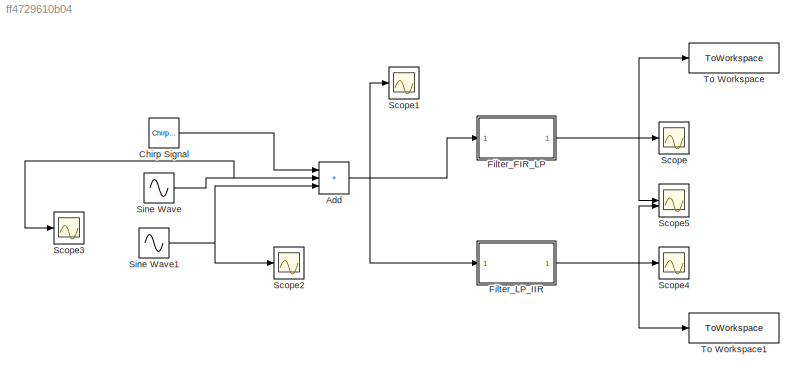
MODEL slx_ff4729610b04
KIND model
CONFIG AbsTol = auto
CONFIG EnableMultiTasking = off
CONFIG FixedStep = 0.001
CONFIG MaxStep = auto
CONFIG MinStep = auto
CONFIG RelTol = 1e-3
CONFIG SampleTimeConstraint = Unconstrained
CONFIG SolverName = FixedStepAuto
CONFIG StartTime = 0.0
CONFIG StopTime = 10.0
BLOCK [Sum] Add
  IconShape = rectangular
  Inputs = +++
BLOCK [Reference] Chirp Signal  REF=simulink/Sources/Chirp Signal
  SourceBlock = simulink/Sources/Chirp Signal
  SourceType = chirp
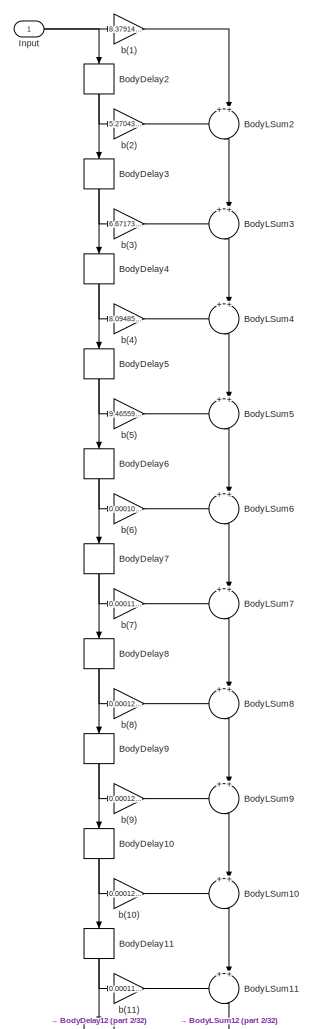
[diagram: Filter_FIR_LP - part 1/32, full width, top band]
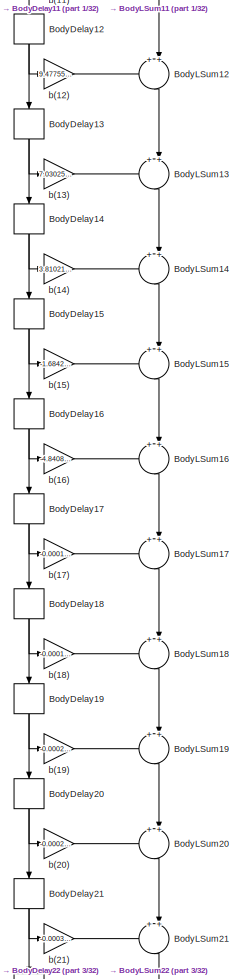
[diagram: Filter_FIR_LP - part 2/32, top center region]
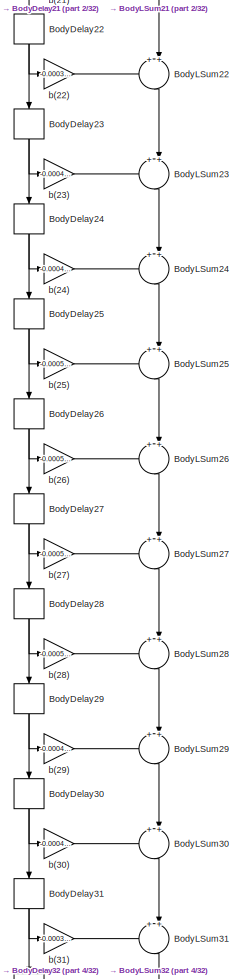
[diagram: Filter_FIR_LP - part 3/32, top center region]
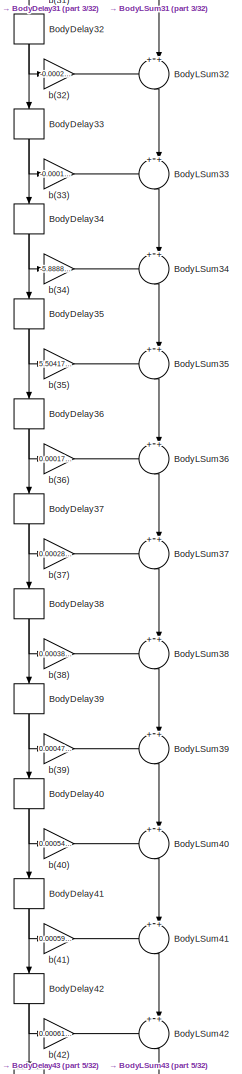
[diagram: Filter_FIR_LP - part 4/32, top center region]
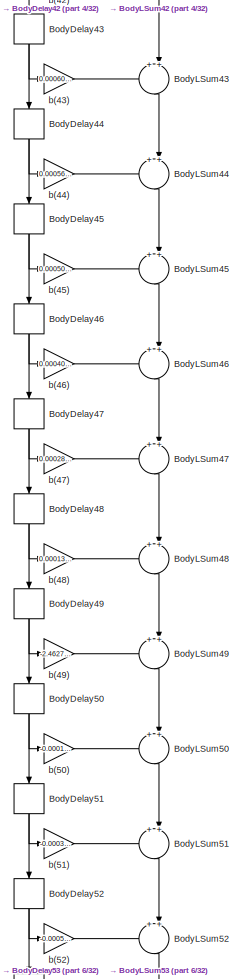
[diagram: Filter_FIR_LP - part 5/32, top center region]
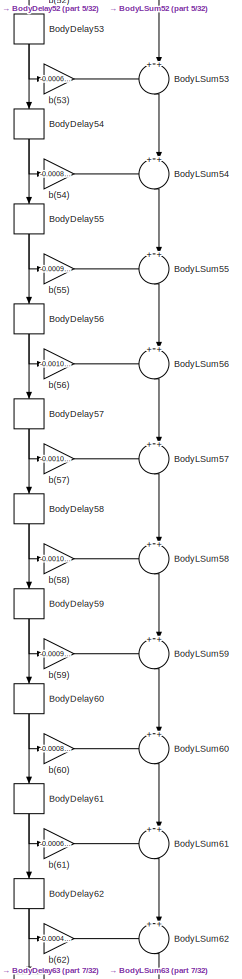
[diagram: Filter_FIR_LP - part 6/32, top center region]
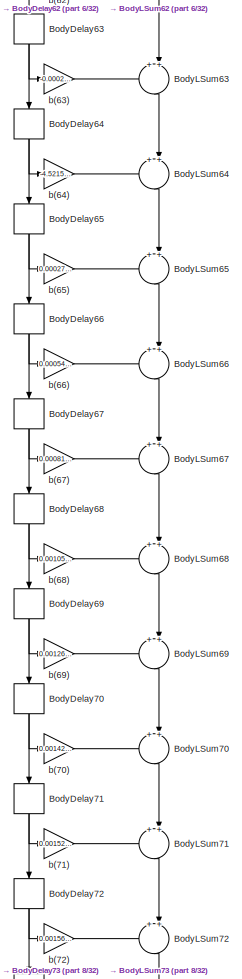
[diagram: Filter_FIR_LP - part 7/32, top center region]
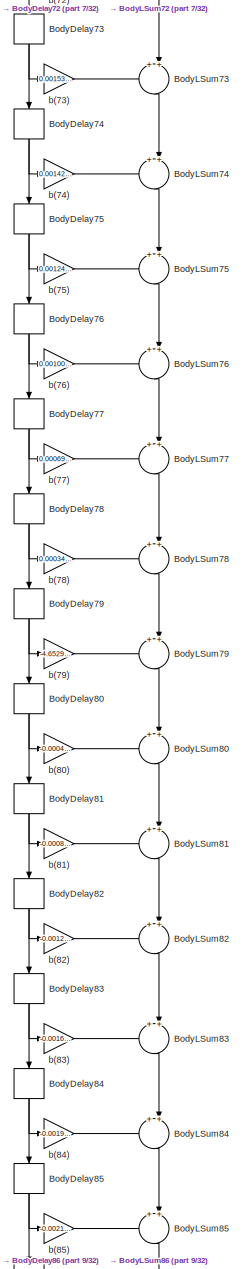
[diagram: Filter_FIR_LP - part 8/32, top center region]
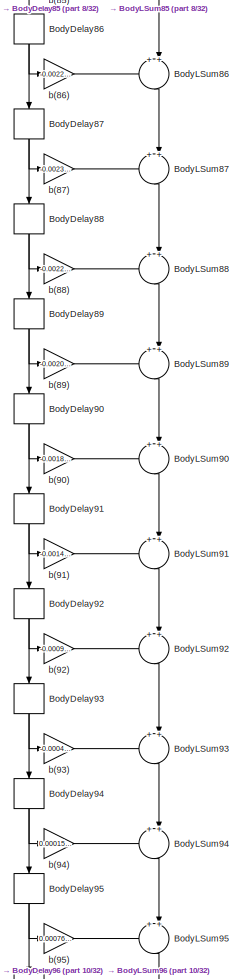
[diagram: Filter_FIR_LP - part 9/32, top center region]
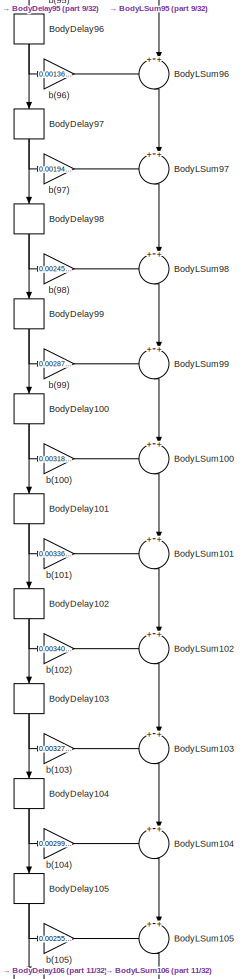
[diagram: Filter_FIR_LP - part 10/32, top center region]
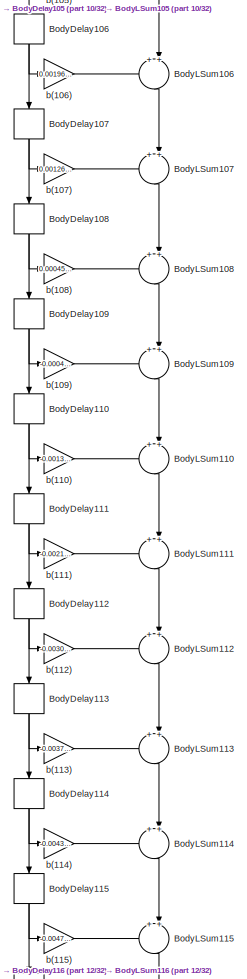
[diagram: Filter_FIR_LP - part 11/32, top center region]
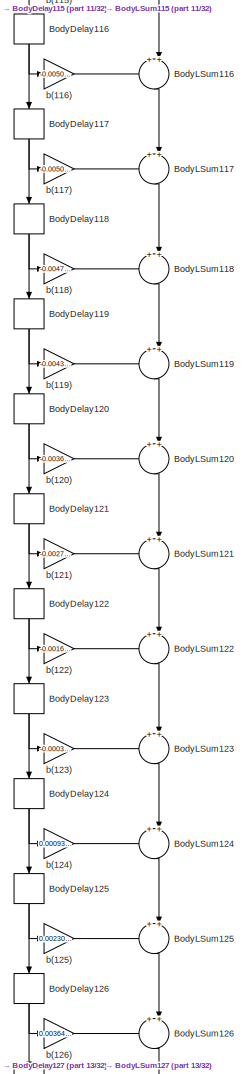
[diagram: Filter_FIR_LP - part 12/32, central region]
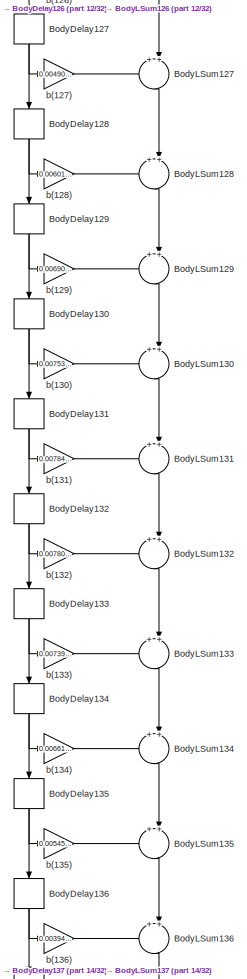
[diagram: Filter_FIR_LP - part 13/32, central region]
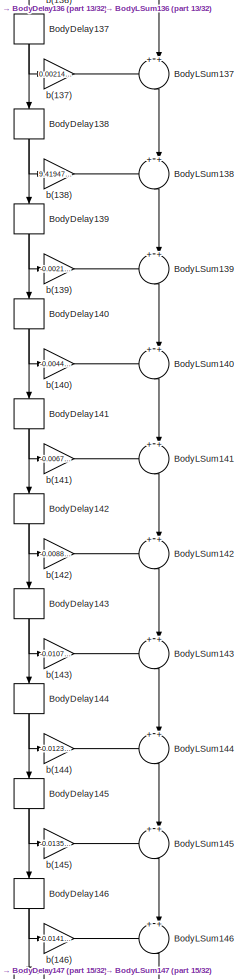
[diagram: Filter_FIR_LP - part 14/32, central region]
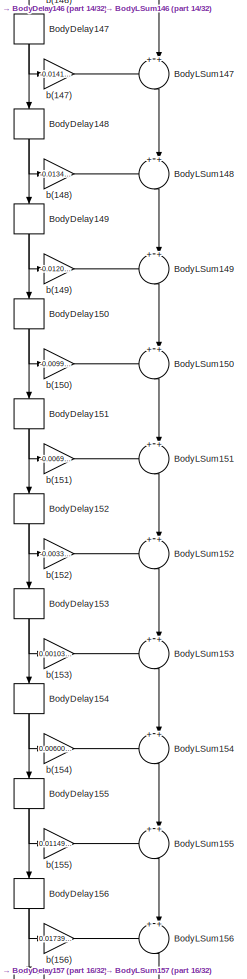
[diagram: Filter_FIR_LP - part 15/32, central region]
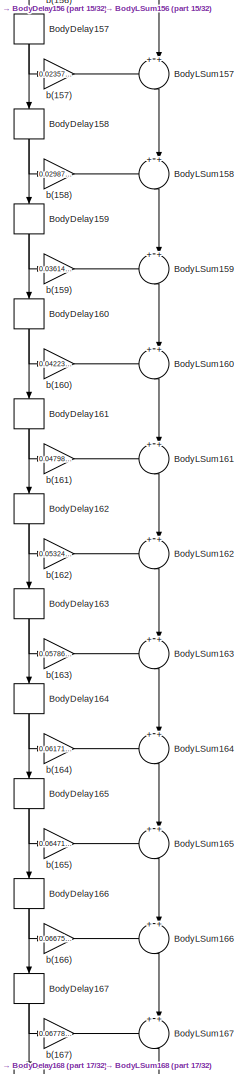
[diagram: Filter_FIR_LP - part 16/32, central region]
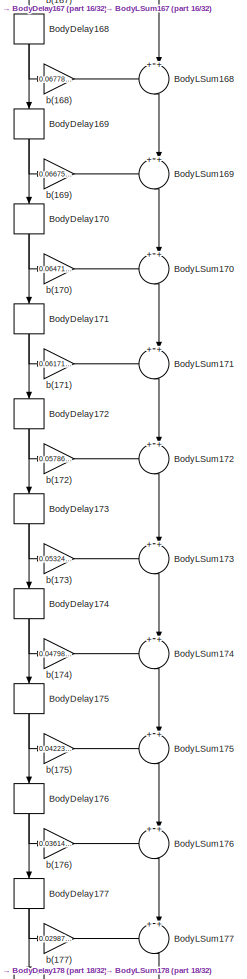
[diagram: Filter_FIR_LP - part 17/32, central region]
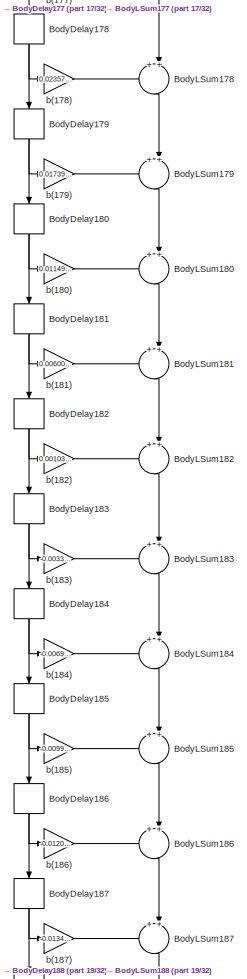
[diagram: Filter_FIR_LP - part 18/32, central region]
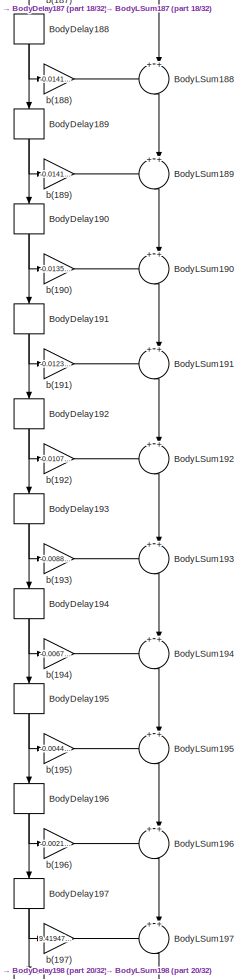
[diagram: Filter_FIR_LP - part 19/32, central region]
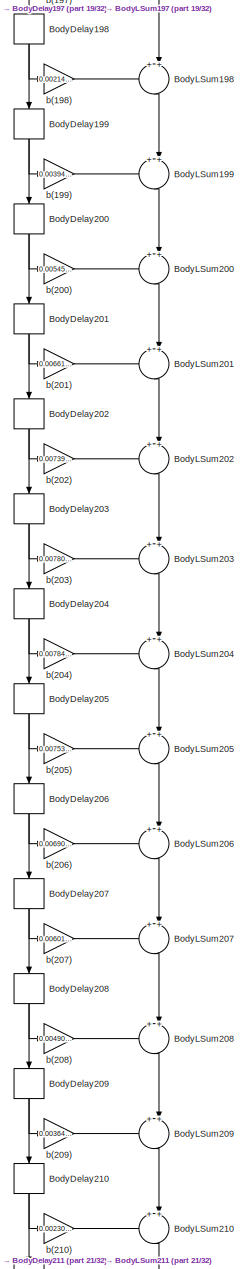
[diagram: Filter_FIR_LP - part 20/32, central region]
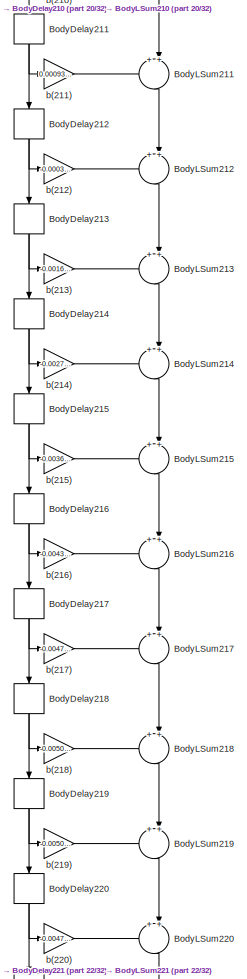
[diagram: Filter_FIR_LP - part 21/32, central region]
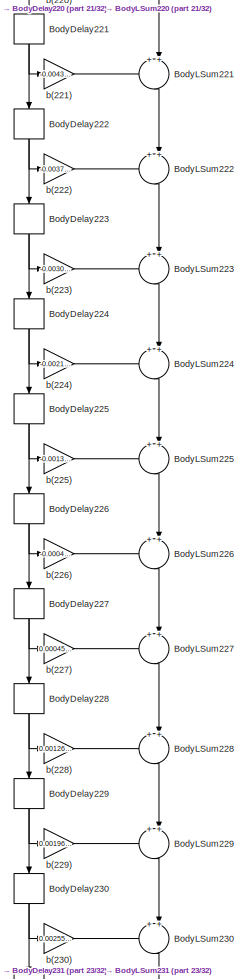
[diagram: Filter_FIR_LP - part 22/32, bottom center region]
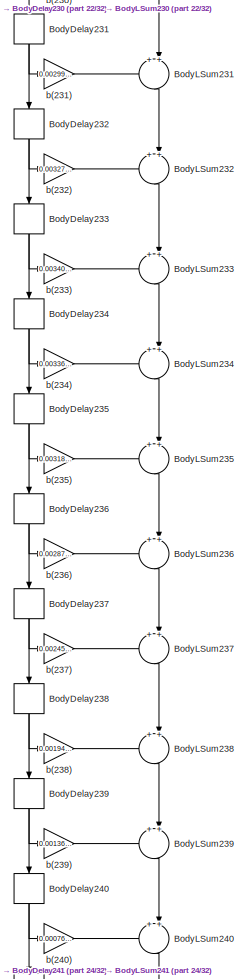
[diagram: Filter_FIR_LP - part 23/32, bottom center region]
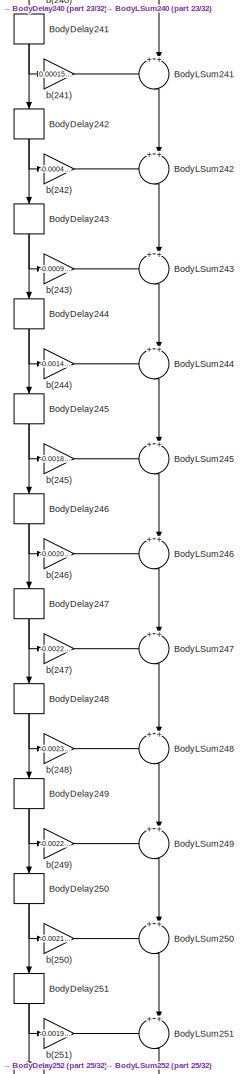
[diagram: Filter_FIR_LP - part 24/32, bottom center region]
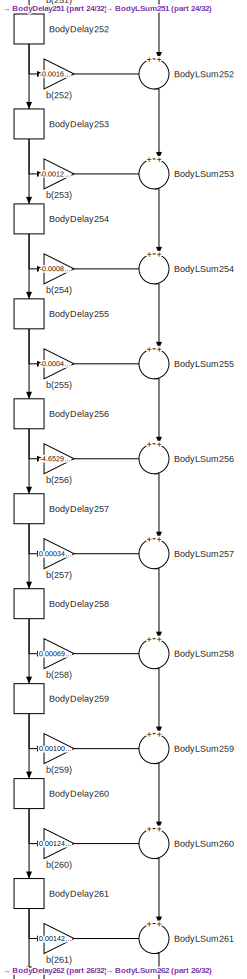
[diagram: Filter_FIR_LP - part 25/32, bottom center region]
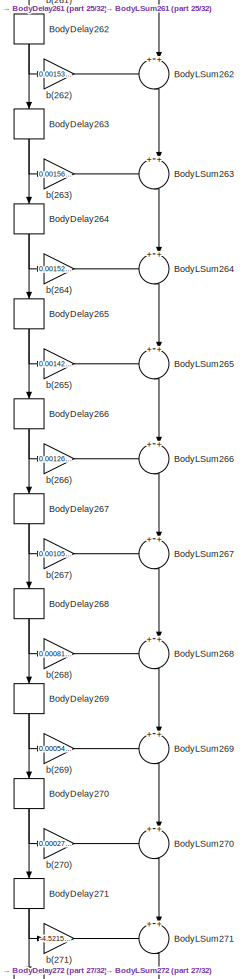
[diagram: Filter_FIR_LP - part 26/32, bottom center region]
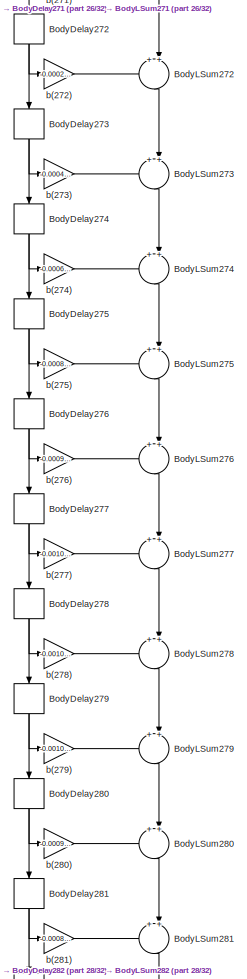
[diagram: Filter_FIR_LP - part 27/32, bottom center region]
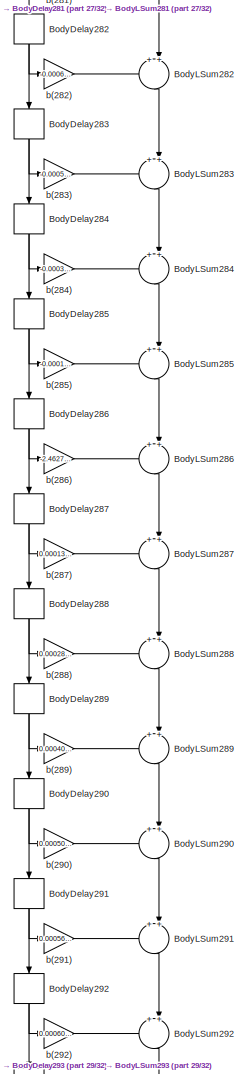
[diagram: Filter_FIR_LP - part 28/32, bottom center region]
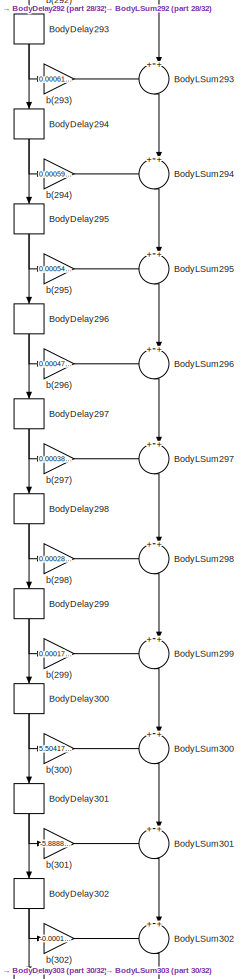
[diagram: Filter_FIR_LP - part 29/32, bottom center region]
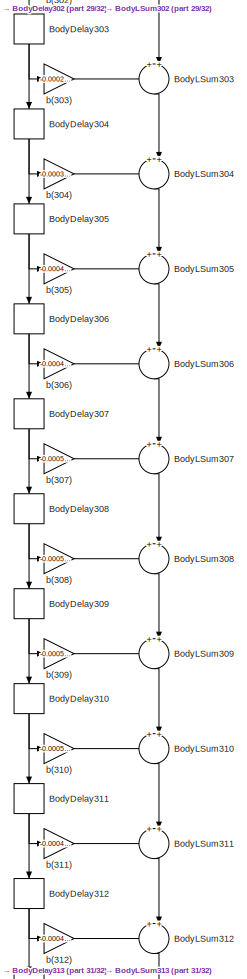
[diagram: Filter_FIR_LP - part 30/32, bottom center region]
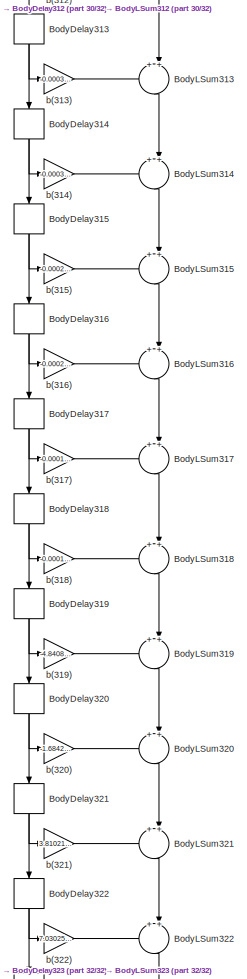
[diagram: Filter_FIR_LP - part 31/32, bottom center region]
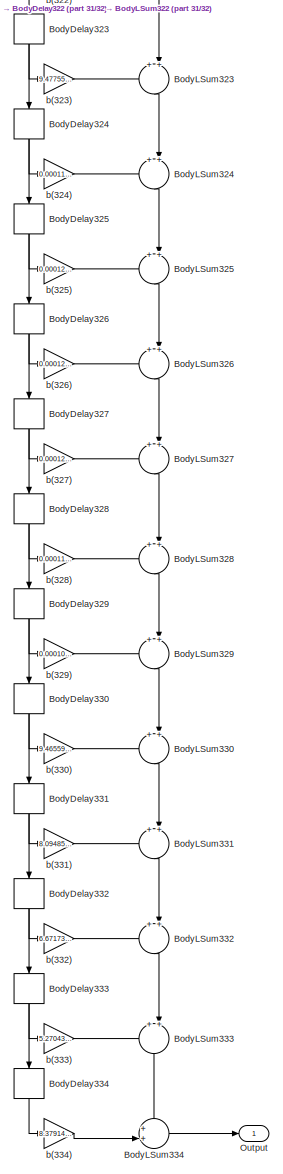
[diagram: Filter_FIR_LP - part 32/32, full width, bottom band]
BLOCK [SubSystem] Filter_FIR_LP
  ErrorFcn = dspFilterRealizedInBasicElemsAlgLoopErrFcnCallback
  Tag = FilterWizardSubSystem
  UserDataPersistent = on
BLOCK [Delay] Filter_FIR_LP/BodyDelay10
  DelayLength = 1
  InitialCondition = 0
  InputPortMap = u0
  NameLocation = right
BLOCK [Delay] Filter_FIR_LP/BodyDelay100
  DelayLength = 1
  InitialCondition = 0
  InputPortMap = u0
  NameLocation = right
BLOCK [Delay] Filter_FIR_LP/BodyDelay101
  DelayLength = 1
  InitialCondition = 0
  InputPortMap = u0
  NameLocation = right
BLOCK [Delay] Filter_FIR_LP/BodyDelay102
  DelayLength = 1
  InitialCondition = 0
  InputPortMap = u0
  NameLocation = right
BLOCK [Delay] Filter_FIR_LP/BodyDelay103
  DelayLength = 1
  InitialCondition = 0
  InputPortMap = u0
  NameLocation = right
BLOCK [Delay] Filter_FIR_LP/BodyDelay104
  DelayLength = 1
  InitialCondition = 0
  InputPortMap = u0
  NameLocation = right
BLOCK [Delay] Filter_FIR_LP/BodyDelay105
  DelayLength = 1
  InitialCondition = 0
  InputPortMap = u0
  NameLocation = right
BLOCK [Delay] Filter_FIR_LP/BodyDelay106
  DelayLength = 1
  InitialCondition = 0
  InputPortMap = u0
  NameLocation = right
BLOCK [Delay] Filter_FIR_LP/BodyDelay107
  DelayLength = 1
  InitialCondition = 0
  InputPortMap = u0
  NameLocation = right
BLOCK [Delay] Filter_FIR_LP/BodyDelay108
  DelayLength = 1
  InitialCondition = 0
  InputPortMap = u0
  NameLocation = right
BLOCK [Delay] Filter_FIR_LP/BodyDelay109
  DelayLength = 1
  InitialCondition = 0
  InputPortMap = u0
  NameLocation = right
BLOCK [Delay] Filter_FIR_LP/BodyDelay11
  DelayLength = 1
  InitialCondition = 0
  InputPortMap = u0
  NameLocation = right
BLOCK [Delay] Filter_FIR_LP/BodyDelay110
  DelayLength = 1
  InitialCondition = 0
  InputPortMap = u0
  NameLocation = right
BLOCK [Delay] Filter_FIR_LP/BodyDelay111
  DelayLength = 1
  InitialCondition = 0
  InputPortMap = u0
  NameLocation = right
BLOCK [Delay] Filter_FIR_LP/BodyDelay112
  DelayLength = 1
  InitialCondition = 0
  InputPortMap = u0
  NameLocation = right
BLOCK [Delay] Filter_FIR_LP/BodyDelay113
  DelayLength = 1
  InitialCondition = 0
  InputPortMap = u0
  NameLocation = right
BLOCK [Delay] Filter_FIR_LP/BodyDelay114
  DelayLength = 1
  InitialCondition = 0
  InputPortMap = u0
  NameLocation = right
BLOCK [Delay] Filter_FIR_LP/BodyDelay115
  DelayLength = 1
  InitialCondition = 0
  InputPortMap = u0
  NameLocation = right
BLOCK [Delay] Filter_FIR_LP/BodyDelay116
  DelayLength = 1
  InitialCondition = 0
  InputPortMap = u0
  NameLocation = right
BLOCK [Delay] Filter_FIR_LP/BodyDelay117
  DelayLength = 1
  InitialCondition = 0
  InputPortMap = u0
  NameLocation = right
BLOCK [Delay] Filter_FIR_LP/BodyDelay118
  DelayLength = 1
  InitialCondition = 0
  InputPortMap = u0
  NameLocation = right
BLOCK [Delay] Filter_FIR_LP/BodyDelay119
  DelayLength = 1
  InitialCondition = 0
  InputPortMap = u0
  NameLocation = right
BLOCK [Delay] Filter_FIR_LP/BodyDelay12
  DelayLength = 1
  InitialCondition = 0
  InputPortMap = u0
  NameLocation = right
BLOCK [Delay] Filter_FIR_LP/BodyDelay120
  DelayLength = 1
  InitialCondition = 0
  InputPortMap = u0
  NameLocation = right
BLOCK [Delay] Filter_FIR_LP/BodyDelay121
  DelayLength = 1
  InitialCondition = 0
  InputPortMap = u0
  NameLocation = right
BLOCK [Delay] Filter_FIR_LP/BodyDelay122
  DelayLength = 1
  InitialCondition = 0
  InputPortMap = u0
  NameLocation = right
BLOCK [Delay] Filter_FIR_LP/BodyDelay123
  DelayLength = 1
  InitialCondition = 0
  InputPortMap = u0
  NameLocation = right
BLOCK [Delay] Filter_FIR_LP/BodyDelay124
  DelayLength = 1
  InitialCondition = 0
  InputPortMap = u0
  NameLocation = right
BLOCK [Delay] Filter_FIR_LP/BodyDelay125
  DelayLength = 1
  InitialCondition = 0
  InputPortMap = u0
  NameLocation = right
BLOCK [Delay] Filter_FIR_LP/BodyDelay126
  DelayLength = 1
  InitialCondition = 0
  InputPortMap = u0
  NameLocation = right
BLOCK [Delay] Filter_FIR_LP/BodyDelay127
  DelayLength = 1
  InitialCondition = 0
  InputPortMap = u0
  NameLocation = right
BLOCK [Delay] Filter_FIR_LP/BodyDelay128
  DelayLength = 1
  InitialCondition = 0
  InputPortMap = u0
  NameLocation = right
BLOCK [Delay] Filter_FIR_LP/BodyDelay129
  DelayLength = 1
  InitialCondition = 0
  InputPortMap = u0
  NameLocation = right
BLOCK [Delay] Filter_FIR_LP/BodyDelay13
  DelayLength = 1
  InitialCondition = 0
  InputPortMap = u0
  NameLocation = right
BLOCK [Delay] Filter_FIR_LP/BodyDelay130
  DelayLength = 1
  InitialCondition = 0
  InputPortMap = u0
  NameLocation = right
BLOCK [Delay] Filter_FIR_LP/BodyDelay131
  DelayLength = 1
  InitialCondition = 0
  InputPortMap = u0
  NameLocation = right
BLOCK [Delay] Filter_FIR_LP/BodyDelay132
  DelayLength = 1
  InitialCondition = 0
  InputPortMap = u0
  NameLocation = right
BLOCK [Delay] Filter_FIR_LP/BodyDelay133
  DelayLength = 1
  InitialCondition = 0
  InputPortMap = u0
  NameLocation = right
BLOCK [Delay] Filter_FIR_LP/BodyDelay134
  DelayLength = 1
  InitialCondition = 0
  InputPortMap = u0
  NameLocation = right
BLOCK [Delay] Filter_FIR_LP/BodyDelay135
  DelayLength = 1
  InitialCondition = 0
  InputPortMap = u0
  NameLocation = right
BLOCK [Delay] Filter_FIR_LP/BodyDelay136
  DelayLength = 1
  InitialCondition = 0
  InputPortMap = u0
  NameLocation = right
BLOCK [Delay] Filter_FIR_LP/BodyDelay137
  DelayLength = 1
  InitialCondition = 0
  InputPortMap = u0
  NameLocation = right
BLOCK [Delay] Filter_FIR_LP/BodyDelay138
  DelayLength = 1
  InitialCondition = 0
  InputPortMap = u0
  NameLocation = right
BLOCK [Delay] Filter_FIR_LP/BodyDelay139
  DelayLength = 1
  InitialCondition = 0
  InputPortMap = u0
  NameLocation = right
BLOCK [Delay] Filter_FIR_LP/BodyDelay14
  DelayLength = 1
  InitialCondition = 0
  InputPortMap = u0
  NameLocation = right
BLOCK [Delay] Filter_FIR_LP/BodyDelay140
  DelayLength = 1
  InitialCondition = 0
  InputPortMap = u0
  NameLocation = right
BLOCK [Delay] Filter_FIR_LP/BodyDelay141
  DelayLength = 1
  InitialCondition = 0
  InputPortMap = u0
  NameLocation = right
BLOCK [Delay] Filter_FIR_LP/BodyDelay142
  DelayLength = 1
  InitialCondition = 0
  InputPortMap = u0
  NameLocation = right
BLOCK [Delay] Filter_FIR_LP/BodyDelay143
  DelayLength = 1
  InitialCondition = 0
  InputPortMap = u0
  NameLocation = right
BLOCK [Delay] Filter_FIR_LP/BodyDelay144
  DelayLength = 1
  InitialCondition = 0
  InputPortMap = u0
  NameLocation = right
BLOCK [Delay] Filter_FIR_LP/BodyDelay145
  DelayLength = 1
  InitialCondition = 0
  InputPortMap = u0
  NameLocation = right
BLOCK [Delay] Filter_FIR_LP/BodyDelay146
  DelayLength = 1
  InitialCondition = 0
  InputPortMap = u0
  NameLocation = right
BLOCK [Delay] Filter_FIR_LP/BodyDelay147
  DelayLength = 1
  InitialCondition = 0
  InputPortMap = u0
  NameLocation = right
BLOCK [Delay] Filter_FIR_LP/BodyDelay148
  DelayLength = 1
  InitialCondition = 0
  InputPortMap = u0
  NameLocation = right
BLOCK [Delay] Filter_FIR_LP/BodyDelay149
  DelayLength = 1
  InitialCondition = 0
  InputPortMap = u0
  NameLocation = right
BLOCK [Delay] Filter_FIR_LP/BodyDelay15
  DelayLength = 1
  InitialCondition = 0
  InputPortMap = u0
  NameLocation = right
BLOCK [Delay] Filter_FIR_LP/BodyDelay150
  DelayLength = 1
  InitialCondition = 0
  InputPortMap = u0
  NameLocation = right
BLOCK [Delay] Filter_FIR_LP/BodyDelay151
  DelayLength = 1
  InitialCondition = 0
  InputPortMap = u0
  NameLocation = right
BLOCK [Delay] Filter_FIR_LP/BodyDelay152
  DelayLength = 1
  InitialCondition = 0
  InputPortMap = u0
  NameLocation = right
BLOCK [Delay] Filter_FIR_LP/BodyDelay153
  DelayLength = 1
  InitialCondition = 0
  InputPortMap = u0
  NameLocation = right
BLOCK [Delay] Filter_FIR_LP/BodyDelay154
  DelayLength = 1
  InitialCondition = 0
  InputPortMap = u0
  NameLocation = right
BLOCK [Delay] Filter_FIR_LP/BodyDelay155
  DelayLength = 1
  InitialCondition = 0
  InputPortMap = u0
  NameLocation = right
BLOCK [Delay] Filter_FIR_LP/BodyDelay156
  DelayLength = 1
  InitialCondition = 0
  InputPortMap = u0
  NameLocation = right
BLOCK [Delay] Filter_FIR_LP/BodyDelay157
  DelayLength = 1
  InitialCondition = 0
  InputPortMap = u0
  NameLocation = right
BLOCK [Delay] Filter_FIR_LP/BodyDelay158
  DelayLength = 1
  InitialCondition = 0
  InputPortMap = u0
  NameLocation = right
BLOCK [Delay] Filter_FIR_LP/BodyDelay159
  DelayLength = 1
  InitialCondition = 0
  InputPortMap = u0
  NameLocation = right
BLOCK [Delay] Filter_FIR_LP/BodyDelay16
  DelayLength = 1
  InitialCondition = 0
  InputPortMap = u0
  NameLocation = right
BLOCK [Delay] Filter_FIR_LP/BodyDelay160
  DelayLength = 1
  InitialCondition = 0
  InputPortMap = u0
  NameLocation = right
BLOCK [Delay] Filter_FIR_LP/BodyDelay161
  DelayLength = 1
  InitialCondition = 0
  InputPortMap = u0
  NameLocation = right
BLOCK [Delay] Filter_FIR_LP/BodyDelay162
  DelayLength = 1
  InitialCondition = 0
  InputPortMap = u0
  NameLocation = right
BLOCK [Delay] Filter_FIR_LP/BodyDelay163
  DelayLength = 1
  InitialCondition = 0
  InputPortMap = u0
  NameLocation = right
BLOCK [Delay] Filter_FIR_LP/BodyDelay164
  DelayLength = 1
  InitialCondition = 0
  InputPortMap = u0
  NameLocation = right
BLOCK [Delay] Filter_FIR_LP/BodyDelay165
  DelayLength = 1
  InitialCondition = 0
  InputPortMap = u0
  NameLocation = right
BLOCK [Delay] Filter_FIR_LP/BodyDelay166
  DelayLength = 1
  InitialCondition = 0
  InputPortMap = u0
  NameLocation = right
BLOCK [Delay] Filter_FIR_LP/BodyDelay167
  DelayLength = 1
  InitialCondition = 0
  InputPortMap = u0
  NameLocation = right
BLOCK [Delay] Filter_FIR_LP/BodyDelay168
  DelayLength = 1
  InitialCondition = 0
  InputPortMap = u0
  NameLocation = right
BLOCK [Delay] Filter_FIR_LP/BodyDelay169
  DelayLength = 1
  InitialCondition = 0
  InputPortMap = u0
  NameLocation = right
BLOCK [Delay] Filter_FIR_LP/BodyDelay17
  DelayLength = 1
  InitialCondition = 0
  InputPortMap = u0
  NameLocation = right
BLOCK [Delay] Filter_FIR_LP/BodyDelay170
  DelayLength = 1
  InitialCondition = 0
  InputPortMap = u0
  NameLocation = right
BLOCK [Delay] Filter_FIR_LP/BodyDelay171
  DelayLength = 1
  InitialCondition = 0
  InputPortMap = u0
  NameLocation = right
BLOCK [Delay] Filter_FIR_LP/BodyDelay172
  DelayLength = 1
  InitialCondition = 0
  InputPortMap = u0
  NameLocation = right
BLOCK [Delay] Filter_FIR_LP/BodyDelay173
  DelayLength = 1
  InitialCondition = 0
  InputPortMap = u0
  NameLocation = right
BLOCK [Delay] Filter_FIR_LP/BodyDelay174
  DelayLength = 1
  InitialCondition = 0
  InputPortMap = u0
  NameLocation = right
BLOCK [Delay] Filter_FIR_LP/BodyDelay175
  DelayLength = 1
  InitialCondition = 0
  InputPortMap = u0
  NameLocation = right
BLOCK [Delay] Filter_FIR_LP/BodyDelay176
  DelayLength = 1
  InitialCondition = 0
  InputPortMap = u0
  NameLocation = right
BLOCK [Delay] Filter_FIR_LP/BodyDelay177
  DelayLength = 1
  InitialCondition = 0
  InputPortMap = u0
  NameLocation = right
BLOCK [Delay] Filter_FIR_LP/BodyDelay178
  DelayLength = 1
  InitialCondition = 0
  InputPortMap = u0
  NameLocation = right
BLOCK [Delay] Filter_FIR_LP/BodyDelay179
  DelayLength = 1
  InitialCondition = 0
  InputPortMap = u0
  NameLocation = right
BLOCK [Delay] Filter_FIR_LP/BodyDelay18
  DelayLength = 1
  InitialCondition = 0
  InputPortMap = u0
  NameLocation = right
BLOCK [Delay] Filter_FIR_LP/BodyDelay180
  DelayLength = 1
  InitialCondition = 0
  InputPortMap = u0
  NameLocation = right
BLOCK [Delay] Filter_FIR_LP/BodyDelay181
  DelayLength = 1
  InitialCondition = 0
  InputPortMap = u0
  NameLocation = right
BLOCK [Delay] Filter_FIR_LP/BodyDelay182
  DelayLength = 1
  InitialCondition = 0
  InputPortMap = u0
  NameLocation = right
BLOCK [Delay] Filter_FIR_LP/BodyDelay183
  DelayLength = 1
  InitialCondition = 0
  InputPortMap = u0
  NameLocation = right
BLOCK [Delay] Filter_FIR_LP/BodyDelay184
  DelayLength = 1
  InitialCondition = 0
  InputPortMap = u0
  NameLocation = right
BLOCK [Delay] Filter_FIR_LP/BodyDelay185
  DelayLength = 1
  InitialCondition = 0
  InputPortMap = u0
  NameLocation = right
BLOCK [Delay] Filter_FIR_LP/BodyDelay186
  DelayLength = 1
  InitialCondition = 0
  InputPortMap = u0
  NameLocation = right
BLOCK [Delay] Filter_FIR_LP/BodyDelay187
  DelayLength = 1
  InitialCondition = 0
  InputPortMap = u0
  NameLocation = right
BLOCK [Delay] Filter_FIR_LP/BodyDelay188
  DelayLength = 1
  InitialCondition = 0
  InputPortMap = u0
  NameLocation = right
BLOCK [Delay] Filter_FIR_LP/BodyDelay189
  DelayLength = 1
  InitialCondition = 0
  InputPortMap = u0
  NameLocation = right
BLOCK [Delay] Filter_FIR_LP/BodyDelay19
  DelayLength = 1
  InitialCondition = 0
  InputPortMap = u0
  NameLocation = right
BLOCK [Delay] Filter_FIR_LP/BodyDelay190
  DelayLength = 1
  InitialCondition = 0
  InputPortMap = u0
  NameLocation = right
BLOCK [Delay] Filter_FIR_LP/BodyDelay191
  DelayLength = 1
  InitialCondition = 0
  InputPortMap = u0
  NameLocation = right
BLOCK [Delay] Filter_FIR_LP/BodyDelay192
  DelayLength = 1
  InitialCondition = 0
  InputPortMap = u0
  NameLocation = right
BLOCK [Delay] Filter_FIR_LP/BodyDelay193
  DelayLength = 1
  InitialCondition = 0
  InputPortMap = u0
  NameLocation = right
BLOCK [Delay] Filter_FIR_LP/BodyDelay194
  DelayLength = 1
  InitialCondition = 0
  InputPortMap = u0
  NameLocation = right
BLOCK [Delay] Filter_FIR_LP/BodyDelay195
  DelayLength = 1
  InitialCondition = 0
  InputPortMap = u0
  NameLocation = right
BLOCK [Delay] Filter_FIR_LP/BodyDelay196
  DelayLength = 1
  InitialCondition = 0
  InputPortMap = u0
  NameLocation = right
BLOCK [Delay] Filter_FIR_LP/BodyDelay197
  DelayLength = 1
  InitialCondition = 0
  InputPortMap = u0
  NameLocation = right
BLOCK [Delay] Filter_FIR_LP/BodyDelay198
  DelayLength = 1
  InitialCondition = 0
  InputPortMap = u0
  NameLocation = right
BLOCK [Delay] Filter_FIR_LP/BodyDelay199
  DelayLength = 1
  InitialCondition = 0
  InputPortMap = u0
  NameLocation = right
BLOCK [Delay] Filter_FIR_LP/BodyDelay2
  DelayLength = 1
  InitialCondition = 0
  InputPortMap = u0
  NameLocation = right
BLOCK [Delay] Filter_FIR_LP/BodyDelay20
  DelayLength = 1
  InitialCondition = 0
  InputPortMap = u0
  NameLocation = right
BLOCK [Delay] Filter_FIR_LP/BodyDelay200
  DelayLength = 1
  InitialCondition = 0
  InputPortMap = u0
  NameLocation = right
BLOCK [Delay] Filter_FIR_LP/BodyDelay201
  DelayLength = 1
  InitialCondition = 0
  InputPortMap = u0
  NameLocation = right
BLOCK [Delay] Filter_FIR_LP/BodyDelay202
  DelayLength = 1
  InitialCondition = 0
  InputPortMap = u0
  NameLocation = right
BLOCK [Delay] Filter_FIR_LP/BodyDelay203
  DelayLength = 1
  InitialCondition = 0
  InputPortMap = u0
  NameLocation = right
BLOCK [Delay] Filter_FIR_LP/BodyDelay204
  DelayLength = 1
  InitialCondition = 0
  InputPortMap = u0
  NameLocation = right
BLOCK [Delay] Filter_FIR_LP/BodyDelay205
  DelayLength = 1
  InitialCondition = 0
  InputPortMap = u0
  NameLocation = right
BLOCK [Delay] Filter_FIR_LP/BodyDelay206
  DelayLength = 1
  InitialCondition = 0
  InputPortMap = u0
  NameLocation = right
BLOCK [Delay] Filter_FIR_LP/BodyDelay207
  DelayLength = 1
  InitialCondition = 0
  InputPortMap = u0
  NameLocation = right
BLOCK [Delay] Filter_FIR_LP/BodyDelay208
  DelayLength = 1
  InitialCondition = 0
  InputPortMap = u0
  NameLocation = right
BLOCK [Delay] Filter_FIR_LP/BodyDelay209
  DelayLength = 1
  InitialCondition = 0
  InputPortMap = u0
  NameLocation = right
BLOCK [Delay] Filter_FIR_LP/BodyDelay21
  DelayLength = 1
  InitialCondition = 0
  InputPortMap = u0
  NameLocation = right
BLOCK [Delay] Filter_FIR_LP/BodyDelay210
  DelayLength = 1
  InitialCondition = 0
  InputPortMap = u0
  NameLocation = right
BLOCK [Delay] Filter_FIR_LP/BodyDelay211
  DelayLength = 1
  InitialCondition = 0
  InputPortMap = u0
  NameLocation = right
BLOCK [Delay] Filter_FIR_LP/BodyDelay212
  DelayLength = 1
  InitialCondition = 0
  InputPortMap = u0
  NameLocation = right
BLOCK [Delay] Filter_FIR_LP/BodyDelay213
  DelayLength = 1
  InitialCondition = 0
  InputPortMap = u0
  NameLocation = right
BLOCK [Delay] Filter_FIR_LP/BodyDelay214
  DelayLength = 1
  InitialCondition = 0
  InputPortMap = u0
  NameLocation = right
BLOCK [Delay] Filter_FIR_LP/BodyDelay215
  DelayLength = 1
  InitialCondition = 0
  InputPortMap = u0
  NameLocation = right
BLOCK [Delay] Filter_FIR_LP/BodyDelay216
  DelayLength = 1
  InitialCondition = 0
  InputPortMap = u0
  NameLocation = right
BLOCK [Delay] Filter_FIR_LP/BodyDelay217
  DelayLength = 1
  InitialCondition = 0
  InputPortMap = u0
  NameLocation = right
BLOCK [Delay] Filter_FIR_LP/BodyDelay218
  DelayLength = 1
  InitialCondition = 0
  InputPortMap = u0
  NameLocation = right
BLOCK [Delay] Filter_FIR_LP/BodyDelay219
  DelayLength = 1
  InitialCondition = 0
  InputPortMap = u0
  NameLocation = right
BLOCK [Delay] Filter_FIR_LP/BodyDelay22
  DelayLength = 1
  InitialCondition = 0
  InputPortMap = u0
  NameLocation = right
BLOCK [Delay] Filter_FIR_LP/BodyDelay220
  DelayLength = 1
  InitialCondition = 0
  InputPortMap = u0
  NameLocation = right
BLOCK [Delay] Filter_FIR_LP/BodyDelay221
  DelayLength = 1
  InitialCondition = 0
  InputPortMap = u0
  NameLocation = right
BLOCK [Delay] Filter_FIR_LP/BodyDelay222
  DelayLength = 1
  InitialCondition = 0
  InputPortMap = u0
  NameLocation = right
BLOCK [Delay] Filter_FIR_LP/BodyDelay223
  DelayLength = 1
  InitialCondition = 0
  InputPortMap = u0
  NameLocation = right
BLOCK [Delay] Filter_FIR_LP/BodyDelay224
  DelayLength = 1
  InitialCondition = 0
  InputPortMap = u0
  NameLocation = right
BLOCK [Delay] Filter_FIR_LP/BodyDelay225
  DelayLength = 1
  InitialCondition = 0
  InputPortMap = u0
  NameLocation = right
BLOCK [Delay] Filter_FIR_LP/BodyDelay226
  DelayLength = 1
  InitialCondition = 0
  InputPortMap = u0
  NameLocation = right
BLOCK [Delay] Filter_FIR_LP/BodyDelay227
  DelayLength = 1
  InitialCondition = 0
  InputPortMap = u0
  NameLocation = right
BLOCK [Delay] Filter_FIR_LP/BodyDelay228
  DelayLength = 1
  InitialCondition = 0
  InputPortMap = u0
  NameLocation = right
BLOCK [Delay] Filter_FIR_LP/BodyDelay229
  DelayLength = 1
  InitialCondition = 0
  InputPortMap = u0
  NameLocation = right
BLOCK [Delay] Filter_FIR_LP/BodyDelay23
  DelayLength = 1
  InitialCondition = 0
  InputPortMap = u0
  NameLocation = right
BLOCK [Delay] Filter_FIR_LP/BodyDelay230
  DelayLength = 1
  InitialCondition = 0
  InputPortMap = u0
  NameLocation = right
BLOCK [Delay] Filter_FIR_LP/BodyDelay231
  DelayLength = 1
  InitialCondition = 0
  InputPortMap = u0
  NameLocation = right
BLOCK [Delay] Filter_FIR_LP/BodyDelay232
  DelayLength = 1
  InitialCondition = 0
  InputPortMap = u0
  NameLocation = right
BLOCK [Delay] Filter_FIR_LP/BodyDelay233
  DelayLength = 1
  InitialCondition = 0
  InputPortMap = u0
  NameLocation = right
BLOCK [Delay] Filter_FIR_LP/BodyDelay234
  DelayLength = 1
  InitialCondition = 0
  InputPortMap = u0
  NameLocation = right
BLOCK [Delay] Filter_FIR_LP/BodyDelay235
  DelayLength = 1
  InitialCondition = 0
  InputPortMap = u0
  NameLocation = right
BLOCK [Delay] Filter_FIR_LP/BodyDelay236
  DelayLength = 1
  InitialCondition = 0
  InputPortMap = u0
  NameLocation = right
BLOCK [Delay] Filter_FIR_LP/BodyDelay237
  DelayLength = 1
  InitialCondition = 0
  InputPortMap = u0
  NameLocation = right
BLOCK [Delay] Filter_FIR_LP/BodyDelay238
  DelayLength = 1
  InitialCondition = 0
  InputPortMap = u0
  NameLocation = right
BLOCK [Delay] Filter_FIR_LP/BodyDelay239
  DelayLength = 1
  InitialCondition = 0
  InputPortMap = u0
  NameLocation = right
BLOCK [Delay] Filter_FIR_LP/BodyDelay24
  DelayLength = 1
  InitialCondition = 0
  InputPortMap = u0
  NameLocation = right
BLOCK [Delay] Filter_FIR_LP/BodyDelay240
  DelayLength = 1
  InitialCondition = 0
  InputPortMap = u0
  NameLocation = right
BLOCK [Delay] Filter_FIR_LP/BodyDelay241
  DelayLength = 1
  InitialCondition = 0
  InputPortMap = u0
  NameLocation = right
BLOCK [Delay] Filter_FIR_LP/BodyDelay242
  DelayLength = 1
  InitialCondition = 0
  InputPortMap = u0
  NameLocation = right
BLOCK [Delay] Filter_FIR_LP/BodyDelay243
  DelayLength = 1
  InitialCondition = 0
  InputPortMap = u0
  NameLocation = right
BLOCK [Delay] Filter_FIR_LP/BodyDelay244
  DelayLength = 1
  InitialCondition = 0
  InputPortMap = u0
  NameLocation = right
BLOCK [Delay] Filter_FIR_LP/BodyDelay245
  DelayLength = 1
  InitialCondition = 0
  InputPortMap = u0
  NameLocation = right
BLOCK [Delay] Filter_FIR_LP/BodyDelay246
  DelayLength = 1
  InitialCondition = 0
  InputPortMap = u0
  NameLocation = right
BLOCK [Delay] Filter_FIR_LP/BodyDelay247
  DelayLength = 1
  InitialCondition = 0
  InputPortMap = u0
  NameLocation = right
BLOCK [Delay] Filter_FIR_LP/BodyDelay248
  DelayLength = 1
  InitialCondition = 0
  InputPortMap = u0
  NameLocation = right
BLOCK [Delay] Filter_FIR_LP/BodyDelay249
  DelayLength = 1
  InitialCondition = 0
  InputPortMap = u0
  NameLocation = right
BLOCK [Delay] Filter_FIR_LP/BodyDelay25
  DelayLength = 1
  InitialCondition = 0
  InputPortMap = u0
  NameLocation = right
BLOCK [Delay] Filter_FIR_LP/BodyDelay250
  DelayLength = 1
  InitialCondition = 0
  InputPortMap = u0
  NameLocation = right
BLOCK [Delay] Filter_FIR_LP/BodyDelay251
  DelayLength = 1
  InitialCondition = 0
  InputPortMap = u0
  NameLocation = right
BLOCK [Delay] Filter_FIR_LP/BodyDelay252
  DelayLength = 1
  InitialCondition = 0
  InputPortMap = u0
  NameLocation = right
BLOCK [Delay] Filter_FIR_LP/BodyDelay253
  DelayLength = 1
  InitialCondition = 0
  InputPortMap = u0
  NameLocation = right
BLOCK [Delay] Filter_FIR_LP/BodyDelay254
  DelayLength = 1
  InitialCondition = 0
  InputPortMap = u0
  NameLocation = right
BLOCK [Delay] Filter_FIR_LP/BodyDelay255
  DelayLength = 1
  InitialCondition = 0
  InputPortMap = u0
  NameLocation = right
BLOCK [Delay] Filter_FIR_LP/BodyDelay256
  DelayLength = 1
  InitialCondition = 0
  InputPortMap = u0
  NameLocation = right
BLOCK [Delay] Filter_FIR_LP/BodyDelay257
  DelayLength = 1
  InitialCondition = 0
  InputPortMap = u0
  NameLocation = right
BLOCK [Delay] Filter_FIR_LP/BodyDelay258
  DelayLength = 1
  InitialCondition = 0
  InputPortMap = u0
  NameLocation = right
BLOCK [Delay] Filter_FIR_LP/BodyDelay259
  DelayLength = 1
  InitialCondition = 0
  InputPortMap = u0
  NameLocation = right
BLOCK [Delay] Filter_FIR_LP/BodyDelay26
  DelayLength = 1
  InitialCondition = 0
  InputPortMap = u0
  NameLocation = right
BLOCK [Delay] Filter_FIR_LP/BodyDelay260
  DelayLength = 1
  InitialCondition = 0
  InputPortMap = u0
  NameLocation = right
BLOCK [Delay] Filter_FIR_LP/BodyDelay261
  DelayLength = 1
  InitialCondition = 0
  InputPortMap = u0
  NameLocation = right
BLOCK [Delay] Filter_FIR_LP/BodyDelay262
  DelayLength = 1
  InitialCondition = 0
  InputPortMap = u0
  NameLocation = right
BLOCK [Delay] Filter_FIR_LP/BodyDelay263
  DelayLength = 1
  InitialCondition = 0
  InputPortMap = u0
  NameLocation = right
BLOCK [Delay] Filter_FIR_LP/BodyDelay264
  DelayLength = 1
  InitialCondition = 0
  InputPortMap = u0
  NameLocation = right
BLOCK [Delay] Filter_FIR_LP/BodyDelay265
  DelayLength = 1
  InitialCondition = 0
  InputPortMap = u0
  NameLocation = right
BLOCK [Delay] Filter_FIR_LP/BodyDelay266
  DelayLength = 1
  InitialCondition = 0
  InputPortMap = u0
  NameLocation = right
BLOCK [Delay] Filter_FIR_LP/BodyDelay267
  DelayLength = 1
  InitialCondition = 0
  InputPortMap = u0
  NameLocation = right
BLOCK [Delay] Filter_FIR_LP/BodyDelay268
  DelayLength = 1
  InitialCondition = 0
  InputPortMap = u0
  NameLocation = right
BLOCK [Delay] Filter_FIR_LP/BodyDelay269
  DelayLength = 1
  InitialCondition = 0
  InputPortMap = u0
  NameLocation = right
BLOCK [Delay] Filter_FIR_LP/BodyDelay27
  DelayLength = 1
  InitialCondition = 0
  InputPortMap = u0
  NameLocation = right
BLOCK [Delay] Filter_FIR_LP/BodyDelay270
  DelayLength = 1
  InitialCondition = 0
  InputPortMap = u0
  NameLocation = right
BLOCK [Delay] Filter_FIR_LP/BodyDelay271
  DelayLength = 1
  InitialCondition = 0
  InputPortMap = u0
  NameLocation = right
BLOCK [Delay] Filter_FIR_LP/BodyDelay272
  DelayLength = 1
  InitialCondition = 0
  InputPortMap = u0
  NameLocation = right
BLOCK [Delay] Filter_FIR_LP/BodyDelay273
  DelayLength = 1
  InitialCondition = 0
  InputPortMap = u0
  NameLocation = right
BLOCK [Delay] Filter_FIR_LP/BodyDelay274
  DelayLength = 1
  InitialCondition = 0
  InputPortMap = u0
  NameLocation = right
BLOCK [Delay] Filter_FIR_LP/BodyDelay275
  DelayLength = 1
  InitialCondition = 0
  InputPortMap = u0
  NameLocation = right
BLOCK [Delay] Filter_FIR_LP/BodyDelay276
  DelayLength = 1
  InitialCondition = 0
  InputPortMap = u0
  NameLocation = right
BLOCK [Delay] Filter_FIR_LP/BodyDelay277
  DelayLength = 1
  InitialCondition = 0
  InputPortMap = u0
  NameLocation = right
BLOCK [Delay] Filter_FIR_LP/BodyDelay278
  DelayLength = 1
  InitialCondition = 0
  InputPortMap = u0
  NameLocation = right
BLOCK [Delay] Filter_FIR_LP/BodyDelay279
  DelayLength = 1
  InitialCondition = 0
  InputPortMap = u0
  NameLocation = right
BLOCK [Delay] Filter_FIR_LP/BodyDelay28
  DelayLength = 1
  InitialCondition = 0
  InputPortMap = u0
  NameLocation = right
BLOCK [Delay] Filter_FIR_LP/BodyDelay280
  DelayLength = 1
  InitialCondition = 0
  InputPortMap = u0
  NameLocation = right
BLOCK [Delay] Filter_FIR_LP/BodyDelay281
  DelayLength = 1
  InitialCondition = 0
  InputPortMap = u0
  NameLocation = right
BLOCK [Delay] Filter_FIR_LP/BodyDelay282
  DelayLength = 1
  InitialCondition = 0
  InputPortMap = u0
  NameLocation = right
BLOCK [Delay] Filter_FIR_LP/BodyDelay283
  DelayLength = 1
  InitialCondition = 0
  InputPortMap = u0
  NameLocation = right
BLOCK [Delay] Filter_FIR_LP/BodyDelay284
  DelayLength = 1
  InitialCondition = 0
  InputPortMap = u0
  NameLocation = right
BLOCK [Delay] Filter_FIR_LP/BodyDelay285
  DelayLength = 1
  InitialCondition = 0
  InputPortMap = u0
  NameLocation = right
BLOCK [Delay] Filter_FIR_LP/BodyDelay286
  DelayLength = 1
  InitialCondition = 0
  InputPortMap = u0
  NameLocation = right
BLOCK [Delay] Filter_FIR_LP/BodyDelay287
  DelayLength = 1
  InitialCondition = 0
  InputPortMap = u0
  NameLocation = right
BLOCK [Delay] Filter_FIR_LP/BodyDelay288
  DelayLength = 1
  InitialCondition = 0
  InputPortMap = u0
  NameLocation = right
BLOCK [Delay] Filter_FIR_LP/BodyDelay289
  DelayLength = 1
  InitialCondition = 0
  InputPortMap = u0
  NameLocation = right
BLOCK [Delay] Filter_FIR_LP/BodyDelay29
  DelayLength = 1
  InitialCondition = 0
  InputPortMap = u0
  NameLocation = right
BLOCK [Delay] Filter_FIR_LP/BodyDelay290
  DelayLength = 1
  InitialCondition = 0
  InputPortMap = u0
  NameLocation = right
BLOCK [Delay] Filter_FIR_LP/BodyDelay291
  DelayLength = 1
  InitialCondition = 0
  InputPortMap = u0
  NameLocation = right
BLOCK [Delay] Filter_FIR_LP/BodyDelay292
  DelayLength = 1
  InitialCondition = 0
  InputPortMap = u0
  NameLocation = right
BLOCK [Delay] Filter_FIR_LP/BodyDelay293
  DelayLength = 1
  InitialCondition = 0
  InputPortMap = u0
  NameLocation = right
BLOCK [Delay] Filter_FIR_LP/BodyDelay294
  DelayLength = 1
  InitialCondition = 0
  InputPortMap = u0
  NameLocation = right
BLOCK [Delay] Filter_FIR_LP/BodyDelay295
  DelayLength = 1
  InitialCondition = 0
  InputPortMap = u0
  NameLocation = right
BLOCK [Delay] Filter_FIR_LP/BodyDelay296
  DelayLength = 1
  InitialCondition = 0
  InputPortMap = u0
  NameLocation = right
BLOCK [Delay] Filter_FIR_LP/BodyDelay297
  DelayLength = 1
  InitialCondition = 0
  InputPortMap = u0
  NameLocation = right
BLOCK [Delay] Filter_FIR_LP/BodyDelay298
  DelayLength = 1
  InitialCondition = 0
  InputPortMap = u0
  NameLocation = right
BLOCK [Delay] Filter_FIR_LP/BodyDelay299
  DelayLength = 1
  InitialCondition = 0
  InputPortMap = u0
  NameLocation = right
BLOCK [Delay] Filter_FIR_LP/BodyDelay3
  DelayLength = 1
  InitialCondition = 0
  InputPortMap = u0
  NameLocation = right
BLOCK [Delay] Filter_FIR_LP/BodyDelay30
  DelayLength = 1
  InitialCondition = 0
  InputPortMap = u0
  NameLocation = right
BLOCK [Delay] Filter_FIR_LP/BodyDelay300
  DelayLength = 1
  InitialCondition = 0
  InputPortMap = u0
  NameLocation = right
BLOCK [Delay] Filter_FIR_LP/BodyDelay301
  DelayLength = 1
  InitialCondition = 0
  InputPortMap = u0
  NameLocation = right
BLOCK [Delay] Filter_FIR_LP/BodyDelay302
  DelayLength = 1
  InitialCondition = 0
  InputPortMap = u0
  NameLocation = right
BLOCK [Delay] Filter_FIR_LP/BodyDelay303
  DelayLength = 1
  InitialCondition = 0
  InputPortMap = u0
  NameLocation = right
BLOCK [Delay] Filter_FIR_LP/BodyDelay304
  DelayLength = 1
  InitialCondition = 0
  InputPortMap = u0
  NameLocation = right
BLOCK [Delay] Filter_FIR_LP/BodyDelay305
  DelayLength = 1
  InitialCondition = 0
  InputPortMap = u0
  NameLocation = right
BLOCK [Delay] Filter_FIR_LP/BodyDelay306
  DelayLength = 1
  InitialCondition = 0
  InputPortMap = u0
  NameLocation = right
BLOCK [Delay] Filter_FIR_LP/BodyDelay307
  DelayLength = 1
  InitialCondition = 0
  InputPortMap = u0
  NameLocation = right
BLOCK [Delay] Filter_FIR_LP/BodyDelay308
  DelayLength = 1
  InitialCondition = 0
  InputPortMap = u0
  NameLocation = right
BLOCK [Delay] Filter_FIR_LP/BodyDelay309
  DelayLength = 1
  InitialCondition = 0
  InputPortMap = u0
  NameLocation = right
BLOCK [Delay] Filter_FIR_LP/BodyDelay31
  DelayLength = 1
  InitialCondition = 0
  InputPortMap = u0
  NameLocation = right
BLOCK [Delay] Filter_FIR_LP/BodyDelay310
  DelayLength = 1
  InitialCondition = 0
  InputPortMap = u0
  NameLocation = right
BLOCK [Delay] Filter_FIR_LP/BodyDelay311
  DelayLength = 1
  InitialCondition = 0
  InputPortMap = u0
  NameLocation = right
BLOCK [Delay] Filter_FIR_LP/BodyDelay312
  DelayLength = 1
  InitialCondition = 0
  InputPortMap = u0
  NameLocation = right
BLOCK [Delay] Filter_FIR_LP/BodyDelay313
  DelayLength = 1
  InitialCondition = 0
  InputPortMap = u0
  NameLocation = right
BLOCK [Delay] Filter_FIR_LP/BodyDelay314
  DelayLength = 1
  InitialCondition = 0
  InputPortMap = u0
  NameLocation = right
BLOCK [Delay] Filter_FIR_LP/BodyDelay315
  DelayLength = 1
  InitialCondition = 0
  InputPortMap = u0
  NameLocation = right
BLOCK [Delay] Filter_FIR_LP/BodyDelay316
  DelayLength = 1
  InitialCondition = 0
  InputPortMap = u0
  NameLocation = right
BLOCK [Delay] Filter_FIR_LP/BodyDelay317
  DelayLength = 1
  InitialCondition = 0
  InputPortMap = u0
  NameLocation = right
BLOCK [Delay] Filter_FIR_LP/BodyDelay318
  DelayLength = 1
  InitialCondition = 0
  InputPortMap = u0
  NameLocation = right
BLOCK [Delay] Filter_FIR_LP/BodyDelay319
  DelayLength = 1
  InitialCondition = 0
  InputPortMap = u0
  NameLocation = right
BLOCK [Delay] Filter_FIR_LP/BodyDelay32
  DelayLength = 1
  InitialCondition = 0
  InputPortMap = u0
  NameLocation = right
BLOCK [Delay] Filter_FIR_LP/BodyDelay320
  DelayLength = 1
  InitialCondition = 0
  InputPortMap = u0
  NameLocation = right
BLOCK [Delay] Filter_FIR_LP/BodyDelay321
  DelayLength = 1
  InitialCondition = 0
  InputPortMap = u0
  NameLocation = right
BLOCK [Delay] Filter_FIR_LP/BodyDelay322
  DelayLength = 1
  InitialCondition = 0
  InputPortMap = u0
  NameLocation = right
BLOCK [Delay] Filter_FIR_LP/BodyDelay323
  DelayLength = 1
  InitialCondition = 0
  InputPortMap = u0
  NameLocation = right
BLOCK [Delay] Filter_FIR_LP/BodyDelay324
  DelayLength = 1
  InitialCondition = 0
  InputPortMap = u0
  NameLocation = right
BLOCK [Delay] Filter_FIR_LP/BodyDelay325
  DelayLength = 1
  InitialCondition = 0
  InputPortMap = u0
  NameLocation = right
BLOCK [Delay] Filter_FIR_LP/BodyDelay326
  DelayLength = 1
  InitialCondition = 0
  InputPortMap = u0
  NameLocation = right
BLOCK [Delay] Filter_FIR_LP/BodyDelay327
  DelayLength = 1
  InitialCondition = 0
  InputPortMap = u0
  NameLocation = right
BLOCK [Delay] Filter_FIR_LP/BodyDelay328
  DelayLength = 1
  InitialCondition = 0
  InputPortMap = u0
  NameLocation = right
BLOCK [Delay] Filter_FIR_LP/BodyDelay329
  DelayLength = 1
  InitialCondition = 0
  InputPortMap = u0
  NameLocation = right
BLOCK [Delay] Filter_FIR_LP/BodyDelay33
  DelayLength = 1
  InitialCondition = 0
  InputPortMap = u0
  NameLocation = right
BLOCK [Delay] Filter_FIR_LP/BodyDelay330
  DelayLength = 1
  InitialCondition = 0
  InputPortMap = u0
  NameLocation = right
BLOCK [Delay] Filter_FIR_LP/BodyDelay331
  DelayLength = 1
  InitialCondition = 0
  InputPortMap = u0
  NameLocation = right
BLOCK [Delay] Filter_FIR_LP/BodyDelay332
  DelayLength = 1
  InitialCondition = 0
  InputPortMap = u0
  NameLocation = right
BLOCK [Delay] Filter_FIR_LP/BodyDelay333
  DelayLength = 1
  InitialCondition = 0
  InputPortMap = u0
  NameLocation = right
BLOCK [Delay] Filter_FIR_LP/BodyDelay334
  DelayLength = 1
  InitialCondition = 0
  InputPortMap = u0
  NameLocation = right
BLOCK [Delay] Filter_FIR_LP/BodyDelay34
  DelayLength = 1
  InitialCondition = 0
  InputPortMap = u0
  NameLocation = right
BLOCK [Delay] Filter_FIR_LP/BodyDelay35
  DelayLength = 1
  InitialCondition = 0
  InputPortMap = u0
  NameLocation = right
BLOCK [Delay] Filter_FIR_LP/BodyDelay36
  DelayLength = 1
  InitialCondition = 0
  InputPortMap = u0
  NameLocation = right
BLOCK [Delay] Filter_FIR_LP/BodyDelay37
  DelayLength = 1
  InitialCondition = 0
  InputPortMap = u0
  NameLocation = right
BLOCK [Delay] Filter_FIR_LP/BodyDelay38
  DelayLength = 1
  InitialCondition = 0
  InputPortMap = u0
  NameLocation = right
BLOCK [Delay] Filter_FIR_LP/BodyDelay39
  DelayLength = 1
  InitialCondition = 0
  InputPortMap = u0
  NameLocation = right
BLOCK [Delay] Filter_FIR_LP/BodyDelay4
  DelayLength = 1
  InitialCondition = 0
  InputPortMap = u0
  NameLocation = right
BLOCK [Delay] Filter_FIR_LP/BodyDelay40
  DelayLength = 1
  InitialCondition = 0
  InputPortMap = u0
  NameLocation = right
BLOCK [Delay] Filter_FIR_LP/BodyDelay41
  DelayLength = 1
  InitialCondition = 0
  InputPortMap = u0
  NameLocation = right
BLOCK [Delay] Filter_FIR_LP/BodyDelay42
  DelayLength = 1
  InitialCondition = 0
  InputPortMap = u0
  NameLocation = right
BLOCK [Delay] Filter_FIR_LP/BodyDelay43
  DelayLength = 1
  InitialCondition = 0
  InputPortMap = u0
  NameLocation = right
BLOCK [Delay] Filter_FIR_LP/BodyDelay44
  DelayLength = 1
  InitialCondition = 0
  InputPortMap = u0
  NameLocation = right
BLOCK [Delay] Filter_FIR_LP/BodyDelay45
  DelayLength = 1
  InitialCondition = 0
  InputPortMap = u0
  NameLocation = right
BLOCK [Delay] Filter_FIR_LP/BodyDelay46
  DelayLength = 1
  InitialCondition = 0
  InputPortMap = u0
  NameLocation = right
BLOCK [Delay] Filter_FIR_LP/BodyDelay47
  DelayLength = 1
  InitialCondition = 0
  InputPortMap = u0
  NameLocation = right
BLOCK [Delay] Filter_FIR_LP/BodyDelay48
  DelayLength = 1
  InitialCondition = 0
  InputPortMap = u0
  NameLocation = right
BLOCK [Delay] Filter_FIR_LP/BodyDelay49
  DelayLength = 1
  InitialCondition = 0
  InputPortMap = u0
  NameLocation = right
BLOCK [Delay] Filter_FIR_LP/BodyDelay5
  DelayLength = 1
  InitialCondition = 0
  InputPortMap = u0
  NameLocation = right
BLOCK [Delay] Filter_FIR_LP/BodyDelay50
  DelayLength = 1
  InitialCondition = 0
  InputPortMap = u0
  NameLocation = right
BLOCK [Delay] Filter_FIR_LP/BodyDelay51
  DelayLength = 1
  InitialCondition = 0
  InputPortMap = u0
  NameLocation = right
BLOCK [Delay] Filter_FIR_LP/BodyDelay52
  DelayLength = 1
  InitialCondition = 0
  InputPortMap = u0
  NameLocation = right
BLOCK [Delay] Filter_FIR_LP/BodyDelay53
  DelayLength = 1
  InitialCondition = 0
  InputPortMap = u0
  NameLocation = right
BLOCK [Delay] Filter_FIR_LP/BodyDelay54
  DelayLength = 1
  InitialCondition = 0
  InputPortMap = u0
  NameLocation = right
BLOCK [Delay] Filter_FIR_LP/BodyDelay55
  DelayLength = 1
  InitialCondition = 0
  InputPortMap = u0
  NameLocation = right
BLOCK [Delay] Filter_FIR_LP/BodyDelay56
  DelayLength = 1
  InitialCondition = 0
  InputPortMap = u0
  NameLocation = right
BLOCK [Delay] Filter_FIR_LP/BodyDelay57
  DelayLength = 1
  InitialCondition = 0
  InputPortMap = u0
  NameLocation = right
BLOCK [Delay] Filter_FIR_LP/BodyDelay58
  DelayLength = 1
  InitialCondition = 0
  InputPortMap = u0
  NameLocation = right
BLOCK [Delay] Filter_FIR_LP/BodyDelay59
  DelayLength = 1
  InitialCondition = 0
  InputPortMap = u0
  NameLocation = right
BLOCK [Delay] Filter_FIR_LP/BodyDelay6
  DelayLength = 1
  InitialCondition = 0
  InputPortMap = u0
  NameLocation = right
BLOCK [Delay] Filter_FIR_LP/BodyDelay60
  DelayLength = 1
  InitialCondition = 0
  InputPortMap = u0
  NameLocation = right
BLOCK [Delay] Filter_FIR_LP/BodyDelay61
  DelayLength = 1
  InitialCondition = 0
  InputPortMap = u0
  NameLocation = right
BLOCK [Delay] Filter_FIR_LP/BodyDelay62
  DelayLength = 1
  InitialCondition = 0
  InputPortMap = u0
  NameLocation = right
BLOCK [Delay] Filter_FIR_LP/BodyDelay63
  DelayLength = 1
  InitialCondition = 0
  InputPortMap = u0
  NameLocation = right
BLOCK [Delay] Filter_FIR_LP/BodyDelay64
  DelayLength = 1
  InitialCondition = 0
  InputPortMap = u0
  NameLocation = right
BLOCK [Delay] Filter_FIR_LP/BodyDelay65
  DelayLength = 1
  InitialCondition = 0
  InputPortMap = u0
  NameLocation = right
BLOCK [Delay] Filter_FIR_LP/BodyDelay66
  DelayLength = 1
  InitialCondition = 0
  InputPortMap = u0
  NameLocation = right
BLOCK [Delay] Filter_FIR_LP/BodyDelay67
  DelayLength = 1
  InitialCondition = 0
  InputPortMap = u0
  NameLocation = right
BLOCK [Delay] Filter_FIR_LP/BodyDelay68
  DelayLength = 1
  InitialCondition = 0
  InputPortMap = u0
  NameLocation = right
BLOCK [Delay] Filter_FIR_LP/BodyDelay69
  DelayLength = 1
  InitialCondition = 0
  InputPortMap = u0
  NameLocation = right
BLOCK [Delay] Filter_FIR_LP/BodyDelay7
  DelayLength = 1
  InitialCondition = 0
  InputPortMap = u0
  NameLocation = right
BLOCK [Delay] Filter_FIR_LP/BodyDelay70
  DelayLength = 1
  InitialCondition = 0
  InputPortMap = u0
  NameLocation = right
BLOCK [Delay] Filter_FIR_LP/BodyDelay71
  DelayLength = 1
  InitialCondition = 0
  InputPortMap = u0
  NameLocation = right
BLOCK [Delay] Filter_FIR_LP/BodyDelay72
  DelayLength = 1
  InitialCondition = 0
  InputPortMap = u0
  NameLocation = right
BLOCK [Delay] Filter_FIR_LP/BodyDelay73
  DelayLength = 1
  InitialCondition = 0
  InputPortMap = u0
  NameLocation = right
BLOCK [Delay] Filter_FIR_LP/BodyDelay74
  DelayLength = 1
  InitialCondition = 0
  InputPortMap = u0
  NameLocation = right
BLOCK [Delay] Filter_FIR_LP/BodyDelay75
  DelayLength = 1
  InitialCondition = 0
  InputPortMap = u0
  NameLocation = right
BLOCK [Delay] Filter_FIR_LP/BodyDelay76
  DelayLength = 1
  InitialCondition = 0
  InputPortMap = u0
  NameLocation = right
BLOCK [Delay] Filter_FIR_LP/BodyDelay77
  DelayLength = 1
  InitialCondition = 0
  InputPortMap = u0
  NameLocation = right
BLOCK [Delay] Filter_FIR_LP/BodyDelay78
  DelayLength = 1
  InitialCondition = 0
  InputPortMap = u0
  NameLocation = right
BLOCK [Delay] Filter_FIR_LP/BodyDelay79
  DelayLength = 1
  InitialCondition = 0
  InputPortMap = u0
  NameLocation = right
BLOCK [Delay] Filter_FIR_LP/BodyDelay8
  DelayLength = 1
  InitialCondition = 0
  InputPortMap = u0
  NameLocation = right
BLOCK [Delay] Filter_FIR_LP/BodyDelay80
  DelayLength = 1
  InitialCondition = 0
  InputPortMap = u0
  NameLocation = right
BLOCK [Delay] Filter_FIR_LP/BodyDelay81
  DelayLength = 1
  InitialCondition = 0
  InputPortMap = u0
  NameLocation = right
BLOCK [Delay] Filter_FIR_LP/BodyDelay82
  DelayLength = 1
  InitialCondition = 0
  InputPortMap = u0
  NameLocation = right
BLOCK [Delay] Filter_FIR_LP/BodyDelay83
  DelayLength = 1
  InitialCondition = 0
  InputPortMap = u0
  NameLocation = right
BLOCK [Delay] Filter_FIR_LP/BodyDelay84
  DelayLength = 1
  InitialCondition = 0
  InputPortMap = u0
  NameLocation = right
BLOCK [Delay] Filter_FIR_LP/BodyDelay85
  DelayLength = 1
  InitialCondition = 0
  InputPortMap = u0
  NameLocation = right
BLOCK [Delay] Filter_FIR_LP/BodyDelay86
  DelayLength = 1
  InitialCondition = 0
  InputPortMap = u0
  NameLocation = right
BLOCK [Delay] Filter_FIR_LP/BodyDelay87
  DelayLength = 1
  InitialCondition = 0
  InputPortMap = u0
  NameLocation = right
BLOCK [Delay] Filter_FIR_LP/BodyDelay88
  DelayLength = 1
  InitialCondition = 0
  InputPortMap = u0
  NameLocation = right
BLOCK [Delay] Filter_FIR_LP/BodyDelay89
  DelayLength = 1
  InitialCondition = 0
  InputPortMap = u0
  NameLocation = right
BLOCK [Delay] Filter_FIR_LP/BodyDelay9
  DelayLength = 1
  InitialCondition = 0
  InputPortMap = u0
  NameLocation = right
BLOCK [Delay] Filter_FIR_LP/BodyDelay90
  DelayLength = 1
  InitialCondition = 0
  InputPortMap = u0
  NameLocation = right
BLOCK [Delay] Filter_FIR_LP/BodyDelay91
  DelayLength = 1
  InitialCondition = 0
  InputPortMap = u0
  NameLocation = right
BLOCK [Delay] Filter_FIR_LP/BodyDelay92
  DelayLength = 1
  InitialCondition = 0
  InputPortMap = u0
  NameLocation = right
BLOCK [Delay] Filter_FIR_LP/BodyDelay93
  DelayLength = 1
  InitialCondition = 0
  InputPortMap = u0
  NameLocation = right
BLOCK [Delay] Filter_FIR_LP/BodyDelay94
  DelayLength = 1
  InitialCondition = 0
  InputPortMap = u0
  NameLocation = right
BLOCK [Delay] Filter_FIR_LP/BodyDelay95
  DelayLength = 1
  InitialCondition = 0
  InputPortMap = u0
  NameLocation = right
BLOCK [Delay] Filter_FIR_LP/BodyDelay96
  DelayLength = 1
  InitialCondition = 0
  InputPortMap = u0
  NameLocation = right
BLOCK [Delay] Filter_FIR_LP/BodyDelay97
  DelayLength = 1
  InitialCondition = 0
  InputPortMap = u0
  NameLocation = right
BLOCK [Delay] Filter_FIR_LP/BodyDelay98
  DelayLength = 1
  InitialCondition = 0
  InputPortMap = u0
  NameLocation = right
BLOCK [Delay] Filter_FIR_LP/BodyDelay99
  DelayLength = 1
  InitialCondition = 0
  InputPortMap = u0
  NameLocation = right
BLOCK [Sum] Filter_FIR_LP/BodyLSum10
  Inputs = ++|
  NameLocation = right
  OutDataTypeStr = Inherit: Same as first input
  RndMeth = Nearest
  SaturateOnIntegerOverflow = on
BLOCK [Sum] Filter_FIR_LP/BodyLSum100
  Inputs = ++|
  NameLocation = right
  OutDataTypeStr = Inherit: Same as first input
  RndMeth = Nearest
  SaturateOnIntegerOverflow = on
BLOCK [Sum] Filter_FIR_LP/BodyLSum101
  Inputs = ++|
  NameLocation = right
  OutDataTypeStr = Inherit: Same as first input
  RndMeth = Nearest
  SaturateOnIntegerOverflow = on
BLOCK [Sum] Filter_FIR_LP/BodyLSum102
  Inputs = ++|
  NameLocation = right
  OutDataTypeStr = Inherit: Same as first input
  RndMeth = Nearest
  SaturateOnIntegerOverflow = on
BLOCK [Sum] Filter_FIR_LP/BodyLSum103
  Inputs = ++|
  NameLocation = right
  OutDataTypeStr = Inherit: Same as first input
  RndMeth = Nearest
  SaturateOnIntegerOverflow = on
BLOCK [Sum] Filter_FIR_LP/BodyLSum104
  Inputs = ++|
  NameLocation = right
  OutDataTypeStr = Inherit: Same as first input
  RndMeth = Nearest
  SaturateOnIntegerOverflow = on
BLOCK [Sum] Filter_FIR_LP/BodyLSum105
  Inputs = ++|
  NameLocation = right
  OutDataTypeStr = Inherit: Same as first input
  RndMeth = Nearest
  SaturateOnIntegerOverflow = on
BLOCK [Sum] Filter_FIR_LP/BodyLSum106
  Inputs = ++|
  NameLocation = right
  OutDataTypeStr = Inherit: Same as first input
  RndMeth = Nearest
  SaturateOnIntegerOverflow = on
BLOCK [Sum] Filter_FIR_LP/BodyLSum107
  Inputs = ++|
  NameLocation = right
  OutDataTypeStr = Inherit: Same as first input
  RndMeth = Nearest
  SaturateOnIntegerOverflow = on
BLOCK [Sum] Filter_FIR_LP/BodyLSum108
  Inputs = ++|
  NameLocation = right
  OutDataTypeStr = Inherit: Same as first input
  RndMeth = Nearest
  SaturateOnIntegerOverflow = on
BLOCK [Sum] Filter_FIR_LP/BodyLSum109
  Inputs = ++|
  NameLocation = right
  OutDataTypeStr = Inherit: Same as first input
  RndMeth = Nearest
  SaturateOnIntegerOverflow = on
BLOCK [Sum] Filter_FIR_LP/BodyLSum11
  Inputs = ++|
  NameLocation = right
  OutDataTypeStr = Inherit: Same as first input
  RndMeth = Nearest
  SaturateOnIntegerOverflow = on
BLOCK [Sum] Filter_FIR_LP/BodyLSum110
  Inputs = ++|
  NameLocation = right
  OutDataTypeStr = Inherit: Same as first input
  RndMeth = Nearest
  SaturateOnIntegerOverflow = on
BLOCK [Sum] Filter_FIR_LP/BodyLSum111
  Inputs = ++|
  NameLocation = right
  OutDataTypeStr = Inherit: Same as first input
  RndMeth = Nearest
  SaturateOnIntegerOverflow = on
BLOCK [Sum] Filter_FIR_LP/BodyLSum112
  Inputs = ++|
  NameLocation = right
  OutDataTypeStr = Inherit: Same as first input
  RndMeth = Nearest
  SaturateOnIntegerOverflow = on
BLOCK [Sum] Filter_FIR_LP/BodyLSum113
  Inputs = ++|
  NameLocation = right
  OutDataTypeStr = Inherit: Same as first input
  RndMeth = Nearest
  SaturateOnIntegerOverflow = on
BLOCK [Sum] Filter_FIR_LP/BodyLSum114
  Inputs = ++|
  NameLocation = right
  OutDataTypeStr = Inherit: Same as first input
  RndMeth = Nearest
  SaturateOnIntegerOverflow = on
BLOCK [Sum] Filter_FIR_LP/BodyLSum115
  Inputs = ++|
  NameLocation = right
  OutDataTypeStr = Inherit: Same as first input
  RndMeth = Nearest
  SaturateOnIntegerOverflow = on
BLOCK [Sum] Filter_FIR_LP/BodyLSum116
  Inputs = ++|
  NameLocation = right
  OutDataTypeStr = Inherit: Same as first input
  RndMeth = Nearest
  SaturateOnIntegerOverflow = on
BLOCK [Sum] Filter_FIR_LP/BodyLSum117
  Inputs = ++|
  NameLocation = right
  OutDataTypeStr = Inherit: Same as first input
  RndMeth = Nearest
  SaturateOnIntegerOverflow = on
BLOCK [Sum] Filter_FIR_LP/BodyLSum118
  Inputs = ++|
  NameLocation = right
  OutDataTypeStr = Inherit: Same as first input
  RndMeth = Nearest
  SaturateOnIntegerOverflow = on
BLOCK [Sum] Filter_FIR_LP/BodyLSum119
  Inputs = ++|
  NameLocation = right
  OutDataTypeStr = Inherit: Same as first input
  RndMeth = Nearest
  SaturateOnIntegerOverflow = on
BLOCK [Sum] Filter_FIR_LP/BodyLSum12
  Inputs = ++|
  NameLocation = right
  OutDataTypeStr = Inherit: Same as first input
  RndMeth = Nearest
  SaturateOnIntegerOverflow = on
BLOCK [Sum] Filter_FIR_LP/BodyLSum120
  Inputs = ++|
  NameLocation = right
  OutDataTypeStr = Inherit: Same as first input
  RndMeth = Nearest
  SaturateOnIntegerOverflow = on
BLOCK [Sum] Filter_FIR_LP/BodyLSum121
  Inputs = ++|
  NameLocation = right
  OutDataTypeStr = Inherit: Same as first input
  RndMeth = Nearest
  SaturateOnIntegerOverflow = on
BLOCK [Sum] Filter_FIR_LP/BodyLSum122
  Inputs = ++|
  NameLocation = right
  OutDataTypeStr = Inherit: Same as first input
  RndMeth = Nearest
  SaturateOnIntegerOverflow = on
BLOCK [Sum] Filter_FIR_LP/BodyLSum123
  Inputs = ++|
  NameLocation = right
  OutDataTypeStr = Inherit: Same as first input
  RndMeth = Nearest
  SaturateOnIntegerOverflow = on
BLOCK [Sum] Filter_FIR_LP/BodyLSum124
  Inputs = ++|
  NameLocation = right
  OutDataTypeStr = Inherit: Same as first input
  RndMeth = Nearest
  SaturateOnIntegerOverflow = on
BLOCK [Sum] Filter_FIR_LP/BodyLSum125
  Inputs = ++|
  NameLocation = right
  OutDataTypeStr = Inherit: Same as first input
  RndMeth = Nearest
  SaturateOnIntegerOverflow = on
BLOCK [Sum] Filter_FIR_LP/BodyLSum126
  Inputs = ++|
  NameLocation = right
  OutDataTypeStr = Inherit: Same as first input
  RndMeth = Nearest
  SaturateOnIntegerOverflow = on
BLOCK [Sum] Filter_FIR_LP/BodyLSum127
  Inputs = ++|
  NameLocation = right
  OutDataTypeStr = Inherit: Same as first input
  RndMeth = Nearest
  SaturateOnIntegerOverflow = on
BLOCK [Sum] Filter_FIR_LP/BodyLSum128
  Inputs = ++|
  NameLocation = right
  OutDataTypeStr = Inherit: Same as first input
  RndMeth = Nearest
  SaturateOnIntegerOverflow = on
BLOCK [Sum] Filter_FIR_LP/BodyLSum129
  Inputs = ++|
  NameLocation = right
  OutDataTypeStr = Inherit: Same as first input
  RndMeth = Nearest
  SaturateOnIntegerOverflow = on
BLOCK [Sum] Filter_FIR_LP/BodyLSum13
  Inputs = ++|
  NameLocation = right
  OutDataTypeStr = Inherit: Same as first input
  RndMeth = Nearest
  SaturateOnIntegerOverflow = on
BLOCK [Sum] Filter_FIR_LP/BodyLSum130
  Inputs = ++|
  NameLocation = right
  OutDataTypeStr = Inherit: Same as first input
  RndMeth = Nearest
  SaturateOnIntegerOverflow = on
BLOCK [Sum] Filter_FIR_LP/BodyLSum131
  Inputs = ++|
  NameLocation = right
  OutDataTypeStr = Inherit: Same as first input
  RndMeth = Nearest
  SaturateOnIntegerOverflow = on
BLOCK [Sum] Filter_FIR_LP/BodyLSum132
  Inputs = ++|
  NameLocation = right
  OutDataTypeStr = Inherit: Same as first input
  RndMeth = Nearest
  SaturateOnIntegerOverflow = on
BLOCK [Sum] Filter_FIR_LP/BodyLSum133
  Inputs = ++|
  NameLocation = right
  OutDataTypeStr = Inherit: Same as first input
  RndMeth = Nearest
  SaturateOnIntegerOverflow = on
BLOCK [Sum] Filter_FIR_LP/BodyLSum134
  Inputs = ++|
  NameLocation = right
  OutDataTypeStr = Inherit: Same as first input
  RndMeth = Nearest
  SaturateOnIntegerOverflow = on
BLOCK [Sum] Filter_FIR_LP/BodyLSum135
  Inputs = ++|
  NameLocation = right
  OutDataTypeStr = Inherit: Same as first input
  RndMeth = Nearest
  SaturateOnIntegerOverflow = on
BLOCK [Sum] Filter_FIR_LP/BodyLSum136
  Inputs = ++|
  NameLocation = right
  OutDataTypeStr = Inherit: Same as first input
  RndMeth = Nearest
  SaturateOnIntegerOverflow = on
BLOCK [Sum] Filter_FIR_LP/BodyLSum137
  Inputs = ++|
  NameLocation = right
  OutDataTypeStr = Inherit: Same as first input
  RndMeth = Nearest
  SaturateOnIntegerOverflow = on
BLOCK [Sum] Filter_FIR_LP/BodyLSum138
  Inputs = ++|
  NameLocation = right
  OutDataTypeStr = Inherit: Same as first input
  RndMeth = Nearest
  SaturateOnIntegerOverflow = on
BLOCK [Sum] Filter_FIR_LP/BodyLSum139
  Inputs = ++|
  NameLocation = right
  OutDataTypeStr = Inherit: Same as first input
  RndMeth = Nearest
  SaturateOnIntegerOverflow = on
BLOCK [Sum] Filter_FIR_LP/BodyLSum14
  Inputs = ++|
  NameLocation = right
  OutDataTypeStr = Inherit: Same as first input
  RndMeth = Nearest
  SaturateOnIntegerOverflow = on
BLOCK [Sum] Filter_FIR_LP/BodyLSum140
  Inputs = ++|
  NameLocation = right
  OutDataTypeStr = Inherit: Same as first input
  RndMeth = Nearest
  SaturateOnIntegerOverflow = on
BLOCK [Sum] Filter_FIR_LP/BodyLSum141
  Inputs = ++|
  NameLocation = right
  OutDataTypeStr = Inherit: Same as first input
  RndMeth = Nearest
  SaturateOnIntegerOverflow = on
BLOCK [Sum] Filter_FIR_LP/BodyLSum142
  Inputs = ++|
  NameLocation = right
  OutDataTypeStr = Inherit: Same as first input
  RndMeth = Nearest
  SaturateOnIntegerOverflow = on
BLOCK [Sum] Filter_FIR_LP/BodyLSum143
  Inputs = ++|
  NameLocation = right
  OutDataTypeStr = Inherit: Same as first input
  RndMeth = Nearest
  SaturateOnIntegerOverflow = on
BLOCK [Sum] Filter_FIR_LP/BodyLSum144
  Inputs = ++|
  NameLocation = right
  OutDataTypeStr = Inherit: Same as first input
  RndMeth = Nearest
  SaturateOnIntegerOverflow = on
BLOCK [Sum] Filter_FIR_LP/BodyLSum145
  Inputs = ++|
  NameLocation = right
  OutDataTypeStr = Inherit: Same as first input
  RndMeth = Nearest
  SaturateOnIntegerOverflow = on
BLOCK [Sum] Filter_FIR_LP/BodyLSum146
  Inputs = ++|
  NameLocation = right
  OutDataTypeStr = Inherit: Same as first input
  RndMeth = Nearest
  SaturateOnIntegerOverflow = on
BLOCK [Sum] Filter_FIR_LP/BodyLSum147
  Inputs = ++|
  NameLocation = right
  OutDataTypeStr = Inherit: Same as first input
  RndMeth = Nearest
  SaturateOnIntegerOverflow = on
BLOCK [Sum] Filter_FIR_LP/BodyLSum148
  Inputs = ++|
  NameLocation = right
  OutDataTypeStr = Inherit: Same as first input
  RndMeth = Nearest
  SaturateOnIntegerOverflow = on
BLOCK [Sum] Filter_FIR_LP/BodyLSum149
  Inputs = ++|
  NameLocation = right
  OutDataTypeStr = Inherit: Same as first input
  RndMeth = Nearest
  SaturateOnIntegerOverflow = on
BLOCK [Sum] Filter_FIR_LP/BodyLSum15
  Inputs = ++|
  NameLocation = right
  OutDataTypeStr = Inherit: Same as first input
  RndMeth = Nearest
  SaturateOnIntegerOverflow = on
BLOCK [Sum] Filter_FIR_LP/BodyLSum150
  Inputs = ++|
  NameLocation = right
  OutDataTypeStr = Inherit: Same as first input
  RndMeth = Nearest
  SaturateOnIntegerOverflow = on
BLOCK [Sum] Filter_FIR_LP/BodyLSum151
  Inputs = ++|
  NameLocation = right
  OutDataTypeStr = Inherit: Same as first input
  RndMeth = Nearest
  SaturateOnIntegerOverflow = on
BLOCK [Sum] Filter_FIR_LP/BodyLSum152
  Inputs = ++|
  NameLocation = right
  OutDataTypeStr = Inherit: Same as first input
  RndMeth = Nearest
  SaturateOnIntegerOverflow = on
BLOCK [Sum] Filter_FIR_LP/BodyLSum153
  Inputs = ++|
  NameLocation = right
  OutDataTypeStr = Inherit: Same as first input
  RndMeth = Nearest
  SaturateOnIntegerOverflow = on
BLOCK [Sum] Filter_FIR_LP/BodyLSum154
  Inputs = ++|
  NameLocation = right
  OutDataTypeStr = Inherit: Same as first input
  RndMeth = Nearest
  SaturateOnIntegerOverflow = on
BLOCK [Sum] Filter_FIR_LP/BodyLSum155
  Inputs = ++|
  NameLocation = right
  OutDataTypeStr = Inherit: Same as first input
  RndMeth = Nearest
  SaturateOnIntegerOverflow = on
BLOCK [Sum] Filter_FIR_LP/BodyLSum156
  Inputs = ++|
  NameLocation = right
  OutDataTypeStr = Inherit: Same as first input
  RndMeth = Nearest
  SaturateOnIntegerOverflow = on
BLOCK [Sum] Filter_FIR_LP/BodyLSum157
  Inputs = ++|
  NameLocation = right
  OutDataTypeStr = Inherit: Same as first input
  RndMeth = Nearest
  SaturateOnIntegerOverflow = on
BLOCK [Sum] Filter_FIR_LP/BodyLSum158
  Inputs = ++|
  NameLocation = right
  OutDataTypeStr = Inherit: Same as first input
  RndMeth = Nearest
  SaturateOnIntegerOverflow = on
BLOCK [Sum] Filter_FIR_LP/BodyLSum159
  Inputs = ++|
  NameLocation = right
  OutDataTypeStr = Inherit: Same as first input
  RndMeth = Nearest
  SaturateOnIntegerOverflow = on
BLOCK [Sum] Filter_FIR_LP/BodyLSum16
  Inputs = ++|
  NameLocation = right
  OutDataTypeStr = Inherit: Same as first input
  RndMeth = Nearest
  SaturateOnIntegerOverflow = on
BLOCK [Sum] Filter_FIR_LP/BodyLSum160
  Inputs = ++|
  NameLocation = right
  OutDataTypeStr = Inherit: Same as first input
  RndMeth = Nearest
  SaturateOnIntegerOverflow = on
BLOCK [Sum] Filter_FIR_LP/BodyLSum161
  Inputs = ++|
  NameLocation = right
  OutDataTypeStr = Inherit: Same as first input
  RndMeth = Nearest
  SaturateOnIntegerOverflow = on
BLOCK [Sum] Filter_FIR_LP/BodyLSum162
  Inputs = ++|
  NameLocation = right
  OutDataTypeStr = Inherit: Same as first input
  RndMeth = Nearest
  SaturateOnIntegerOverflow = on
BLOCK [Sum] Filter_FIR_LP/BodyLSum163
  Inputs = ++|
  NameLocation = right
  OutDataTypeStr = Inherit: Same as first input
  RndMeth = Nearest
  SaturateOnIntegerOverflow = on
BLOCK [Sum] Filter_FIR_LP/BodyLSum164
  Inputs = ++|
  NameLocation = right
  OutDataTypeStr = Inherit: Same as first input
  RndMeth = Nearest
  SaturateOnIntegerOverflow = on
BLOCK [Sum] Filter_FIR_LP/BodyLSum165
  Inputs = ++|
  NameLocation = right
  OutDataTypeStr = Inherit: Same as first input
  RndMeth = Nearest
  SaturateOnIntegerOverflow = on
BLOCK [Sum] Filter_FIR_LP/BodyLSum166
  Inputs = ++|
  NameLocation = right
  OutDataTypeStr = Inherit: Same as first input
  RndMeth = Nearest
  SaturateOnIntegerOverflow = on
BLOCK [Sum] Filter_FIR_LP/BodyLSum167
  Inputs = ++|
  NameLocation = right
  OutDataTypeStr = Inherit: Same as first input
  RndMeth = Nearest
  SaturateOnIntegerOverflow = on
BLOCK [Sum] Filter_FIR_LP/BodyLSum168
  Inputs = ++|
  NameLocation = right
  OutDataTypeStr = Inherit: Same as first input
  RndMeth = Nearest
  SaturateOnIntegerOverflow = on
BLOCK [Sum] Filter_FIR_LP/BodyLSum169
  Inputs = ++|
  NameLocation = right
  OutDataTypeStr = Inherit: Same as first input
  RndMeth = Nearest
  SaturateOnIntegerOverflow = on
BLOCK [Sum] Filter_FIR_LP/BodyLSum17
  Inputs = ++|
  NameLocation = right
  OutDataTypeStr = Inherit: Same as first input
  RndMeth = Nearest
  SaturateOnIntegerOverflow = on
BLOCK [Sum] Filter_FIR_LP/BodyLSum170
  Inputs = ++|
  NameLocation = right
  OutDataTypeStr = Inherit: Same as first input
  RndMeth = Nearest
  SaturateOnIntegerOverflow = on
BLOCK [Sum] Filter_FIR_LP/BodyLSum171
  Inputs = ++|
  NameLocation = right
  OutDataTypeStr = Inherit: Same as first input
  RndMeth = Nearest
  SaturateOnIntegerOverflow = on
BLOCK [Sum] Filter_FIR_LP/BodyLSum172
  Inputs = ++|
  NameLocation = right
  OutDataTypeStr = Inherit: Same as first input
  RndMeth = Nearest
  SaturateOnIntegerOverflow = on
BLOCK [Sum] Filter_FIR_LP/BodyLSum173
  Inputs = ++|
  NameLocation = right
  OutDataTypeStr = Inherit: Same as first input
  RndMeth = Nearest
  SaturateOnIntegerOverflow = on
BLOCK [Sum] Filter_FIR_LP/BodyLSum174
  Inputs = ++|
  NameLocation = right
  OutDataTypeStr = Inherit: Same as first input
  RndMeth = Nearest
  SaturateOnIntegerOverflow = on
BLOCK [Sum] Filter_FIR_LP/BodyLSum175
  Inputs = ++|
  NameLocation = right
  OutDataTypeStr = Inherit: Same as first input
  RndMeth = Nearest
  SaturateOnIntegerOverflow = on
BLOCK [Sum] Filter_FIR_LP/BodyLSum176
  Inputs = ++|
  NameLocation = right
  OutDataTypeStr = Inherit: Same as first input
  RndMeth = Nearest
  SaturateOnIntegerOverflow = on
BLOCK [Sum] Filter_FIR_LP/BodyLSum177
  Inputs = ++|
  NameLocation = right
  OutDataTypeStr = Inherit: Same as first input
  RndMeth = Nearest
  SaturateOnIntegerOverflow = on
BLOCK [Sum] Filter_FIR_LP/BodyLSum178
  Inputs = ++|
  NameLocation = right
  OutDataTypeStr = Inherit: Same as first input
  RndMeth = Nearest
  SaturateOnIntegerOverflow = on
BLOCK [Sum] Filter_FIR_LP/BodyLSum179
  Inputs = ++|
  NameLocation = right
  OutDataTypeStr = Inherit: Same as first input
  RndMeth = Nearest
  SaturateOnIntegerOverflow = on
BLOCK [Sum] Filter_FIR_LP/BodyLSum18
  Inputs = ++|
  NameLocation = right
  OutDataTypeStr = Inherit: Same as first input
  RndMeth = Nearest
  SaturateOnIntegerOverflow = on
BLOCK [Sum] Filter_FIR_LP/BodyLSum180
  Inputs = ++|
  NameLocation = right
  OutDataTypeStr = Inherit: Same as first input
  RndMeth = Nearest
  SaturateOnIntegerOverflow = on
BLOCK [Sum] Filter_FIR_LP/BodyLSum181
  Inputs = ++|
  NameLocation = right
  OutDataTypeStr = Inherit: Same as first input
  RndMeth = Nearest
  SaturateOnIntegerOverflow = on
BLOCK [Sum] Filter_FIR_LP/BodyLSum182
  Inputs = ++|
  NameLocation = right
  OutDataTypeStr = Inherit: Same as first input
  RndMeth = Nearest
  SaturateOnIntegerOverflow = on
BLOCK [Sum] Filter_FIR_LP/BodyLSum183
  Inputs = ++|
  NameLocation = right
  OutDataTypeStr = Inherit: Same as first input
  RndMeth = Nearest
  SaturateOnIntegerOverflow = on
BLOCK [Sum] Filter_FIR_LP/BodyLSum184
  Inputs = ++|
  NameLocation = right
  OutDataTypeStr = Inherit: Same as first input
  RndMeth = Nearest
  SaturateOnIntegerOverflow = on
BLOCK [Sum] Filter_FIR_LP/BodyLSum185
  Inputs = ++|
  NameLocation = right
  OutDataTypeStr = Inherit: Same as first input
  RndMeth = Nearest
  SaturateOnIntegerOverflow = on
BLOCK [Sum] Filter_FIR_LP/BodyLSum186
  Inputs = ++|
  NameLocation = right
  OutDataTypeStr = Inherit: Same as first input
  RndMeth = Nearest
  SaturateOnIntegerOverflow = on
BLOCK [Sum] Filter_FIR_LP/BodyLSum187
  Inputs = ++|
  NameLocation = right
  OutDataTypeStr = Inherit: Same as first input
  RndMeth = Nearest
  SaturateOnIntegerOverflow = on
BLOCK [Sum] Filter_FIR_LP/BodyLSum188
  Inputs = ++|
  NameLocation = right
  OutDataTypeStr = Inherit: Same as first input
  RndMeth = Nearest
  SaturateOnIntegerOverflow = on
BLOCK [Sum] Filter_FIR_LP/BodyLSum189
  Inputs = ++|
  NameLocation = right
  OutDataTypeStr = Inherit: Same as first input
  RndMeth = Nearest
  SaturateOnIntegerOverflow = on
BLOCK [Sum] Filter_FIR_LP/BodyLSum19
  Inputs = ++|
  NameLocation = right
  OutDataTypeStr = Inherit: Same as first input
  RndMeth = Nearest
  SaturateOnIntegerOverflow = on
BLOCK [Sum] Filter_FIR_LP/BodyLSum190
  Inputs = ++|
  NameLocation = right
  OutDataTypeStr = Inherit: Same as first input
  RndMeth = Nearest
  SaturateOnIntegerOverflow = on
BLOCK [Sum] Filter_FIR_LP/BodyLSum191
  Inputs = ++|
  NameLocation = right
  OutDataTypeStr = Inherit: Same as first input
  RndMeth = Nearest
  SaturateOnIntegerOverflow = on
BLOCK [Sum] Filter_FIR_LP/BodyLSum192
  Inputs = ++|
  NameLocation = right
  OutDataTypeStr = Inherit: Same as first input
  RndMeth = Nearest
  SaturateOnIntegerOverflow = on
BLOCK [Sum] Filter_FIR_LP/BodyLSum193
  Inputs = ++|
  NameLocation = right
  OutDataTypeStr = Inherit: Same as first input
  RndMeth = Nearest
  SaturateOnIntegerOverflow = on
BLOCK [Sum] Filter_FIR_LP/BodyLSum194
  Inputs = ++|
  NameLocation = right
  OutDataTypeStr = Inherit: Same as first input
  RndMeth = Nearest
  SaturateOnIntegerOverflow = on
BLOCK [Sum] Filter_FIR_LP/BodyLSum195
  Inputs = ++|
  NameLocation = right
  OutDataTypeStr = Inherit: Same as first input
  RndMeth = Nearest
  SaturateOnIntegerOverflow = on
BLOCK [Sum] Filter_FIR_LP/BodyLSum196
  Inputs = ++|
  NameLocation = right
  OutDataTypeStr = Inherit: Same as first input
  RndMeth = Nearest
  SaturateOnIntegerOverflow = on
BLOCK [Sum] Filter_FIR_LP/BodyLSum197
  Inputs = ++|
  NameLocation = right
  OutDataTypeStr = Inherit: Same as first input
  RndMeth = Nearest
  SaturateOnIntegerOverflow = on
BLOCK [Sum] Filter_FIR_LP/BodyLSum198
  Inputs = ++|
  NameLocation = right
  OutDataTypeStr = Inherit: Same as first input
  RndMeth = Nearest
  SaturateOnIntegerOverflow = on
BLOCK [Sum] Filter_FIR_LP/BodyLSum199
  Inputs = ++|
  NameLocation = right
  OutDataTypeStr = Inherit: Same as first input
  RndMeth = Nearest
  SaturateOnIntegerOverflow = on
BLOCK [Sum] Filter_FIR_LP/BodyLSum2
  Inputs = ++|
  NameLocation = right
  OutDataTypeStr = Inherit: Same as first input
  RndMeth = Nearest
  SaturateOnIntegerOverflow = on
BLOCK [Sum] Filter_FIR_LP/BodyLSum20
  Inputs = ++|
  NameLocation = right
  OutDataTypeStr = Inherit: Same as first input
  RndMeth = Nearest
  SaturateOnIntegerOverflow = on
BLOCK [Sum] Filter_FIR_LP/BodyLSum200
  Inputs = ++|
  NameLocation = right
  OutDataTypeStr = Inherit: Same as first input
  RndMeth = Nearest
  SaturateOnIntegerOverflow = on
BLOCK [Sum] Filter_FIR_LP/BodyLSum201
  Inputs = ++|
  NameLocation = right
  OutDataTypeStr = Inherit: Same as first input
  RndMeth = Nearest
  SaturateOnIntegerOverflow = on
BLOCK [Sum] Filter_FIR_LP/BodyLSum202
  Inputs = ++|
  NameLocation = right
  OutDataTypeStr = Inherit: Same as first input
  RndMeth = Nearest
  SaturateOnIntegerOverflow = on
BLOCK [Sum] Filter_FIR_LP/BodyLSum203
  Inputs = ++|
  NameLocation = right
  OutDataTypeStr = Inherit: Same as first input
  RndMeth = Nearest
  SaturateOnIntegerOverflow = on
BLOCK [Sum] Filter_FIR_LP/BodyLSum204
  Inputs = ++|
  NameLocation = right
  OutDataTypeStr = Inherit: Same as first input
  RndMeth = Nearest
  SaturateOnIntegerOverflow = on
BLOCK [Sum] Filter_FIR_LP/BodyLSum205
  Inputs = ++|
  NameLocation = right
  OutDataTypeStr = Inherit: Same as first input
  RndMeth = Nearest
  SaturateOnIntegerOverflow = on
BLOCK [Sum] Filter_FIR_LP/BodyLSum206
  Inputs = ++|
  NameLocation = right
  OutDataTypeStr = Inherit: Same as first input
  RndMeth = Nearest
  SaturateOnIntegerOverflow = on
BLOCK [Sum] Filter_FIR_LP/BodyLSum207
  Inputs = ++|
  NameLocation = right
  OutDataTypeStr = Inherit: Same as first input
  RndMeth = Nearest
  SaturateOnIntegerOverflow = on
BLOCK [Sum] Filter_FIR_LP/BodyLSum208
  Inputs = ++|
  NameLocation = right
  OutDataTypeStr = Inherit: Same as first input
  RndMeth = Nearest
  SaturateOnIntegerOverflow = on
BLOCK [Sum] Filter_FIR_LP/BodyLSum209
  Inputs = ++|
  NameLocation = right
  OutDataTypeStr = Inherit: Same as first input
  RndMeth = Nearest
  SaturateOnIntegerOverflow = on
BLOCK [Sum] Filter_FIR_LP/BodyLSum21
  Inputs = ++|
  NameLocation = right
  OutDataTypeStr = Inherit: Same as first input
  RndMeth = Nearest
  SaturateOnIntegerOverflow = on
BLOCK [Sum] Filter_FIR_LP/BodyLSum210
  Inputs = ++|
  NameLocation = right
  OutDataTypeStr = Inherit: Same as first input
  RndMeth = Nearest
  SaturateOnIntegerOverflow = on
BLOCK [Sum] Filter_FIR_LP/BodyLSum211
  Inputs = ++|
  NameLocation = right
  OutDataTypeStr = Inherit: Same as first input
  RndMeth = Nearest
  SaturateOnIntegerOverflow = on
BLOCK [Sum] Filter_FIR_LP/BodyLSum212
  Inputs = ++|
  NameLocation = right
  OutDataTypeStr = Inherit: Same as first input
  RndMeth = Nearest
  SaturateOnIntegerOverflow = on
BLOCK [Sum] Filter_FIR_LP/BodyLSum213
  Inputs = ++|
  NameLocation = right
  OutDataTypeStr = Inherit: Same as first input
  RndMeth = Nearest
  SaturateOnIntegerOverflow = on
BLOCK [Sum] Filter_FIR_LP/BodyLSum214
  Inputs = ++|
  NameLocation = right
  OutDataTypeStr = Inherit: Same as first input
  RndMeth = Nearest
  SaturateOnIntegerOverflow = on
BLOCK [Sum] Filter_FIR_LP/BodyLSum215
  Inputs = ++|
  NameLocation = right
  OutDataTypeStr = Inherit: Same as first input
  RndMeth = Nearest
  SaturateOnIntegerOverflow = on
BLOCK [Sum] Filter_FIR_LP/BodyLSum216
  Inputs = ++|
  NameLocation = right
  OutDataTypeStr = Inherit: Same as first input
  RndMeth = Nearest
  SaturateOnIntegerOverflow = on
BLOCK [Sum] Filter_FIR_LP/BodyLSum217
  Inputs = ++|
  NameLocation = right
  OutDataTypeStr = Inherit: Same as first input
  RndMeth = Nearest
  SaturateOnIntegerOverflow = on
BLOCK [Sum] Filter_FIR_LP/BodyLSum218
  Inputs = ++|
  NameLocation = right
  OutDataTypeStr = Inherit: Same as first input
  RndMeth = Nearest
  SaturateOnIntegerOverflow = on
BLOCK [Sum] Filter_FIR_LP/BodyLSum219
  Inputs = ++|
  NameLocation = right
  OutDataTypeStr = Inherit: Same as first input
  RndMeth = Nearest
  SaturateOnIntegerOverflow = on
BLOCK [Sum] Filter_FIR_LP/BodyLSum22
  Inputs = ++|
  NameLocation = right
  OutDataTypeStr = Inherit: Same as first input
  RndMeth = Nearest
  SaturateOnIntegerOverflow = on
BLOCK [Sum] Filter_FIR_LP/BodyLSum220
  Inputs = ++|
  NameLocation = right
  OutDataTypeStr = Inherit: Same as first input
  RndMeth = Nearest
  SaturateOnIntegerOverflow = on
BLOCK [Sum] Filter_FIR_LP/BodyLSum221
  Inputs = ++|
  NameLocation = right
  OutDataTypeStr = Inherit: Same as first input
  RndMeth = Nearest
  SaturateOnIntegerOverflow = on
BLOCK [Sum] Filter_FIR_LP/BodyLSum222
  Inputs = ++|
  NameLocation = right
  OutDataTypeStr = Inherit: Same as first input
  RndMeth = Nearest
  SaturateOnIntegerOverflow = on
BLOCK [Sum] Filter_FIR_LP/BodyLSum223
  Inputs = ++|
  NameLocation = right
  OutDataTypeStr = Inherit: Same as first input
  RndMeth = Nearest
  SaturateOnIntegerOverflow = on
BLOCK [Sum] Filter_FIR_LP/BodyLSum224
  Inputs = ++|
  NameLocation = right
  OutDataTypeStr = Inherit: Same as first input
  RndMeth = Nearest
  SaturateOnIntegerOverflow = on
BLOCK [Sum] Filter_FIR_LP/BodyLSum225
  Inputs = ++|
  NameLocation = right
  OutDataTypeStr = Inherit: Same as first input
  RndMeth = Nearest
  SaturateOnIntegerOverflow = on
BLOCK [Sum] Filter_FIR_LP/BodyLSum226
  Inputs = ++|
  NameLocation = right
  OutDataTypeStr = Inherit: Same as first input
  RndMeth = Nearest
  SaturateOnIntegerOverflow = on
BLOCK [Sum] Filter_FIR_LP/BodyLSum227
  Inputs = ++|
  NameLocation = right
  OutDataTypeStr = Inherit: Same as first input
  RndMeth = Nearest
  SaturateOnIntegerOverflow = on
BLOCK [Sum] Filter_FIR_LP/BodyLSum228
  Inputs = ++|
  NameLocation = right
  OutDataTypeStr = Inherit: Same as first input
  RndMeth = Nearest
  SaturateOnIntegerOverflow = on
BLOCK [Sum] Filter_FIR_LP/BodyLSum229
  Inputs = ++|
  NameLocation = right
  OutDataTypeStr = Inherit: Same as first input
  RndMeth = Nearest
  SaturateOnIntegerOverflow = on
BLOCK [Sum] Filter_FIR_LP/BodyLSum23
  Inputs = ++|
  NameLocation = right
  OutDataTypeStr = Inherit: Same as first input
  RndMeth = Nearest
  SaturateOnIntegerOverflow = on
BLOCK [Sum] Filter_FIR_LP/BodyLSum230
  Inputs = ++|
  NameLocation = right
  OutDataTypeStr = Inherit: Same as first input
  RndMeth = Nearest
  SaturateOnIntegerOverflow = on
BLOCK [Sum] Filter_FIR_LP/BodyLSum231
  Inputs = ++|
  NameLocation = right
  OutDataTypeStr = Inherit: Same as first input
  RndMeth = Nearest
  SaturateOnIntegerOverflow = on
BLOCK [Sum] Filter_FIR_LP/BodyLSum232
  Inputs = ++|
  NameLocation = right
  OutDataTypeStr = Inherit: Same as first input
  RndMeth = Nearest
  SaturateOnIntegerOverflow = on
BLOCK [Sum] Filter_FIR_LP/BodyLSum233
  Inputs = ++|
  NameLocation = right
  OutDataTypeStr = Inherit: Same as first input
  RndMeth = Nearest
  SaturateOnIntegerOverflow = on
BLOCK [Sum] Filter_FIR_LP/BodyLSum234
  Inputs = ++|
  NameLocation = right
  OutDataTypeStr = Inherit: Same as first input
  RndMeth = Nearest
  SaturateOnIntegerOverflow = on
BLOCK [Sum] Filter_FIR_LP/BodyLSum235
  Inputs = ++|
  NameLocation = right
  OutDataTypeStr = Inherit: Same as first input
  RndMeth = Nearest
  SaturateOnIntegerOverflow = on
BLOCK [Sum] Filter_FIR_LP/BodyLSum236
  Inputs = ++|
  NameLocation = right
  OutDataTypeStr = Inherit: Same as first input
  RndMeth = Nearest
  SaturateOnIntegerOverflow = on
BLOCK [Sum] Filter_FIR_LP/BodyLSum237
  Inputs = ++|
  NameLocation = right
  OutDataTypeStr = Inherit: Same as first input
  RndMeth = Nearest
  SaturateOnIntegerOverflow = on
BLOCK [Sum] Filter_FIR_LP/BodyLSum238
  Inputs = ++|
  NameLocation = right
  OutDataTypeStr = Inherit: Same as first input
  RndMeth = Nearest
  SaturateOnIntegerOverflow = on
BLOCK [Sum] Filter_FIR_LP/BodyLSum239
  Inputs = ++|
  NameLocation = right
  OutDataTypeStr = Inherit: Same as first input
  RndMeth = Nearest
  SaturateOnIntegerOverflow = on
BLOCK [Sum] Filter_FIR_LP/BodyLSum24
  Inputs = ++|
  NameLocation = right
  OutDataTypeStr = Inherit: Same as first input
  RndMeth = Nearest
  SaturateOnIntegerOverflow = on
BLOCK [Sum] Filter_FIR_LP/BodyLSum240
  Inputs = ++|
  NameLocation = right
  OutDataTypeStr = Inherit: Same as first input
  RndMeth = Nearest
  SaturateOnIntegerOverflow = on
BLOCK [Sum] Filter_FIR_LP/BodyLSum241
  Inputs = ++|
  NameLocation = right
  OutDataTypeStr = Inherit: Same as first input
  RndMeth = Nearest
  SaturateOnIntegerOverflow = on
BLOCK [Sum] Filter_FIR_LP/BodyLSum242
  Inputs = ++|
  NameLocation = right
  OutDataTypeStr = Inherit: Same as first input
  RndMeth = Nearest
  SaturateOnIntegerOverflow = on
BLOCK [Sum] Filter_FIR_LP/BodyLSum243
  Inputs = ++|
  NameLocation = right
  OutDataTypeStr = Inherit: Same as first input
  RndMeth = Nearest
  SaturateOnIntegerOverflow = on
BLOCK [Sum] Filter_FIR_LP/BodyLSum244
  Inputs = ++|
  NameLocation = right
  OutDataTypeStr = Inherit: Same as first input
  RndMeth = Nearest
  SaturateOnIntegerOverflow = on
BLOCK [Sum] Filter_FIR_LP/BodyLSum245
  Inputs = ++|
  NameLocation = right
  OutDataTypeStr = Inherit: Same as first input
  RndMeth = Nearest
  SaturateOnIntegerOverflow = on
BLOCK [Sum] Filter_FIR_LP/BodyLSum246
  Inputs = ++|
  NameLocation = right
  OutDataTypeStr = Inherit: Same as first input
  RndMeth = Nearest
  SaturateOnIntegerOverflow = on
BLOCK [Sum] Filter_FIR_LP/BodyLSum247
  Inputs = ++|
  NameLocation = right
  OutDataTypeStr = Inherit: Same as first input
  RndMeth = Nearest
  SaturateOnIntegerOverflow = on
BLOCK [Sum] Filter_FIR_LP/BodyLSum248
  Inputs = ++|
  NameLocation = right
  OutDataTypeStr = Inherit: Same as first input
  RndMeth = Nearest
  SaturateOnIntegerOverflow = on
BLOCK [Sum] Filter_FIR_LP/BodyLSum249
  Inputs = ++|
  NameLocation = right
  OutDataTypeStr = Inherit: Same as first input
  RndMeth = Nearest
  SaturateOnIntegerOverflow = on
BLOCK [Sum] Filter_FIR_LP/BodyLSum25
  Inputs = ++|
  NameLocation = right
  OutDataTypeStr = Inherit: Same as first input
  RndMeth = Nearest
  SaturateOnIntegerOverflow = on
BLOCK [Sum] Filter_FIR_LP/BodyLSum250
  Inputs = ++|
  NameLocation = right
  OutDataTypeStr = Inherit: Same as first input
  RndMeth = Nearest
  SaturateOnIntegerOverflow = on
BLOCK [Sum] Filter_FIR_LP/BodyLSum251
  Inputs = ++|
  NameLocation = right
  OutDataTypeStr = Inherit: Same as first input
  RndMeth = Nearest
  SaturateOnIntegerOverflow = on
BLOCK [Sum] Filter_FIR_LP/BodyLSum252
  Inputs = ++|
  NameLocation = right
  OutDataTypeStr = Inherit: Same as first input
  RndMeth = Nearest
  SaturateOnIntegerOverflow = on
BLOCK [Sum] Filter_FIR_LP/BodyLSum253
  Inputs = ++|
  NameLocation = right
  OutDataTypeStr = Inherit: Same as first input
  RndMeth = Nearest
  SaturateOnIntegerOverflow = on
BLOCK [Sum] Filter_FIR_LP/BodyLSum254
  Inputs = ++|
  NameLocation = right
  OutDataTypeStr = Inherit: Same as first input
  RndMeth = Nearest
  SaturateOnIntegerOverflow = on
BLOCK [Sum] Filter_FIR_LP/BodyLSum255
  Inputs = ++|
  NameLocation = right
  OutDataTypeStr = Inherit: Same as first input
  RndMeth = Nearest
  SaturateOnIntegerOverflow = on
BLOCK [Sum] Filter_FIR_LP/BodyLSum256
  Inputs = ++|
  NameLocation = right
  OutDataTypeStr = Inherit: Same as first input
  RndMeth = Nearest
  SaturateOnIntegerOverflow = on
BLOCK [Sum] Filter_FIR_LP/BodyLSum257
  Inputs = ++|
  NameLocation = right
  OutDataTypeStr = Inherit: Same as first input
  RndMeth = Nearest
  SaturateOnIntegerOverflow = on
BLOCK [Sum] Filter_FIR_LP/BodyLSum258
  Inputs = ++|
  NameLocation = right
  OutDataTypeStr = Inherit: Same as first input
  RndMeth = Nearest
  SaturateOnIntegerOverflow = on
BLOCK [Sum] Filter_FIR_LP/BodyLSum259
  Inputs = ++|
  NameLocation = right
  OutDataTypeStr = Inherit: Same as first input
  RndMeth = Nearest
  SaturateOnIntegerOverflow = on
BLOCK [Sum] Filter_FIR_LP/BodyLSum26
  Inputs = ++|
  NameLocation = right
  OutDataTypeStr = Inherit: Same as first input
  RndMeth = Nearest
  SaturateOnIntegerOverflow = on
BLOCK [Sum] Filter_FIR_LP/BodyLSum260
  Inputs = ++|
  NameLocation = right
  OutDataTypeStr = Inherit: Same as first input
  RndMeth = Nearest
  SaturateOnIntegerOverflow = on
BLOCK [Sum] Filter_FIR_LP/BodyLSum261
  Inputs = ++|
  NameLocation = right
  OutDataTypeStr = Inherit: Same as first input
  RndMeth = Nearest
  SaturateOnIntegerOverflow = on
BLOCK [Sum] Filter_FIR_LP/BodyLSum262
  Inputs = ++|
  NameLocation = right
  OutDataTypeStr = Inherit: Same as first input
  RndMeth = Nearest
  SaturateOnIntegerOverflow = on
BLOCK [Sum] Filter_FIR_LP/BodyLSum263
  Inputs = ++|
  NameLocation = right
  OutDataTypeStr = Inherit: Same as first input
  RndMeth = Nearest
  SaturateOnIntegerOverflow = on
BLOCK [Sum] Filter_FIR_LP/BodyLSum264
  Inputs = ++|
  NameLocation = right
  OutDataTypeStr = Inherit: Same as first input
  RndMeth = Nearest
  SaturateOnIntegerOverflow = on
BLOCK [Sum] Filter_FIR_LP/BodyLSum265
  Inputs = ++|
  NameLocation = right
  OutDataTypeStr = Inherit: Same as first input
  RndMeth = Nearest
  SaturateOnIntegerOverflow = on
BLOCK [Sum] Filter_FIR_LP/BodyLSum266
  Inputs = ++|
  NameLocation = right
  OutDataTypeStr = Inherit: Same as first input
  RndMeth = Nearest
  SaturateOnIntegerOverflow = on
BLOCK [Sum] Filter_FIR_LP/BodyLSum267
  Inputs = ++|
  NameLocation = right
  OutDataTypeStr = Inherit: Same as first input
  RndMeth = Nearest
  SaturateOnIntegerOverflow = on
BLOCK [Sum] Filter_FIR_LP/BodyLSum268
  Inputs = ++|
  NameLocation = right
  OutDataTypeStr = Inherit: Same as first input
  RndMeth = Nearest
  SaturateOnIntegerOverflow = on
BLOCK [Sum] Filter_FIR_LP/BodyLSum269
  Inputs = ++|
  NameLocation = right
  OutDataTypeStr = Inherit: Same as first input
  RndMeth = Nearest
  SaturateOnIntegerOverflow = on
BLOCK [Sum] Filter_FIR_LP/BodyLSum27
  Inputs = ++|
  NameLocation = right
  OutDataTypeStr = Inherit: Same as first input
  RndMeth = Nearest
  SaturateOnIntegerOverflow = on
BLOCK [Sum] Filter_FIR_LP/BodyLSum270
  Inputs = ++|
  NameLocation = right
  OutDataTypeStr = Inherit: Same as first input
  RndMeth = Nearest
  SaturateOnIntegerOverflow = on
BLOCK [Sum] Filter_FIR_LP/BodyLSum271
  Inputs = ++|
  NameLocation = right
  OutDataTypeStr = Inherit: Same as first input
  RndMeth = Nearest
  SaturateOnIntegerOverflow = on
BLOCK [Sum] Filter_FIR_LP/BodyLSum272
  Inputs = ++|
  NameLocation = right
  OutDataTypeStr = Inherit: Same as first input
  RndMeth = Nearest
  SaturateOnIntegerOverflow = on
BLOCK [Sum] Filter_FIR_LP/BodyLSum273
  Inputs = ++|
  NameLocation = right
  OutDataTypeStr = Inherit: Same as first input
  RndMeth = Nearest
  SaturateOnIntegerOverflow = on
BLOCK [Sum] Filter_FIR_LP/BodyLSum274
  Inputs = ++|
  NameLocation = right
  OutDataTypeStr = Inherit: Same as first input
  RndMeth = Nearest
  SaturateOnIntegerOverflow = on
BLOCK [Sum] Filter_FIR_LP/BodyLSum275
  Inputs = ++|
  NameLocation = right
  OutDataTypeStr = Inherit: Same as first input
  RndMeth = Nearest
  SaturateOnIntegerOverflow = on
BLOCK [Sum] Filter_FIR_LP/BodyLSum276
  Inputs = ++|
  NameLocation = right
  OutDataTypeStr = Inherit: Same as first input
  RndMeth = Nearest
  SaturateOnIntegerOverflow = on
BLOCK [Sum] Filter_FIR_LP/BodyLSum277
  Inputs = ++|
  NameLocation = right
  OutDataTypeStr = Inherit: Same as first input
  RndMeth = Nearest
  SaturateOnIntegerOverflow = on
BLOCK [Sum] Filter_FIR_LP/BodyLSum278
  Inputs = ++|
  NameLocation = right
  OutDataTypeStr = Inherit: Same as first input
  RndMeth = Nearest
  SaturateOnIntegerOverflow = on
BLOCK [Sum] Filter_FIR_LP/BodyLSum279
  Inputs = ++|
  NameLocation = right
  OutDataTypeStr = Inherit: Same as first input
  RndMeth = Nearest
  SaturateOnIntegerOverflow = on
BLOCK [Sum] Filter_FIR_LP/BodyLSum28
  Inputs = ++|
  NameLocation = right
  OutDataTypeStr = Inherit: Same as first input
  RndMeth = Nearest
  SaturateOnIntegerOverflow = on
BLOCK [Sum] Filter_FIR_LP/BodyLSum280
  Inputs = ++|
  NameLocation = right
  OutDataTypeStr = Inherit: Same as first input
  RndMeth = Nearest
  SaturateOnIntegerOverflow = on
BLOCK [Sum] Filter_FIR_LP/BodyLSum281
  Inputs = ++|
  NameLocation = right
  OutDataTypeStr = Inherit: Same as first input
  RndMeth = Nearest
  SaturateOnIntegerOverflow = on
BLOCK [Sum] Filter_FIR_LP/BodyLSum282
  Inputs = ++|
  NameLocation = right
  OutDataTypeStr = Inherit: Same as first input
  RndMeth = Nearest
  SaturateOnIntegerOverflow = on
BLOCK [Sum] Filter_FIR_LP/BodyLSum283
  Inputs = ++|
  NameLocation = right
  OutDataTypeStr = Inherit: Same as first input
  RndMeth = Nearest
  SaturateOnIntegerOverflow = on
BLOCK [Sum] Filter_FIR_LP/BodyLSum284
  Inputs = ++|
  NameLocation = right
  OutDataTypeStr = Inherit: Same as first input
  RndMeth = Nearest
  SaturateOnIntegerOverflow = on
BLOCK [Sum] Filter_FIR_LP/BodyLSum285
  Inputs = ++|
  NameLocation = right
  OutDataTypeStr = Inherit: Same as first input
  RndMeth = Nearest
  SaturateOnIntegerOverflow = on
BLOCK [Sum] Filter_FIR_LP/BodyLSum286
  Inputs = ++|
  NameLocation = right
  OutDataTypeStr = Inherit: Same as first input
  RndMeth = Nearest
  SaturateOnIntegerOverflow = on
BLOCK [Sum] Filter_FIR_LP/BodyLSum287
  Inputs = ++|
  NameLocation = right
  OutDataTypeStr = Inherit: Same as first input
  RndMeth = Nearest
  SaturateOnIntegerOverflow = on
BLOCK [Sum] Filter_FIR_LP/BodyLSum288
  Inputs = ++|
  NameLocation = right
  OutDataTypeStr = Inherit: Same as first input
  RndMeth = Nearest
  SaturateOnIntegerOverflow = on
BLOCK [Sum] Filter_FIR_LP/BodyLSum289
  Inputs = ++|
  NameLocation = right
  OutDataTypeStr = Inherit: Same as first input
  RndMeth = Nearest
  SaturateOnIntegerOverflow = on
BLOCK [Sum] Filter_FIR_LP/BodyLSum29
  Inputs = ++|
  NameLocation = right
  OutDataTypeStr = Inherit: Same as first input
  RndMeth = Nearest
  SaturateOnIntegerOverflow = on
BLOCK [Sum] Filter_FIR_LP/BodyLSum290
  Inputs = ++|
  NameLocation = right
  OutDataTypeStr = Inherit: Same as first input
  RndMeth = Nearest
  SaturateOnIntegerOverflow = on
BLOCK [Sum] Filter_FIR_LP/BodyLSum291
  Inputs = ++|
  NameLocation = right
  OutDataTypeStr = Inherit: Same as first input
  RndMeth = Nearest
  SaturateOnIntegerOverflow = on
BLOCK [Sum] Filter_FIR_LP/BodyLSum292
  Inputs = ++|
  NameLocation = right
  OutDataTypeStr = Inherit: Same as first input
  RndMeth = Nearest
  SaturateOnIntegerOverflow = on
BLOCK [Sum] Filter_FIR_LP/BodyLSum293
  Inputs = ++|
  NameLocation = right
  OutDataTypeStr = Inherit: Same as first input
  RndMeth = Nearest
  SaturateOnIntegerOverflow = on
BLOCK [Sum] Filter_FIR_LP/BodyLSum294
  Inputs = ++|
  NameLocation = right
  OutDataTypeStr = Inherit: Same as first input
  RndMeth = Nearest
  SaturateOnIntegerOverflow = on
BLOCK [Sum] Filter_FIR_LP/BodyLSum295
  Inputs = ++|
  NameLocation = right
  OutDataTypeStr = Inherit: Same as first input
  RndMeth = Nearest
  SaturateOnIntegerOverflow = on
BLOCK [Sum] Filter_FIR_LP/BodyLSum296
  Inputs = ++|
  NameLocation = right
  OutDataTypeStr = Inherit: Same as first input
  RndMeth = Nearest
  SaturateOnIntegerOverflow = on
BLOCK [Sum] Filter_FIR_LP/BodyLSum297
  Inputs = ++|
  NameLocation = right
  OutDataTypeStr = Inherit: Same as first input
  RndMeth = Nearest
  SaturateOnIntegerOverflow = on
BLOCK [Sum] Filter_FIR_LP/BodyLSum298
  Inputs = ++|
  NameLocation = right
  OutDataTypeStr = Inherit: Same as first input
  RndMeth = Nearest
  SaturateOnIntegerOverflow = on
BLOCK [Sum] Filter_FIR_LP/BodyLSum299
  Inputs = ++|
  NameLocation = right
  OutDataTypeStr = Inherit: Same as first input
  RndMeth = Nearest
  SaturateOnIntegerOverflow = on
BLOCK [Sum] Filter_FIR_LP/BodyLSum3
  Inputs = ++|
  NameLocation = right
  OutDataTypeStr = Inherit: Same as first input
  RndMeth = Nearest
  SaturateOnIntegerOverflow = on
BLOCK [Sum] Filter_FIR_LP/BodyLSum30
  Inputs = ++|
  NameLocation = right
  OutDataTypeStr = Inherit: Same as first input
  RndMeth = Nearest
  SaturateOnIntegerOverflow = on
BLOCK [Sum] Filter_FIR_LP/BodyLSum300
  Inputs = ++|
  NameLocation = right
  OutDataTypeStr = Inherit: Same as first input
  RndMeth = Nearest
  SaturateOnIntegerOverflow = on
BLOCK [Sum] Filter_FIR_LP/BodyLSum301
  Inputs = ++|
  NameLocation = right
  OutDataTypeStr = Inherit: Same as first input
  RndMeth = Nearest
  SaturateOnIntegerOverflow = on
BLOCK [Sum] Filter_FIR_LP/BodyLSum302
  Inputs = ++|
  NameLocation = right
  OutDataTypeStr = Inherit: Same as first input
  RndMeth = Nearest
  SaturateOnIntegerOverflow = on
BLOCK [Sum] Filter_FIR_LP/BodyLSum303
  Inputs = ++|
  NameLocation = right
  OutDataTypeStr = Inherit: Same as first input
  RndMeth = Nearest
  SaturateOnIntegerOverflow = on
BLOCK [Sum] Filter_FIR_LP/BodyLSum304
  Inputs = ++|
  NameLocation = right
  OutDataTypeStr = Inherit: Same as first input
  RndMeth = Nearest
  SaturateOnIntegerOverflow = on
BLOCK [Sum] Filter_FIR_LP/BodyLSum305
  Inputs = ++|
  NameLocation = right
  OutDataTypeStr = Inherit: Same as first input
  RndMeth = Nearest
  SaturateOnIntegerOverflow = on
BLOCK [Sum] Filter_FIR_LP/BodyLSum306
  Inputs = ++|
  NameLocation = right
  OutDataTypeStr = Inherit: Same as first input
  RndMeth = Nearest
  SaturateOnIntegerOverflow = on
BLOCK [Sum] Filter_FIR_LP/BodyLSum307
  Inputs = ++|
  NameLocation = right
  OutDataTypeStr = Inherit: Same as first input
  RndMeth = Nearest
  SaturateOnIntegerOverflow = on
BLOCK [Sum] Filter_FIR_LP/BodyLSum308
  Inputs = ++|
  NameLocation = right
  OutDataTypeStr = Inherit: Same as first input
  RndMeth = Nearest
  SaturateOnIntegerOverflow = on
BLOCK [Sum] Filter_FIR_LP/BodyLSum309
  Inputs = ++|
  NameLocation = right
  OutDataTypeStr = Inherit: Same as first input
  RndMeth = Nearest
  SaturateOnIntegerOverflow = on
BLOCK [Sum] Filter_FIR_LP/BodyLSum31
  Inputs = ++|
  NameLocation = right
  OutDataTypeStr = Inherit: Same as first input
  RndMeth = Nearest
  SaturateOnIntegerOverflow = on
BLOCK [Sum] Filter_FIR_LP/BodyLSum310
  Inputs = ++|
  NameLocation = right
  OutDataTypeStr = Inherit: Same as first input
  RndMeth = Nearest
  SaturateOnIntegerOverflow = on
BLOCK [Sum] Filter_FIR_LP/BodyLSum311
  Inputs = ++|
  NameLocation = right
  OutDataTypeStr = Inherit: Same as first input
  RndMeth = Nearest
  SaturateOnIntegerOverflow = on
BLOCK [Sum] Filter_FIR_LP/BodyLSum312
  Inputs = ++|
  NameLocation = right
  OutDataTypeStr = Inherit: Same as first input
  RndMeth = Nearest
  SaturateOnIntegerOverflow = on
BLOCK [Sum] Filter_FIR_LP/BodyLSum313
  Inputs = ++|
  NameLocation = right
  OutDataTypeStr = Inherit: Same as first input
  RndMeth = Nearest
  SaturateOnIntegerOverflow = on
BLOCK [Sum] Filter_FIR_LP/BodyLSum314
  Inputs = ++|
  NameLocation = right
  OutDataTypeStr = Inherit: Same as first input
  RndMeth = Nearest
  SaturateOnIntegerOverflow = on
BLOCK [Sum] Filter_FIR_LP/BodyLSum315
  Inputs = ++|
  NameLocation = right
  OutDataTypeStr = Inherit: Same as first input
  RndMeth = Nearest
  SaturateOnIntegerOverflow = on
BLOCK [Sum] Filter_FIR_LP/BodyLSum316
  Inputs = ++|
  NameLocation = right
  OutDataTypeStr = Inherit: Same as first input
  RndMeth = Nearest
  SaturateOnIntegerOverflow = on
BLOCK [Sum] Filter_FIR_LP/BodyLSum317
  Inputs = ++|
  NameLocation = right
  OutDataTypeStr = Inherit: Same as first input
  RndMeth = Nearest
  SaturateOnIntegerOverflow = on
BLOCK [Sum] Filter_FIR_LP/BodyLSum318
  Inputs = ++|
  NameLocation = right
  OutDataTypeStr = Inherit: Same as first input
  RndMeth = Nearest
  SaturateOnIntegerOverflow = on
BLOCK [Sum] Filter_FIR_LP/BodyLSum319
  Inputs = ++|
  NameLocation = right
  OutDataTypeStr = Inherit: Same as first input
  RndMeth = Nearest
  SaturateOnIntegerOverflow = on
BLOCK [Sum] Filter_FIR_LP/BodyLSum32
  Inputs = ++|
  NameLocation = right
  OutDataTypeStr = Inherit: Same as first input
  RndMeth = Nearest
  SaturateOnIntegerOverflow = on
BLOCK [Sum] Filter_FIR_LP/BodyLSum320
  Inputs = ++|
  NameLocation = right
  OutDataTypeStr = Inherit: Same as first input
  RndMeth = Nearest
  SaturateOnIntegerOverflow = on
BLOCK [Sum] Filter_FIR_LP/BodyLSum321
  Inputs = ++|
  NameLocation = right
  OutDataTypeStr = Inherit: Same as first input
  RndMeth = Nearest
  SaturateOnIntegerOverflow = on
BLOCK [Sum] Filter_FIR_LP/BodyLSum322
  Inputs = ++|
  NameLocation = right
  OutDataTypeStr = Inherit: Same as first input
  RndMeth = Nearest
  SaturateOnIntegerOverflow = on
BLOCK [Sum] Filter_FIR_LP/BodyLSum323
  Inputs = ++|
  NameLocation = right
  OutDataTypeStr = Inherit: Same as first input
  RndMeth = Nearest
  SaturateOnIntegerOverflow = on
BLOCK [Sum] Filter_FIR_LP/BodyLSum324
  Inputs = ++|
  NameLocation = right
  OutDataTypeStr = Inherit: Same as first input
  RndMeth = Nearest
  SaturateOnIntegerOverflow = on
BLOCK [Sum] Filter_FIR_LP/BodyLSum325
  Inputs = ++|
  NameLocation = right
  OutDataTypeStr = Inherit: Same as first input
  RndMeth = Nearest
  SaturateOnIntegerOverflow = on
BLOCK [Sum] Filter_FIR_LP/BodyLSum326
  Inputs = ++|
  NameLocation = right
  OutDataTypeStr = Inherit: Same as first input
  RndMeth = Nearest
  SaturateOnIntegerOverflow = on
BLOCK [Sum] Filter_FIR_LP/BodyLSum327
  Inputs = ++|
  NameLocation = right
  OutDataTypeStr = Inherit: Same as first input
  RndMeth = Nearest
  SaturateOnIntegerOverflow = on
BLOCK [Sum] Filter_FIR_LP/BodyLSum328
  Inputs = ++|
  NameLocation = right
  OutDataTypeStr = Inherit: Same as first input
  RndMeth = Nearest
  SaturateOnIntegerOverflow = on
BLOCK [Sum] Filter_FIR_LP/BodyLSum329
  Inputs = ++|
  NameLocation = right
  OutDataTypeStr = Inherit: Same as first input
  RndMeth = Nearest
  SaturateOnIntegerOverflow = on
BLOCK [Sum] Filter_FIR_LP/BodyLSum33
  Inputs = ++|
  NameLocation = right
  OutDataTypeStr = Inherit: Same as first input
  RndMeth = Nearest
  SaturateOnIntegerOverflow = on
BLOCK [Sum] Filter_FIR_LP/BodyLSum330
  Inputs = ++|
  NameLocation = right
  OutDataTypeStr = Inherit: Same as first input
  RndMeth = Nearest
  SaturateOnIntegerOverflow = on
BLOCK [Sum] Filter_FIR_LP/BodyLSum331
  Inputs = ++|
  NameLocation = right
  OutDataTypeStr = Inherit: Same as first input
  RndMeth = Nearest
  SaturateOnIntegerOverflow = on
BLOCK [Sum] Filter_FIR_LP/BodyLSum332
  Inputs = ++|
  NameLocation = right
  OutDataTypeStr = Inherit: Same as first input
  RndMeth = Nearest
  SaturateOnIntegerOverflow = on
BLOCK [Sum] Filter_FIR_LP/BodyLSum333
  Inputs = ++|
  NameLocation = right
  OutDataTypeStr = Inherit: Same as first input
  RndMeth = Nearest
  SaturateOnIntegerOverflow = on
BLOCK [Sum] Filter_FIR_LP/BodyLSum334
  Inputs = ++|
  OutDataTypeStr = Inherit: Same as first input
  RndMeth = Nearest
  SaturateOnIntegerOverflow = on
BLOCK [Sum] Filter_FIR_LP/BodyLSum34
  Inputs = ++|
  NameLocation = right
  OutDataTypeStr = Inherit: Same as first input
  RndMeth = Nearest
  SaturateOnIntegerOverflow = on
BLOCK [Sum] Filter_FIR_LP/BodyLSum35
  Inputs = ++|
  NameLocation = right
  OutDataTypeStr = Inherit: Same as first input
  RndMeth = Nearest
  SaturateOnIntegerOverflow = on
BLOCK [Sum] Filter_FIR_LP/BodyLSum36
  Inputs = ++|
  NameLocation = right
  OutDataTypeStr = Inherit: Same as first input
  RndMeth = Nearest
  SaturateOnIntegerOverflow = on
BLOCK [Sum] Filter_FIR_LP/BodyLSum37
  Inputs = ++|
  NameLocation = right
  OutDataTypeStr = Inherit: Same as first input
  RndMeth = Nearest
  SaturateOnIntegerOverflow = on
BLOCK [Sum] Filter_FIR_LP/BodyLSum38
  Inputs = ++|
  NameLocation = right
  OutDataTypeStr = Inherit: Same as first input
  RndMeth = Nearest
  SaturateOnIntegerOverflow = on
BLOCK [Sum] Filter_FIR_LP/BodyLSum39
  Inputs = ++|
  NameLocation = right
  OutDataTypeStr = Inherit: Same as first input
  RndMeth = Nearest
  SaturateOnIntegerOverflow = on
BLOCK [Sum] Filter_FIR_LP/BodyLSum4
  Inputs = ++|
  NameLocation = right
  OutDataTypeStr = Inherit: Same as first input
  RndMeth = Nearest
  SaturateOnIntegerOverflow = on
BLOCK [Sum] Filter_FIR_LP/BodyLSum40
  Inputs = ++|
  NameLocation = right
  OutDataTypeStr = Inherit: Same as first input
  RndMeth = Nearest
  SaturateOnIntegerOverflow = on
BLOCK [Sum] Filter_FIR_LP/BodyLSum41
  Inputs = ++|
  NameLocation = right
  OutDataTypeStr = Inherit: Same as first input
  RndMeth = Nearest
  SaturateOnIntegerOverflow = on
BLOCK [Sum] Filter_FIR_LP/BodyLSum42
  Inputs = ++|
  NameLocation = right
  OutDataTypeStr = Inherit: Same as first input
  RndMeth = Nearest
  SaturateOnIntegerOverflow = on
BLOCK [Sum] Filter_FIR_LP/BodyLSum43
  Inputs = ++|
  NameLocation = right
  OutDataTypeStr = Inherit: Same as first input
  RndMeth = Nearest
  SaturateOnIntegerOverflow = on
BLOCK [Sum] Filter_FIR_LP/BodyLSum44
  Inputs = ++|
  NameLocation = right
  OutDataTypeStr = Inherit: Same as first input
  RndMeth = Nearest
  SaturateOnIntegerOverflow = on
BLOCK [Sum] Filter_FIR_LP/BodyLSum45
  Inputs = ++|
  NameLocation = right
  OutDataTypeStr = Inherit: Same as first input
  RndMeth = Nearest
  SaturateOnIntegerOverflow = on
BLOCK [Sum] Filter_FIR_LP/BodyLSum46
  Inputs = ++|
  NameLocation = right
  OutDataTypeStr = Inherit: Same as first input
  RndMeth = Nearest
  SaturateOnIntegerOverflow = on
BLOCK [Sum] Filter_FIR_LP/BodyLSum47
  Inputs = ++|
  NameLocation = right
  OutDataTypeStr = Inherit: Same as first input
  RndMeth = Nearest
  SaturateOnIntegerOverflow = on
BLOCK [Sum] Filter_FIR_LP/BodyLSum48
  Inputs = ++|
  NameLocation = right
  OutDataTypeStr = Inherit: Same as first input
  RndMeth = Nearest
  SaturateOnIntegerOverflow = on
BLOCK [Sum] Filter_FIR_LP/BodyLSum49
  Inputs = ++|
  NameLocation = right
  OutDataTypeStr = Inherit: Same as first input
  RndMeth = Nearest
  SaturateOnIntegerOverflow = on
BLOCK [Sum] Filter_FIR_LP/BodyLSum5
  Inputs = ++|
  NameLocation = right
  OutDataTypeStr = Inherit: Same as first input
  RndMeth = Nearest
  SaturateOnIntegerOverflow = on
BLOCK [Sum] Filter_FIR_LP/BodyLSum50
  Inputs = ++|
  NameLocation = right
  OutDataTypeStr = Inherit: Same as first input
  RndMeth = Nearest
  SaturateOnIntegerOverflow = on
BLOCK [Sum] Filter_FIR_LP/BodyLSum51
  Inputs = ++|
  NameLocation = right
  OutDataTypeStr = Inherit: Same as first input
  RndMeth = Nearest
  SaturateOnIntegerOverflow = on
BLOCK [Sum] Filter_FIR_LP/BodyLSum52
  Inputs = ++|
  NameLocation = right
  OutDataTypeStr = Inherit: Same as first input
  RndMeth = Nearest
  SaturateOnIntegerOverflow = on
BLOCK [Sum] Filter_FIR_LP/BodyLSum53
  Inputs = ++|
  NameLocation = right
  OutDataTypeStr = Inherit: Same as first input
  RndMeth = Nearest
  SaturateOnIntegerOverflow = on
BLOCK [Sum] Filter_FIR_LP/BodyLSum54
  Inputs = ++|
  NameLocation = right
  OutDataTypeStr = Inherit: Same as first input
  RndMeth = Nearest
  SaturateOnIntegerOverflow = on
BLOCK [Sum] Filter_FIR_LP/BodyLSum55
  Inputs = ++|
  NameLocation = right
  OutDataTypeStr = Inherit: Same as first input
  RndMeth = Nearest
  SaturateOnIntegerOverflow = on
BLOCK [Sum] Filter_FIR_LP/BodyLSum56
  Inputs = ++|
  NameLocation = right
  OutDataTypeStr = Inherit: Same as first input
  RndMeth = Nearest
  SaturateOnIntegerOverflow = on
BLOCK [Sum] Filter_FIR_LP/BodyLSum57
  Inputs = ++|
  NameLocation = right
  OutDataTypeStr = Inherit: Same as first input
  RndMeth = Nearest
  SaturateOnIntegerOverflow = on
BLOCK [Sum] Filter_FIR_LP/BodyLSum58
  Inputs = ++|
  NameLocation = right
  OutDataTypeStr = Inherit: Same as first input
  RndMeth = Nearest
  SaturateOnIntegerOverflow = on
BLOCK [Sum] Filter_FIR_LP/BodyLSum59
  Inputs = ++|
  NameLocation = right
  OutDataTypeStr = Inherit: Same as first input
  RndMeth = Nearest
  SaturateOnIntegerOverflow = on
BLOCK [Sum] Filter_FIR_LP/BodyLSum6
  Inputs = ++|
  NameLocation = right
  OutDataTypeStr = Inherit: Same as first input
  RndMeth = Nearest
  SaturateOnIntegerOverflow = on
BLOCK [Sum] Filter_FIR_LP/BodyLSum60
  Inputs = ++|
  NameLocation = right
  OutDataTypeStr = Inherit: Same as first input
  RndMeth = Nearest
  SaturateOnIntegerOverflow = on
BLOCK [Sum] Filter_FIR_LP/BodyLSum61
  Inputs = ++|
  NameLocation = right
  OutDataTypeStr = Inherit: Same as first input
  RndMeth = Nearest
  SaturateOnIntegerOverflow = on
BLOCK [Sum] Filter_FIR_LP/BodyLSum62
  Inputs = ++|
  NameLocation = right
  OutDataTypeStr = Inherit: Same as first input
  RndMeth = Nearest
  SaturateOnIntegerOverflow = on
BLOCK [Sum] Filter_FIR_LP/BodyLSum63
  Inputs = ++|
  NameLocation = right
  OutDataTypeStr = Inherit: Same as first input
  RndMeth = Nearest
  SaturateOnIntegerOverflow = on
BLOCK [Sum] Filter_FIR_LP/BodyLSum64
  Inputs = ++|
  NameLocation = right
  OutDataTypeStr = Inherit: Same as first input
  RndMeth = Nearest
  SaturateOnIntegerOverflow = on
BLOCK [Sum] Filter_FIR_LP/BodyLSum65
  Inputs = ++|
  NameLocation = right
  OutDataTypeStr = Inherit: Same as first input
  RndMeth = Nearest
  SaturateOnIntegerOverflow = on
BLOCK [Sum] Filter_FIR_LP/BodyLSum66
  Inputs = ++|
  NameLocation = right
  OutDataTypeStr = Inherit: Same as first input
  RndMeth = Nearest
  SaturateOnIntegerOverflow = on
BLOCK [Sum] Filter_FIR_LP/BodyLSum67
  Inputs = ++|
  NameLocation = right
  OutDataTypeStr = Inherit: Same as first input
  RndMeth = Nearest
  SaturateOnIntegerOverflow = on
BLOCK [Sum] Filter_FIR_LP/BodyLSum68
  Inputs = ++|
  NameLocation = right
  OutDataTypeStr = Inherit: Same as first input
  RndMeth = Nearest
  SaturateOnIntegerOverflow = on
BLOCK [Sum] Filter_FIR_LP/BodyLSum69
  Inputs = ++|
  NameLocation = right
  OutDataTypeStr = Inherit: Same as first input
  RndMeth = Nearest
  SaturateOnIntegerOverflow = on
BLOCK [Sum] Filter_FIR_LP/BodyLSum7
  Inputs = ++|
  NameLocation = right
  OutDataTypeStr = Inherit: Same as first input
  RndMeth = Nearest
  SaturateOnIntegerOverflow = on
BLOCK [Sum] Filter_FIR_LP/BodyLSum70
  Inputs = ++|
  NameLocation = right
  OutDataTypeStr = Inherit: Same as first input
  RndMeth = Nearest
  SaturateOnIntegerOverflow = on
BLOCK [Sum] Filter_FIR_LP/BodyLSum71
  Inputs = ++|
  NameLocation = right
  OutDataTypeStr = Inherit: Same as first input
  RndMeth = Nearest
  SaturateOnIntegerOverflow = on
BLOCK [Sum] Filter_FIR_LP/BodyLSum72
  Inputs = ++|
  NameLocation = right
  OutDataTypeStr = Inherit: Same as first input
  RndMeth = Nearest
  SaturateOnIntegerOverflow = on
BLOCK [Sum] Filter_FIR_LP/BodyLSum73
  Inputs = ++|
  NameLocation = right
  OutDataTypeStr = Inherit: Same as first input
  RndMeth = Nearest
  SaturateOnIntegerOverflow = on
BLOCK [Sum] Filter_FIR_LP/BodyLSum74
  Inputs = ++|
  NameLocation = right
  OutDataTypeStr = Inherit: Same as first input
  RndMeth = Nearest
  SaturateOnIntegerOverflow = on
BLOCK [Sum] Filter_FIR_LP/BodyLSum75
  Inputs = ++|
  NameLocation = right
  OutDataTypeStr = Inherit: Same as first input
  RndMeth = Nearest
  SaturateOnIntegerOverflow = on
BLOCK [Sum] Filter_FIR_LP/BodyLSum76
  Inputs = ++|
  NameLocation = right
  OutDataTypeStr = Inherit: Same as first input
  RndMeth = Nearest
  SaturateOnIntegerOverflow = on
BLOCK [Sum] Filter_FIR_LP/BodyLSum77
  Inputs = ++|
  NameLocation = right
  OutDataTypeStr = Inherit: Same as first input
  RndMeth = Nearest
  SaturateOnIntegerOverflow = on
BLOCK [Sum] Filter_FIR_LP/BodyLSum78
  Inputs = ++|
  NameLocation = right
  OutDataTypeStr = Inherit: Same as first input
  RndMeth = Nearest
  SaturateOnIntegerOverflow = on
BLOCK [Sum] Filter_FIR_LP/BodyLSum79
  Inputs = ++|
  NameLocation = right
  OutDataTypeStr = Inherit: Same as first input
  RndMeth = Nearest
  SaturateOnIntegerOverflow = on
BLOCK [Sum] Filter_FIR_LP/BodyLSum8
  Inputs = ++|
  NameLocation = right
  OutDataTypeStr = Inherit: Same as first input
  RndMeth = Nearest
  SaturateOnIntegerOverflow = on
BLOCK [Sum] Filter_FIR_LP/BodyLSum80
  Inputs = ++|
  NameLocation = right
  OutDataTypeStr = Inherit: Same as first input
  RndMeth = Nearest
  SaturateOnIntegerOverflow = on
BLOCK [Sum] Filter_FIR_LP/BodyLSum81
  Inputs = ++|
  NameLocation = right
  OutDataTypeStr = Inherit: Same as first input
  RndMeth = Nearest
  SaturateOnIntegerOverflow = on
BLOCK [Sum] Filter_FIR_LP/BodyLSum82
  Inputs = ++|
  NameLocation = right
  OutDataTypeStr = Inherit: Same as first input
  RndMeth = Nearest
  SaturateOnIntegerOverflow = on
BLOCK [Sum] Filter_FIR_LP/BodyLSum83
  Inputs = ++|
  NameLocation = right
  OutDataTypeStr = Inherit: Same as first input
  RndMeth = Nearest
  SaturateOnIntegerOverflow = on
BLOCK [Sum] Filter_FIR_LP/BodyLSum84
  Inputs = ++|
  NameLocation = right
  OutDataTypeStr = Inherit: Same as first input
  RndMeth = Nearest
  SaturateOnIntegerOverflow = on
BLOCK [Sum] Filter_FIR_LP/BodyLSum85
  Inputs = ++|
  NameLocation = right
  OutDataTypeStr = Inherit: Same as first input
  RndMeth = Nearest
  SaturateOnIntegerOverflow = on
BLOCK [Sum] Filter_FIR_LP/BodyLSum86
  Inputs = ++|
  NameLocation = right
  OutDataTypeStr = Inherit: Same as first input
  RndMeth = Nearest
  SaturateOnIntegerOverflow = on
BLOCK [Sum] Filter_FIR_LP/BodyLSum87
  Inputs = ++|
  NameLocation = right
  OutDataTypeStr = Inherit: Same as first input
  RndMeth = Nearest
  SaturateOnIntegerOverflow = on
BLOCK [Sum] Filter_FIR_LP/BodyLSum88
  Inputs = ++|
  NameLocation = right
  OutDataTypeStr = Inherit: Same as first input
  RndMeth = Nearest
  SaturateOnIntegerOverflow = on
BLOCK [Sum] Filter_FIR_LP/BodyLSum89
  Inputs = ++|
  NameLocation = right
  OutDataTypeStr = Inherit: Same as first input
  RndMeth = Nearest
  SaturateOnIntegerOverflow = on
BLOCK [Sum] Filter_FIR_LP/BodyLSum9
  Inputs = ++|
  NameLocation = right
  OutDataTypeStr = Inherit: Same as first input
  RndMeth = Nearest
  SaturateOnIntegerOverflow = on
BLOCK [Sum] Filter_FIR_LP/BodyLSum90
  Inputs = ++|
  NameLocation = right
  OutDataTypeStr = Inherit: Same as first input
  RndMeth = Nearest
  SaturateOnIntegerOverflow = on
BLOCK [Sum] Filter_FIR_LP/BodyLSum91
  Inputs = ++|
  NameLocation = right
  OutDataTypeStr = Inherit: Same as first input
  RndMeth = Nearest
  SaturateOnIntegerOverflow = on
BLOCK [Sum] Filter_FIR_LP/BodyLSum92
  Inputs = ++|
  NameLocation = right
  OutDataTypeStr = Inherit: Same as first input
  RndMeth = Nearest
  SaturateOnIntegerOverflow = on
BLOCK [Sum] Filter_FIR_LP/BodyLSum93
  Inputs = ++|
  NameLocation = right
  OutDataTypeStr = Inherit: Same as first input
  RndMeth = Nearest
  SaturateOnIntegerOverflow = on
BLOCK [Sum] Filter_FIR_LP/BodyLSum94
  Inputs = ++|
  NameLocation = right
  OutDataTypeStr = Inherit: Same as first input
  RndMeth = Nearest
  SaturateOnIntegerOverflow = on
BLOCK [Sum] Filter_FIR_LP/BodyLSum95
  Inputs = ++|
  NameLocation = right
  OutDataTypeStr = Inherit: Same as first input
  RndMeth = Nearest
  SaturateOnIntegerOverflow = on
BLOCK [Sum] Filter_FIR_LP/BodyLSum96
  Inputs = ++|
  NameLocation = right
  OutDataTypeStr = Inherit: Same as first input
  RndMeth = Nearest
  SaturateOnIntegerOverflow = on
BLOCK [Sum] Filter_FIR_LP/BodyLSum97
  Inputs = ++|
  NameLocation = right
  OutDataTypeStr = Inherit: Same as first input
  RndMeth = Nearest
  SaturateOnIntegerOverflow = on
BLOCK [Sum] Filter_FIR_LP/BodyLSum98
  Inputs = ++|
  NameLocation = right
  OutDataTypeStr = Inherit: Same as first input
  RndMeth = Nearest
  SaturateOnIntegerOverflow = on
BLOCK [Sum] Filter_FIR_LP/BodyLSum99
  Inputs = ++|
  NameLocation = right
  OutDataTypeStr = Inherit: Same as first input
  RndMeth = Nearest
  SaturateOnIntegerOverflow = on
BLOCK [Inport] Filter_FIR_LP/Input
BLOCK [Outport] Filter_FIR_LP/Output
BLOCK [Gain] Filter_FIR_LP/b(1)
  Gain = 8.37914387217821813e-05
  OutDataTypeStr = Inherit: Same as input
  ParamDataTypeStr = double
  RndMeth = Nearest
  SaturateOnIntegerOverflow = on
BLOCK [Gain] Filter_FIR_LP/b(10)
  Gain = 0.000121651778283395255
  OutDataTypeStr = Inherit: Same as input
  ParamDataTypeStr = double
  RndMeth = Nearest
  SaturateOnIntegerOverflow = on
BLOCK [Gain] Filter_FIR_LP/b(100)
  Gain = 0.0031888041994156931
  OutDataTypeStr = Inherit: Same as input
  ParamDataTypeStr = double
  RndMeth = Nearest
  SaturateOnIntegerOverflow = on
BLOCK [Gain] Filter_FIR_LP/b(101)
  Gain = 0.00336890419859716631
  OutDataTypeStr = Inherit: Same as input
  ParamDataTypeStr = double
  RndMeth = Nearest
  SaturateOnIntegerOverflow = on
BLOCK [Gain] Filter_FIR_LP/b(102)
  Gain = 0.00340115939058421857
  OutDataTypeStr = Inherit: Same as input
  ParamDataTypeStr = double
  RndMeth = Nearest
  SaturateOnIntegerOverflow = on
BLOCK [Gain] Filter_FIR_LP/b(103)
  Gain = 0.00327613714418265381
  OutDataTypeStr = Inherit: Same as input
  ParamDataTypeStr = double
  RndMeth = Nearest
  SaturateOnIntegerOverflow = on
BLOCK [Gain] Filter_FIR_LP/b(104)
  Gain = 0.00299122061309646785
  OutDataTypeStr = Inherit: Same as input
  ParamDataTypeStr = double
  RndMeth = Nearest
  SaturateOnIntegerOverflow = on
BLOCK [Gain] Filter_FIR_LP/b(105)
  Gain = 0.00255109470159908336
  OutDataTypeStr = Inherit: Same as input
  ParamDataTypeStr = double
  RndMeth = Nearest
  SaturateOnIntegerOverflow = on
BLOCK [Gain] Filter_FIR_LP/b(106)
  Gain = 0.00196791358132573013
  OutDataTypeStr = Inherit: Same as input
  ParamDataTypeStr = double
  RndMeth = Nearest
  SaturateOnIntegerOverflow = on
BLOCK [Gain] Filter_FIR_LP/b(107)
  Gain = 0.0012611366034518518
  OutDataTypeStr = Inherit: Same as input
  ParamDataTypeStr = double
  RndMeth = Nearest
  SaturateOnIntegerOverflow = on
BLOCK [Gain] Filter_FIR_LP/b(108)
  Gain = 0.000457016657833784112
  OutDataTypeStr = Inherit: Same as input
  ParamDataTypeStr = double
  RndMeth = Nearest
  SaturateOnIntegerOverflow = on
BLOCK [Gain] Filter_FIR_LP/b(109)
  Gain = -0.000412256629912572086
  OutDataTypeStr = Inherit: Same as input
  ParamDataTypeStr = double
  RndMeth = Nearest
  SaturateOnIntegerOverflow = on
BLOCK [Gain] Filter_FIR_LP/b(11)
  Gain = 0.000111790219271840917
  OutDataTypeStr = Inherit: Same as input
  ParamDataTypeStr = double
  RndMeth = Nearest
  SaturateOnIntegerOverflow = on
BLOCK [Gain] Filter_FIR_LP/b(110)
  Gain = -0.00130971494380141247
  OutDataTypeStr = Inherit: Same as input
  ParamDataTypeStr = double
  RndMeth = Nearest
  SaturateOnIntegerOverflow = on
BLOCK [Gain] Filter_FIR_LP/b(111)
  Gain = -0.00219507539264307766
  OutDataTypeStr = Inherit: Same as input
  ParamDataTypeStr = double
  RndMeth = Nearest
  SaturateOnIntegerOverflow = on
BLOCK [Gain] Filter_FIR_LP/b(112)
  Gain = -0.00302640466975844218
  OutDataTypeStr = Inherit: Same as input
  ParamDataTypeStr = double
  RndMeth = Nearest
  SaturateOnIntegerOverflow = on
BLOCK [Gain] Filter_FIR_LP/b(113)
  Gain = -0.00376196840447628762
  OutDataTypeStr = Inherit: Same as input
  ParamDataTypeStr = double
  RndMeth = Nearest
  SaturateOnIntegerOverflow = on
BLOCK [Gain] Filter_FIR_LP/b(114)
  Gain = -0.00436215534111501334
  OutDataTypeStr = Inherit: Same as input
  ParamDataTypeStr = double
  RndMeth = Nearest
  SaturateOnIntegerOverflow = on
BLOCK [Gain] Filter_FIR_LP/b(115)
  Gain = -0.00479141213688857523
  OutDataTypeStr = Inherit: Same as input
  ParamDataTypeStr = double
  RndMeth = Nearest
  SaturateOnIntegerOverflow = on
BLOCK [Gain] Filter_FIR_LP/b(116)
  Gain = -0.0050200913097577203
  OutDataTypeStr = Inherit: Same as input
  ParamDataTypeStr = double
  RndMeth = Nearest
  SaturateOnIntegerOverflow = on
BLOCK [Gain] Filter_FIR_LP/b(117)
  Gain = -0.00502613420918758113
  OutDataTypeStr = Inherit: Same as input
  ParamDataTypeStr = double
  RndMeth = Nearest
  SaturateOnIntegerOverflow = on
BLOCK [Gain] Filter_FIR_LP/b(118)
  Gain = -0.00479649220259324889
  OutDataTypeStr = Inherit: Same as input
  ParamDataTypeStr = double
  RndMeth = Nearest
  SaturateOnIntegerOverflow = on
BLOCK [Gain] Filter_FIR_LP/b(119)
  Gain = -0.00432822625160211166
  OutDataTypeStr = Inherit: Same as input
  ParamDataTypeStr = double
  RndMeth = Nearest
  SaturateOnIntegerOverflow = on
BLOCK [Gain] Filter_FIR_LP/b(12)
  Gain = 9.47755986114807644e-05
  OutDataTypeStr = Inherit: Same as input
  ParamDataTypeStr = double
  RndMeth = Nearest
  SaturateOnIntegerOverflow = on
BLOCK [Gain] Filter_FIR_LP/b(120)
  Gain = -0.00362919543991948408
  OutDataTypeStr = Inherit: Same as input
  ParamDataTypeStr = double
  RndMeth = Nearest
  SaturateOnIntegerOverflow = on
BLOCK [Gain] Filter_FIR_LP/b(121)
  Gain = -0.00271831697038945209
  OutDataTypeStr = Inherit: Same as input
  ParamDataTypeStr = double
  RndMeth = Nearest
  SaturateOnIntegerOverflow = on
BLOCK [Gain] Filter_FIR_LP/b(122)
  Gain = -0.00162532234626696476
  OutDataTypeStr = Inherit: Same as input
  ParamDataTypeStr = double
  RndMeth = Nearest
  SaturateOnIntegerOverflow = on
BLOCK [Gain] Filter_FIR_LP/b(123)
  Gain = -0.000390036807337606236
  OutDataTypeStr = Inherit: Same as input
  ParamDataTypeStr = double
  RndMeth = Nearest
  SaturateOnIntegerOverflow = on
BLOCK [Gain] Filter_FIR_LP/b(124)
  Gain = 0.000938838807484719388
  OutDataTypeStr = Inherit: Same as input
  ParamDataTypeStr = double
  RndMeth = Nearest
  SaturateOnIntegerOverflow = on
BLOCK [Gain] Filter_FIR_LP/b(125)
  Gain = 0.00230540680187074978
  OutDataTypeStr = Inherit: Same as input
  ParamDataTypeStr = double
  RndMeth = Nearest
  SaturateOnIntegerOverflow = on
BLOCK [Gain] Filter_FIR_LP/b(126)
  Gain = 0.00364865258425742245
  OutDataTypeStr = Inherit: Same as input
  ParamDataTypeStr = double
  RndMeth = Nearest
  SaturateOnIntegerOverflow = on
BLOCK [Gain] Filter_FIR_LP/b(127)
  Gain = 0.00490487247119247155
  OutDataTypeStr = Inherit: Same as input
  ParamDataTypeStr = double
  RndMeth = Nearest
  SaturateOnIntegerOverflow = on
BLOCK [Gain] Filter_FIR_LP/b(128)
  Gain = 0.00601034579786737834
  OutDataTypeStr = Inherit: Same as input
  ParamDataTypeStr = double
  RndMeth = Nearest
  SaturateOnIntegerOverflow = on
BLOCK [Gain] Filter_FIR_LP/b(129)
  Gain = 0.00690415900038362194
  OutDataTypeStr = Inherit: Same as input
  ParamDataTypeStr = double
  RndMeth = Nearest
  SaturateOnIntegerOverflow = on
BLOCK [Gain] Filter_FIR_LP/b(13)
  Gain = 7.03025562612866856e-05
  OutDataTypeStr = Inherit: Same as input
  ParamDataTypeStr = double
  RndMeth = Nearest
  SaturateOnIntegerOverflow = on
BLOCK [Gain] Filter_FIR_LP/b(130)
  Gain = 0.00753106308235045908
  OutDataTypeStr = Inherit: Same as input
  ParamDataTypeStr = double
  RndMeth = Nearest
  SaturateOnIntegerOverflow = on
BLOCK [Gain] Filter_FIR_LP/b(131)
  Gain = 0.00784424472870789112
  OutDataTypeStr = Inherit: Same as input
  ParamDataTypeStr = double
  RndMeth = Nearest
  SaturateOnIntegerOverflow = on
BLOCK [Gain] Filter_FIR_LP/b(132)
  Gain = 0.00780789449148717139
  OutDataTypeStr = Inherit: Same as input
  ParamDataTypeStr = double
  RndMeth = Nearest
  SaturateOnIntegerOverflow = on
BLOCK [Gain] Filter_FIR_LP/b(133)
  Gain = 0.00739944798230381205
  OutDataTypeStr = Inherit: Same as input
  ParamDataTypeStr = double
  RndMeth = Nearest
  SaturateOnIntegerOverflow = on
BLOCK [Gain] Filter_FIR_LP/b(134)
  Gain = 0.006611392257814863
  OutDataTypeStr = Inherit: Same as input
  ParamDataTypeStr = double
  RndMeth = Nearest
  SaturateOnIntegerOverflow = on
BLOCK [Gain] Filter_FIR_LP/b(135)
  Gain = 0.0054525550007278982
  OutDataTypeStr = Inherit: Same as input
  ParamDataTypeStr = double
  RndMeth = Nearest
  SaturateOnIntegerOverflow = on
BLOCK [Gain] Filter_FIR_LP/b(136)
  Gain = 0.00394877086919836768
  OutDataTypeStr = Inherit: Same as input
  ParamDataTypeStr = double
  RndMeth = Nearest
  SaturateOnIntegerOverflow = on
BLOCK [Gain] Filter_FIR_LP/b(137)
  Gain = 0.00214290920833021909
  OutDataTypeStr = Inherit: Same as input
  ParamDataTypeStr = double
  RndMeth = Nearest
  SaturateOnIntegerOverflow = on
BLOCK [Gain] Filter_FIR_LP/b(138)
  Gain = 9.41947996673769394e-05
  OutDataTypeStr = Inherit: Same as input
  ParamDataTypeStr = double
  RndMeth = Nearest
  SaturateOnIntegerOverflow = on
BLOCK [Gain] Filter_FIR_LP/b(139)
  Gain = -0.002123151154250001
  OutDataTypeStr = Inherit: Same as input
  ParamDataTypeStr = double
  RndMeth = Nearest
  SaturateOnIntegerOverflow = on
BLOCK [Gain] Filter_FIR_LP/b(14)
  Gain = 3.81021860365678532e-05
  OutDataTypeStr = Inherit: Same as input
  ParamDataTypeStr = double
  RndMeth = Nearest
  SaturateOnIntegerOverflow = on
BLOCK [Gain] Filter_FIR_LP/b(140)
  Gain = -0.00442194253065467894
  OutDataTypeStr = Inherit: Same as input
  ParamDataTypeStr = double
  RndMeth = Nearest
  SaturateOnIntegerOverflow = on
BLOCK [Gain] Filter_FIR_LP/b(141)
  Gain = -0.00670466941500131794
  OutDataTypeStr = Inherit: Same as input
  ParamDataTypeStr = double
  RndMeth = Nearest
  SaturateOnIntegerOverflow = on
BLOCK [Gain] Filter_FIR_LP/b(142)
  Gain = -0.00886667106620332365
  OutDataTypeStr = Inherit: Same as input
  ParamDataTypeStr = double
  RndMeth = Nearest
  SaturateOnIntegerOverflow = on
BLOCK [Gain] Filter_FIR_LP/b(143)
  Gain = -0.0107997373796707413
  OutDataTypeStr = Inherit: Same as input
  ParamDataTypeStr = double
  RndMeth = Nearest
  SaturateOnIntegerOverflow = on
BLOCK [Gain] Filter_FIR_LP/b(144)
  Gain = -0.0123960117164598847
  OutDataTypeStr = Inherit: Same as input
  ParamDataTypeStr = double
  RndMeth = Nearest
  SaturateOnIntegerOverflow = on
BLOCK [Gain] Filter_FIR_LP/b(145)
  Gain = -0.0135520503656208144
  OutDataTypeStr = Inherit: Same as input
  ParamDataTypeStr = double
  RndMeth = Nearest
  SaturateOnIntegerOverflow = on
BLOCK [Gain] Filter_FIR_LP/b(146)
  Gain = -0.0141728994665466998
  OutDataTypeStr = Inherit: Same as input
  ParamDataTypeStr = double
  RndMeth = Nearest
  SaturateOnIntegerOverflow = on
BLOCK [Gain] Filter_FIR_LP/b(147)
  Gain = -0.0141760102845289448
  OutDataTypeStr = Inherit: Same as input
  ParamDataTypeStr = double
  RndMeth = Nearest
  SaturateOnIntegerOverflow = on
BLOCK [Gain] Filter_FIR_LP/b(148)
  Gain = -0.013494860587636652
  OutDataTypeStr = Inherit: Same as input
  ParamDataTypeStr = double
  RndMeth = Nearest
  SaturateOnIntegerOverflow = on
BLOCK [Gain] Filter_FIR_LP/b(149)
  Gain = -0.01208211856469181
  OutDataTypeStr = Inherit: Same as input
  ParamDataTypeStr = double
  RndMeth = Nearest
  SaturateOnIntegerOverflow = on
BLOCK [Gain] Filter_FIR_LP/b(15)
  Gain = -1.68424036952787698e-06
  OutDataTypeStr = Inherit: Same as input
  ParamDataTypeStr = double
  RndMeth = Nearest
  SaturateOnIntegerOverflow = on
BLOCK [Gain] Filter_FIR_LP/b(150)
  Gain = -0.00991221586896421855
  OutDataTypeStr = Inherit: Same as input
  ParamDataTypeStr = double
  RndMeth = Nearest
  SaturateOnIntegerOverflow = on
BLOCK [Gain] Filter_FIR_LP/b(151)
  Gain = -0.00698322728229027086
  OutDataTypeStr = Inherit: Same as input
  ParamDataTypeStr = double
  RndMeth = Nearest
  SaturateOnIntegerOverflow = on
BLOCK [Gain] Filter_FIR_LP/b(152)
  Gain = -0.00331794491585077475
  OutDataTypeStr = Inherit: Same as input
  ParamDataTypeStr = double
  RndMeth = Nearest
  SaturateOnIntegerOverflow = on
BLOCK [Gain] Filter_FIR_LP/b(153)
  Gain = 0.00103589016843672012
  OutDataTypeStr = Inherit: Same as input
  ParamDataTypeStr = double
  RndMeth = Nearest
  SaturateOnIntegerOverflow = on
BLOCK [Gain] Filter_FIR_LP/b(154)
  Gain = 0.00600625436609011736
  OutDataTypeStr = Inherit: Same as input
  ParamDataTypeStr = double
  RndMeth = Nearest
  SaturateOnIntegerOverflow = on
BLOCK [Gain] Filter_FIR_LP/b(155)
  Gain = 0.0114983818481045729
  OutDataTypeStr = Inherit: Same as input
  ParamDataTypeStr = double
  RndMeth = Nearest
  SaturateOnIntegerOverflow = on
BLOCK [Gain] Filter_FIR_LP/b(156)
  Gain = 0.0173971561292255092
  OutDataTypeStr = Inherit: Same as input
  ParamDataTypeStr = double
  RndMeth = Nearest
  SaturateOnIntegerOverflow = on
BLOCK [Gain] Filter_FIR_LP/b(157)
  Gain = 0.0235702782503803623
  OutDataTypeStr = Inherit: Same as input
  ParamDataTypeStr = double
  RndMeth = Nearest
  SaturateOnIntegerOverflow = on
BLOCK [Gain] Filter_FIR_LP/b(158)
  Gain = 0.0298721100238092951
  OutDataTypeStr = Inherit: Same as input
  ParamDataTypeStr = double
  RndMeth = Nearest
  SaturateOnIntegerOverflow = on
BLOCK [Gain] Filter_FIR_LP/b(159)
  Gain = 0.0361480639991877475
  OutDataTypeStr = Inherit: Same as input
  ParamDataTypeStr = double
  RndMeth = Nearest
  SaturateOnIntegerOverflow = on
BLOCK [Gain] Filter_FIR_LP/b(16)
  Gain = -4.84087774209093809e-05
  OutDataTypeStr = Inherit: Same as input
  ParamDataTypeStr = double
  RndMeth = Nearest
  SaturateOnIntegerOverflow = on
BLOCK [Gain] Filter_FIR_LP/b(160)
  Gain = 0.0422393999197761758
  OutDataTypeStr = Inherit: Same as input
  ParamDataTypeStr = double
  RndMeth = Nearest
  SaturateOnIntegerOverflow = on
BLOCK [Gain] Filter_FIR_LP/b(161)
  Gain = 0.0479882375213535606
  OutDataTypeStr = Inherit: Same as input
  ParamDataTypeStr = double
  RndMeth = Nearest
  SaturateOnIntegerOverflow = on
BLOCK [Gain] Filter_FIR_LP/b(162)
  Gain = 0.053242638782025585
  OutDataTypeStr = Inherit: Same as input
  ParamDataTypeStr = double
  RndMeth = Nearest
  SaturateOnIntegerOverflow = on
BLOCK [Gain] Filter_FIR_LP/b(163)
  Gain = 0.0578615443205130059
  OutDataTypeStr = Inherit: Same as input
  ParamDataTypeStr = double
  RndMeth = Nearest
  SaturateOnIntegerOverflow = on
BLOCK [Gain] Filter_FIR_LP/b(164)
  Gain = 0.0617194135583595954
  OutDataTypeStr = Inherit: Same as input
  ParamDataTypeStr = double
  RndMeth = Nearest
  SaturateOnIntegerOverflow = on
BLOCK [Gain] Filter_FIR_LP/b(165)
  Gain = 0.064710378343095204
  OutDataTypeStr = Inherit: Same as input
  ParamDataTypeStr = double
  RndMeth = Nearest
  SaturateOnIntegerOverflow = on
BLOCK [Gain] Filter_FIR_LP/b(166)
  Gain = 0.0667517692732709361
  OutDataTypeStr = Inherit: Same as input
  ParamDataTypeStr = double
  RndMeth = Nearest
  SaturateOnIntegerOverflow = on
BLOCK [Gain] Filter_FIR_LP/b(167)
  Gain = 0.0677868834738054593
  OutDataTypeStr = Inherit: Same as input
  ParamDataTypeStr = double
  RndMeth = Nearest
  SaturateOnIntegerOverflow = on
BLOCK [Gain] Filter_FIR_LP/b(168)
  Gain = 0.0677868834738054593
  OutDataTypeStr = Inherit: Same as input
  ParamDataTypeStr = double
  RndMeth = Nearest
  SaturateOnIntegerOverflow = on
BLOCK [Gain] Filter_FIR_LP/b(169)
  Gain = 0.0667517692732709361
  OutDataTypeStr = Inherit: Same as input
  ParamDataTypeStr = double
  RndMeth = Nearest
  SaturateOnIntegerOverflow = on
BLOCK [Gain] Filter_FIR_LP/b(17)
  Gain = -0.000101268823763938986
  OutDataTypeStr = Inherit: Same as input
  ParamDataTypeStr = double
  RndMeth = Nearest
  SaturateOnIntegerOverflow = on
BLOCK [Gain] Filter_FIR_LP/b(170)
  Gain = 0.064710378343095204
  OutDataTypeStr = Inherit: Same as input
  ParamDataTypeStr = double
  RndMeth = Nearest
  SaturateOnIntegerOverflow = on
BLOCK [Gain] Filter_FIR_LP/b(171)
  Gain = 0.0617194135583595954
  OutDataTypeStr = Inherit: Same as input
  ParamDataTypeStr = double
  RndMeth = Nearest
  SaturateOnIntegerOverflow = on
BLOCK [Gain] Filter_FIR_LP/b(172)
  Gain = 0.0578615443205130059
  OutDataTypeStr = Inherit: Same as input
  ParamDataTypeStr = double
  RndMeth = Nearest
  SaturateOnIntegerOverflow = on
BLOCK [Gain] Filter_FIR_LP/b(173)
  Gain = 0.053242638782025585
  OutDataTypeStr = Inherit: Same as input
  ParamDataTypeStr = double
  RndMeth = Nearest
  SaturateOnIntegerOverflow = on
BLOCK [Gain] Filter_FIR_LP/b(174)
  Gain = 0.0479882375213535606
  OutDataTypeStr = Inherit: Same as input
  ParamDataTypeStr = double
  RndMeth = Nearest
  SaturateOnIntegerOverflow = on
BLOCK [Gain] Filter_FIR_LP/b(175)
  Gain = 0.0422393999197761758
  OutDataTypeStr = Inherit: Same as input
  ParamDataTypeStr = double
  RndMeth = Nearest
  SaturateOnIntegerOverflow = on
BLOCK [Gain] Filter_FIR_LP/b(176)
  Gain = 0.0361480639991877475
  OutDataTypeStr = Inherit: Same as input
  ParamDataTypeStr = double
  RndMeth = Nearest
  SaturateOnIntegerOverflow = on
BLOCK [Gain] Filter_FIR_LP/b(177)
  Gain = 0.0298721100238092951
  OutDataTypeStr = Inherit: Same as input
  ParamDataTypeStr = double
  RndMeth = Nearest
  SaturateOnIntegerOverflow = on
BLOCK [Gain] Filter_FIR_LP/b(178)
  Gain = 0.0235702782503803623
  OutDataTypeStr = Inherit: Same as input
  ParamDataTypeStr = double
  RndMeth = Nearest
  SaturateOnIntegerOverflow = on
BLOCK [Gain] Filter_FIR_LP/b(179)
  Gain = 0.0173971561292255092
  OutDataTypeStr = Inherit: Same as input
  ParamDataTypeStr = double
  RndMeth = Nearest
  SaturateOnIntegerOverflow = on
BLOCK [Gain] Filter_FIR_LP/b(18)
  Gain = -0.000158840619686442043
  OutDataTypeStr = Inherit: Same as input
  ParamDataTypeStr = double
  RndMeth = Nearest
  SaturateOnIntegerOverflow = on
BLOCK [Gain] Filter_FIR_LP/b(180)
  Gain = 0.0114983818481045729
  OutDataTypeStr = Inherit: Same as input
  ParamDataTypeStr = double
  RndMeth = Nearest
  SaturateOnIntegerOverflow = on
BLOCK [Gain] Filter_FIR_LP/b(181)
  Gain = 0.00600625436609011736
  OutDataTypeStr = Inherit: Same as input
  ParamDataTypeStr = double
  RndMeth = Nearest
  SaturateOnIntegerOverflow = on
BLOCK [Gain] Filter_FIR_LP/b(182)
  Gain = 0.00103589016843672012
  OutDataTypeStr = Inherit: Same as input
  ParamDataTypeStr = double
  RndMeth = Nearest
  SaturateOnIntegerOverflow = on
BLOCK [Gain] Filter_FIR_LP/b(183)
  Gain = -0.00331794491585077475
  OutDataTypeStr = Inherit: Same as input
  ParamDataTypeStr = double
  RndMeth = Nearest
  SaturateOnIntegerOverflow = on
BLOCK [Gain] Filter_FIR_LP/b(184)
  Gain = -0.00698322728229027086
  OutDataTypeStr = Inherit: Same as input
  ParamDataTypeStr = double
  RndMeth = Nearest
  SaturateOnIntegerOverflow = on
BLOCK [Gain] Filter_FIR_LP/b(185)
  Gain = -0.00991221586896421855
  OutDataTypeStr = Inherit: Same as input
  ParamDataTypeStr = double
  RndMeth = Nearest
  SaturateOnIntegerOverflow = on
BLOCK [Gain] Filter_FIR_LP/b(186)
  Gain = -0.01208211856469181
  OutDataTypeStr = Inherit: Same as input
  ParamDataTypeStr = double
  RndMeth = Nearest
  SaturateOnIntegerOverflow = on
BLOCK [Gain] Filter_FIR_LP/b(187)
  Gain = -0.013494860587636652
  OutDataTypeStr = Inherit: Same as input
  ParamDataTypeStr = double
  RndMeth = Nearest
  SaturateOnIntegerOverflow = on
BLOCK [Gain] Filter_FIR_LP/b(188)
  Gain = -0.0141760102845289448
  OutDataTypeStr = Inherit: Same as input
  ParamDataTypeStr = double
  RndMeth = Nearest
  SaturateOnIntegerOverflow = on
BLOCK [Gain] Filter_FIR_LP/b(189)
  Gain = -0.0141728994665466998
  OutDataTypeStr = Inherit: Same as input
  ParamDataTypeStr = double
  RndMeth = Nearest
  SaturateOnIntegerOverflow = on
BLOCK [Gain] Filter_FIR_LP/b(19)
  Gain = -0.000219466838445333645
  OutDataTypeStr = Inherit: Same as input
  ParamDataTypeStr = double
  RndMeth = Nearest
  SaturateOnIntegerOverflow = on
BLOCK [Gain] Filter_FIR_LP/b(190)
  Gain = -0.0135520503656208144
  OutDataTypeStr = Inherit: Same as input
  ParamDataTypeStr = double
  RndMeth = Nearest
  SaturateOnIntegerOverflow = on
BLOCK [Gain] Filter_FIR_LP/b(191)
  Gain = -0.0123960117164598847
  OutDataTypeStr = Inherit: Same as input
  ParamDataTypeStr = double
  RndMeth = Nearest
  SaturateOnIntegerOverflow = on
BLOCK [Gain] Filter_FIR_LP/b(192)
  Gain = -0.0107997373796707413
  OutDataTypeStr = Inherit: Same as input
  ParamDataTypeStr = double
  RndMeth = Nearest
  SaturateOnIntegerOverflow = on
BLOCK [Gain] Filter_FIR_LP/b(193)
  Gain = -0.00886667106620332365
  OutDataTypeStr = Inherit: Same as input
  ParamDataTypeStr = double
  RndMeth = Nearest
  SaturateOnIntegerOverflow = on
BLOCK [Gain] Filter_FIR_LP/b(194)
  Gain = -0.00670466941500131794
  OutDataTypeStr = Inherit: Same as input
  ParamDataTypeStr = double
  RndMeth = Nearest
  SaturateOnIntegerOverflow = on
BLOCK [Gain] Filter_FIR_LP/b(195)
  Gain = -0.00442194253065467894
  OutDataTypeStr = Inherit: Same as input
  ParamDataTypeStr = double
  RndMeth = Nearest
  SaturateOnIntegerOverflow = on
BLOCK [Gain] Filter_FIR_LP/b(196)
  Gain = -0.002123151154250001
  OutDataTypeStr = Inherit: Same as input
  ParamDataTypeStr = double
  RndMeth = Nearest
  SaturateOnIntegerOverflow = on
BLOCK [Gain] Filter_FIR_LP/b(197)
  Gain = 9.41947996673769394e-05
  OutDataTypeStr = Inherit: Same as input
  ParamDataTypeStr = double
  RndMeth = Nearest
  SaturateOnIntegerOverflow = on
BLOCK [Gain] Filter_FIR_LP/b(198)
  Gain = 0.00214290920833021909
  OutDataTypeStr = Inherit: Same as input
  ParamDataTypeStr = double
  RndMeth = Nearest
  SaturateOnIntegerOverflow = on
BLOCK [Gain] Filter_FIR_LP/b(199)
  Gain = 0.00394877086919836768
  OutDataTypeStr = Inherit: Same as input
  ParamDataTypeStr = double
  RndMeth = Nearest
  SaturateOnIntegerOverflow = on
BLOCK [Gain] Filter_FIR_LP/b(2)
  Gain = 5.27043697338286455e-05
  OutDataTypeStr = Inherit: Same as input
  ParamDataTypeStr = double
  RndMeth = Nearest
  SaturateOnIntegerOverflow = on
BLOCK [Gain] Filter_FIR_LP/b(20)
  Gain = -0.000281036598753644346
  OutDataTypeStr = Inherit: Same as input
  ParamDataTypeStr = double
  RndMeth = Nearest
  SaturateOnIntegerOverflow = on
BLOCK [Gain] Filter_FIR_LP/b(200)
  Gain = 0.0054525550007278982
  OutDataTypeStr = Inherit: Same as input
  ParamDataTypeStr = double
  RndMeth = Nearest
  SaturateOnIntegerOverflow = on
BLOCK [Gain] Filter_FIR_LP/b(201)
  Gain = 0.006611392257814863
  OutDataTypeStr = Inherit: Same as input
  ParamDataTypeStr = double
  RndMeth = Nearest
  SaturateOnIntegerOverflow = on
BLOCK [Gain] Filter_FIR_LP/b(202)
  Gain = 0.00739944798230381205
  OutDataTypeStr = Inherit: Same as input
  ParamDataTypeStr = double
  RndMeth = Nearest
  SaturateOnIntegerOverflow = on
BLOCK [Gain] Filter_FIR_LP/b(203)
  Gain = 0.00780789449148717139
  OutDataTypeStr = Inherit: Same as input
  ParamDataTypeStr = double
  RndMeth = Nearest
  SaturateOnIntegerOverflow = on
BLOCK [Gain] Filter_FIR_LP/b(204)
  Gain = 0.00784424472870789112
  OutDataTypeStr = Inherit: Same as input
  ParamDataTypeStr = double
  RndMeth = Nearest
  SaturateOnIntegerOverflow = on
BLOCK [Gain] Filter_FIR_LP/b(205)
  Gain = 0.00753106308235045908
  OutDataTypeStr = Inherit: Same as input
  ParamDataTypeStr = double
  RndMeth = Nearest
  SaturateOnIntegerOverflow = on
BLOCK [Gain] Filter_FIR_LP/b(206)
  Gain = 0.00690415900038362194
  OutDataTypeStr = Inherit: Same as input
  ParamDataTypeStr = double
  RndMeth = Nearest
  SaturateOnIntegerOverflow = on
BLOCK [Gain] Filter_FIR_LP/b(207)
  Gain = 0.00601034579786737834
  OutDataTypeStr = Inherit: Same as input
  ParamDataTypeStr = double
  RndMeth = Nearest
  SaturateOnIntegerOverflow = on
BLOCK [Gain] Filter_FIR_LP/b(208)
  Gain = 0.00490487247119247155
  OutDataTypeStr = Inherit: Same as input
  ParamDataTypeStr = double
  RndMeth = Nearest
  SaturateOnIntegerOverflow = on
BLOCK [Gain] Filter_FIR_LP/b(209)
  Gain = 0.00364865258425742245
  OutDataTypeStr = Inherit: Same as input
  ParamDataTypeStr = double
  RndMeth = Nearest
  SaturateOnIntegerOverflow = on
BLOCK [Gain] Filter_FIR_LP/b(21)
  Gain = -0.000341250066884302866
  OutDataTypeStr = Inherit: Same as input
  ParamDataTypeStr = double
  RndMeth = Nearest
  SaturateOnIntegerOverflow = on
BLOCK [Gain] Filter_FIR_LP/b(210)
  Gain = 0.00230540680187074978
  OutDataTypeStr = Inherit: Same as input
  ParamDataTypeStr = double
  RndMeth = Nearest
  SaturateOnIntegerOverflow = on
BLOCK [Gain] Filter_FIR_LP/b(211)
  Gain = 0.000938838807484719388
  OutDataTypeStr = Inherit: Same as input
  ParamDataTypeStr = double
  RndMeth = Nearest
  SaturateOnIntegerOverflow = on
BLOCK [Gain] Filter_FIR_LP/b(212)
  Gain = -0.000390036807337606236
  OutDataTypeStr = Inherit: Same as input
  ParamDataTypeStr = double
  RndMeth = Nearest
  SaturateOnIntegerOverflow = on
BLOCK [Gain] Filter_FIR_LP/b(213)
  Gain = -0.00162532234626696476
  OutDataTypeStr = Inherit: Same as input
  ParamDataTypeStr = double
  RndMeth = Nearest
  SaturateOnIntegerOverflow = on
BLOCK [Gain] Filter_FIR_LP/b(214)
  Gain = -0.00271831697038945209
  OutDataTypeStr = Inherit: Same as input
  ParamDataTypeStr = double
  RndMeth = Nearest
  SaturateOnIntegerOverflow = on
BLOCK [Gain] Filter_FIR_LP/b(215)
  Gain = -0.00362919543991948408
  OutDataTypeStr = Inherit: Same as input
  ParamDataTypeStr = double
  RndMeth = Nearest
  SaturateOnIntegerOverflow = on
BLOCK [Gain] Filter_FIR_LP/b(216)
  Gain = -0.00432822625160211166
  OutDataTypeStr = Inherit: Same as input
  ParamDataTypeStr = double
  RndMeth = Nearest
  SaturateOnIntegerOverflow = on
BLOCK [Gain] Filter_FIR_LP/b(217)
  Gain = -0.00479649220259324889
  OutDataTypeStr = Inherit: Same as input
  ParamDataTypeStr = double
  RndMeth = Nearest
  SaturateOnIntegerOverflow = on
BLOCK [Gain] Filter_FIR_LP/b(218)
  Gain = -0.00502613420918758113
  OutDataTypeStr = Inherit: Same as input
  ParamDataTypeStr = double
  RndMeth = Nearest
  SaturateOnIntegerOverflow = on
BLOCK [Gain] Filter_FIR_LP/b(219)
  Gain = -0.0050200913097577203
  OutDataTypeStr = Inherit: Same as input
  ParamDataTypeStr = double
  RndMeth = Nearest
  SaturateOnIntegerOverflow = on
BLOCK [Gain] Filter_FIR_LP/b(22)
  Gain = -0.000397519549697009957
  OutDataTypeStr = Inherit: Same as input
  ParamDataTypeStr = double
  RndMeth = Nearest
  SaturateOnIntegerOverflow = on
BLOCK [Gain] Filter_FIR_LP/b(220)
  Gain = -0.00479141213688857523
  OutDataTypeStr = Inherit: Same as input
  ParamDataTypeStr = double
  RndMeth = Nearest
  SaturateOnIntegerOverflow = on
BLOCK [Gain] Filter_FIR_LP/b(221)
  Gain = -0.00436215534111501334
  OutDataTypeStr = Inherit: Same as input
  ParamDataTypeStr = double
  RndMeth = Nearest
  SaturateOnIntegerOverflow = on
BLOCK [Gain] Filter_FIR_LP/b(222)
  Gain = -0.00376196840447628762
  OutDataTypeStr = Inherit: Same as input
  ParamDataTypeStr = double
  RndMeth = Nearest
  SaturateOnIntegerOverflow = on
BLOCK [Gain] Filter_FIR_LP/b(223)
  Gain = -0.00302640466975844218
  OutDataTypeStr = Inherit: Same as input
  ParamDataTypeStr = double
  RndMeth = Nearest
  SaturateOnIntegerOverflow = on
BLOCK [Gain] Filter_FIR_LP/b(224)
  Gain = -0.00219507539264307766
  OutDataTypeStr = Inherit: Same as input
  ParamDataTypeStr = double
  RndMeth = Nearest
  SaturateOnIntegerOverflow = on
BLOCK [Gain] Filter_FIR_LP/b(225)
  Gain = -0.00130971494380141247
  OutDataTypeStr = Inherit: Same as input
  ParamDataTypeStr = double
  RndMeth = Nearest
  SaturateOnIntegerOverflow = on
BLOCK [Gain] Filter_FIR_LP/b(226)
  Gain = -0.000412256629912572086
  OutDataTypeStr = Inherit: Same as input
  ParamDataTypeStr = double
  RndMeth = Nearest
  SaturateOnIntegerOverflow = on
BLOCK [Gain] Filter_FIR_LP/b(227)
  Gain = 0.000457016657833784112
  OutDataTypeStr = Inherit: Same as input
  ParamDataTypeStr = double
  RndMeth = Nearest
  SaturateOnIntegerOverflow = on
BLOCK [Gain] Filter_FIR_LP/b(228)
  Gain = 0.0012611366034518518
  OutDataTypeStr = Inherit: Same as input
  ParamDataTypeStr = double
  RndMeth = Nearest
  SaturateOnIntegerOverflow = on
BLOCK [Gain] Filter_FIR_LP/b(229)
  Gain = 0.00196791358132573013
  OutDataTypeStr = Inherit: Same as input
  ParamDataTypeStr = double
  RndMeth = Nearest
  SaturateOnIntegerOverflow = on
BLOCK [Gain] Filter_FIR_LP/b(23)
  Gain = -0.000447207961235387974
  OutDataTypeStr = Inherit: Same as input
  ParamDataTypeStr = double
  RndMeth = Nearest
  SaturateOnIntegerOverflow = on
BLOCK [Gain] Filter_FIR_LP/b(230)
  Gain = 0.00255109470159908336
  OutDataTypeStr = Inherit: Same as input
  ParamDataTypeStr = double
  RndMeth = Nearest
  SaturateOnIntegerOverflow = on
BLOCK [Gain] Filter_FIR_LP/b(231)
  Gain = 0.00299122061309646785
  OutDataTypeStr = Inherit: Same as input
  ParamDataTypeStr = double
  RndMeth = Nearest
  SaturateOnIntegerOverflow = on
BLOCK [Gain] Filter_FIR_LP/b(232)
  Gain = 0.00327613714418265381
  OutDataTypeStr = Inherit: Same as input
  ParamDataTypeStr = double
  RndMeth = Nearest
  SaturateOnIntegerOverflow = on
BLOCK [Gain] Filter_FIR_LP/b(233)
  Gain = 0.00340115939058421857
  OutDataTypeStr = Inherit: Same as input
  ParamDataTypeStr = double
  RndMeth = Nearest
  SaturateOnIntegerOverflow = on
BLOCK [Gain] Filter_FIR_LP/b(234)
  Gain = 0.00336890419859716631
  OutDataTypeStr = Inherit: Same as input
  ParamDataTypeStr = double
  RndMeth = Nearest
  SaturateOnIntegerOverflow = on
BLOCK [Gain] Filter_FIR_LP/b(235)
  Gain = 0.0031888041994156931
  OutDataTypeStr = Inherit: Same as input
  ParamDataTypeStr = double
  RndMeth = Nearest
  SaturateOnIntegerOverflow = on
BLOCK [Gain] Filter_FIR_LP/b(236)
  Gain = 0.00287635183043886185
  OutDataTypeStr = Inherit: Same as input
  ParamDataTypeStr = double
  RndMeth = Nearest
  SaturateOnIntegerOverflow = on
BLOCK [Gain] Filter_FIR_LP/b(237)
  Gain = 0.00245210913550771795
  OutDataTypeStr = Inherit: Same as input
  ParamDataTypeStr = double
  RndMeth = Nearest
  SaturateOnIntegerOverflow = on
BLOCK [Gain] Filter_FIR_LP/b(238)
  Gain = 0.001940541616890612
  OutDataTypeStr = Inherit: Same as input
  ParamDataTypeStr = double
  RndMeth = Nearest
  SaturateOnIntegerOverflow = on
BLOCK [Gain] Filter_FIR_LP/b(239)
  Gain = 0.00136874531283304136
  OutDataTypeStr = Inherit: Same as input
  ParamDataTypeStr = double
  RndMeth = Nearest
  SaturateOnIntegerOverflow = on
BLOCK [Gain] Filter_FIR_LP/b(24)
  Gain = -0.000487671087503381779
  OutDataTypeStr = Inherit: Same as input
  ParamDataTypeStr = double
  RndMeth = Nearest
  SaturateOnIntegerOverflow = on
BLOCK [Gain] Filter_FIR_LP/b(240)
  Gain = 0.000765110308334853795
  OutDataTypeStr = Inherit: Same as input
  ParamDataTypeStr = double
  RndMeth = Nearest
  SaturateOnIntegerOverflow = on
BLOCK [Gain] Filter_FIR_LP/b(241)
  Gain = 0.000157996551026057529
  OutDataTypeStr = Inherit: Same as input
  ParamDataTypeStr = double
  RndMeth = Nearest
  SaturateOnIntegerOverflow = on
BLOCK [Gain] Filter_FIR_LP/b(242)
  Gain = -0.000425512758047409255
  OutDataTypeStr = Inherit: Same as input
  ParamDataTypeStr = double
  RndMeth = Nearest
  SaturateOnIntegerOverflow = on
BLOCK [Gain] Filter_FIR_LP/b(243)
  Gain = -0.000960762164051330234
  OutDataTypeStr = Inherit: Same as input
  ParamDataTypeStr = double
  RndMeth = Nearest
  SaturateOnIntegerOverflow = on
BLOCK [Gain] Filter_FIR_LP/b(244)
  Gain = -0.00142648101370096599
  OutDataTypeStr = Inherit: Same as input
  ParamDataTypeStr = double
  RndMeth = Nearest
  SaturateOnIntegerOverflow = on
BLOCK [Gain] Filter_FIR_LP/b(245)
  Gain = -0.00180556894507019356
  OutDataTypeStr = Inherit: Same as input
  ParamDataTypeStr = double
  RndMeth = Nearest
  SaturateOnIntegerOverflow = on
BLOCK [Gain] Filter_FIR_LP/b(246)
  Gain = -0.00208563459684233451
  OutDataTypeStr = Inherit: Same as input
  ParamDataTypeStr = double
  RndMeth = Nearest
  SaturateOnIntegerOverflow = on
BLOCK [Gain] Filter_FIR_LP/b(247)
  Gain = -0.00225931575584638117
  OutDataTypeStr = Inherit: Same as input
  ParamDataTypeStr = double
  RndMeth = Nearest
  SaturateOnIntegerOverflow = on
BLOCK [Gain] Filter_FIR_LP/b(248)
  Gain = -0.00232434625783315384
  OutDataTypeStr = Inherit: Same as input
  ParamDataTypeStr = double
  RndMeth = Nearest
  SaturateOnIntegerOverflow = on
BLOCK [Gain] Filter_FIR_LP/b(249)
  Gain = -0.00228339866898811996
  OutDataTypeStr = Inherit: Same as input
  ParamDataTypeStr = double
  RndMeth = Nearest
  SaturateOnIntegerOverflow = on
BLOCK [Gain] Filter_FIR_LP/b(25)
  Gain = -0.000516421308445933489
  OutDataTypeStr = Inherit: Same as input
  ParamDataTypeStr = double
  RndMeth = Nearest
  SaturateOnIntegerOverflow = on
BLOCK [Gain] Filter_FIR_LP/b(250)
  Gain = -0.00214371640349802009
  OutDataTypeStr = Inherit: Same as input
  ParamDataTypeStr = double
  RndMeth = Nearest
  SaturateOnIntegerOverflow = on
BLOCK [Gain] Filter_FIR_LP/b(251)
  Gain = -0.00191655657271228822
  OutDataTypeStr = Inherit: Same as input
  ParamDataTypeStr = double
  RndMeth = Nearest
  SaturateOnIntegerOverflow = on
BLOCK [Gain] Filter_FIR_LP/b(252)
  Gain = -0.00161647783893504758
  OutDataTypeStr = Inherit: Same as input
  ParamDataTypeStr = double
  RndMeth = Nearest
  SaturateOnIntegerOverflow = on
BLOCK [Gain] Filter_FIR_LP/b(253)
  Gain = -0.00126053474717196081
  OutDataTypeStr = Inherit: Same as input
  ParamDataTypeStr = double
  RndMeth = Nearest
  SaturateOnIntegerOverflow = on
BLOCK [Gain] Filter_FIR_LP/b(254)
  Gain = -0.000867373660005167765
  OutDataTypeStr = Inherit: Same as input
  ParamDataTypeStr = double
  RndMeth = Nearest
  SaturateOnIntegerOverflow = on
BLOCK [Gain] Filter_FIR_LP/b(255)
  Gain = -0.000456330410071075312
  OutDataTypeStr = Inherit: Same as input
  ParamDataTypeStr = double
  RndMeth = Nearest
  SaturateOnIntegerOverflow = on
BLOCK [Gain] Filter_FIR_LP/b(256)
  Gain = -4.65290417760144388e-05
  OutDataTypeStr = Inherit: Same as input
  ParamDataTypeStr = double
  RndMeth = Nearest
  SaturateOnIntegerOverflow = on
BLOCK [Gain] Filter_FIR_LP/b(257)
  Gain = 0.000343962581982120927
  OutDataTypeStr = Inherit: Same as input
  ParamDataTypeStr = double
  RndMeth = Nearest
  SaturateOnIntegerOverflow = on
BLOCK [Gain] Filter_FIR_LP/b(258)
  Gain = 0.000698876230790933641
  OutDataTypeStr = Inherit: Same as input
  ParamDataTypeStr = double
  RndMeth = Nearest
  SaturateOnIntegerOverflow = on
BLOCK [Gain] Filter_FIR_LP/b(259)
  Gain = 0.00100438400832924711
  OutDataTypeStr = Inherit: Same as input
  ParamDataTypeStr = double
  RndMeth = Nearest
  SaturateOnIntegerOverflow = on
BLOCK [Gain] Filter_FIR_LP/b(26)
  Gain = -0.000531178228717639109
  OutDataTypeStr = Inherit: Same as input
  ParamDataTypeStr = double
  RndMeth = Nearest
  SaturateOnIntegerOverflow = on
BLOCK [Gain] Filter_FIR_LP/b(260)
  Gain = 0.00124957225357037044
  OutDataTypeStr = Inherit: Same as input
  ParamDataTypeStr = double
  RndMeth = Nearest
  SaturateOnIntegerOverflow = on
BLOCK [Gain] Filter_FIR_LP/b(261)
  Gain = 0.00142679126044049876
  OutDataTypeStr = Inherit: Same as input
  ParamDataTypeStr = double
  RndMeth = Nearest
  SaturateOnIntegerOverflow = on
BLOCK [Gain] Filter_FIR_LP/b(262)
  Gain = 0.00153180834986022451
  OutDataTypeStr = Inherit: Same as input
  ParamDataTypeStr = double
  RndMeth = Nearest
  SaturateOnIntegerOverflow = on
BLOCK [Gain] Filter_FIR_LP/b(263)
  Gain = 0.00156382177094108654
  OutDataTypeStr = Inherit: Same as input
  ParamDataTypeStr = double
  RndMeth = Nearest
  SaturateOnIntegerOverflow = on
BLOCK [Gain] Filter_FIR_LP/b(264)
  Gain = 0.00152531340093698623
  OutDataTypeStr = Inherit: Same as input
  ParamDataTypeStr = double
  RndMeth = Nearest
  SaturateOnIntegerOverflow = on
BLOCK [Gain] Filter_FIR_LP/b(265)
  Gain = 0.00142175975498622272
  OutDataTypeStr = Inherit: Same as input
  ParamDataTypeStr = double
  RndMeth = Nearest
  SaturateOnIntegerOverflow = on
BLOCK [Gain] Filter_FIR_LP/b(266)
  Gain = 0.00126121907101697014
  OutDataTypeStr = Inherit: Same as input
  ParamDataTypeStr = double
  RndMeth = Nearest
  SaturateOnIntegerOverflow = on
BLOCK [Gain] Filter_FIR_LP/b(267)
  Gain = 0.00105384942974876038
  OutDataTypeStr = Inherit: Same as input
  ParamDataTypeStr = double
  RndMeth = Nearest
  SaturateOnIntegerOverflow = on
BLOCK [Gain] Filter_FIR_LP/b(268)
  Gain = 0.00081131468753087581
  OutDataTypeStr = Inherit: Same as input
  ParamDataTypeStr = double
  RndMeth = Nearest
  SaturateOnIntegerOverflow = on
BLOCK [Gain] Filter_FIR_LP/b(269)
  Gain = 0.000546208863458679948
  OutDataTypeStr = Inherit: Same as input
  ParamDataTypeStr = double
  RndMeth = Nearest
  SaturateOnIntegerOverflow = on
BLOCK [Gain] Filter_FIR_LP/b(27)
  Gain = -0.000530166125589171325
  OutDataTypeStr = Inherit: Same as input
  ParamDataTypeStr = double
  RndMeth = Nearest
  SaturateOnIntegerOverflow = on
BLOCK [Gain] Filter_FIR_LP/b(270)
  Gain = 0.000271416646106323897
  OutDataTypeStr = Inherit: Same as input
  ParamDataTypeStr = double
  RndMeth = Nearest
  SaturateOnIntegerOverflow = on
BLOCK [Gain] Filter_FIR_LP/b(271)
  Gain = -4.5215560593968002e-07
  OutDataTypeStr = Inherit: Same as input
  ParamDataTypeStr = double
  RndMeth = Nearest
  SaturateOnIntegerOverflow = on
BLOCK [Gain] Filter_FIR_LP/b(272)
  Gain = -0.000257634140447388061
  OutDataTypeStr = Inherit: Same as input
  ParamDataTypeStr = double
  RndMeth = Nearest
  SaturateOnIntegerOverflow = on
BLOCK [Gain] Filter_FIR_LP/b(273)
  Gain = -0.000489671578747613101
  OutDataTypeStr = Inherit: Same as input
  ParamDataTypeStr = double
  RndMeth = Nearest
  SaturateOnIntegerOverflow = on
BLOCK [Gain] Filter_FIR_LP/b(274)
  Gain = -0.000687811369345272552
  OutDataTypeStr = Inherit: Same as input
  ParamDataTypeStr = double
  RndMeth = Nearest
  SaturateOnIntegerOverflow = on
BLOCK [Gain] Filter_FIR_LP/b(275)
  Gain = -0.000845303151277890328
  OutDataTypeStr = Inherit: Same as input
  ParamDataTypeStr = double
  RndMeth = Nearest
  SaturateOnIntegerOverflow = on
BLOCK [Gain] Filter_FIR_LP/b(276)
  Gain = -0.000957579974473544895
  OutDataTypeStr = Inherit: Same as input
  ParamDataTypeStr = double
  RndMeth = Nearest
  SaturateOnIntegerOverflow = on
BLOCK [Gain] Filter_FIR_LP/b(277)
  Gain = -0.00102233149235446082
  OutDataTypeStr = Inherit: Same as input
  ParamDataTypeStr = double
  RndMeth = Nearest
  SaturateOnIntegerOverflow = on
BLOCK [Gain] Filter_FIR_LP/b(278)
  Gain = -0.00103949504542633986
  OutDataTypeStr = Inherit: Same as input
  ParamDataTypeStr = double
  RndMeth = Nearest
  SaturateOnIntegerOverflow = on
BLOCK [Gain] Filter_FIR_LP/b(279)
  Gain = -0.00101110329643091927
  OutDataTypeStr = Inherit: Same as input
  ParamDataTypeStr = double
  RndMeth = Nearest
  SaturateOnIntegerOverflow = on
BLOCK [Gain] Filter_FIR_LP/b(28)
  Gain = -0.000512009852646599494
  OutDataTypeStr = Inherit: Same as input
  ParamDataTypeStr = double
  RndMeth = Nearest
  SaturateOnIntegerOverflow = on
BLOCK [Gain] Filter_FIR_LP/b(280)
  Gain = -0.000941091325680393697
  OutDataTypeStr = Inherit: Same as input
  ParamDataTypeStr = double
  RndMeth = Nearest
  SaturateOnIntegerOverflow = on
BLOCK [Gain] Filter_FIR_LP/b(281)
  Gain = -0.000835001446759531208
  OutDataTypeStr = Inherit: Same as input
  ParamDataTypeStr = double
  RndMeth = Nearest
  SaturateOnIntegerOverflow = on
BLOCK [Gain] Filter_FIR_LP/b(282)
  Gain = -0.000699642630625733376
  OutDataTypeStr = Inherit: Same as input
  ParamDataTypeStr = double
  RndMeth = Nearest
  SaturateOnIntegerOverflow = on
BLOCK [Gain] Filter_FIR_LP/b(283)
  Gain = -0.000542718787130118223
  OutDataTypeStr = Inherit: Same as input
  ParamDataTypeStr = double
  RndMeth = Nearest
  SaturateOnIntegerOverflow = on
BLOCK [Gain] Filter_FIR_LP/b(284)
  Gain = -0.000372418159529104781
  OutDataTypeStr = Inherit: Same as input
  ParamDataTypeStr = double
  RndMeth = Nearest
  SaturateOnIntegerOverflow = on
BLOCK [Gain] Filter_FIR_LP/b(285)
  Gain = -0.000197049760347795607
  OutDataTypeStr = Inherit: Same as input
  ParamDataTypeStr = double
  RndMeth = Nearest
  SaturateOnIntegerOverflow = on
BLOCK [Gain] Filter_FIR_LP/b(286)
  Gain = -2.46270006756758508e-05
  OutDataTypeStr = Inherit: Same as input
  ParamDataTypeStr = double
  RndMeth = Nearest
  SaturateOnIntegerOverflow = on
BLOCK [Gain] Filter_FIR_LP/b(287)
  Gain = 0.000137430672062010579
  OutDataTypeStr = Inherit: Same as input
  ParamDataTypeStr = double
  RndMeth = Nearest
  SaturateOnIntegerOverflow = on
BLOCK [Gain] Filter_FIR_LP/b(288)
  Gain = 0.000282608982427762787
  OutDataTypeStr = Inherit: Same as input
  ParamDataTypeStr = double
  RndMeth = Nearest
  SaturateOnIntegerOverflow = on
BLOCK [Gain] Filter_FIR_LP/b(289)
  Gain = 0.000405529757316725891
  OutDataTypeStr = Inherit: Same as input
  ParamDataTypeStr = double
  RndMeth = Nearest
  SaturateOnIntegerOverflow = on
BLOCK [Gain] Filter_FIR_LP/b(29)
  Gain = -0.00047606605361726783
  OutDataTypeStr = Inherit: Same as input
  ParamDataTypeStr = double
  RndMeth = Nearest
  SaturateOnIntegerOverflow = on
BLOCK [Gain] Filter_FIR_LP/b(290)
  Gain = 0.000502108133071127601
  OutDataTypeStr = Inherit: Same as input
  ParamDataTypeStr = double
  RndMeth = Nearest
  SaturateOnIntegerOverflow = on
BLOCK [Gain] Filter_FIR_LP/b(291)
  Gain = 0.000569645655938682193
  OutDataTypeStr = Inherit: Same as input
  ParamDataTypeStr = double
  RndMeth = Nearest
  SaturateOnIntegerOverflow = on
BLOCK [Gain] Filter_FIR_LP/b(292)
  Gain = 0.000606883982084054823
  OutDataTypeStr = Inherit: Same as input
  ParamDataTypeStr = double
  RndMeth = Nearest
  SaturateOnIntegerOverflow = on
BLOCK [Gain] Filter_FIR_LP/b(293)
  Gain = 0.000613930365817886453
  OutDataTypeStr = Inherit: Same as input
  ParamDataTypeStr = double
  RndMeth = Nearest
  SaturateOnIntegerOverflow = on
BLOCK [Gain] Filter_FIR_LP/b(294)
  Gain = 0.000592205260277221704
  OutDataTypeStr = Inherit: Same as input
  ParamDataTypeStr = double
  RndMeth = Nearest
  SaturateOnIntegerOverflow = on
BLOCK [Gain] Filter_FIR_LP/b(295)
  Gain = 0.000544251493425321588
  OutDataTypeStr = Inherit: Same as input
  ParamDataTypeStr = double
  RndMeth = Nearest
  SaturateOnIntegerOverflow = on
BLOCK [Gain] Filter_FIR_LP/b(296)
  Gain = 0.000473597514050273566
  OutDataTypeStr = Inherit: Same as input
  ParamDataTypeStr = double
  RndMeth = Nearest
  SaturateOnIntegerOverflow = on
BLOCK [Gain] Filter_FIR_LP/b(297)
  Gain = 0.000384484895193332806
  OutDataTypeStr = Inherit: Same as input
  ParamDataTypeStr = double
  RndMeth = Nearest
  SaturateOnIntegerOverflow = on
BLOCK [Gain] Filter_FIR_LP/b(298)
  Gain = 0.000281669391582588908
  OutDataTypeStr = Inherit: Same as input
  ParamDataTypeStr = double
  RndMeth = Nearest
  SaturateOnIntegerOverflow = on
BLOCK [Gain] Filter_FIR_LP/b(299)
  Gain = 0.000170180173311862285
  OutDataTypeStr = Inherit: Same as input
  ParamDataTypeStr = double
  RndMeth = Nearest
  SaturateOnIntegerOverflow = on
BLOCK [Gain] Filter_FIR_LP/b(3)
  Gain = 6.67173063556356484e-05
  OutDataTypeStr = Inherit: Same as input
  ParamDataTypeStr = double
  RndMeth = Nearest
  SaturateOnIntegerOverflow = on
BLOCK [Gain] Filter_FIR_LP/b(30)
  Gain = -0.000422361788137154501
  OutDataTypeStr = Inherit: Same as input
  ParamDataTypeStr = double
  RndMeth = Nearest
  SaturateOnIntegerOverflow = on
BLOCK [Gain] Filter_FIR_LP/b(300)
  Gain = 5.50417696064428819e-05
  OutDataTypeStr = Inherit: Same as input
  ParamDataTypeStr = double
  RndMeth = Nearest
  SaturateOnIntegerOverflow = on
BLOCK [Gain] Filter_FIR_LP/b(301)
  Gain = -5.88888518074872597e-05
  OutDataTypeStr = Inherit: Same as input
  ParamDataTypeStr = double
  RndMeth = Nearest
  SaturateOnIntegerOverflow = on
BLOCK [Gain] Filter_FIR_LP/b(302)
  Gain = -0.000167152096741273875
  OutDataTypeStr = Inherit: Same as input
  ParamDataTypeStr = double
  RndMeth = Nearest
  SaturateOnIntegerOverflow = on
BLOCK [Gain] Filter_FIR_LP/b(303)
  Gain = -0.000265846563176499117
  OutDataTypeStr = Inherit: Same as input
  ParamDataTypeStr = double
  RndMeth = Nearest
  SaturateOnIntegerOverflow = on
BLOCK [Gain] Filter_FIR_LP/b(304)
  Gain = -0.000351739946355151796
  OutDataTypeStr = Inherit: Same as input
  ParamDataTypeStr = double
  RndMeth = Nearest
  SaturateOnIntegerOverflow = on
BLOCK [Gain] Filter_FIR_LP/b(305)
  Gain = -0.000422361788137154501
  OutDataTypeStr = Inherit: Same as input
  ParamDataTypeStr = double
  RndMeth = Nearest
  SaturateOnIntegerOverflow = on
BLOCK [Gain] Filter_FIR_LP/b(306)
  Gain = -0.00047606605361726783
  OutDataTypeStr = Inherit: Same as input
  ParamDataTypeStr = double
  RndMeth = Nearest
  SaturateOnIntegerOverflow = on
BLOCK [Gain] Filter_FIR_LP/b(307)
  Gain = -0.000512009852646599494
  OutDataTypeStr = Inherit: Same as input
  ParamDataTypeStr = double
  RndMeth = Nearest
  SaturateOnIntegerOverflow = on
BLOCK [Gain] Filter_FIR_LP/b(308)
  Gain = -0.000530166125589171325
  OutDataTypeStr = Inherit: Same as input
  ParamDataTypeStr = double
  RndMeth = Nearest
  SaturateOnIntegerOverflow = on
BLOCK [Gain] Filter_FIR_LP/b(309)
  Gain = -0.000531178228717639109
  OutDataTypeStr = Inherit: Same as input
  ParamDataTypeStr = double
  RndMeth = Nearest
  SaturateOnIntegerOverflow = on
BLOCK [Gain] Filter_FIR_LP/b(31)
  Gain = -0.000351739946355151796
  OutDataTypeStr = Inherit: Same as input
  ParamDataTypeStr = double
  RndMeth = Nearest
  SaturateOnIntegerOverflow = on
BLOCK [Gain] Filter_FIR_LP/b(310)
  Gain = -0.000516421308445933489
  OutDataTypeStr = Inherit: Same as input
  ParamDataTypeStr = double
  RndMeth = Nearest
  SaturateOnIntegerOverflow = on
BLOCK [Gain] Filter_FIR_LP/b(311)
  Gain = -0.000487671087503381779
  OutDataTypeStr = Inherit: Same as input
  ParamDataTypeStr = double
  RndMeth = Nearest
  SaturateOnIntegerOverflow = on
BLOCK [Gain] Filter_FIR_LP/b(312)
  Gain = -0.000447207961235387974
  OutDataTypeStr = Inherit: Same as input
  ParamDataTypeStr = double
  RndMeth = Nearest
  SaturateOnIntegerOverflow = on
BLOCK [Gain] Filter_FIR_LP/b(313)
  Gain = -0.000397519549697009957
  OutDataTypeStr = Inherit: Same as input
  ParamDataTypeStr = double
  RndMeth = Nearest
  SaturateOnIntegerOverflow = on
BLOCK [Gain] Filter_FIR_LP/b(314)
  Gain = -0.000341250066884302866
  OutDataTypeStr = Inherit: Same as input
  ParamDataTypeStr = double
  RndMeth = Nearest
  SaturateOnIntegerOverflow = on
BLOCK [Gain] Filter_FIR_LP/b(315)
  Gain = -0.000281036598753644346
  OutDataTypeStr = Inherit: Same as input
  ParamDataTypeStr = double
  RndMeth = Nearest
  SaturateOnIntegerOverflow = on
BLOCK [Gain] Filter_FIR_LP/b(316)
  Gain = -0.000219466838445333645
  OutDataTypeStr = Inherit: Same as input
  ParamDataTypeStr = double
  RndMeth = Nearest
  SaturateOnIntegerOverflow = on
BLOCK [Gain] Filter_FIR_LP/b(317)
  Gain = -0.000158840619686442043
  OutDataTypeStr = Inherit: Same as input
  ParamDataTypeStr = double
  RndMeth = Nearest
  SaturateOnIntegerOverflow = on
BLOCK [Gain] Filter_FIR_LP/b(318)
  Gain = -0.000101268823763938986
  OutDataTypeStr = Inherit: Same as input
  ParamDataTypeStr = double
  RndMeth = Nearest
  SaturateOnIntegerOverflow = on
BLOCK [Gain] Filter_FIR_LP/b(319)
  Gain = -4.84087774209093809e-05
  OutDataTypeStr = Inherit: Same as input
  ParamDataTypeStr = double
  RndMeth = Nearest
  SaturateOnIntegerOverflow = on
BLOCK [Gain] Filter_FIR_LP/b(32)
  Gain = -0.000265846563176499117
  OutDataTypeStr = Inherit: Same as input
  ParamDataTypeStr = double
  RndMeth = Nearest
  SaturateOnIntegerOverflow = on
BLOCK [Gain] Filter_FIR_LP/b(320)
  Gain = -1.68424036952787698e-06
  OutDataTypeStr = Inherit: Same as input
  ParamDataTypeStr = double
  RndMeth = Nearest
  SaturateOnIntegerOverflow = on
BLOCK [Gain] Filter_FIR_LP/b(321)
  Gain = 3.81021860365678532e-05
  OutDataTypeStr = Inherit: Same as input
  ParamDataTypeStr = double
  RndMeth = Nearest
  SaturateOnIntegerOverflow = on
BLOCK [Gain] Filter_FIR_LP/b(322)
  Gain = 7.03025562612866856e-05
  OutDataTypeStr = Inherit: Same as input
  ParamDataTypeStr = double
  RndMeth = Nearest
  SaturateOnIntegerOverflow = on
BLOCK [Gain] Filter_FIR_LP/b(323)
  Gain = 9.47755986114807644e-05
  OutDataTypeStr = Inherit: Same as input
  ParamDataTypeStr = double
  RndMeth = Nearest
  SaturateOnIntegerOverflow = on
BLOCK [Gain] Filter_FIR_LP/b(324)
  Gain = 0.000111790219271840917
  OutDataTypeStr = Inherit: Same as input
  ParamDataTypeStr = double
  RndMeth = Nearest
  SaturateOnIntegerOverflow = on
BLOCK [Gain] Filter_FIR_LP/b(325)
  Gain = 0.000121651778283395255
  OutDataTypeStr = Inherit: Same as input
  ParamDataTypeStr = double
  RndMeth = Nearest
  SaturateOnIntegerOverflow = on
BLOCK [Gain] Filter_FIR_LP/b(326)
  Gain = 0.00012518088128172963
  OutDataTypeStr = Inherit: Same as input
  ParamDataTypeStr = double
  RndMeth = Nearest
  SaturateOnIntegerOverflow = on
BLOCK [Gain] Filter_FIR_LP/b(327)
  Gain = 0.000123247509891495394
  OutDataTypeStr = Inherit: Same as input
  ParamDataTypeStr = double
  RndMeth = Nearest
  SaturateOnIntegerOverflow = on
BLOCK [Gain] Filter_FIR_LP/b(328)
  Gain = 0.000116834904949708363
  OutDataTypeStr = Inherit: Same as input
  ParamDataTypeStr = double
  RndMeth = Nearest
  SaturateOnIntegerOverflow = on
BLOCK [Gain] Filter_FIR_LP/b(329)
  Gain = 0.000106939123930496915
  OutDataTypeStr = Inherit: Same as input
  ParamDataTypeStr = double
  RndMeth = Nearest
  SaturateOnIntegerOverflow = on
BLOCK [Gain] Filter_FIR_LP/b(33)
  Gain = -0.000167152096741273875
  OutDataTypeStr = Inherit: Same as input
  ParamDataTypeStr = double
  RndMeth = Nearest
  SaturateOnIntegerOverflow = on
BLOCK [Gain] Filter_FIR_LP/b(330)
  Gain = 9.46559991033754791e-05
  OutDataTypeStr = Inherit: Same as input
  ParamDataTypeStr = double
  RndMeth = Nearest
  SaturateOnIntegerOverflow = on
BLOCK [Gain] Filter_FIR_LP/b(331)
  Gain = 8.09485645118124427e-05
  OutDataTypeStr = Inherit: Same as input
  ParamDataTypeStr = double
  RndMeth = Nearest
  SaturateOnIntegerOverflow = on
BLOCK [Gain] Filter_FIR_LP/b(332)
  Gain = 6.67173063556356484e-05
  OutDataTypeStr = Inherit: Same as input
  ParamDataTypeStr = double
  RndMeth = Nearest
  SaturateOnIntegerOverflow = on
BLOCK [Gain] Filter_FIR_LP/b(333)
  Gain = 5.27043697338286455e-05
  OutDataTypeStr = Inherit: Same as input
  ParamDataTypeStr = double
  RndMeth = Nearest
  SaturateOnIntegerOverflow = on
BLOCK [Gain] Filter_FIR_LP/b(334)
  Gain = 8.37914387217821813e-05
  OutDataTypeStr = Inherit: Same as input
  ParamDataTypeStr = double
  RndMeth = Nearest
  SaturateOnIntegerOverflow = on
BLOCK [Gain] Filter_FIR_LP/b(34)
  Gain = -5.88888518074872597e-05
  OutDataTypeStr = Inherit: Same as input
  ParamDataTypeStr = double
  RndMeth = Nearest
  SaturateOnIntegerOverflow = on
BLOCK [Gain] Filter_FIR_LP/b(35)
  Gain = 5.50417696064428819e-05
  OutDataTypeStr = Inherit: Same as input
  ParamDataTypeStr = double
  RndMeth = Nearest
  SaturateOnIntegerOverflow = on
BLOCK [Gain] Filter_FIR_LP/b(36)
  Gain = 0.000170180173311862285
  OutDataTypeStr = Inherit: Same as input
  ParamDataTypeStr = double
  RndMeth = Nearest
  SaturateOnIntegerOverflow = on
BLOCK [Gain] Filter_FIR_LP/b(37)
  Gain = 0.000281669391582588908
  OutDataTypeStr = Inherit: Same as input
  ParamDataTypeStr = double
  RndMeth = Nearest
  SaturateOnIntegerOverflow = on
BLOCK [Gain] Filter_FIR_LP/b(38)
  Gain = 0.000384484895193332806
  OutDataTypeStr = Inherit: Same as input
  ParamDataTypeStr = double
  RndMeth = Nearest
  SaturateOnIntegerOverflow = on
BLOCK [Gain] Filter_FIR_LP/b(39)
  Gain = 0.000473597514050273566
  OutDataTypeStr = Inherit: Same as input
  ParamDataTypeStr = double
  RndMeth = Nearest
  SaturateOnIntegerOverflow = on
BLOCK [Gain] Filter_FIR_LP/b(4)
  Gain = 8.09485645118124427e-05
  OutDataTypeStr = Inherit: Same as input
  ParamDataTypeStr = double
  RndMeth = Nearest
  SaturateOnIntegerOverflow = on
BLOCK [Gain] Filter_FIR_LP/b(40)
  Gain = 0.000544251493425321588
  OutDataTypeStr = Inherit: Same as input
  ParamDataTypeStr = double
  RndMeth = Nearest
  SaturateOnIntegerOverflow = on
BLOCK [Gain] Filter_FIR_LP/b(41)
  Gain = 0.000592205260277221704
  OutDataTypeStr = Inherit: Same as input
  ParamDataTypeStr = double
  RndMeth = Nearest
  SaturateOnIntegerOverflow = on
BLOCK [Gain] Filter_FIR_LP/b(42)
  Gain = 0.000613930365817886453
  OutDataTypeStr = Inherit: Same as input
  ParamDataTypeStr = double
  RndMeth = Nearest
  SaturateOnIntegerOverflow = on
BLOCK [Gain] Filter_FIR_LP/b(43)
  Gain = 0.000606883982084054823
  OutDataTypeStr = Inherit: Same as input
  ParamDataTypeStr = double
  RndMeth = Nearest
  SaturateOnIntegerOverflow = on
BLOCK [Gain] Filter_FIR_LP/b(44)
  Gain = 0.000569645655938682193
  OutDataTypeStr = Inherit: Same as input
  ParamDataTypeStr = double
  RndMeth = Nearest
  SaturateOnIntegerOverflow = on
BLOCK [Gain] Filter_FIR_LP/b(45)
  Gain = 0.000502108133071127601
  OutDataTypeStr = Inherit: Same as input
  ParamDataTypeStr = double
  RndMeth = Nearest
  SaturateOnIntegerOverflow = on
BLOCK [Gain] Filter_FIR_LP/b(46)
  Gain = 0.000405529757316725891
  OutDataTypeStr = Inherit: Same as input
  ParamDataTypeStr = double
  RndMeth = Nearest
  SaturateOnIntegerOverflow = on
BLOCK [Gain] Filter_FIR_LP/b(47)
  Gain = 0.000282608982427762787
  OutDataTypeStr = Inherit: Same as input
  ParamDataTypeStr = double
  RndMeth = Nearest
  SaturateOnIntegerOverflow = on
BLOCK [Gain] Filter_FIR_LP/b(48)
  Gain = 0.000137430672062010579
  OutDataTypeStr = Inherit: Same as input
  ParamDataTypeStr = double
  RndMeth = Nearest
  SaturateOnIntegerOverflow = on
BLOCK [Gain] Filter_FIR_LP/b(49)
  Gain = -2.46270006756758508e-05
  OutDataTypeStr = Inherit: Same as input
  ParamDataTypeStr = double
  RndMeth = Nearest
  SaturateOnIntegerOverflow = on
BLOCK [Gain] Filter_FIR_LP/b(5)
  Gain = 9.46559991033754791e-05
  OutDataTypeStr = Inherit: Same as input
  ParamDataTypeStr = double
  RndMeth = Nearest
  SaturateOnIntegerOverflow = on
BLOCK [Gain] Filter_FIR_LP/b(50)
  Gain = -0.000197049760347795607
  OutDataTypeStr = Inherit: Same as input
  ParamDataTypeStr = double
  RndMeth = Nearest
  SaturateOnIntegerOverflow = on
BLOCK [Gain] Filter_FIR_LP/b(51)
  Gain = -0.000372418159529104781
  OutDataTypeStr = Inherit: Same as input
  ParamDataTypeStr = double
  RndMeth = Nearest
  SaturateOnIntegerOverflow = on
BLOCK [Gain] Filter_FIR_LP/b(52)
  Gain = -0.000542718787130118223
  OutDataTypeStr = Inherit: Same as input
  ParamDataTypeStr = double
  RndMeth = Nearest
  SaturateOnIntegerOverflow = on
BLOCK [Gain] Filter_FIR_LP/b(53)
  Gain = -0.000699642630625733376
  OutDataTypeStr = Inherit: Same as input
  ParamDataTypeStr = double
  RndMeth = Nearest
  SaturateOnIntegerOverflow = on
BLOCK [Gain] Filter_FIR_LP/b(54)
  Gain = -0.000835001446759531208
  OutDataTypeStr = Inherit: Same as input
  ParamDataTypeStr = double
  RndMeth = Nearest
  SaturateOnIntegerOverflow = on
BLOCK [Gain] Filter_FIR_LP/b(55)
  Gain = -0.000941091325680393697
  OutDataTypeStr = Inherit: Same as input
  ParamDataTypeStr = double
  RndMeth = Nearest
  SaturateOnIntegerOverflow = on
BLOCK [Gain] Filter_FIR_LP/b(56)
  Gain = -0.00101110329643091927
  OutDataTypeStr = Inherit: Same as input
  ParamDataTypeStr = double
  RndMeth = Nearest
  SaturateOnIntegerOverflow = on
BLOCK [Gain] Filter_FIR_LP/b(57)
  Gain = -0.00103949504542633986
  OutDataTypeStr = Inherit: Same as input
  ParamDataTypeStr = double
  RndMeth = Nearest
  SaturateOnIntegerOverflow = on
BLOCK [Gain] Filter_FIR_LP/b(58)
  Gain = -0.00102233149235446082
  OutDataTypeStr = Inherit: Same as input
  ParamDataTypeStr = double
  RndMeth = Nearest
  SaturateOnIntegerOverflow = on
BLOCK [Gain] Filter_FIR_LP/b(59)
  Gain = -0.000957579974473544895
  OutDataTypeStr = Inherit: Same as input
  ParamDataTypeStr = double
  RndMeth = Nearest
  SaturateOnIntegerOverflow = on
BLOCK [Gain] Filter_FIR_LP/b(6)
  Gain = 0.000106939123930496915
  OutDataTypeStr = Inherit: Same as input
  ParamDataTypeStr = double
  RndMeth = Nearest
  SaturateOnIntegerOverflow = on
BLOCK [Gain] Filter_FIR_LP/b(60)
  Gain = -0.000845303151277890328
  OutDataTypeStr = Inherit: Same as input
  ParamDataTypeStr = double
  RndMeth = Nearest
  SaturateOnIntegerOverflow = on
BLOCK [Gain] Filter_FIR_LP/b(61)
  Gain = -0.000687811369345272552
  OutDataTypeStr = Inherit: Same as input
  ParamDataTypeStr = double
  RndMeth = Nearest
  SaturateOnIntegerOverflow = on
BLOCK [Gain] Filter_FIR_LP/b(62)
  Gain = -0.000489671578747613101
  OutDataTypeStr = Inherit: Same as input
  ParamDataTypeStr = double
  RndMeth = Nearest
  SaturateOnIntegerOverflow = on
BLOCK [Gain] Filter_FIR_LP/b(63)
  Gain = -0.000257634140447388061
  OutDataTypeStr = Inherit: Same as input
  ParamDataTypeStr = double
  RndMeth = Nearest
  SaturateOnIntegerOverflow = on
BLOCK [Gain] Filter_FIR_LP/b(64)
  Gain = -4.5215560593968002e-07
  OutDataTypeStr = Inherit: Same as input
  ParamDataTypeStr = double
  RndMeth = Nearest
  SaturateOnIntegerOverflow = on
BLOCK [Gain] Filter_FIR_LP/b(65)
  Gain = 0.000271416646106323897
  OutDataTypeStr = Inherit: Same as input
  ParamDataTypeStr = double
  RndMeth = Nearest
  SaturateOnIntegerOverflow = on
BLOCK [Gain] Filter_FIR_LP/b(66)
  Gain = 0.000546208863458679948
  OutDataTypeStr = Inherit: Same as input
  ParamDataTypeStr = double
  RndMeth = Nearest
  SaturateOnIntegerOverflow = on
BLOCK [Gain] Filter_FIR_LP/b(67)
  Gain = 0.00081131468753087581
  OutDataTypeStr = Inherit: Same as input
  ParamDataTypeStr = double
  RndMeth = Nearest
  SaturateOnIntegerOverflow = on
BLOCK [Gain] Filter_FIR_LP/b(68)
  Gain = 0.00105384942974876038
  OutDataTypeStr = Inherit: Same as input
  ParamDataTypeStr = double
  RndMeth = Nearest
  SaturateOnIntegerOverflow = on
BLOCK [Gain] Filter_FIR_LP/b(69)
  Gain = 0.00126121907101697014
  OutDataTypeStr = Inherit: Same as input
  ParamDataTypeStr = double
  RndMeth = Nearest
  SaturateOnIntegerOverflow = on
BLOCK [Gain] Filter_FIR_LP/b(7)
  Gain = 0.000116834904949708363
  OutDataTypeStr = Inherit: Same as input
  ParamDataTypeStr = double
  RndMeth = Nearest
  SaturateOnIntegerOverflow = on
BLOCK [Gain] Filter_FIR_LP/b(70)
  Gain = 0.00142175975498622272
  OutDataTypeStr = Inherit: Same as input
  ParamDataTypeStr = double
  RndMeth = Nearest
  SaturateOnIntegerOverflow = on
BLOCK [Gain] Filter_FIR_LP/b(71)
  Gain = 0.00152531340093698623
  OutDataTypeStr = Inherit: Same as input
  ParamDataTypeStr = double
  RndMeth = Nearest
  SaturateOnIntegerOverflow = on
BLOCK [Gain] Filter_FIR_LP/b(72)
  Gain = 0.00156382177094108654
  OutDataTypeStr = Inherit: Same as input
  ParamDataTypeStr = double
  RndMeth = Nearest
  SaturateOnIntegerOverflow = on
BLOCK [Gain] Filter_FIR_LP/b(73)
  Gain = 0.00153180834986022451
  OutDataTypeStr = Inherit: Same as input
  ParamDataTypeStr = double
  RndMeth = Nearest
  SaturateOnIntegerOverflow = on
BLOCK [Gain] Filter_FIR_LP/b(74)
  Gain = 0.00142679126044049876
  OutDataTypeStr = Inherit: Same as input
  ParamDataTypeStr = double
  RndMeth = Nearest
  SaturateOnIntegerOverflow = on
BLOCK [Gain] Filter_FIR_LP/b(75)
  Gain = 0.00124957225357037044
  OutDataTypeStr = Inherit: Same as input
  ParamDataTypeStr = double
  RndMeth = Nearest
  SaturateOnIntegerOverflow = on
BLOCK [Gain] Filter_FIR_LP/b(76)
  Gain = 0.00100438400832924711
  OutDataTypeStr = Inherit: Same as input
  ParamDataTypeStr = double
  RndMeth = Nearest
  SaturateOnIntegerOverflow = on
BLOCK [Gain] Filter_FIR_LP/b(77)
  Gain = 0.000698876230790933641
  OutDataTypeStr = Inherit: Same as input
  ParamDataTypeStr = double
  RndMeth = Nearest
  SaturateOnIntegerOverflow = on
BLOCK [Gain] Filter_FIR_LP/b(78)
  Gain = 0.000343962581982120927
  OutDataTypeStr = Inherit: Same as input
  ParamDataTypeStr = double
  RndMeth = Nearest
  SaturateOnIntegerOverflow = on
BLOCK [Gain] Filter_FIR_LP/b(79)
  Gain = -4.65290417760144388e-05
  OutDataTypeStr = Inherit: Same as input
  ParamDataTypeStr = double
  RndMeth = Nearest
  SaturateOnIntegerOverflow = on
BLOCK [Gain] Filter_FIR_LP/b(8)
  Gain = 0.000123247509891495394
  OutDataTypeStr = Inherit: Same as input
  ParamDataTypeStr = double
  RndMeth = Nearest
  SaturateOnIntegerOverflow = on
BLOCK [Gain] Filter_FIR_LP/b(80)
  Gain = -0.000456330410071075312
  OutDataTypeStr = Inherit: Same as input
  ParamDataTypeStr = double
  RndMeth = Nearest
  SaturateOnIntegerOverflow = on
BLOCK [Gain] Filter_FIR_LP/b(81)
  Gain = -0.000867373660005167765
  OutDataTypeStr = Inherit: Same as input
  ParamDataTypeStr = double
  RndMeth = Nearest
  SaturateOnIntegerOverflow = on
BLOCK [Gain] Filter_FIR_LP/b(82)
  Gain = -0.00126053474717196081
  OutDataTypeStr = Inherit: Same as input
  ParamDataTypeStr = double
  RndMeth = Nearest
  SaturateOnIntegerOverflow = on
BLOCK [Gain] Filter_FIR_LP/b(83)
  Gain = -0.00161647783893504758
  OutDataTypeStr = Inherit: Same as input
  ParamDataTypeStr = double
  RndMeth = Nearest
  SaturateOnIntegerOverflow = on
BLOCK [Gain] Filter_FIR_LP/b(84)
  Gain = -0.00191655657271228822
  OutDataTypeStr = Inherit: Same as input
  ParamDataTypeStr = double
  RndMeth = Nearest
  SaturateOnIntegerOverflow = on
BLOCK [Gain] Filter_FIR_LP/b(85)
  Gain = -0.00214371640349802009
  OutDataTypeStr = Inherit: Same as input
  ParamDataTypeStr = double
  RndMeth = Nearest
  SaturateOnIntegerOverflow = on
BLOCK [Gain] Filter_FIR_LP/b(86)
  Gain = -0.00228339866898811996
  OutDataTypeStr = Inherit: Same as input
  ParamDataTypeStr = double
  RndMeth = Nearest
  SaturateOnIntegerOverflow = on
BLOCK [Gain] Filter_FIR_LP/b(87)
  Gain = -0.00232434625783315384
  OutDataTypeStr = Inherit: Same as input
  ParamDataTypeStr = double
  RndMeth = Nearest
  SaturateOnIntegerOverflow = on
BLOCK [Gain] Filter_FIR_LP/b(88)
  Gain = -0.00225931575584638117
  OutDataTypeStr = Inherit: Same as input
  ParamDataTypeStr = double
  RndMeth = Nearest
  SaturateOnIntegerOverflow = on
BLOCK [Gain] Filter_FIR_LP/b(89)
  Gain = -0.00208563459684233451
  OutDataTypeStr = Inherit: Same as input
  ParamDataTypeStr = double
  RndMeth = Nearest
  SaturateOnIntegerOverflow = on
BLOCK [Gain] Filter_FIR_LP/b(9)
  Gain = 0.00012518088128172963
  OutDataTypeStr = Inherit: Same as input
  ParamDataTypeStr = double
  RndMeth = Nearest
  SaturateOnIntegerOverflow = on
BLOCK [Gain] Filter_FIR_LP/b(90)
  Gain = -0.00180556894507019356
  OutDataTypeStr = Inherit: Same as input
  ParamDataTypeStr = double
  RndMeth = Nearest
  SaturateOnIntegerOverflow = on
BLOCK [Gain] Filter_FIR_LP/b(91)
  Gain = -0.00142648101370096599
  OutDataTypeStr = Inherit: Same as input
  ParamDataTypeStr = double
  RndMeth = Nearest
  SaturateOnIntegerOverflow = on
BLOCK [Gain] Filter_FIR_LP/b(92)
  Gain = -0.000960762164051330234
  OutDataTypeStr = Inherit: Same as input
  ParamDataTypeStr = double
  RndMeth = Nearest
  SaturateOnIntegerOverflow = on
BLOCK [Gain] Filter_FIR_LP/b(93)
  Gain = -0.000425512758047409255
  OutDataTypeStr = Inherit: Same as input
  ParamDataTypeStr = double
  RndMeth = Nearest
  SaturateOnIntegerOverflow = on
BLOCK [Gain] Filter_FIR_LP/b(94)
  Gain = 0.000157996551026057529
  OutDataTypeStr = Inherit: Same as input
  ParamDataTypeStr = double
  RndMeth = Nearest
  SaturateOnIntegerOverflow = on
BLOCK [Gain] Filter_FIR_LP/b(95)
  Gain = 0.000765110308334853795
  OutDataTypeStr = Inherit: Same as input
  ParamDataTypeStr = double
  RndMeth = Nearest
  SaturateOnIntegerOverflow = on
BLOCK [Gain] Filter_FIR_LP/b(96)
  Gain = 0.00136874531283304136
  OutDataTypeStr = Inherit: Same as input
  ParamDataTypeStr = double
  RndMeth = Nearest
  SaturateOnIntegerOverflow = on
BLOCK [Gain] Filter_FIR_LP/b(97)
  Gain = 0.001940541616890612
  OutDataTypeStr = Inherit: Same as input
  ParamDataTypeStr = double
  RndMeth = Nearest
  SaturateOnIntegerOverflow = on
BLOCK [Gain] Filter_FIR_LP/b(98)
  Gain = 0.00245210913550771795
  OutDataTypeStr = Inherit: Same as input
  ParamDataTypeStr = double
  RndMeth = Nearest
  SaturateOnIntegerOverflow = on
BLOCK [Gain] Filter_FIR_LP/b(99)
  Gain = 0.00287635183043886185
  OutDataTypeStr = Inherit: Same as input
  ParamDataTypeStr = double
  RndMeth = Nearest
  SaturateOnIntegerOverflow = on
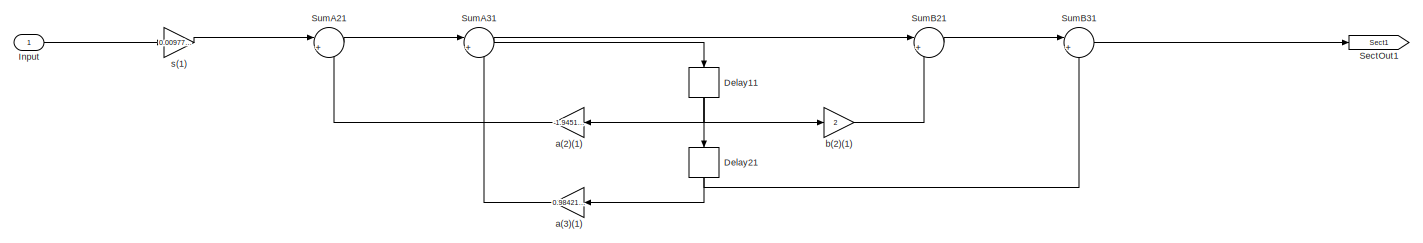
[diagram: Filter_LP_IIR - part 1/20, left side, full height]
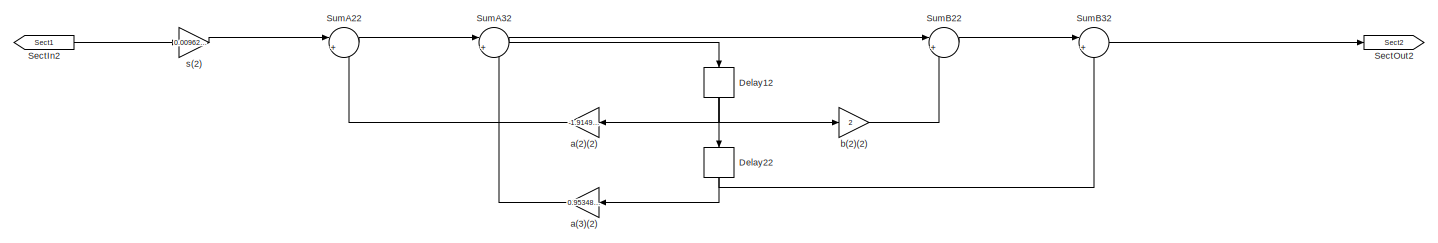
[diagram: Filter_LP_IIR - part 2/20, left side, full height]
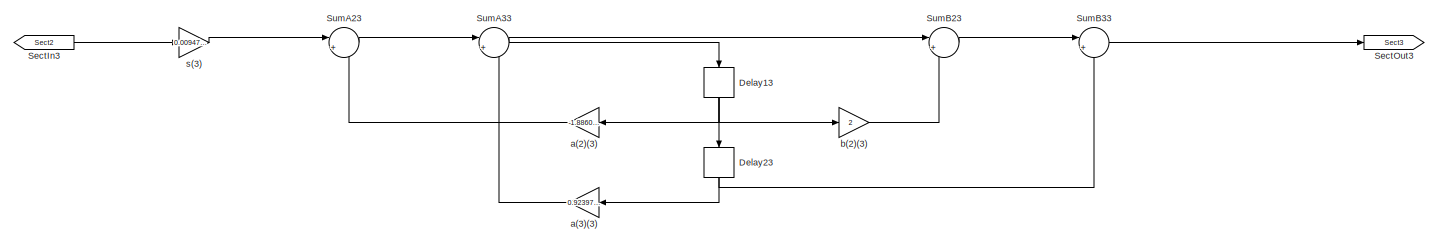
[diagram: Filter_LP_IIR - part 3/20, left side, full height]
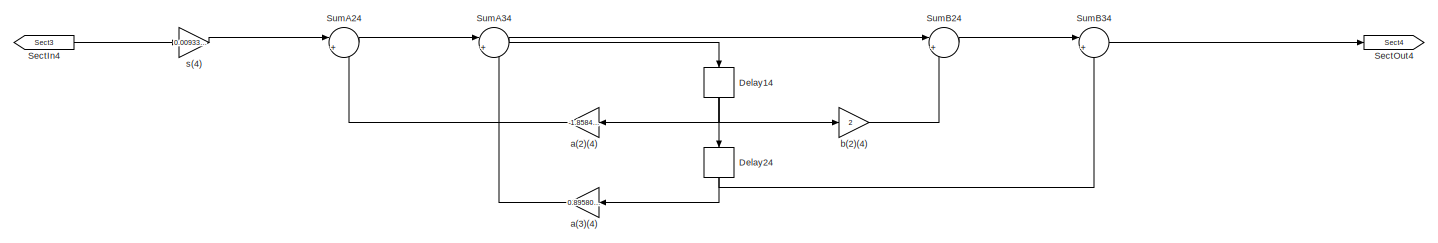
[diagram: Filter_LP_IIR - part 4/20, left side, full height]
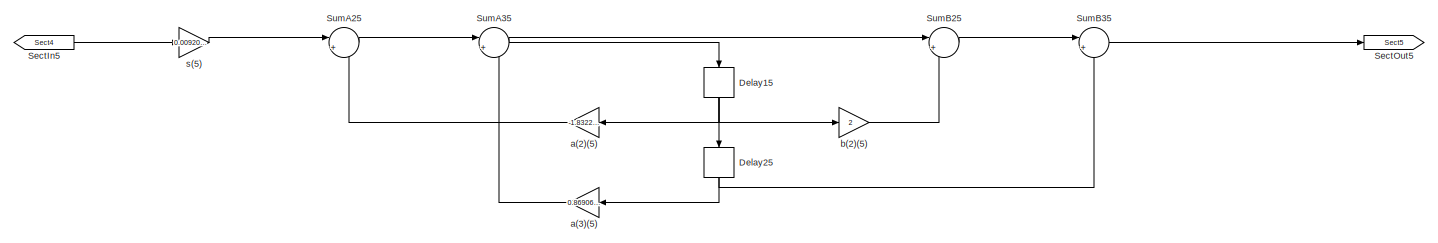
[diagram: Filter_LP_IIR - part 5/20, left side, full height]
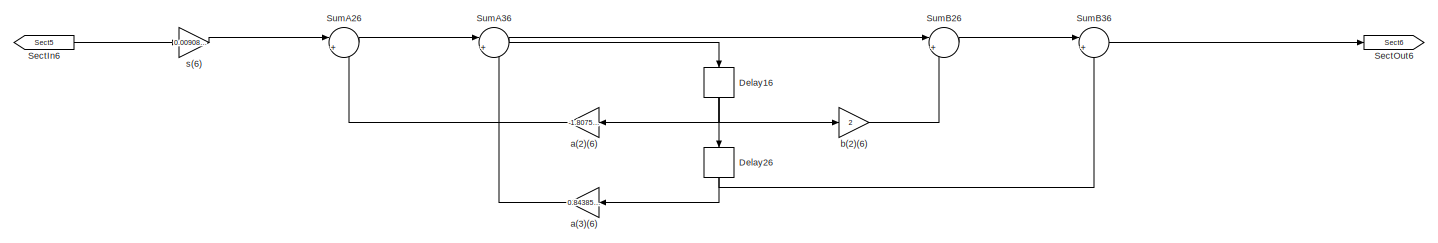
[diagram: Filter_LP_IIR - part 6/20, left side, full height]
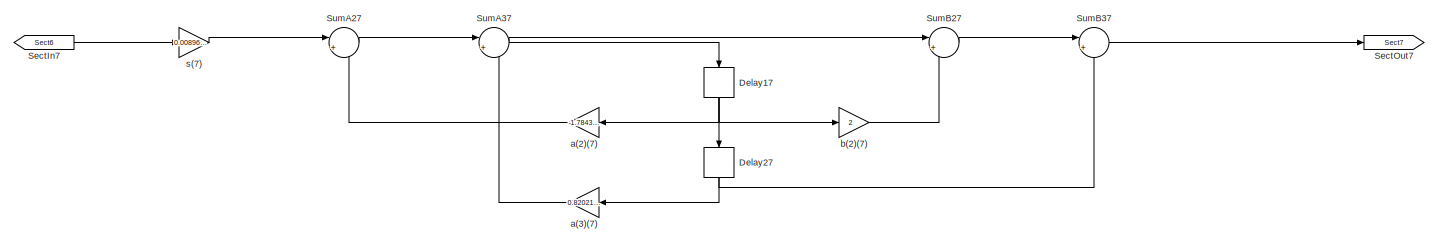
[diagram: Filter_LP_IIR - part 7/20, left side, full height]
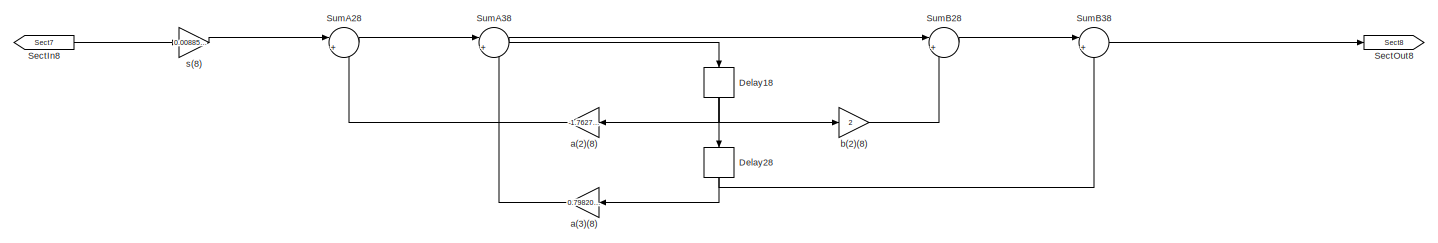
[diagram: Filter_LP_IIR - part 8/20, center side, full height]
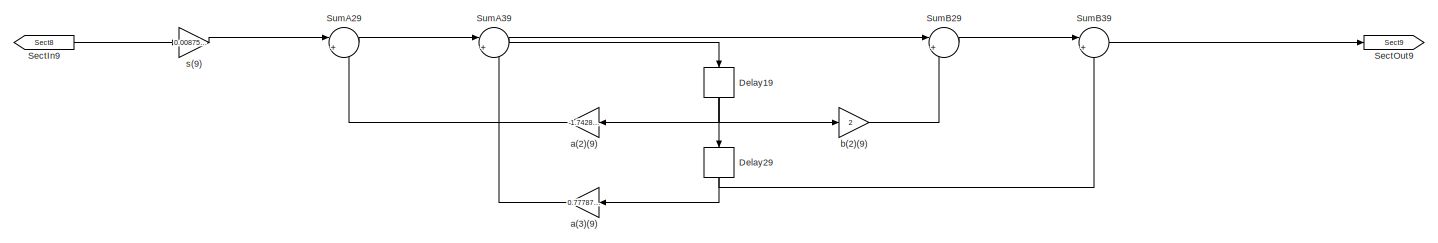
[diagram: Filter_LP_IIR - part 9/20, center side, full height]
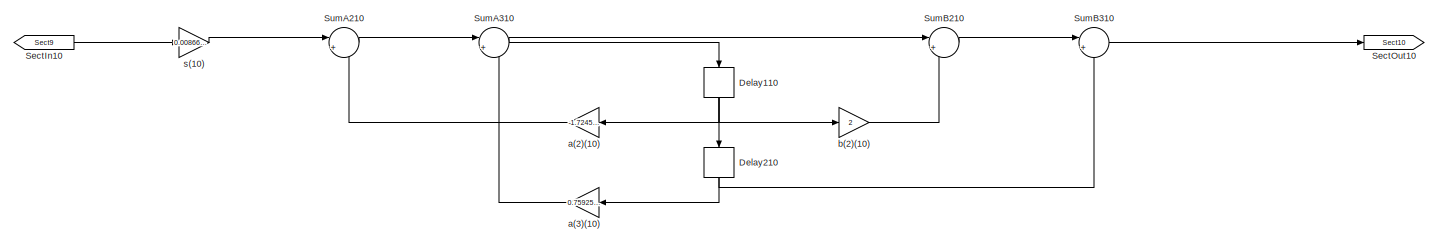
[diagram: Filter_LP_IIR - part 10/20, center side, full height]
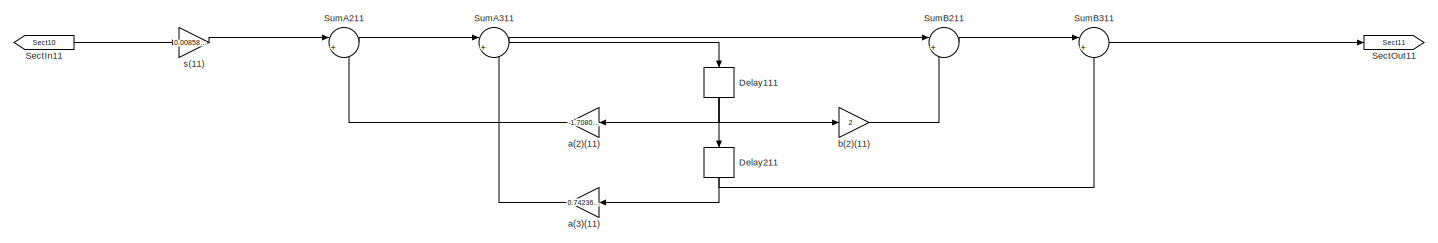
[diagram: Filter_LP_IIR - part 11/20, center side, full height]
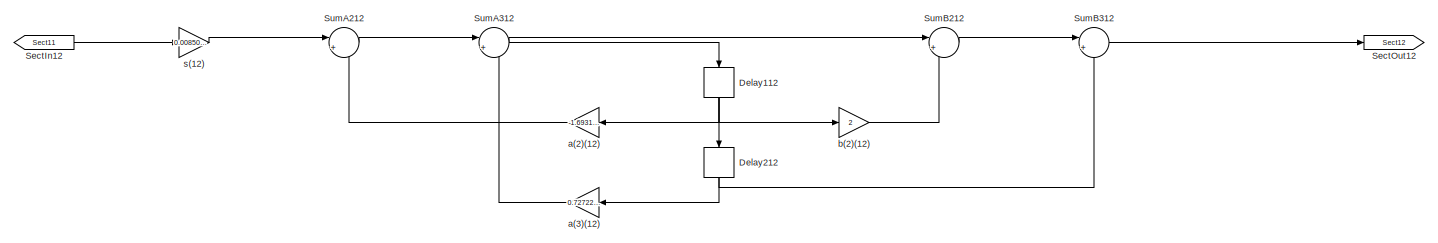
[diagram: Filter_LP_IIR - part 12/20, center side, full height]
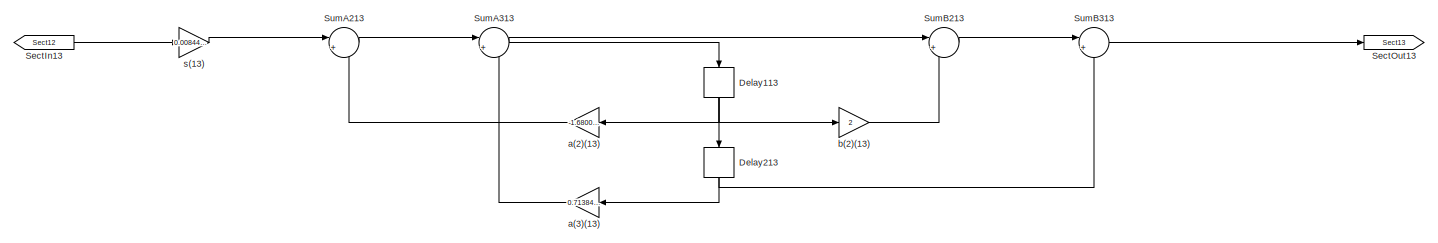
[diagram: Filter_LP_IIR - part 13/20, center side, full height]
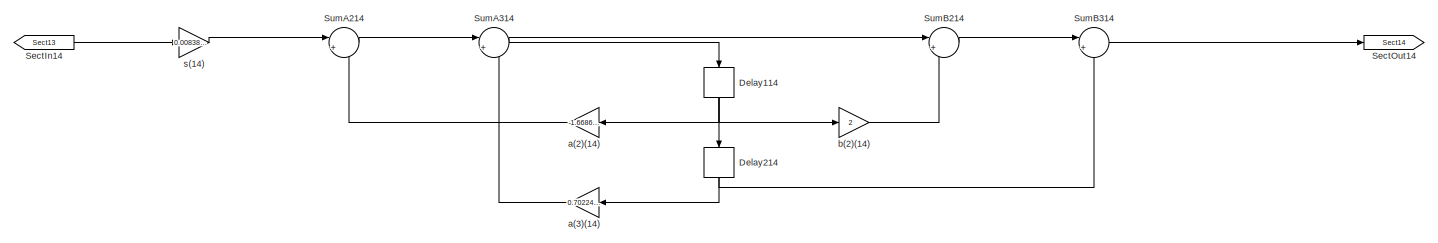
[diagram: Filter_LP_IIR - part 14/20, right side, full height]
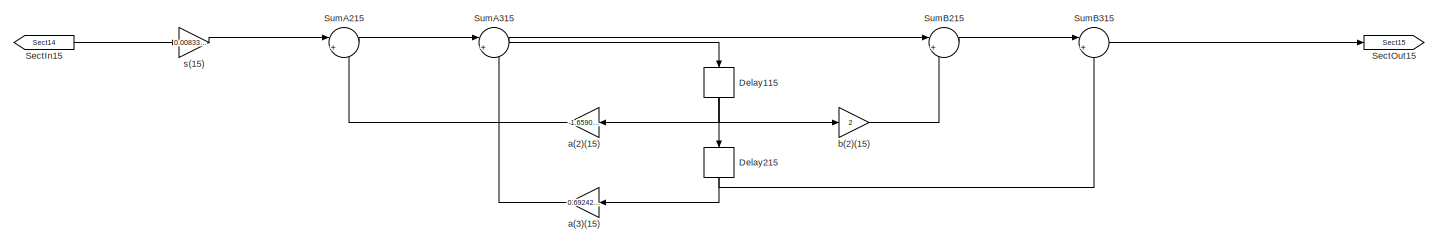
[diagram: Filter_LP_IIR - part 15/20, right side, full height]
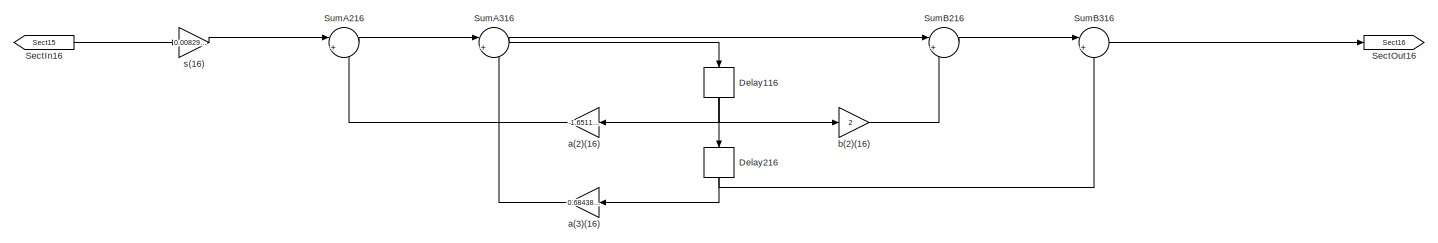
[diagram: Filter_LP_IIR - part 16/20, right side, full height]
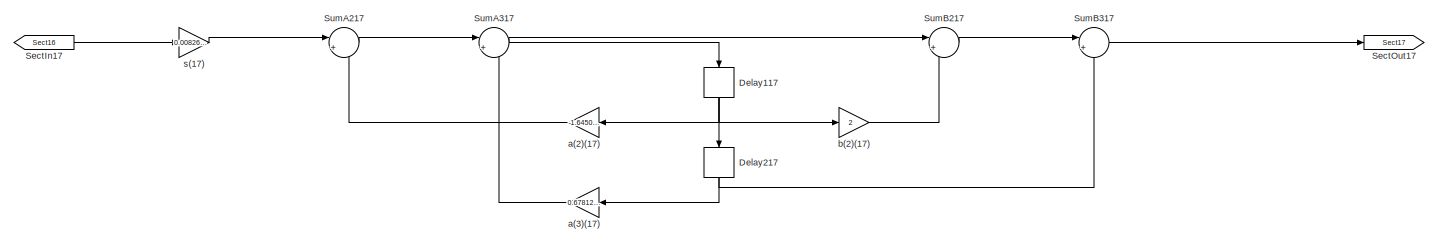
[diagram: Filter_LP_IIR - part 17/20, right side, full height]
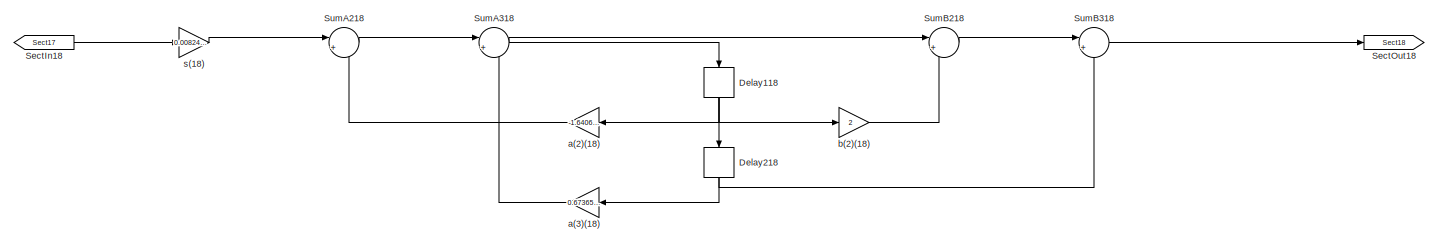
[diagram: Filter_LP_IIR - part 18/20, right side, full height]
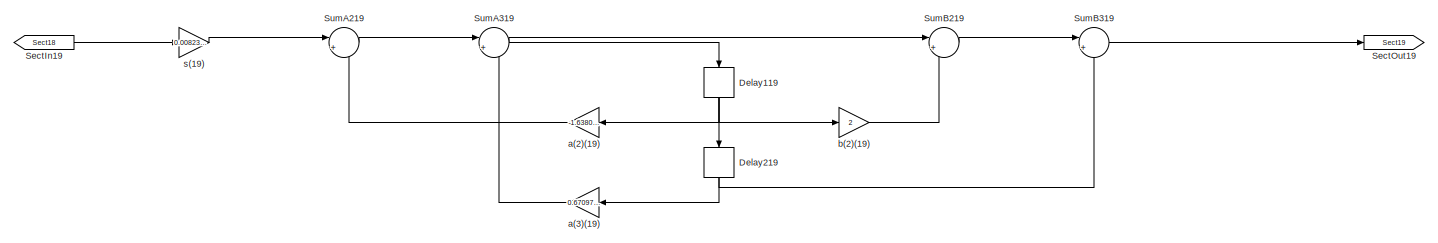
[diagram: Filter_LP_IIR - part 19/20, right side, full height]
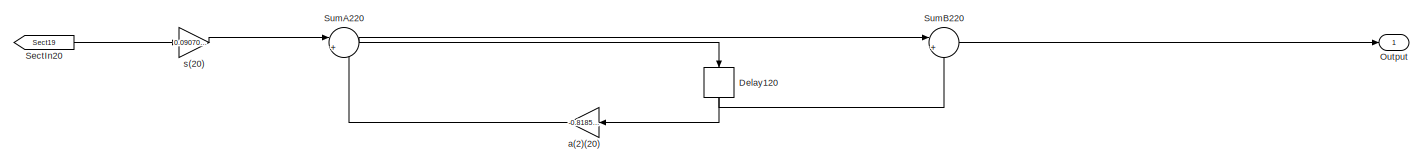
[diagram: Filter_LP_IIR - part 20/20, middle right region]
BLOCK [SubSystem] Filter_LP_IIR
  ErrorFcn = dspFilterRealizedInBasicElemsAlgLoopErrFcnCallback
  Tag = FilterWizardSubSystem
  UserDataPersistent = on
BLOCK [Delay] Filter_LP_IIR/Delay11
  DelayLength = 1
  InitialCondition = 0
  InputPortMap = u0
  NameLocation = right
BLOCK [Delay] Filter_LP_IIR/Delay110
  DelayLength = 1
  InitialCondition = 0
  InputPortMap = u0
  NameLocation = right
BLOCK [Delay] Filter_LP_IIR/Delay111
  DelayLength = 1
  InitialCondition = 0
  InputPortMap = u0
  NameLocation = right
BLOCK [Delay] Filter_LP_IIR/Delay112
  DelayLength = 1
  InitialCondition = 0
  InputPortMap = u0
  NameLocation = right
BLOCK [Delay] Filter_LP_IIR/Delay113
  DelayLength = 1
  InitialCondition = 0
  InputPortMap = u0
  NameLocation = right
BLOCK [Delay] Filter_LP_IIR/Delay114
  DelayLength = 1
  InitialCondition = 0
  InputPortMap = u0
  NameLocation = right
BLOCK [Delay] Filter_LP_IIR/Delay115
  DelayLength = 1
  InitialCondition = 0
  InputPortMap = u0
  NameLocation = right
BLOCK [Delay] Filter_LP_IIR/Delay116
  DelayLength = 1
  InitialCondition = 0
  InputPortMap = u0
  NameLocation = right
BLOCK [Delay] Filter_LP_IIR/Delay117
  DelayLength = 1
  InitialCondition = 0
  InputPortMap = u0
  NameLocation = right
BLOCK [Delay] Filter_LP_IIR/Delay118
  DelayLength = 1
  InitialCondition = 0
  InputPortMap = u0
  NameLocation = right
BLOCK [Delay] Filter_LP_IIR/Delay119
  DelayLength = 1
  InitialCondition = 0
  InputPortMap = u0
  NameLocation = right
BLOCK [Delay] Filter_LP_IIR/Delay12
  DelayLength = 1
  InitialCondition = 0
  InputPortMap = u0
  NameLocation = right
BLOCK [Delay] Filter_LP_IIR/Delay120
  DelayLength = 1
  InitialCondition = 0
  InputPortMap = u0
  NameLocation = right
BLOCK [Delay] Filter_LP_IIR/Delay13
  DelayLength = 1
  InitialCondition = 0
  InputPortMap = u0
  NameLocation = right
BLOCK [Delay] Filter_LP_IIR/Delay14
  DelayLength = 1
  InitialCondition = 0
  InputPortMap = u0
  NameLocation = right
BLOCK [Delay] Filter_LP_IIR/Delay15
  DelayLength = 1
  InitialCondition = 0
  InputPortMap = u0
  NameLocation = right
BLOCK [Delay] Filter_LP_IIR/Delay16
  DelayLength = 1
  InitialCondition = 0
  InputPortMap = u0
  NameLocation = right
BLOCK [Delay] Filter_LP_IIR/Delay17
  DelayLength = 1
  InitialCondition = 0
  InputPortMap = u0
  NameLocation = right
BLOCK [Delay] Filter_LP_IIR/Delay18
  DelayLength = 1
  InitialCondition = 0
  InputPortMap = u0
  NameLocation = right
BLOCK [Delay] Filter_LP_IIR/Delay19
  DelayLength = 1
  InitialCondition = 0
  InputPortMap = u0
  NameLocation = right
BLOCK [Delay] Filter_LP_IIR/Delay21
  DelayLength = 1
  InitialCondition = 0
  InputPortMap = u0
  NameLocation = right
BLOCK [Delay] Filter_LP_IIR/Delay210
  DelayLength = 1
  InitialCondition = 0
  InputPortMap = u0
  NameLocation = right
BLOCK [Delay] Filter_LP_IIR/Delay211
  DelayLength = 1
  InitialCondition = 0
  InputPortMap = u0
  NameLocation = right
BLOCK [Delay] Filter_LP_IIR/Delay212
  DelayLength = 1
  InitialCondition = 0
  InputPortMap = u0
  NameLocation = right
BLOCK [Delay] Filter_LP_IIR/Delay213
  DelayLength = 1
  InitialCondition = 0
  InputPortMap = u0
  NameLocation = right
BLOCK [Delay] Filter_LP_IIR/Delay214
  DelayLength = 1
  InitialCondition = 0
  InputPortMap = u0
  NameLocation = right
BLOCK [Delay] Filter_LP_IIR/Delay215
  DelayLength = 1
  InitialCondition = 0
  InputPortMap = u0
  NameLocation = right
BLOCK [Delay] Filter_LP_IIR/Delay216
  DelayLength = 1
  InitialCondition = 0
  InputPortMap = u0
  NameLocation = right
BLOCK [Delay] Filter_LP_IIR/Delay217
  DelayLength = 1
  InitialCondition = 0
  InputPortMap = u0
  NameLocation = right
BLOCK [Delay] Filter_LP_IIR/Delay218
  DelayLength = 1
  InitialCondition = 0
  InputPortMap = u0
  NameLocation = right
BLOCK [Delay] Filter_LP_IIR/Delay219
  DelayLength = 1
  InitialCondition = 0
  InputPortMap = u0
  NameLocation = right
BLOCK [Delay] Filter_LP_IIR/Delay22
  DelayLength = 1
  InitialCondition = 0
  InputPortMap = u0
  NameLocation = right
BLOCK [Delay] Filter_LP_IIR/Delay23
  DelayLength = 1
  InitialCondition = 0
  InputPortMap = u0
  NameLocation = right
BLOCK [Delay] Filter_LP_IIR/Delay24
  DelayLength = 1
  InitialCondition = 0
  InputPortMap = u0
  NameLocation = right
BLOCK [Delay] Filter_LP_IIR/Delay25
  DelayLength = 1
  InitialCondition = 0
  InputPortMap = u0
  NameLocation = right
BLOCK [Delay] Filter_LP_IIR/Delay26
  DelayLength = 1
  InitialCondition = 0
  InputPortMap = u0
  NameLocation = right
BLOCK [Delay] Filter_LP_IIR/Delay27
  DelayLength = 1
  InitialCondition = 0
  InputPortMap = u0
  NameLocation = right
BLOCK [Delay] Filter_LP_IIR/Delay28
  DelayLength = 1
  InitialCondition = 0
  InputPortMap = u0
  NameLocation = right
BLOCK [Delay] Filter_LP_IIR/Delay29
  DelayLength = 1
  InitialCondition = 0
  InputPortMap = u0
  NameLocation = right
BLOCK [Inport] Filter_LP_IIR/Input
BLOCK [Outport] Filter_LP_IIR/Output
BLOCK [From] Filter_LP_IIR/SectIn10
  GotoTag = Sect9
BLOCK [From] Filter_LP_IIR/SectIn11
  GotoTag = Sect10
BLOCK [From] Filter_LP_IIR/SectIn12
  GotoTag = Sect11
BLOCK [From] Filter_LP_IIR/SectIn13
  GotoTag = Sect12
BLOCK [From] Filter_LP_IIR/SectIn14
  GotoTag = Sect13
BLOCK [From] Filter_LP_IIR/SectIn15
  GotoTag = Sect14
BLOCK [From] Filter_LP_IIR/SectIn16
  GotoTag = Sect15
BLOCK [From] Filter_LP_IIR/SectIn17
  GotoTag = Sect16
BLOCK [From] Filter_LP_IIR/SectIn18
  GotoTag = Sect17
BLOCK [From] Filter_LP_IIR/SectIn19
  GotoTag = Sect18
BLOCK [From] Filter_LP_IIR/SectIn2
  GotoTag = Sect1
BLOCK [From] Filter_LP_IIR/SectIn20
  GotoTag = Sect19
BLOCK [From] Filter_LP_IIR/SectIn3
  GotoTag = Sect2
BLOCK [From] Filter_LP_IIR/SectIn4
  GotoTag = Sect3
BLOCK [From] Filter_LP_IIR/SectIn5
  GotoTag = Sect4
BLOCK [From] Filter_LP_IIR/SectIn6
  GotoTag = Sect5
BLOCK [From] Filter_LP_IIR/SectIn7
  GotoTag = Sect6
BLOCK [From] Filter_LP_IIR/SectIn8
  GotoTag = Sect7
BLOCK [From] Filter_LP_IIR/SectIn9
  GotoTag = Sect8
BLOCK [Goto] Filter_LP_IIR/SectOut1
  GotoTag = Sect1
BLOCK [Goto] Filter_LP_IIR/SectOut10
  GotoTag = Sect10
BLOCK [Goto] Filter_LP_IIR/SectOut11
  GotoTag = Sect11
BLOCK [Goto] Filter_LP_IIR/SectOut12
  GotoTag = Sect12
BLOCK [Goto] Filter_LP_IIR/SectOut13
  GotoTag = Sect13
BLOCK [Goto] Filter_LP_IIR/SectOut14
  GotoTag = Sect14
BLOCK [Goto] Filter_LP_IIR/SectOut15
  GotoTag = Sect15
BLOCK [Goto] Filter_LP_IIR/SectOut16
  GotoTag = Sect16
BLOCK [Goto] Filter_LP_IIR/SectOut17
  GotoTag = Sect17
BLOCK [Goto] Filter_LP_IIR/SectOut18
  GotoTag = Sect18
BLOCK [Goto] Filter_LP_IIR/SectOut19
  GotoTag = Sect19
BLOCK [Goto] Filter_LP_IIR/SectOut2
  GotoTag = Sect2
BLOCK [Goto] Filter_LP_IIR/SectOut3
  GotoTag = Sect3
BLOCK [Goto] Filter_LP_IIR/SectOut4
  GotoTag = Sect4
BLOCK [Goto] Filter_LP_IIR/SectOut5
  GotoTag = Sect5
BLOCK [Goto] Filter_LP_IIR/SectOut6
  GotoTag = Sect6
BLOCK [Goto] Filter_LP_IIR/SectOut7
  GotoTag = Sect7
BLOCK [Goto] Filter_LP_IIR/SectOut8
  GotoTag = Sect8
BLOCK [Goto] Filter_LP_IIR/SectOut9
  GotoTag = Sect9
BLOCK [Sum] Filter_LP_IIR/SumA21
  Inputs = |+-
  OutDataTypeStr = Inherit: Same as first input
  RndMeth = Nearest
  SaturateOnIntegerOverflow = on
BLOCK [Sum] Filter_LP_IIR/SumA210
  Inputs = |+-
  OutDataTypeStr = Inherit: Same as first input
  RndMeth = Nearest
  SaturateOnIntegerOverflow = on
BLOCK [Sum] Filter_LP_IIR/SumA211
  Inputs = |+-
  OutDataTypeStr = Inherit: Same as first input
  RndMeth = Nearest
  SaturateOnIntegerOverflow = on
BLOCK [Sum] Filter_LP_IIR/SumA212
  Inputs = |+-
  OutDataTypeStr = Inherit: Same as first input
  RndMeth = Nearest
  SaturateOnIntegerOverflow = on
BLOCK [Sum] Filter_LP_IIR/SumA213
  Inputs = |+-
  OutDataTypeStr = Inherit: Same as first input
  RndMeth = Nearest
  SaturateOnIntegerOverflow = on
BLOCK [Sum] Filter_LP_IIR/SumA214
  Inputs = |+-
  OutDataTypeStr = Inherit: Same as first input
  RndMeth = Nearest
  SaturateOnIntegerOverflow = on
BLOCK [Sum] Filter_LP_IIR/SumA215
  Inputs = |+-
  OutDataTypeStr = Inherit: Same as first input
  RndMeth = Nearest
  SaturateOnIntegerOverflow = on
BLOCK [Sum] Filter_LP_IIR/SumA216
  Inputs = |+-
  OutDataTypeStr = Inherit: Same as first input
  RndMeth = Nearest
  SaturateOnIntegerOverflow = on
BLOCK [Sum] Filter_LP_IIR/SumA217
  Inputs = |+-
  OutDataTypeStr = Inherit: Same as first input
  RndMeth = Nearest
  SaturateOnIntegerOverflow = on
BLOCK [Sum] Filter_LP_IIR/SumA218
  Inputs = |+-
  OutDataTypeStr = Inherit: Same as first input
  RndMeth = Nearest
  SaturateOnIntegerOverflow = on
BLOCK [Sum] Filter_LP_IIR/SumA219
  Inputs = |+-
  OutDataTypeStr = Inherit: Same as first input
  RndMeth = Nearest
  SaturateOnIntegerOverflow = on
BLOCK [Sum] Filter_LP_IIR/SumA22
  Inputs = |+-
  OutDataTypeStr = Inherit: Same as first input
  RndMeth = Nearest
  SaturateOnIntegerOverflow = on
BLOCK [Sum] Filter_LP_IIR/SumA220
  Inputs = |+-
  OutDataTypeStr = Inherit: Same as first input
  RndMeth = Nearest
  SaturateOnIntegerOverflow = on
BLOCK [Sum] Filter_LP_IIR/SumA23
  Inputs = |+-
  OutDataTypeStr = Inherit: Same as first input
  RndMeth = Nearest
  SaturateOnIntegerOverflow = on
BLOCK [Sum] Filter_LP_IIR/SumA24
  Inputs = |+-
  OutDataTypeStr = Inherit: Same as first input
  RndMeth = Nearest
  SaturateOnIntegerOverflow = on
BLOCK [Sum] Filter_LP_IIR/SumA25
  Inputs = |+-
  OutDataTypeStr = Inherit: Same as first input
  RndMeth = Nearest
  SaturateOnIntegerOverflow = on
BLOCK [Sum] Filter_LP_IIR/SumA26
  Inputs = |+-
  OutDataTypeStr = Inherit: Same as first input
  RndMeth = Nearest
  SaturateOnIntegerOverflow = on
BLOCK [Sum] Filter_LP_IIR/SumA27
  Inputs = |+-
  OutDataTypeStr = Inherit: Same as first input
  RndMeth = Nearest
  SaturateOnIntegerOverflow = on
BLOCK [Sum] Filter_LP_IIR/SumA28
  Inputs = |+-
  OutDataTypeStr = Inherit: Same as first input
  RndMeth = Nearest
  SaturateOnIntegerOverflow = on
BLOCK [Sum] Filter_LP_IIR/SumA29
  Inputs = |+-
  OutDataTypeStr = Inherit: Same as first input
  RndMeth = Nearest
  SaturateOnIntegerOverflow = on
BLOCK [Sum] Filter_LP_IIR/SumA31
  Inputs = |+-
  OutDataTypeStr = Inherit: Same as first input
  RndMeth = Nearest
  SaturateOnIntegerOverflow = on
BLOCK [Sum] Filter_LP_IIR/SumA310
  Inputs = |+-
  OutDataTypeStr = Inherit: Same as first input
  RndMeth = Nearest
  SaturateOnIntegerOverflow = on
BLOCK [Sum] Filter_LP_IIR/SumA311
  Inputs = |+-
  OutDataTypeStr = Inherit: Same as first input
  RndMeth = Nearest
  SaturateOnIntegerOverflow = on
BLOCK [Sum] Filter_LP_IIR/SumA312
  Inputs = |+-
  OutDataTypeStr = Inherit: Same as first input
  RndMeth = Nearest
  SaturateOnIntegerOverflow = on
BLOCK [Sum] Filter_LP_IIR/SumA313
  Inputs = |+-
  OutDataTypeStr = Inherit: Same as first input
  RndMeth = Nearest
  SaturateOnIntegerOverflow = on
BLOCK [Sum] Filter_LP_IIR/SumA314
  Inputs = |+-
  OutDataTypeStr = Inherit: Same as first input
  RndMeth = Nearest
  SaturateOnIntegerOverflow = on
BLOCK [Sum] Filter_LP_IIR/SumA315
  Inputs = |+-
  OutDataTypeStr = Inherit: Same as first input
  RndMeth = Nearest
  SaturateOnIntegerOverflow = on
BLOCK [Sum] Filter_LP_IIR/SumA316
  Inputs = |+-
  OutDataTypeStr = Inherit: Same as first input
  RndMeth = Nearest
  SaturateOnIntegerOverflow = on
BLOCK [Sum] Filter_LP_IIR/SumA317
  Inputs = |+-
  OutDataTypeStr = Inherit: Same as first input
  RndMeth = Nearest
  SaturateOnIntegerOverflow = on
BLOCK [Sum] Filter_LP_IIR/SumA318
  Inputs = |+-
  OutDataTypeStr = Inherit: Same as first input
  RndMeth = Nearest
  SaturateOnIntegerOverflow = on
BLOCK [Sum] Filter_LP_IIR/SumA319
  Inputs = |+-
  OutDataTypeStr = Inherit: Same as first input
  RndMeth = Nearest
  SaturateOnIntegerOverflow = on
BLOCK [Sum] Filter_LP_IIR/SumA32
  Inputs = |+-
  OutDataTypeStr = Inherit: Same as first input
  RndMeth = Nearest
  SaturateOnIntegerOverflow = on
BLOCK [Sum] Filter_LP_IIR/SumA33
  Inputs = |+-
  OutDataTypeStr = Inherit: Same as first input
  RndMeth = Nearest
  SaturateOnIntegerOverflow = on
BLOCK [Sum] Filter_LP_IIR/SumA34
  Inputs = |+-
  OutDataTypeStr = Inherit: Same as first input
  RndMeth = Nearest
  SaturateOnIntegerOverflow = on
BLOCK [Sum] Filter_LP_IIR/SumA35
  Inputs = |+-
  OutDataTypeStr = Inherit: Same as first input
  RndMeth = Nearest
  SaturateOnIntegerOverflow = on
BLOCK [Sum] Filter_LP_IIR/SumA36
  Inputs = |+-
  OutDataTypeStr = Inherit: Same as first input
  RndMeth = Nearest
  SaturateOnIntegerOverflow = on
BLOCK [Sum] Filter_LP_IIR/SumA37
  Inputs = |+-
  OutDataTypeStr = Inherit: Same as first input
  RndMeth = Nearest
  SaturateOnIntegerOverflow = on
BLOCK [Sum] Filter_LP_IIR/SumA38
  Inputs = |+-
  OutDataTypeStr = Inherit: Same as first input
  RndMeth = Nearest
  SaturateOnIntegerOverflow = on
BLOCK [Sum] Filter_LP_IIR/SumA39
  Inputs = |+-
  OutDataTypeStr = Inherit: Same as first input
  RndMeth = Nearest
  SaturateOnIntegerOverflow = on
BLOCK [Sum] Filter_LP_IIR/SumB21
  Inputs = |++
  OutDataTypeStr = Inherit: Same as first input
  RndMeth = Nearest
  SaturateOnIntegerOverflow = on
BLOCK [Sum] Filter_LP_IIR/SumB210
  Inputs = |++
  OutDataTypeStr = Inherit: Same as first input
  RndMeth = Nearest
  SaturateOnIntegerOverflow = on
BLOCK [Sum] Filter_LP_IIR/SumB211
  Inputs = |++
  OutDataTypeStr = Inherit: Same as first input
  RndMeth = Nearest
  SaturateOnIntegerOverflow = on
BLOCK [Sum] Filter_LP_IIR/SumB212
  Inputs = |++
  OutDataTypeStr = Inherit: Same as first input
  RndMeth = Nearest
  SaturateOnIntegerOverflow = on
BLOCK [Sum] Filter_LP_IIR/SumB213
  Inputs = |++
  OutDataTypeStr = Inherit: Same as first input
  RndMeth = Nearest
  SaturateOnIntegerOverflow = on
BLOCK [Sum] Filter_LP_IIR/SumB214
  Inputs = |++
  OutDataTypeStr = Inherit: Same as first input
  RndMeth = Nearest
  SaturateOnIntegerOverflow = on
BLOCK [Sum] Filter_LP_IIR/SumB215
  Inputs = |++
  OutDataTypeStr = Inherit: Same as first input
  RndMeth = Nearest
  SaturateOnIntegerOverflow = on
BLOCK [Sum] Filter_LP_IIR/SumB216
  Inputs = |++
  OutDataTypeStr = Inherit: Same as first input
  RndMeth = Nearest
  SaturateOnIntegerOverflow = on
BLOCK [Sum] Filter_LP_IIR/SumB217
  Inputs = |++
  OutDataTypeStr = Inherit: Same as first input
  RndMeth = Nearest
  SaturateOnIntegerOverflow = on
BLOCK [Sum] Filter_LP_IIR/SumB218
  Inputs = |++
  OutDataTypeStr = Inherit: Same as first input
  RndMeth = Nearest
  SaturateOnIntegerOverflow = on
BLOCK [Sum] Filter_LP_IIR/SumB219
  Inputs = |++
  OutDataTypeStr = Inherit: Same as first input
  RndMeth = Nearest
  SaturateOnIntegerOverflow = on
BLOCK [Sum] Filter_LP_IIR/SumB22
  Inputs = |++
  OutDataTypeStr = Inherit: Same as first input
  RndMeth = Nearest
  SaturateOnIntegerOverflow = on
BLOCK [Sum] Filter_LP_IIR/SumB220
  Inputs = |++
  OutDataTypeStr = Inherit: Same as first input
  RndMeth = Nearest
  SaturateOnIntegerOverflow = on
BLOCK [Sum] Filter_LP_IIR/SumB23
  Inputs = |++
  OutDataTypeStr = Inherit: Same as first input
  RndMeth = Nearest
  SaturateOnIntegerOverflow = on
BLOCK [Sum] Filter_LP_IIR/SumB24
  Inputs = |++
  OutDataTypeStr = Inherit: Same as first input
  RndMeth = Nearest
  SaturateOnIntegerOverflow = on
BLOCK [Sum] Filter_LP_IIR/SumB25
  Inputs = |++
  OutDataTypeStr = Inherit: Same as first input
  RndMeth = Nearest
  SaturateOnIntegerOverflow = on
BLOCK [Sum] Filter_LP_IIR/SumB26
  Inputs = |++
  OutDataTypeStr = Inherit: Same as first input
  RndMeth = Nearest
  SaturateOnIntegerOverflow = on
BLOCK [Sum] Filter_LP_IIR/SumB27
  Inputs = |++
  OutDataTypeStr = Inherit: Same as first input
  RndMeth = Nearest
  SaturateOnIntegerOverflow = on
BLOCK [Sum] Filter_LP_IIR/SumB28
  Inputs = |++
  OutDataTypeStr = Inherit: Same as first input
  RndMeth = Nearest
  SaturateOnIntegerOverflow = on
BLOCK [Sum] Filter_LP_IIR/SumB29
  Inputs = |++
  OutDataTypeStr = Inherit: Same as first input
  RndMeth = Nearest
  SaturateOnIntegerOverflow = on
BLOCK [Sum] Filter_LP_IIR/SumB31
  Inputs = |++
  OutDataTypeStr = Inherit: Same as first input
  RndMeth = Nearest
  SaturateOnIntegerOverflow = on
BLOCK [Sum] Filter_LP_IIR/SumB310
  Inputs = |++
  OutDataTypeStr = Inherit: Same as first input
  RndMeth = Nearest
  SaturateOnIntegerOverflow = on
BLOCK [Sum] Filter_LP_IIR/SumB311
  Inputs = |++
  OutDataTypeStr = Inherit: Same as first input
  RndMeth = Nearest
  SaturateOnIntegerOverflow = on
BLOCK [Sum] Filter_LP_IIR/SumB312
  Inputs = |++
  OutDataTypeStr = Inherit: Same as first input
  RndMeth = Nearest
  SaturateOnIntegerOverflow = on
BLOCK [Sum] Filter_LP_IIR/SumB313
  Inputs = |++
  OutDataTypeStr = Inherit: Same as first input
  RndMeth = Nearest
  SaturateOnIntegerOverflow = on
BLOCK [Sum] Filter_LP_IIR/SumB314
  Inputs = |++
  OutDataTypeStr = Inherit: Same as first input
  RndMeth = Nearest
  SaturateOnIntegerOverflow = on
BLOCK [Sum] Filter_LP_IIR/SumB315
  Inputs = |++
  OutDataTypeStr = Inherit: Same as first input
  RndMeth = Nearest
  SaturateOnIntegerOverflow = on
BLOCK [Sum] Filter_LP_IIR/SumB316
  Inputs = |++
  OutDataTypeStr = Inherit: Same as first input
  RndMeth = Nearest
  SaturateOnIntegerOverflow = on
BLOCK [Sum] Filter_LP_IIR/SumB317
  Inputs = |++
  OutDataTypeStr = Inherit: Same as first input
  RndMeth = Nearest
  SaturateOnIntegerOverflow = on
BLOCK [Sum] Filter_LP_IIR/SumB318
  Inputs = |++
  OutDataTypeStr = Inherit: Same as first input
  RndMeth = Nearest
  SaturateOnIntegerOverflow = on
BLOCK [Sum] Filter_LP_IIR/SumB319
  Inputs = |++
  OutDataTypeStr = Inherit: Same as first input
  RndMeth = Nearest
  SaturateOnIntegerOverflow = on
BLOCK [Sum] Filter_LP_IIR/SumB32
  Inputs = |++
  OutDataTypeStr = Inherit: Same as first input
  RndMeth = Nearest
  SaturateOnIntegerOverflow = on
BLOCK [Sum] Filter_LP_IIR/SumB33
  Inputs = |++
  OutDataTypeStr = Inherit: Same as first input
  RndMeth = Nearest
  SaturateOnIntegerOverflow = on
BLOCK [Sum] Filter_LP_IIR/SumB34
  Inputs = |++
  OutDataTypeStr = Inherit: Same as first input
  RndMeth = Nearest
  SaturateOnIntegerOverflow = on
BLOCK [Sum] Filter_LP_IIR/SumB35
  Inputs = |++
  OutDataTypeStr = Inherit: Same as first input
  RndMeth = Nearest
  SaturateOnIntegerOverflow = on
BLOCK [Sum] Filter_LP_IIR/SumB36
  Inputs = |++
  OutDataTypeStr = Inherit: Same as first input
  RndMeth = Nearest
  SaturateOnIntegerOverflow = on
BLOCK [Sum] Filter_LP_IIR/SumB37
  Inputs = |++
  OutDataTypeStr = Inherit: Same as first input
  RndMeth = Nearest
  SaturateOnIntegerOverflow = on
BLOCK [Sum] Filter_LP_IIR/SumB38
  Inputs = |++
  OutDataTypeStr = Inherit: Same as first input
  RndMeth = Nearest
  SaturateOnIntegerOverflow = on
BLOCK [Sum] Filter_LP_IIR/SumB39
  Inputs = |++
  OutDataTypeStr = Inherit: Same as first input
  RndMeth = Nearest
  SaturateOnIntegerOverflow = on
BLOCK [Gain] Filter_LP_IIR/a(2)(1)
  Gain = -1.94511471934265234
  OutDataTypeStr = Inherit: Same as input
  ParamDataTypeStr = double
  RndMeth = Nearest
  SaturateOnIntegerOverflow = on
BLOCK [Gain] Filter_LP_IIR/a(2)(10)
  Gain = -1.72458534142633213
  OutDataTypeStr = Inherit: Same as input
  ParamDataTypeStr = double
  RndMeth = Nearest
  SaturateOnIntegerOverflow = on
BLOCK [Gain] Filter_LP_IIR/a(2)(11)
  Gain = -1.70802795949329655
  OutDataTypeStr = Inherit: Same as input
  ParamDataTypeStr = double
  RndMeth = Nearest
  SaturateOnIntegerOverflow = on
BLOCK [Gain] Filter_LP_IIR/a(2)(12)
  Gain = -1.69318657697153863
  OutDataTypeStr = Inherit: Same as input
  ParamDataTypeStr = double
  RndMeth = Nearest
  SaturateOnIntegerOverflow = on
BLOCK [Gain] Filter_LP_IIR/a(2)(13)
  Gain = -1.6800741629578928
  OutDataTypeStr = Inherit: Same as input
  ParamDataTypeStr = double
  RndMeth = Nearest
  SaturateOnIntegerOverflow = on
BLOCK [Gain] Filter_LP_IIR/a(2)(14)
  Gain = -1.66869977051031126
  OutDataTypeStr = Inherit: Same as input
  ParamDataTypeStr = double
  RndMeth = Nearest
  SaturateOnIntegerOverflow = on
BLOCK [Gain] Filter_LP_IIR/a(2)(15)
  Gain = -1.65906946049562087
  OutDataTypeStr = Inherit: Same as input
  ParamDataTypeStr = double
  RndMeth = Nearest
  SaturateOnIntegerOverflow = on
BLOCK [Gain] Filter_LP_IIR/a(2)(16)
  Gain = -1.6511870851089232
  OutDataTypeStr = Inherit: Same as input
  ParamDataTypeStr = double
  RndMeth = Nearest
  SaturateOnIntegerOverflow = on
BLOCK [Gain] Filter_LP_IIR/a(2)(17)
  Gain = -1.64505493720228069
  OutDataTypeStr = Inherit: Same as input
  ParamDataTypeStr = double
  RndMeth = Nearest
  SaturateOnIntegerOverflow = on
BLOCK [Gain] Filter_LP_IIR/a(2)(18)
  Gain = -1.64067427158636092
  OutDataTypeStr = Inherit: Same as input
  ParamDataTypeStr = double
  RndMeth = Nearest
  SaturateOnIntegerOverflow = on
BLOCK [Gain] Filter_LP_IIR/a(2)(19)
  Gain = -1.63804570396531046
  OutDataTypeStr = Inherit: Same as input
  ParamDataTypeStr = double
  RndMeth = Nearest
  SaturateOnIntegerOverflow = on
BLOCK [Gain] Filter_LP_IIR/a(2)(2)
  Gain = -1.91498797206679394
  OutDataTypeStr = Inherit: Same as input
  ParamDataTypeStr = double
  RndMeth = Nearest
  SaturateOnIntegerOverflow = on
BLOCK [Gain] Filter_LP_IIR/a(2)(20)
  Gain = -0.818584746134231489
  OutDataTypeStr = Inherit: Same as input
  ParamDataTypeStr = double
  RndMeth = Nearest
  SaturateOnIntegerOverflow = on
BLOCK [Gain] Filter_LP_IIR/a(2)(3)
  Gain = -1.88606036875490402
  OutDataTypeStr = Inherit: Same as input
  ParamDataTypeStr = double
  RndMeth = Nearest
  SaturateOnIntegerOverflow = on
BLOCK [Gain] Filter_LP_IIR/a(2)(4)
  Gain = -1.85844504972081848
  OutDataTypeStr = Inherit: Same as input
  ParamDataTypeStr = double
  RndMeth = Nearest
  SaturateOnIntegerOverflow = on
BLOCK [Gain] Filter_LP_IIR/a(2)(5)
  Gain = -1.8322368670218232
  OutDataTypeStr = Inherit: Same as input
  ParamDataTypeStr = double
  RndMeth = Nearest
  SaturateOnIntegerOverflow = on
BLOCK [Gain] Filter_LP_IIR/a(2)(6)
  Gain = -1.80751433005880968
  OutDataTypeStr = Inherit: Same as input
  ParamDataTypeStr = double
  RndMeth = Nearest
  SaturateOnIntegerOverflow = on
BLOCK [Gain] Filter_LP_IIR/a(2)(7)
  Gain = -1.78434154259198308
  OutDataTypeStr = Inherit: Same as input
  ParamDataTypeStr = double
  RndMeth = Nearest
  SaturateOnIntegerOverflow = on
BLOCK [Gain] Filter_LP_IIR/a(2)(8)
  Gain = -1.76277007981037737
  OutDataTypeStr = Inherit: Same as input
  ParamDataTypeStr = double
  RndMeth = Nearest
  SaturateOnIntegerOverflow = on
BLOCK [Gain] Filter_LP_IIR/a(2)(9)
  Gain = -1.74284076803979437
  OutDataTypeStr = Inherit: Same as input
  ParamDataTypeStr = double
  RndMeth = Nearest
  SaturateOnIntegerOverflow = on
BLOCK [Gain] Filter_LP_IIR/a(3)(1)
  Gain = 0.984216738021379101
  OutDataTypeStr = Inherit: Same as input
  ParamDataTypeStr = double
  RndMeth = Nearest
  SaturateOnIntegerOverflow = on
BLOCK [Gain] Filter_LP_IIR/a(3)(10)
  Gain = 0.75925412860012953
  OutDataTypeStr = Inherit: Same as input
  ParamDataTypeStr = double
  RndMeth = Nearest
  SaturateOnIntegerOverflow = on
BLOCK [Gain] Filter_LP_IIR/a(3)(11)
  Gain = 0.742363898917201115
  OutDataTypeStr = Inherit: Same as input
  ParamDataTypeStr = double
  RndMeth = Nearest
  SaturateOnIntegerOverflow = on
BLOCK [Gain] Filter_LP_IIR/a(3)(12)
  Gain = 0.727224164832518616
  OutDataTypeStr = Inherit: Same as input
  ParamDataTypeStr = double
  RndMeth = Nearest
  SaturateOnIntegerOverflow = on
BLOCK [Gain] Filter_LP_IIR/a(3)(13)
  Gain = 0.713848156156518643
  OutDataTypeStr = Inherit: Same as input
  ParamDataTypeStr = double
  RndMeth = Nearest
  SaturateOnIntegerOverflow = on
BLOCK [Gain] Filter_LP_IIR/a(3)(14)
  Gain = 0.702245107937880753
  OutDataTypeStr = Inherit: Same as input
  ParamDataTypeStr = double
  RndMeth = Nearest
  SaturateOnIntegerOverflow = on
BLOCK [Gain] Filter_LP_IIR/a(3)(15)
  Gain = 0.692421202883097386
  OutDataTypeStr = Inherit: Same as input
  ParamDataTypeStr = double
  RndMeth = Nearest
  SaturateOnIntegerOverflow = on
BLOCK [Gain] Filter_LP_IIR/a(3)(16)
  Gain = 0.684380370626715751
  OutDataTypeStr = Inherit: Same as input
  ParamDataTypeStr = double
  RndMeth = Nearest
  SaturateOnIntegerOverflow = on
BLOCK [Gain] Filter_LP_IIR/a(3)(17)
  Gain = 0.67812495011326912
  OutDataTypeStr = Inherit: Same as input
  ParamDataTypeStr = double
  RndMeth = Nearest
  SaturateOnIntegerOverflow = on
BLOCK [Gain] Filter_LP_IIR/a(3)(18)
  Gain = 0.6736562213784828
  OutDataTypeStr = Inherit: Same as input
  ParamDataTypeStr = double
  RndMeth = Nearest
  SaturateOnIntegerOverflow = on
BLOCK [Gain] Filter_LP_IIR/a(3)(19)
  Gain = 0.670974812503806195
  OutDataTypeStr = Inherit: Same as input
  ParamDataTypeStr = double
  RndMeth = Nearest
  SaturateOnIntegerOverflow = on
BLOCK [Gain] Filter_LP_IIR/a(3)(2)
  Gain = 0.953484362386948781
  OutDataTypeStr = Inherit: Same as input
  ParamDataTypeStr = double
  RndMeth = Nearest
  SaturateOnIntegerOverflow = on
BLOCK [Gain] Filter_LP_IIR/a(3)(3)
  Gain = 0.92397523672381443
  OutDataTypeStr = Inherit: Same as input
  ParamDataTypeStr = double
  RndMeth = Nearest
  SaturateOnIntegerOverflow = on
BLOCK [Gain] Filter_LP_IIR/a(3)(4)
  Gain = 0.895804775769331041
  OutDataTypeStr = Inherit: Same as input
  ParamDataTypeStr = double
  RndMeth = Nearest
  SaturateOnIntegerOverflow = on
BLOCK [Gain] Filter_LP_IIR/a(3)(5)
  Gain = 0.869069738361335387
  OutDataTypeStr = Inherit: Same as input
  ParamDataTypeStr = double
  RndMeth = Nearest
  SaturateOnIntegerOverflow = on
BLOCK [Gain] Filter_LP_IIR/a(3)(6)
  Gain = 0.843850212150078494
  OutDataTypeStr = Inherit: Same as input
  ParamDataTypeStr = double
  RndMeth = Nearest
  SaturateOnIntegerOverflow = on
BLOCK [Gain] Filter_LP_IIR/a(3)(7)
  Gain = 0.820211589553140663
  OutDataTypeStr = Inherit: Same as input
  ParamDataTypeStr = double
  RndMeth = Nearest
  SaturateOnIntegerOverflow = on
BLOCK [Gain] Filter_LP_IIR/a(3)(8)
  Gain = 0.798206482559074892
  OutDataTypeStr = Inherit: Same as input
  ParamDataTypeStr = double
  RndMeth = Nearest
  SaturateOnIntegerOverflow = on
BLOCK [Gain] Filter_LP_IIR/a(3)(9)
  Gain = 0.777876538212244339
  OutDataTypeStr = Inherit: Same as input
  ParamDataTypeStr = double
  RndMeth = Nearest
  SaturateOnIntegerOverflow = on
BLOCK [Gain] Filter_LP_IIR/b(2)(1)
  Gain = 2
  OutDataTypeStr = Inherit: Same as input
  ParamDataTypeStr = double
  RndMeth = Nearest
  SaturateOnIntegerOverflow = on
BLOCK [Gain] Filter_LP_IIR/b(2)(10)
  Gain = 2
  OutDataTypeStr = Inherit: Same as input
  ParamDataTypeStr = double
  RndMeth = Nearest
  SaturateOnIntegerOverflow = on
BLOCK [Gain] Filter_LP_IIR/b(2)(11)
  Gain = 2
  OutDataTypeStr = Inherit: Same as input
  ParamDataTypeStr = double
  RndMeth = Nearest
  SaturateOnIntegerOverflow = on
BLOCK [Gain] Filter_LP_IIR/b(2)(12)
  Gain = 2
  OutDataTypeStr = Inherit: Same as input
  ParamDataTypeStr = double
  RndMeth = Nearest
  SaturateOnIntegerOverflow = on
BLOCK [Gain] Filter_LP_IIR/b(2)(13)
  Gain = 2
  OutDataTypeStr = Inherit: Same as input
  ParamDataTypeStr = double
  RndMeth = Nearest
  SaturateOnIntegerOverflow = on
BLOCK [Gain] Filter_LP_IIR/b(2)(14)
  Gain = 2
  OutDataTypeStr = Inherit: Same as input
  ParamDataTypeStr = double
  RndMeth = Nearest
  SaturateOnIntegerOverflow = on
BLOCK [Gain] Filter_LP_IIR/b(2)(15)
  Gain = 2
  OutDataTypeStr = Inherit: Same as input
  ParamDataTypeStr = double
  RndMeth = Nearest
  SaturateOnIntegerOverflow = on
BLOCK [Gain] Filter_LP_IIR/b(2)(16)
  Gain = 2
  OutDataTypeStr = Inherit: Same as input
  ParamDataTypeStr = double
  RndMeth = Nearest
  SaturateOnIntegerOverflow = on
BLOCK [Gain] Filter_LP_IIR/b(2)(17)
  Gain = 2
  OutDataTypeStr = Inherit: Same as input
  ParamDataTypeStr = double
  RndMeth = Nearest
  SaturateOnIntegerOverflow = on
BLOCK [Gain] Filter_LP_IIR/b(2)(18)
  Gain = 2
  OutDataTypeStr = Inherit: Same as input
  ParamDataTypeStr = double
  RndMeth = Nearest
  SaturateOnIntegerOverflow = on
BLOCK [Gain] Filter_LP_IIR/b(2)(19)
  Gain = 2
  OutDataTypeStr = Inherit: Same as input
  ParamDataTypeStr = double
  RndMeth = Nearest
  SaturateOnIntegerOverflow = on
BLOCK [Gain] Filter_LP_IIR/b(2)(2)
  Gain = 2
  OutDataTypeStr = Inherit: Same as input
  ParamDataTypeStr = double
  RndMeth = Nearest
  SaturateOnIntegerOverflow = on
BLOCK [Gain] Filter_LP_IIR/b(2)(3)
  Gain = 2
  OutDataTypeStr = Inherit: Same as input
  ParamDataTypeStr = double
  RndMeth = Nearest
  SaturateOnIntegerOverflow = on
BLOCK [Gain] Filter_LP_IIR/b(2)(4)
  Gain = 2
  OutDataTypeStr = Inherit: Same as input
  ParamDataTypeStr = double
  RndMeth = Nearest
  SaturateOnIntegerOverflow = on
BLOCK [Gain] Filter_LP_IIR/b(2)(5)
  Gain = 2
  OutDataTypeStr = Inherit: Same as input
  ParamDataTypeStr = double
  RndMeth = Nearest
  SaturateOnIntegerOverflow = on
BLOCK [Gain] Filter_LP_IIR/b(2)(6)
  Gain = 2
  OutDataTypeStr = Inherit: Same as input
  ParamDataTypeStr = double
  RndMeth = Nearest
  SaturateOnIntegerOverflow = on
BLOCK [Gain] Filter_LP_IIR/b(2)(7)
  Gain = 2
  OutDataTypeStr = Inherit: Same as input
  ParamDataTypeStr = double
  RndMeth = Nearest
  SaturateOnIntegerOverflow = on
BLOCK [Gain] Filter_LP_IIR/b(2)(8)
  Gain = 2
  OutDataTypeStr = Inherit: Same as input
  ParamDataTypeStr = double
  RndMeth = Nearest
  SaturateOnIntegerOverflow = on
BLOCK [Gain] Filter_LP_IIR/b(2)(9)
  Gain = 2
  OutDataTypeStr = Inherit: Same as input
  ParamDataTypeStr = double
  RndMeth = Nearest
  SaturateOnIntegerOverflow = on
BLOCK [Gain] Filter_LP_IIR/s(1)
  Gain = 0.00977550466968172584
  OutDataTypeStr = Inherit: Same as input
  ParamDataTypeStr = double
  RndMeth = Nearest
  SaturateOnIntegerOverflow = on
BLOCK [Gain] Filter_LP_IIR/s(10)
  Gain = 0.00866719679344934817
  OutDataTypeStr = Inherit: Same as input
  ParamDataTypeStr = double
  RndMeth = Nearest
  SaturateOnIntegerOverflow = on
BLOCK [Gain] Filter_LP_IIR/s(11)
  Gain = 0.00858398485597617299
  OutDataTypeStr = Inherit: Same as input
  ParamDataTypeStr = double
  RndMeth = Nearest
  SaturateOnIntegerOverflow = on
BLOCK [Gain] Filter_LP_IIR/s(12)
  Gain = 0.00850939696524497316
  OutDataTypeStr = Inherit: Same as input
  ParamDataTypeStr = double
  RndMeth = Nearest
  SaturateOnIntegerOverflow = on
BLOCK [Gain] Filter_LP_IIR/s(13)
  Gain = 0.00844349829965649126
  OutDataTypeStr = Inherit: Same as input
  ParamDataTypeStr = double
  RndMeth = Nearest
  SaturateOnIntegerOverflow = on
BLOCK [Gain] Filter_LP_IIR/s(14)
  Gain = 0.0083863343568923842
  OutDataTypeStr = Inherit: Same as input
  ParamDataTypeStr = double
  RndMeth = Nearest
  SaturateOnIntegerOverflow = on
BLOCK [Gain] Filter_LP_IIR/s(15)
  Gain = 0.00833793559686916812
  OutDataTypeStr = Inherit: Same as input
  ParamDataTypeStr = double
  RndMeth = Nearest
  SaturateOnIntegerOverflow = on
BLOCK [Gain] Filter_LP_IIR/s(16)
  Gain = 0.00829832137944815779
  OutDataTypeStr = Inherit: Same as input
  ParamDataTypeStr = double
  RndMeth = Nearest
  SaturateOnIntegerOverflow = on
BLOCK [Gain] Filter_LP_IIR/s(17)
  Gain = 0.0082675032277471517
  OutDataTypeStr = Inherit: Same as input
  ParamDataTypeStr = double
  RndMeth = Nearest
  SaturateOnIntegerOverflow = on
BLOCK [Gain] Filter_LP_IIR/s(18)
  Gain = 0.00824548744803046268
  OutDataTypeStr = Inherit: Same as input
  ParamDataTypeStr = double
  RndMeth = Nearest
  SaturateOnIntegerOverflow = on
BLOCK [Gain] Filter_LP_IIR/s(19)
  Gain = 0.00823227713462394185
  OutDataTypeStr = Inherit: Same as input
  ParamDataTypeStr = double
  RndMeth = Nearest
  SaturateOnIntegerOverflow = on
BLOCK [Gain] Filter_LP_IIR/s(2)
  Gain = 0.00962409758003870443
  OutDataTypeStr = Inherit: Same as input
  ParamDataTypeStr = double
  RndMeth = Nearest
  SaturateOnIntegerOverflow = on
BLOCK [Gain] Filter_LP_IIR/s(20)
  Gain = 0.0907076269328842
  OutDataTypeStr = Inherit: Same as input
  ParamDataTypeStr = double
  RndMeth = Nearest
  SaturateOnIntegerOverflow = on
BLOCK [Gain] Filter_LP_IIR/s(3)
  Gain = 0.00947871699222759163
  OutDataTypeStr = Inherit: Same as input
  ParamDataTypeStr = double
  RndMeth = Nearest
  SaturateOnIntegerOverflow = on
BLOCK [Gain] Filter_LP_IIR/s(4)
  Gain = 0.00933993151212815335
  OutDataTypeStr = Inherit: Same as input
  ParamDataTypeStr = double
  RndMeth = Nearest
  SaturateOnIntegerOverflow = on
BLOCK [Gain] Filter_LP_IIR/s(5)
  Gain = 0.00920821783487806196
  OutDataTypeStr = Inherit: Same as input
  ParamDataTypeStr = double
  RndMeth = Nearest
  SaturateOnIntegerOverflow = on
BLOCK [Gain] Filter_LP_IIR/s(6)
  Gain = 0.00908397052281721337
  OutDataTypeStr = Inherit: Same as input
  ParamDataTypeStr = double
  RndMeth = Nearest
  SaturateOnIntegerOverflow = on
BLOCK [Gain] Filter_LP_IIR/s(7)
  Gain = 0.00896751174028943485
  OutDataTypeStr = Inherit: Same as input
  ParamDataTypeStr = double
  RndMeth = Nearest
  SaturateOnIntegerOverflow = on
BLOCK [Gain] Filter_LP_IIR/s(8)
  Gain = 0.00885910068717442149
  OutDataTypeStr = Inherit: Same as input
  ParamDataTypeStr = double
  RndMeth = Nearest
  SaturateOnIntegerOverflow = on
BLOCK [Gain] Filter_LP_IIR/s(9)
  Gain = 0.00875894254311250509
  OutDataTypeStr = Inherit: Same as input
  ParamDataTypeStr = double
  RndMeth = Nearest
  SaturateOnIntegerOverflow = on
BLOCK [Scope] Scope
  Floating = off
  NumInputPorts = 1
  ScopeSpecificationString = Simulink.scopes.TimeScopeBlockCfg('CurrentConfiguration', extmgr.ConfigurationSet(extmgr.Configuration('Core','General UI',true),extmgr.Configuration('Core','Source UI',true),extmgr.Configuration('Sources','WiredSimulink',true),extmgr.Configuration('Visuals','Time Domain',true,'SerializedDisplays',{struct('MinYLimReal','-3.78455','MaxYLimReal','3.78194','YLabelReal','','MinYLimMag','0.00000','MaxY...<+1366ch>
BLOCK [Scope] Scope1
  Floating = off
  NumInputPorts = 1
  ScopeSpecificationString = Simulink.scopes.TimeScopeBlockCfg('CurrentConfiguration', extmgr.ConfigurationSet(extmgr.Configuration('Core','General UI',true),extmgr.Configuration('Core','Source UI',true),extmgr.Configuration('Sources','WiredSimulink',true,'DataLoggingVariableName','ScopeData1'),extmgr.Configuration('Visuals','Time Domain',true,'SerializedDisplays',{struct('MinYLimReal','-4.94056','MaxYLimReal','4.94121','YLab...<+1391ch>
BLOCK [Scope] Scope2
  Floating = off
  NumInputPorts = 1
  ScopeSpecificationString = Simulink.scopes.TimeScopeBlockCfg('CurrentConfiguration', extmgr.ConfigurationSet(extmgr.Configuration('Core','General UI',true),extmgr.Configuration('Core','Source UI',true),extmgr.Configuration('Sources','WiredSimulink',true,'DataLoggingVariableName','ScopeData2'),extmgr.Configuration('Visuals','Time Domain',true,'SerializedDisplays',{struct('MinYLimReal','-1.25','MaxYLimReal','1.25','YLabelReal...<+1380ch>
BLOCK [Scope] Scope3
  Floating = off
  NumInputPorts = 1
  ScopeSpecificationString = Simulink.scopes.TimeScopeBlockCfg('CurrentConfiguration', extmgr.ConfigurationSet(extmgr.Configuration('Core','General UI',true),extmgr.Configuration('Core','Source UI',true),extmgr.Configuration('Sources','WiredSimulink',true,'DataLoggingVariableName','ScopeData3'),extmgr.Configuration('Visuals','Time Domain',true,'SerializedDisplays',{struct('MinYLimReal','-2.5','MaxYLimReal','2.5','YLabelReal',...<+1379ch>
BLOCK [Scope] Scope4
  Floating = off
  NumInputPorts = 1
  ScopeSpecificationString = Simulink.scopes.TimeScopeBlockCfg('CurrentConfiguration', extmgr.ConfigurationSet(extmgr.Configuration('Core','General UI',true),extmgr.Configuration('Core','Source UI',true),extmgr.Configuration('Sources','WiredSimulink',true,'DataLoggingVariableName','ScopeData4'),extmgr.Configuration('Visuals','Time Domain',true,'SerializedDisplays',{struct('MinYLimReal','-3.72258','MaxYLimReal','3.72048','YLab...<+1372ch>
BLOCK [Scope] Scope5
  Floating = off
  NumInputPorts = 2
  ScopeSpecificationString = Simulink.scopes.TimeScopeBlockCfg('CurrentConfiguration', extmgr.ConfigurationSet(extmgr.Configuration('Core','General UI',true),extmgr.Configuration('Core','Source UI',true),extmgr.Configuration('Sources','WiredSimulink',true,'DataLoggingVariableName','ScopeData5'),extmgr.Configuration('Visuals','Time Domain',true,'SerializedDisplays',{struct('MinYLimReal','-3.78455','MaxYLimReal','3.78194','YLab...<+1417ch>
BLOCK [Sin] Sine Wave
  Amplitude = 2
  Frequency = 30*(2*3.14)
  SampleTime = 0.001
BLOCK [Sin] Sine Wave1
  Frequency = 75*3.14
  SampleTime = 0.001
BLOCK [ToWorkspace] To Workspace
  FixptAsFi = on
  MaxDataPoints = inf
  SampleTime = -1
  SaveFormat = Timeseries
  VariableName = simout
BLOCK [ToWorkspace] To Workspace1
  FixptAsFi = on
  MaxDataPoints = inf
  SampleTime = -1
  SaveFormat = Timeseries
  VariableName = simout1
NET Add:1 -> Filter_FIR_LP:1, Filter_LP_IIR:1, Scope1:1
LINE Chirp Signal:1 -> Add:1
NET Filter_FIR_LP/BodyDelay100:1 -> Filter_FIR_LP/BodyDelay101:1, Filter_FIR_LP/b(100):1
NET Filter_FIR_LP/BodyDelay101:1 -> Filter_FIR_LP/BodyDelay102:1, Filter_FIR_LP/b(101):1
NET Filter_FIR_LP/BodyDelay102:1 -> Filter_FIR_LP/BodyDelay103:1, Filter_FIR_LP/b(102):1
NET Filter_FIR_LP/BodyDelay103:1 -> Filter_FIR_LP/BodyDelay104:1, Filter_FIR_LP/b(103):1
NET Filter_FIR_LP/BodyDelay104:1 -> Filter_FIR_LP/BodyDelay105:1, Filter_FIR_LP/b(104):1
NET Filter_FIR_LP/BodyDelay105:1 -> Filter_FIR_LP/BodyDelay106:1, Filter_FIR_LP/b(105):1
NET Filter_FIR_LP/BodyDelay106:1 -> Filter_FIR_LP/BodyDelay107:1, Filter_FIR_LP/b(106):1
NET Filter_FIR_LP/BodyDelay107:1 -> Filter_FIR_LP/BodyDelay108:1, Filter_FIR_LP/b(107):1
NET Filter_FIR_LP/BodyDelay108:1 -> Filter_FIR_LP/BodyDelay109:1, Filter_FIR_LP/b(108):1
NET Filter_FIR_LP/BodyDelay109:1 -> Filter_FIR_LP/BodyDelay110:1, Filter_FIR_LP/b(109):1
NET Filter_FIR_LP/BodyDelay10:1 -> Filter_FIR_LP/BodyDelay11:1, Filter_FIR_LP/b(10):1
NET Filter_FIR_LP/BodyDelay110:1 -> Filter_FIR_LP/BodyDelay111:1, Filter_FIR_LP/b(110):1
NET Filter_FIR_LP/BodyDelay111:1 -> Filter_FIR_LP/BodyDelay112:1, Filter_FIR_LP/b(111):1
NET Filter_FIR_LP/BodyDelay112:1 -> Filter_FIR_LP/BodyDelay113:1, Filter_FIR_LP/b(112):1
NET Filter_FIR_LP/BodyDelay113:1 -> Filter_FIR_LP/BodyDelay114:1, Filter_FIR_LP/b(113):1
NET Filter_FIR_LP/BodyDelay114:1 -> Filter_FIR_LP/BodyDelay115:1, Filter_FIR_LP/b(114):1
NET Filter_FIR_LP/BodyDelay115:1 -> Filter_FIR_LP/BodyDelay116:1, Filter_FIR_LP/b(115):1
NET Filter_FIR_LP/BodyDelay116:1 -> Filter_FIR_LP/BodyDelay117:1, Filter_FIR_LP/b(116):1
NET Filter_FIR_LP/BodyDelay117:1 -> Filter_FIR_LP/BodyDelay118:1, Filter_FIR_LP/b(117):1
NET Filter_FIR_LP/BodyDelay118:1 -> Filter_FIR_LP/BodyDelay119:1, Filter_FIR_LP/b(118):1
NET Filter_FIR_LP/BodyDelay119:1 -> Filter_FIR_LP/BodyDelay120:1, Filter_FIR_LP/b(119):1
NET Filter_FIR_LP/BodyDelay11:1 -> Filter_FIR_LP/BodyDelay12:1, Filter_FIR_LP/b(11):1
NET Filter_FIR_LP/BodyDelay120:1 -> Filter_FIR_LP/BodyDelay121:1, Filter_FIR_LP/b(120):1
NET Filter_FIR_LP/BodyDelay121:1 -> Filter_FIR_LP/BodyDelay122:1, Filter_FIR_LP/b(121):1
NET Filter_FIR_LP/BodyDelay122:1 -> Filter_FIR_LP/BodyDelay123:1, Filter_FIR_LP/b(122):1
NET Filter_FIR_LP/BodyDelay123:1 -> Filter_FIR_LP/BodyDelay124:1, Filter_FIR_LP/b(123):1
NET Filter_FIR_LP/BodyDelay124:1 -> Filter_FIR_LP/BodyDelay125:1, Filter_FIR_LP/b(124):1
NET Filter_FIR_LP/BodyDelay125:1 -> Filter_FIR_LP/BodyDelay126:1, Filter_FIR_LP/b(125):1
NET Filter_FIR_LP/BodyDelay126:1 -> Filter_FIR_LP/BodyDelay127:1, Filter_FIR_LP/b(126):1
NET Filter_FIR_LP/BodyDelay127:1 -> Filter_FIR_LP/BodyDelay128:1, Filter_FIR_LP/b(127):1
NET Filter_FIR_LP/BodyDelay128:1 -> Filter_FIR_LP/BodyDelay129:1, Filter_FIR_LP/b(128):1
NET Filter_FIR_LP/BodyDelay129:1 -> Filter_FIR_LP/BodyDelay130:1, Filter_FIR_LP/b(129):1
NET Filter_FIR_LP/BodyDelay12:1 -> Filter_FIR_LP/BodyDelay13:1, Filter_FIR_LP/b(12):1
NET Filter_FIR_LP/BodyDelay130:1 -> Filter_FIR_LP/BodyDelay131:1, Filter_FIR_LP/b(130):1
NET Filter_FIR_LP/BodyDelay131:1 -> Filter_FIR_LP/BodyDelay132:1, Filter_FIR_LP/b(131):1
NET Filter_FIR_LP/BodyDelay132:1 -> Filter_FIR_LP/BodyDelay133:1, Filter_FIR_LP/b(132):1
NET Filter_FIR_LP/BodyDelay133:1 -> Filter_FIR_LP/BodyDelay134:1, Filter_FIR_LP/b(133):1
NET Filter_FIR_LP/BodyDelay134:1 -> Filter_FIR_LP/BodyDelay135:1, Filter_FIR_LP/b(134):1
NET Filter_FIR_LP/BodyDelay135:1 -> Filter_FIR_LP/BodyDelay136:1, Filter_FIR_LP/b(135):1
NET Filter_FIR_LP/BodyDelay136:1 -> Filter_FIR_LP/BodyDelay137:1, Filter_FIR_LP/b(136):1
NET Filter_FIR_LP/BodyDelay137:1 -> Filter_FIR_LP/BodyDelay138:1, Filter_FIR_LP/b(137):1
NET Filter_FIR_LP/BodyDelay138:1 -> Filter_FIR_LP/BodyDelay139:1, Filter_FIR_LP/b(138):1
NET Filter_FIR_LP/BodyDelay139:1 -> Filter_FIR_LP/BodyDelay140:1, Filter_FIR_LP/b(139):1
NET Filter_FIR_LP/BodyDelay13:1 -> Filter_FIR_LP/BodyDelay14:1, Filter_FIR_LP/b(13):1
NET Filter_FIR_LP/BodyDelay140:1 -> Filter_FIR_LP/BodyDelay141:1, Filter_FIR_LP/b(140):1
NET Filter_FIR_LP/BodyDelay141:1 -> Filter_FIR_LP/BodyDelay142:1, Filter_FIR_LP/b(141):1
NET Filter_FIR_LP/BodyDelay142:1 -> Filter_FIR_LP/BodyDelay143:1, Filter_FIR_LP/b(142):1
NET Filter_FIR_LP/BodyDelay143:1 -> Filter_FIR_LP/BodyDelay144:1, Filter_FIR_LP/b(143):1
NET Filter_FIR_LP/BodyDelay144:1 -> Filter_FIR_LP/BodyDelay145:1, Filter_FIR_LP/b(144):1
NET Filter_FIR_LP/BodyDelay145:1 -> Filter_FIR_LP/BodyDelay146:1, Filter_FIR_LP/b(145):1
NET Filter_FIR_LP/BodyDelay146:1 -> Filter_FIR_LP/BodyDelay147:1, Filter_FIR_LP/b(146):1
NET Filter_FIR_LP/BodyDelay147:1 -> Filter_FIR_LP/BodyDelay148:1, Filter_FIR_LP/b(147):1
NET Filter_FIR_LP/BodyDelay148:1 -> Filter_FIR_LP/BodyDelay149:1, Filter_FIR_LP/b(148):1
NET Filter_FIR_LP/BodyDelay149:1 -> Filter_FIR_LP/BodyDelay150:1, Filter_FIR_LP/b(149):1
NET Filter_FIR_LP/BodyDelay14:1 -> Filter_FIR_LP/BodyDelay15:1, Filter_FIR_LP/b(14):1
NET Filter_FIR_LP/BodyDelay150:1 -> Filter_FIR_LP/BodyDelay151:1, Filter_FIR_LP/b(150):1
NET Filter_FIR_LP/BodyDelay151:1 -> Filter_FIR_LP/BodyDelay152:1, Filter_FIR_LP/b(151):1
NET Filter_FIR_LP/BodyDelay152:1 -> Filter_FIR_LP/BodyDelay153:1, Filter_FIR_LP/b(152):1
NET Filter_FIR_LP/BodyDelay153:1 -> Filter_FIR_LP/BodyDelay154:1, Filter_FIR_LP/b(153):1
NET Filter_FIR_LP/BodyDelay154:1 -> Filter_FIR_LP/BodyDelay155:1, Filter_FIR_LP/b(154):1
NET Filter_FIR_LP/BodyDelay155:1 -> Filter_FIR_LP/BodyDelay156:1, Filter_FIR_LP/b(155):1
NET Filter_FIR_LP/BodyDelay156:1 -> Filter_FIR_LP/BodyDelay157:1, Filter_FIR_LP/b(156):1
NET Filter_FIR_LP/BodyDelay157:1 -> Filter_FIR_LP/BodyDelay158:1, Filter_FIR_LP/b(157):1
NET Filter_FIR_LP/BodyDelay158:1 -> Filter_FIR_LP/BodyDelay159:1, Filter_FIR_LP/b(158):1
NET Filter_FIR_LP/BodyDelay159:1 -> Filter_FIR_LP/BodyDelay160:1, Filter_FIR_LP/b(159):1
NET Filter_FIR_LP/BodyDelay15:1 -> Filter_FIR_LP/BodyDelay16:1, Filter_FIR_LP/b(15):1
NET Filter_FIR_LP/BodyDelay160:1 -> Filter_FIR_LP/BodyDelay161:1, Filter_FIR_LP/b(160):1
NET Filter_FIR_LP/BodyDelay161:1 -> Filter_FIR_LP/BodyDelay162:1, Filter_FIR_LP/b(161):1
NET Filter_FIR_LP/BodyDelay162:1 -> Filter_FIR_LP/BodyDelay163:1, Filter_FIR_LP/b(162):1
NET Filter_FIR_LP/BodyDelay163:1 -> Filter_FIR_LP/BodyDelay164:1, Filter_FIR_LP/b(163):1
NET Filter_FIR_LP/BodyDelay164:1 -> Filter_FIR_LP/BodyDelay165:1, Filter_FIR_LP/b(164):1
NET Filter_FIR_LP/BodyDelay165:1 -> Filter_FIR_LP/BodyDelay166:1, Filter_FIR_LP/b(165):1
NET Filter_FIR_LP/BodyDelay166:1 -> Filter_FIR_LP/BodyDelay167:1, Filter_FIR_LP/b(166):1
NET Filter_FIR_LP/BodyDelay167:1 -> Filter_FIR_LP/BodyDelay168:1, Filter_FIR_LP/b(167):1
NET Filter_FIR_LP/BodyDelay168:1 -> Filter_FIR_LP/BodyDelay169:1, Filter_FIR_LP/b(168):1
NET Filter_FIR_LP/BodyDelay169:1 -> Filter_FIR_LP/BodyDelay170:1, Filter_FIR_LP/b(169):1
NET Filter_FIR_LP/BodyDelay16:1 -> Filter_FIR_LP/BodyDelay17:1, Filter_FIR_LP/b(16):1
NET Filter_FIR_LP/BodyDelay170:1 -> Filter_FIR_LP/BodyDelay171:1, Filter_FIR_LP/b(170):1
NET Filter_FIR_LP/BodyDelay171:1 -> Filter_FIR_LP/BodyDelay172:1, Filter_FIR_LP/b(171):1
NET Filter_FIR_LP/BodyDelay172:1 -> Filter_FIR_LP/BodyDelay173:1, Filter_FIR_LP/b(172):1
NET Filter_FIR_LP/BodyDelay173:1 -> Filter_FIR_LP/BodyDelay174:1, Filter_FIR_LP/b(173):1
NET Filter_FIR_LP/BodyDelay174:1 -> Filter_FIR_LP/BodyDelay175:1, Filter_FIR_LP/b(174):1
NET Filter_FIR_LP/BodyDelay175:1 -> Filter_FIR_LP/BodyDelay176:1, Filter_FIR_LP/b(175):1
NET Filter_FIR_LP/BodyDelay176:1 -> Filter_FIR_LP/BodyDelay177:1, Filter_FIR_LP/b(176):1
NET Filter_FIR_LP/BodyDelay177:1 -> Filter_FIR_LP/BodyDelay178:1, Filter_FIR_LP/b(177):1
NET Filter_FIR_LP/BodyDelay178:1 -> Filter_FIR_LP/BodyDelay179:1, Filter_FIR_LP/b(178):1
NET Filter_FIR_LP/BodyDelay179:1 -> Filter_FIR_LP/BodyDelay180:1, Filter_FIR_LP/b(179):1
NET Filter_FIR_LP/BodyDelay17:1 -> Filter_FIR_LP/BodyDelay18:1, Filter_FIR_LP/b(17):1
NET Filter_FIR_LP/BodyDelay180:1 -> Filter_FIR_LP/BodyDelay181:1, Filter_FIR_LP/b(180):1
NET Filter_FIR_LP/BodyDelay181:1 -> Filter_FIR_LP/BodyDelay182:1, Filter_FIR_LP/b(181):1
NET Filter_FIR_LP/BodyDelay182:1 -> Filter_FIR_LP/BodyDelay183:1, Filter_FIR_LP/b(182):1
NET Filter_FIR_LP/BodyDelay183:1 -> Filter_FIR_LP/BodyDelay184:1, Filter_FIR_LP/b(183):1
NET Filter_FIR_LP/BodyDelay184:1 -> Filter_FIR_LP/BodyDelay185:1, Filter_FIR_LP/b(184):1
NET Filter_FIR_LP/BodyDelay185:1 -> Filter_FIR_LP/BodyDelay186:1, Filter_FIR_LP/b(185):1
NET Filter_FIR_LP/BodyDelay186:1 -> Filter_FIR_LP/BodyDelay187:1, Filter_FIR_LP/b(186):1
NET Filter_FIR_LP/BodyDelay187:1 -> Filter_FIR_LP/BodyDelay188:1, Filter_FIR_LP/b(187):1
NET Filter_FIR_LP/BodyDelay188:1 -> Filter_FIR_LP/BodyDelay189:1, Filter_FIR_LP/b(188):1
NET Filter_FIR_LP/BodyDelay189:1 -> Filter_FIR_LP/BodyDelay190:1, Filter_FIR_LP/b(189):1
NET Filter_FIR_LP/BodyDelay18:1 -> Filter_FIR_LP/BodyDelay19:1, Filter_FIR_LP/b(18):1
NET Filter_FIR_LP/BodyDelay190:1 -> Filter_FIR_LP/BodyDelay191:1, Filter_FIR_LP/b(190):1
NET Filter_FIR_LP/BodyDelay191:1 -> Filter_FIR_LP/BodyDelay192:1, Filter_FIR_LP/b(191):1
NET Filter_FIR_LP/BodyDelay192:1 -> Filter_FIR_LP/BodyDelay193:1, Filter_FIR_LP/b(192):1
NET Filter_FIR_LP/BodyDelay193:1 -> Filter_FIR_LP/BodyDelay194:1, Filter_FIR_LP/b(193):1
NET Filter_FIR_LP/BodyDelay194:1 -> Filter_FIR_LP/BodyDelay195:1, Filter_FIR_LP/b(194):1
NET Filter_FIR_LP/BodyDelay195:1 -> Filter_FIR_LP/BodyDelay196:1, Filter_FIR_LP/b(195):1
NET Filter_FIR_LP/BodyDelay196:1 -> Filter_FIR_LP/BodyDelay197:1, Filter_FIR_LP/b(196):1
NET Filter_FIR_LP/BodyDelay197:1 -> Filter_FIR_LP/BodyDelay198:1, Filter_FIR_LP/b(197):1
NET Filter_FIR_LP/BodyDelay198:1 -> Filter_FIR_LP/BodyDelay199:1, Filter_FIR_LP/b(198):1
NET Filter_FIR_LP/BodyDelay199:1 -> Filter_FIR_LP/BodyDelay200:1, Filter_FIR_LP/b(199):1
NET Filter_FIR_LP/BodyDelay19:1 -> Filter_FIR_LP/BodyDelay20:1, Filter_FIR_LP/b(19):1
NET Filter_FIR_LP/BodyDelay200:1 -> Filter_FIR_LP/BodyDelay201:1, Filter_FIR_LP/b(200):1
NET Filter_FIR_LP/BodyDelay201:1 -> Filter_FIR_LP/BodyDelay202:1, Filter_FIR_LP/b(201):1
NET Filter_FIR_LP/BodyDelay202:1 -> Filter_FIR_LP/BodyDelay203:1, Filter_FIR_LP/b(202):1
NET Filter_FIR_LP/BodyDelay203:1 -> Filter_FIR_LP/BodyDelay204:1, Filter_FIR_LP/b(203):1
NET Filter_FIR_LP/BodyDelay204:1 -> Filter_FIR_LP/BodyDelay205:1, Filter_FIR_LP/b(204):1
NET Filter_FIR_LP/BodyDelay205:1 -> Filter_FIR_LP/BodyDelay206:1, Filter_FIR_LP/b(205):1
NET Filter_FIR_LP/BodyDelay206:1 -> Filter_FIR_LP/BodyDelay207:1, Filter_FIR_LP/b(206):1
NET Filter_FIR_LP/BodyDelay207:1 -> Filter_FIR_LP/BodyDelay208:1, Filter_FIR_LP/b(207):1
NET Filter_FIR_LP/BodyDelay208:1 -> Filter_FIR_LP/BodyDelay209:1, Filter_FIR_LP/b(208):1
NET Filter_FIR_LP/BodyDelay209:1 -> Filter_FIR_LP/BodyDelay210:1, Filter_FIR_LP/b(209):1
NET Filter_FIR_LP/BodyDelay20:1 -> Filter_FIR_LP/BodyDelay21:1, Filter_FIR_LP/b(20):1
NET Filter_FIR_LP/BodyDelay210:1 -> Filter_FIR_LP/BodyDelay211:1, Filter_FIR_LP/b(210):1
NET Filter_FIR_LP/BodyDelay211:1 -> Filter_FIR_LP/BodyDelay212:1, Filter_FIR_LP/b(211):1
NET Filter_FIR_LP/BodyDelay212:1 -> Filter_FIR_LP/BodyDelay213:1, Filter_FIR_LP/b(212):1
NET Filter_FIR_LP/BodyDelay213:1 -> Filter_FIR_LP/BodyDelay214:1, Filter_FIR_LP/b(213):1
NET Filter_FIR_LP/BodyDelay214:1 -> Filter_FIR_LP/BodyDelay215:1, Filter_FIR_LP/b(214):1
NET Filter_FIR_LP/BodyDelay215:1 -> Filter_FIR_LP/BodyDelay216:1, Filter_FIR_LP/b(215):1
NET Filter_FIR_LP/BodyDelay216:1 -> Filter_FIR_LP/BodyDelay217:1, Filter_FIR_LP/b(216):1
NET Filter_FIR_LP/BodyDelay217:1 -> Filter_FIR_LP/BodyDelay218:1, Filter_FIR_LP/b(217):1
NET Filter_FIR_LP/BodyDelay218:1 -> Filter_FIR_LP/BodyDelay219:1, Filter_FIR_LP/b(218):1
NET Filter_FIR_LP/BodyDelay219:1 -> Filter_FIR_LP/BodyDelay220:1, Filter_FIR_LP/b(219):1
NET Filter_FIR_LP/BodyDelay21:1 -> Filter_FIR_LP/BodyDelay22:1, Filter_FIR_LP/b(21):1
NET Filter_FIR_LP/BodyDelay220:1 -> Filter_FIR_LP/BodyDelay221:1, Filter_FIR_LP/b(220):1
NET Filter_FIR_LP/BodyDelay221:1 -> Filter_FIR_LP/BodyDelay222:1, Filter_FIR_LP/b(221):1
NET Filter_FIR_LP/BodyDelay222:1 -> Filter_FIR_LP/BodyDelay223:1, Filter_FIR_LP/b(222):1
NET Filter_FIR_LP/BodyDelay223:1 -> Filter_FIR_LP/BodyDelay224:1, Filter_FIR_LP/b(223):1
NET Filter_FIR_LP/BodyDelay224:1 -> Filter_FIR_LP/BodyDelay225:1, Filter_FIR_LP/b(224):1
NET Filter_FIR_LP/BodyDelay225:1 -> Filter_FIR_LP/BodyDelay226:1, Filter_FIR_LP/b(225):1
NET Filter_FIR_LP/BodyDelay226:1 -> Filter_FIR_LP/BodyDelay227:1, Filter_FIR_LP/b(226):1
NET Filter_FIR_LP/BodyDelay227:1 -> Filter_FIR_LP/BodyDelay228:1, Filter_FIR_LP/b(227):1
NET Filter_FIR_LP/BodyDelay228:1 -> Filter_FIR_LP/BodyDelay229:1, Filter_FIR_LP/b(228):1
NET Filter_FIR_LP/BodyDelay229:1 -> Filter_FIR_LP/BodyDelay230:1, Filter_FIR_LP/b(229):1
NET Filter_FIR_LP/BodyDelay22:1 -> Filter_FIR_LP/BodyDelay23:1, Filter_FIR_LP/b(22):1
NET Filter_FIR_LP/BodyDelay230:1 -> Filter_FIR_LP/BodyDelay231:1, Filter_FIR_LP/b(230):1
NET Filter_FIR_LP/BodyDelay231:1 -> Filter_FIR_LP/BodyDelay232:1, Filter_FIR_LP/b(231):1
NET Filter_FIR_LP/BodyDelay232:1 -> Filter_FIR_LP/BodyDelay233:1, Filter_FIR_LP/b(232):1
NET Filter_FIR_LP/BodyDelay233:1 -> Filter_FIR_LP/BodyDelay234:1, Filter_FIR_LP/b(233):1
NET Filter_FIR_LP/BodyDelay234:1 -> Filter_FIR_LP/BodyDelay235:1, Filter_FIR_LP/b(234):1
NET Filter_FIR_LP/BodyDelay235:1 -> Filter_FIR_LP/BodyDelay236:1, Filter_FIR_LP/b(235):1
NET Filter_FIR_LP/BodyDelay236:1 -> Filter_FIR_LP/BodyDelay237:1, Filter_FIR_LP/b(236):1
NET Filter_FIR_LP/BodyDelay237:1 -> Filter_FIR_LP/BodyDelay238:1, Filter_FIR_LP/b(237):1
NET Filter_FIR_LP/BodyDelay238:1 -> Filter_FIR_LP/BodyDelay239:1, Filter_FIR_LP/b(238):1
NET Filter_FIR_LP/BodyDelay239:1 -> Filter_FIR_LP/BodyDelay240:1, Filter_FIR_LP/b(239):1
NET Filter_FIR_LP/BodyDelay23:1 -> Filter_FIR_LP/BodyDelay24:1, Filter_FIR_LP/b(23):1
NET Filter_FIR_LP/BodyDelay240:1 -> Filter_FIR_LP/BodyDelay241:1, Filter_FIR_LP/b(240):1
NET Filter_FIR_LP/BodyDelay241:1 -> Filter_FIR_LP/BodyDelay242:1, Filter_FIR_LP/b(241):1
NET Filter_FIR_LP/BodyDelay242:1 -> Filter_FIR_LP/BodyDelay243:1, Filter_FIR_LP/b(242):1
NET Filter_FIR_LP/BodyDelay243:1 -> Filter_FIR_LP/BodyDelay244:1, Filter_FIR_LP/b(243):1
NET Filter_FIR_LP/BodyDelay244:1 -> Filter_FIR_LP/BodyDelay245:1, Filter_FIR_LP/b(244):1
NET Filter_FIR_LP/BodyDelay245:1 -> Filter_FIR_LP/BodyDelay246:1, Filter_FIR_LP/b(245):1
NET Filter_FIR_LP/BodyDelay246:1 -> Filter_FIR_LP/BodyDelay247:1, Filter_FIR_LP/b(246):1
NET Filter_FIR_LP/BodyDelay247:1 -> Filter_FIR_LP/BodyDelay248:1, Filter_FIR_LP/b(247):1
NET Filter_FIR_LP/BodyDelay248:1 -> Filter_FIR_LP/BodyDelay249:1, Filter_FIR_LP/b(248):1
NET Filter_FIR_LP/BodyDelay249:1 -> Filter_FIR_LP/BodyDelay250:1, Filter_FIR_LP/b(249):1
NET Filter_FIR_LP/BodyDelay24:1 -> Filter_FIR_LP/BodyDelay25:1, Filter_FIR_LP/b(24):1
NET Filter_FIR_LP/BodyDelay250:1 -> Filter_FIR_LP/BodyDelay251:1, Filter_FIR_LP/b(250):1
NET Filter_FIR_LP/BodyDelay251:1 -> Filter_FIR_LP/BodyDelay252:1, Filter_FIR_LP/b(251):1
NET Filter_FIR_LP/BodyDelay252:1 -> Filter_FIR_LP/BodyDelay253:1, Filter_FIR_LP/b(252):1
NET Filter_FIR_LP/BodyDelay253:1 -> Filter_FIR_LP/BodyDelay254:1, Filter_FIR_LP/b(253):1
NET Filter_FIR_LP/BodyDelay254:1 -> Filter_FIR_LP/BodyDelay255:1, Filter_FIR_LP/b(254):1
NET Filter_FIR_LP/BodyDelay255:1 -> Filter_FIR_LP/BodyDelay256:1, Filter_FIR_LP/b(255):1
NET Filter_FIR_LP/BodyDelay256:1 -> Filter_FIR_LP/BodyDelay257:1, Filter_FIR_LP/b(256):1
NET Filter_FIR_LP/BodyDelay257:1 -> Filter_FIR_LP/BodyDelay258:1, Filter_FIR_LP/b(257):1
NET Filter_FIR_LP/BodyDelay258:1 -> Filter_FIR_LP/BodyDelay259:1, Filter_FIR_LP/b(258):1
NET Filter_FIR_LP/BodyDelay259:1 -> Filter_FIR_LP/BodyDelay260:1, Filter_FIR_LP/b(259):1
NET Filter_FIR_LP/BodyDelay25:1 -> Filter_FIR_LP/BodyDelay26:1, Filter_FIR_LP/b(25):1
NET Filter_FIR_LP/BodyDelay260:1 -> Filter_FIR_LP/BodyDelay261:1, Filter_FIR_LP/b(260):1
NET Filter_FIR_LP/BodyDelay261:1 -> Filter_FIR_LP/BodyDelay262:1, Filter_FIR_LP/b(261):1
NET Filter_FIR_LP/BodyDelay262:1 -> Filter_FIR_LP/BodyDelay263:1, Filter_FIR_LP/b(262):1
NET Filter_FIR_LP/BodyDelay263:1 -> Filter_FIR_LP/BodyDelay264:1, Filter_FIR_LP/b(263):1
NET Filter_FIR_LP/BodyDelay264:1 -> Filter_FIR_LP/BodyDelay265:1, Filter_FIR_LP/b(264):1
NET Filter_FIR_LP/BodyDelay265:1 -> Filter_FIR_LP/BodyDelay266:1, Filter_FIR_LP/b(265):1
NET Filter_FIR_LP/BodyDelay266:1 -> Filter_FIR_LP/BodyDelay267:1, Filter_FIR_LP/b(266):1
NET Filter_FIR_LP/BodyDelay267:1 -> Filter_FIR_LP/BodyDelay268:1, Filter_FIR_LP/b(267):1
NET Filter_FIR_LP/BodyDelay268:1 -> Filter_FIR_LP/BodyDelay269:1, Filter_FIR_LP/b(268):1
NET Filter_FIR_LP/BodyDelay269:1 -> Filter_FIR_LP/BodyDelay270:1, Filter_FIR_LP/b(269):1
NET Filter_FIR_LP/BodyDelay26:1 -> Filter_FIR_LP/BodyDelay27:1, Filter_FIR_LP/b(26):1
NET Filter_FIR_LP/BodyDelay270:1 -> Filter_FIR_LP/BodyDelay271:1, Filter_FIR_LP/b(270):1
NET Filter_FIR_LP/BodyDelay271:1 -> Filter_FIR_LP/BodyDelay272:1, Filter_FIR_LP/b(271):1
NET Filter_FIR_LP/BodyDelay272:1 -> Filter_FIR_LP/BodyDelay273:1, Filter_FIR_LP/b(272):1
NET Filter_FIR_LP/BodyDelay273:1 -> Filter_FIR_LP/BodyDelay274:1, Filter_FIR_LP/b(273):1
NET Filter_FIR_LP/BodyDelay274:1 -> Filter_FIR_LP/BodyDelay275:1, Filter_FIR_LP/b(274):1
NET Filter_FIR_LP/BodyDelay275:1 -> Filter_FIR_LP/BodyDelay276:1, Filter_FIR_LP/b(275):1
NET Filter_FIR_LP/BodyDelay276:1 -> Filter_FIR_LP/BodyDelay277:1, Filter_FIR_LP/b(276):1
NET Filter_FIR_LP/BodyDelay277:1 -> Filter_FIR_LP/BodyDelay278:1, Filter_FIR_LP/b(277):1
NET Filter_FIR_LP/BodyDelay278:1 -> Filter_FIR_LP/BodyDelay279:1, Filter_FIR_LP/b(278):1
NET Filter_FIR_LP/BodyDelay279:1 -> Filter_FIR_LP/BodyDelay280:1, Filter_FIR_LP/b(279):1
NET Filter_FIR_LP/BodyDelay27:1 -> Filter_FIR_LP/BodyDelay28:1, Filter_FIR_LP/b(27):1
NET Filter_FIR_LP/BodyDelay280:1 -> Filter_FIR_LP/BodyDelay281:1, Filter_FIR_LP/b(280):1
NET Filter_FIR_LP/BodyDelay281:1 -> Filter_FIR_LP/BodyDelay282:1, Filter_FIR_LP/b(281):1
NET Filter_FIR_LP/BodyDelay282:1 -> Filter_FIR_LP/BodyDelay283:1, Filter_FIR_LP/b(282):1
NET Filter_FIR_LP/BodyDelay283:1 -> Filter_FIR_LP/BodyDelay284:1, Filter_FIR_LP/b(283):1
NET Filter_FIR_LP/BodyDelay284:1 -> Filter_FIR_LP/BodyDelay285:1, Filter_FIR_LP/b(284):1
NET Filter_FIR_LP/BodyDelay285:1 -> Filter_FIR_LP/BodyDelay286:1, Filter_FIR_LP/b(285):1
NET Filter_FIR_LP/BodyDelay286:1 -> Filter_FIR_LP/BodyDelay287:1, Filter_FIR_LP/b(286):1
NET Filter_FIR_LP/BodyDelay287:1 -> Filter_FIR_LP/BodyDelay288:1, Filter_FIR_LP/b(287):1
NET Filter_FIR_LP/BodyDelay288:1 -> Filter_FIR_LP/BodyDelay289:1, Filter_FIR_LP/b(288):1
NET Filter_FIR_LP/BodyDelay289:1 -> Filter_FIR_LP/BodyDelay290:1, Filter_FIR_LP/b(289):1
NET Filter_FIR_LP/BodyDelay28:1 -> Filter_FIR_LP/BodyDelay29:1, Filter_FIR_LP/b(28):1
NET Filter_FIR_LP/BodyDelay290:1 -> Filter_FIR_LP/BodyDelay291:1, Filter_FIR_LP/b(290):1
NET Filter_FIR_LP/BodyDelay291:1 -> Filter_FIR_LP/BodyDelay292:1, Filter_FIR_LP/b(291):1
NET Filter_FIR_LP/BodyDelay292:1 -> Filter_FIR_LP/BodyDelay293:1, Filter_FIR_LP/b(292):1
NET Filter_FIR_LP/BodyDelay293:1 -> Filter_FIR_LP/BodyDelay294:1, Filter_FIR_LP/b(293):1
NET Filter_FIR_LP/BodyDelay294:1 -> Filter_FIR_LP/BodyDelay295:1, Filter_FIR_LP/b(294):1
NET Filter_FIR_LP/BodyDelay295:1 -> Filter_FIR_LP/BodyDelay296:1, Filter_FIR_LP/b(295):1
NET Filter_FIR_LP/BodyDelay296:1 -> Filter_FIR_LP/BodyDelay297:1, Filter_FIR_LP/b(296):1
NET Filter_FIR_LP/BodyDelay297:1 -> Filter_FIR_LP/BodyDelay298:1, Filter_FIR_LP/b(297):1
NET Filter_FIR_LP/BodyDelay298:1 -> Filter_FIR_LP/BodyDelay299:1, Filter_FIR_LP/b(298):1
NET Filter_FIR_LP/BodyDelay299:1 -> Filter_FIR_LP/BodyDelay300:1, Filter_FIR_LP/b(299):1
NET Filter_FIR_LP/BodyDelay29:1 -> Filter_FIR_LP/BodyDelay30:1, Filter_FIR_LP/b(29):1
NET Filter_FIR_LP/BodyDelay2:1 -> Filter_FIR_LP/BodyDelay3:1, Filter_FIR_LP/b(2):1
NET Filter_FIR_LP/BodyDelay300:1 -> Filter_FIR_LP/BodyDelay301:1, Filter_FIR_LP/b(300):1
NET Filter_FIR_LP/BodyDelay301:1 -> Filter_FIR_LP/BodyDelay302:1, Filter_FIR_LP/b(301):1
NET Filter_FIR_LP/BodyDelay302:1 -> Filter_FIR_LP/BodyDelay303:1, Filter_FIR_LP/b(302):1
NET Filter_FIR_LP/BodyDelay303:1 -> Filter_FIR_LP/BodyDelay304:1, Filter_FIR_LP/b(303):1
NET Filter_FIR_LP/BodyDelay304:1 -> Filter_FIR_LP/BodyDelay305:1, Filter_FIR_LP/b(304):1
NET Filter_FIR_LP/BodyDelay305:1 -> Filter_FIR_LP/BodyDelay306:1, Filter_FIR_LP/b(305):1
NET Filter_FIR_LP/BodyDelay306:1 -> Filter_FIR_LP/BodyDelay307:1, Filter_FIR_LP/b(306):1
NET Filter_FIR_LP/BodyDelay307:1 -> Filter_FIR_LP/BodyDelay308:1, Filter_FIR_LP/b(307):1
NET Filter_FIR_LP/BodyDelay308:1 -> Filter_FIR_LP/BodyDelay309:1, Filter_FIR_LP/b(308):1
NET Filter_FIR_LP/BodyDelay309:1 -> Filter_FIR_LP/BodyDelay310:1, Filter_FIR_LP/b(309):1
NET Filter_FIR_LP/BodyDelay30:1 -> Filter_FIR_LP/BodyDelay31:1, Filter_FIR_LP/b(30):1
NET Filter_FIR_LP/BodyDelay310:1 -> Filter_FIR_LP/BodyDelay311:1, Filter_FIR_LP/b(310):1
NET Filter_FIR_LP/BodyDelay311:1 -> Filter_FIR_LP/BodyDelay312:1, Filter_FIR_LP/b(311):1
NET Filter_FIR_LP/BodyDelay312:1 -> Filter_FIR_LP/BodyDelay313:1, Filter_FIR_LP/b(312):1
NET Filter_FIR_LP/BodyDelay313:1 -> Filter_FIR_LP/BodyDelay314:1, Filter_FIR_LP/b(313):1
NET Filter_FIR_LP/BodyDelay314:1 -> Filter_FIR_LP/BodyDelay315:1, Filter_FIR_LP/b(314):1
NET Filter_FIR_LP/BodyDelay315:1 -> Filter_FIR_LP/BodyDelay316:1, Filter_FIR_LP/b(315):1
NET Filter_FIR_LP/BodyDelay316:1 -> Filter_FIR_LP/BodyDelay317:1, Filter_FIR_LP/b(316):1
NET Filter_FIR_LP/BodyDelay317:1 -> Filter_FIR_LP/BodyDelay318:1, Filter_FIR_LP/b(317):1
NET Filter_FIR_LP/BodyDelay318:1 -> Filter_FIR_LP/BodyDelay319:1, Filter_FIR_LP/b(318):1
NET Filter_FIR_LP/BodyDelay319:1 -> Filter_FIR_LP/BodyDelay320:1, Filter_FIR_LP/b(319):1
NET Filter_FIR_LP/BodyDelay31:1 -> Filter_FIR_LP/BodyDelay32:1, Filter_FIR_LP/b(31):1
NET Filter_FIR_LP/BodyDelay320:1 -> Filter_FIR_LP/BodyDelay321:1, Filter_FIR_LP/b(320):1
NET Filter_FIR_LP/BodyDelay321:1 -> Filter_FIR_LP/BodyDelay322:1, Filter_FIR_LP/b(321):1
NET Filter_FIR_LP/BodyDelay322:1 -> Filter_FIR_LP/BodyDelay323:1, Filter_FIR_LP/b(322):1
NET Filter_FIR_LP/BodyDelay323:1 -> Filter_FIR_LP/BodyDelay324:1, Filter_FIR_LP/b(323):1
NET Filter_FIR_LP/BodyDelay324:1 -> Filter_FIR_LP/BodyDelay325:1, Filter_FIR_LP/b(324):1
NET Filter_FIR_LP/BodyDelay325:1 -> Filter_FIR_LP/BodyDelay326:1, Filter_FIR_LP/b(325):1
NET Filter_FIR_LP/BodyDelay326:1 -> Filter_FIR_LP/BodyDelay327:1, Filter_FIR_LP/b(326):1
NET Filter_FIR_LP/BodyDelay327:1 -> Filter_FIR_LP/BodyDelay328:1, Filter_FIR_LP/b(327):1
NET Filter_FIR_LP/BodyDelay328:1 -> Filter_FIR_LP/BodyDelay329:1, Filter_FIR_LP/b(328):1
NET Filter_FIR_LP/BodyDelay329:1 -> Filter_FIR_LP/BodyDelay330:1, Filter_FIR_LP/b(329):1
NET Filter_FIR_LP/BodyDelay32:1 -> Filter_FIR_LP/BodyDelay33:1, Filter_FIR_LP/b(32):1
NET Filter_FIR_LP/BodyDelay330:1 -> Filter_FIR_LP/BodyDelay331:1, Filter_FIR_LP/b(330):1
NET Filter_FIR_LP/BodyDelay331:1 -> Filter_FIR_LP/BodyDelay332:1, Filter_FIR_LP/b(331):1
NET Filter_FIR_LP/BodyDelay332:1 -> Filter_FIR_LP/BodyDelay333:1, Filter_FIR_LP/b(332):1
NET Filter_FIR_LP/BodyDelay333:1 -> Filter_FIR_LP/BodyDelay334:1, Filter_FIR_LP/b(333):1
LINE Filter_FIR_LP/BodyDelay334:1 -> Filter_FIR_LP/b(334):1
NET Filter_FIR_LP/BodyDelay33:1 -> Filter_FIR_LP/BodyDelay34:1, Filter_FIR_LP/b(33):1
NET Filter_FIR_LP/BodyDelay34:1 -> Filter_FIR_LP/BodyDelay35:1, Filter_FIR_LP/b(34):1
NET Filter_FIR_LP/BodyDelay35:1 -> Filter_FIR_LP/BodyDelay36:1, Filter_FIR_LP/b(35):1
NET Filter_FIR_LP/BodyDelay36:1 -> Filter_FIR_LP/BodyDelay37:1, Filter_FIR_LP/b(36):1
NET Filter_FIR_LP/BodyDelay37:1 -> Filter_FIR_LP/BodyDelay38:1, Filter_FIR_LP/b(37):1
NET Filter_FIR_LP/BodyDelay38:1 -> Filter_FIR_LP/BodyDelay39:1, Filter_FIR_LP/b(38):1
NET Filter_FIR_LP/BodyDelay39:1 -> Filter_FIR_LP/BodyDelay40:1, Filter_FIR_LP/b(39):1
NET Filter_FIR_LP/BodyDelay3:1 -> Filter_FIR_LP/BodyDelay4:1, Filter_FIR_LP/b(3):1
NET Filter_FIR_LP/BodyDelay40:1 -> Filter_FIR_LP/BodyDelay41:1, Filter_FIR_LP/b(40):1
NET Filter_FIR_LP/BodyDelay41:1 -> Filter_FIR_LP/BodyDelay42:1, Filter_FIR_LP/b(41):1
NET Filter_FIR_LP/BodyDelay42:1 -> Filter_FIR_LP/BodyDelay43:1, Filter_FIR_LP/b(42):1
NET Filter_FIR_LP/BodyDelay43:1 -> Filter_FIR_LP/BodyDelay44:1, Filter_FIR_LP/b(43):1
NET Filter_FIR_LP/BodyDelay44:1 -> Filter_FIR_LP/BodyDelay45:1, Filter_FIR_LP/b(44):1
NET Filter_FIR_LP/BodyDelay45:1 -> Filter_FIR_LP/BodyDelay46:1, Filter_FIR_LP/b(45):1
NET Filter_FIR_LP/BodyDelay46:1 -> Filter_FIR_LP/BodyDelay47:1, Filter_FIR_LP/b(46):1
NET Filter_FIR_LP/BodyDelay47:1 -> Filter_FIR_LP/BodyDelay48:1, Filter_FIR_LP/b(47):1
NET Filter_FIR_LP/BodyDelay48:1 -> Filter_FIR_LP/BodyDelay49:1, Filter_FIR_LP/b(48):1
NET Filter_FIR_LP/BodyDelay49:1 -> Filter_FIR_LP/BodyDelay50:1, Filter_FIR_LP/b(49):1
NET Filter_FIR_LP/BodyDelay4:1 -> Filter_FIR_LP/BodyDelay5:1, Filter_FIR_LP/b(4):1
NET Filter_FIR_LP/BodyDelay50:1 -> Filter_FIR_LP/BodyDelay51:1, Filter_FIR_LP/b(50):1
NET Filter_FIR_LP/BodyDelay51:1 -> Filter_FIR_LP/BodyDelay52:1, Filter_FIR_LP/b(51):1
NET Filter_FIR_LP/BodyDelay52:1 -> Filter_FIR_LP/BodyDelay53:1, Filter_FIR_LP/b(52):1
NET Filter_FIR_LP/BodyDelay53:1 -> Filter_FIR_LP/BodyDelay54:1, Filter_FIR_LP/b(53):1
NET Filter_FIR_LP/BodyDelay54:1 -> Filter_FIR_LP/BodyDelay55:1, Filter_FIR_LP/b(54):1
NET Filter_FIR_LP/BodyDelay55:1 -> Filter_FIR_LP/BodyDelay56:1, Filter_FIR_LP/b(55):1
NET Filter_FIR_LP/BodyDelay56:1 -> Filter_FIR_LP/BodyDelay57:1, Filter_FIR_LP/b(56):1
NET Filter_FIR_LP/BodyDelay57:1 -> Filter_FIR_LP/BodyDelay58:1, Filter_FIR_LP/b(57):1
NET Filter_FIR_LP/BodyDelay58:1 -> Filter_FIR_LP/BodyDelay59:1, Filter_FIR_LP/b(58):1
NET Filter_FIR_LP/BodyDelay59:1 -> Filter_FIR_LP/BodyDelay60:1, Filter_FIR_LP/b(59):1
NET Filter_FIR_LP/BodyDelay5:1 -> Filter_FIR_LP/BodyDelay6:1, Filter_FIR_LP/b(5):1
NET Filter_FIR_LP/BodyDelay60:1 -> Filter_FIR_LP/BodyDelay61:1, Filter_FIR_LP/b(60):1
NET Filter_FIR_LP/BodyDelay61:1 -> Filter_FIR_LP/BodyDelay62:1, Filter_FIR_LP/b(61):1
NET Filter_FIR_LP/BodyDelay62:1 -> Filter_FIR_LP/BodyDelay63:1, Filter_FIR_LP/b(62):1
NET Filter_FIR_LP/BodyDelay63:1 -> Filter_FIR_LP/BodyDelay64:1, Filter_FIR_LP/b(63):1
NET Filter_FIR_LP/BodyDelay64:1 -> Filter_FIR_LP/BodyDelay65:1, Filter_FIR_LP/b(64):1
NET Filter_FIR_LP/BodyDelay65:1 -> Filter_FIR_LP/BodyDelay66:1, Filter_FIR_LP/b(65):1
NET Filter_FIR_LP/BodyDelay66:1 -> Filter_FIR_LP/BodyDelay67:1, Filter_FIR_LP/b(66):1
NET Filter_FIR_LP/BodyDelay67:1 -> Filter_FIR_LP/BodyDelay68:1, Filter_FIR_LP/b(67):1
NET Filter_FIR_LP/BodyDelay68:1 -> Filter_FIR_LP/BodyDelay69:1, Filter_FIR_LP/b(68):1
NET Filter_FIR_LP/BodyDelay69:1 -> Filter_FIR_LP/BodyDelay70:1, Filter_FIR_LP/b(69):1
NET Filter_FIR_LP/BodyDelay6:1 -> Filter_FIR_LP/BodyDelay7:1, Filter_FIR_LP/b(6):1
NET Filter_FIR_LP/BodyDelay70:1 -> Filter_FIR_LP/BodyDelay71:1, Filter_FIR_LP/b(70):1
NET Filter_FIR_LP/BodyDelay71:1 -> Filter_FIR_LP/BodyDelay72:1, Filter_FIR_LP/b(71):1
NET Filter_FIR_LP/BodyDelay72:1 -> Filter_FIR_LP/BodyDelay73:1, Filter_FIR_LP/b(72):1
NET Filter_FIR_LP/BodyDelay73:1 -> Filter_FIR_LP/BodyDelay74:1, Filter_FIR_LP/b(73):1
NET Filter_FIR_LP/BodyDelay74:1 -> Filter_FIR_LP/BodyDelay75:1, Filter_FIR_LP/b(74):1
NET Filter_FIR_LP/BodyDelay75:1 -> Filter_FIR_LP/BodyDelay76:1, Filter_FIR_LP/b(75):1
NET Filter_FIR_LP/BodyDelay76:1 -> Filter_FIR_LP/BodyDelay77:1, Filter_FIR_LP/b(76):1
NET Filter_FIR_LP/BodyDelay77:1 -> Filter_FIR_LP/BodyDelay78:1, Filter_FIR_LP/b(77):1
NET Filter_FIR_LP/BodyDelay78:1 -> Filter_FIR_LP/BodyDelay79:1, Filter_FIR_LP/b(78):1
NET Filter_FIR_LP/BodyDelay79:1 -> Filter_FIR_LP/BodyDelay80:1, Filter_FIR_LP/b(79):1
NET Filter_FIR_LP/BodyDelay7:1 -> Filter_FIR_LP/BodyDelay8:1, Filter_FIR_LP/b(7):1
NET Filter_FIR_LP/BodyDelay80:1 -> Filter_FIR_LP/BodyDelay81:1, Filter_FIR_LP/b(80):1
NET Filter_FIR_LP/BodyDelay81:1 -> Filter_FIR_LP/BodyDelay82:1, Filter_FIR_LP/b(81):1
NET Filter_FIR_LP/BodyDelay82:1 -> Filter_FIR_LP/BodyDelay83:1, Filter_FIR_LP/b(82):1
NET Filter_FIR_LP/BodyDelay83:1 -> Filter_FIR_LP/BodyDelay84:1, Filter_FIR_LP/b(83):1
NET Filter_FIR_LP/BodyDelay84:1 -> Filter_FIR_LP/BodyDelay85:1, Filter_FIR_LP/b(84):1
NET Filter_FIR_LP/BodyDelay85:1 -> Filter_FIR_LP/BodyDelay86:1, Filter_FIR_LP/b(85):1
NET Filter_FIR_LP/BodyDelay86:1 -> Filter_FIR_LP/BodyDelay87:1, Filter_FIR_LP/b(86):1
NET Filter_FIR_LP/BodyDelay87:1 -> Filter_FIR_LP/BodyDelay88:1, Filter_FIR_LP/b(87):1
NET Filter_FIR_LP/BodyDelay88:1 -> Filter_FIR_LP/BodyDelay89:1, Filter_FIR_LP/b(88):1
NET Filter_FIR_LP/BodyDelay89:1 -> Filter_FIR_LP/BodyDelay90:1, Filter_FIR_LP/b(89):1
NET Filter_FIR_LP/BodyDelay8:1 -> Filter_FIR_LP/BodyDelay9:1, Filter_FIR_LP/b(8):1
NET Filter_FIR_LP/BodyDelay90:1 -> Filter_FIR_LP/BodyDelay91:1, Filter_FIR_LP/b(90):1
NET Filter_FIR_LP/BodyDelay91:1 -> Filter_FIR_LP/BodyDelay92:1, Filter_FIR_LP/b(91):1
NET Filter_FIR_LP/BodyDelay92:1 -> Filter_FIR_LP/BodyDelay93:1, Filter_FIR_LP/b(92):1
NET Filter_FIR_LP/BodyDelay93:1 -> Filter_FIR_LP/BodyDelay94:1, Filter_FIR_LP/b(93):1
NET Filter_FIR_LP/BodyDelay94:1 -> Filter_FIR_LP/BodyDelay95:1, Filter_FIR_LP/b(94):1
NET Filter_FIR_LP/BodyDelay95:1 -> Filter_FIR_LP/BodyDelay96:1, Filter_FIR_LP/b(95):1
NET Filter_FIR_LP/BodyDelay96:1 -> Filter_FIR_LP/BodyDelay97:1, Filter_FIR_LP/b(96):1
NET Filter_FIR_LP/BodyDelay97:1 -> Filter_FIR_LP/BodyDelay98:1, Filter_FIR_LP/b(97):1
NET Filter_FIR_LP/BodyDelay98:1 -> Filter_FIR_LP/BodyDelay99:1, Filter_FIR_LP/b(98):1
NET Filter_FIR_LP/BodyDelay99:1 -> Filter_FIR_LP/BodyDelay100:1, Filter_FIR_LP/b(99):1
NET Filter_FIR_LP/BodyDelay9:1 -> Filter_FIR_LP/BodyDelay10:1, Filter_FIR_LP/b(9):1
LINE Filter_FIR_LP/BodyLSum100:1 -> Filter_FIR_LP/BodyLSum101:2
LINE Filter_FIR_LP/BodyLSum101:1 -> Filter_FIR_LP/BodyLSum102:2
LINE Filter_FIR_LP/BodyLSum102:1 -> Filter_FIR_LP/BodyLSum103:2
LINE Filter_FIR_LP/BodyLSum103:1 -> Filter_FIR_LP/BodyLSum104:2
LINE Filter_FIR_LP/BodyLSum104:1 -> Filter_FIR_LP/BodyLSum105:2
LINE Filter_FIR_LP/BodyLSum105:1 -> Filter_FIR_LP/BodyLSum106:2
LINE Filter_FIR_LP/BodyLSum106:1 -> Filter_FIR_LP/BodyLSum107:2
LINE Filter_FIR_LP/BodyLSum107:1 -> Filter_FIR_LP/BodyLSum108:2
LINE Filter_FIR_LP/BodyLSum108:1 -> Filter_FIR_LP/BodyLSum109:2
LINE Filter_FIR_LP/BodyLSum109:1 -> Filter_FIR_LP/BodyLSum110:2
LINE Filter_FIR_LP/BodyLSum10:1 -> Filter_FIR_LP/BodyLSum11:2
LINE Filter_FIR_LP/BodyLSum110:1 -> Filter_FIR_LP/BodyLSum111:2
LINE Filter_FIR_LP/BodyLSum111:1 -> Filter_FIR_LP/BodyLSum112:2
LINE Filter_FIR_LP/BodyLSum112:1 -> Filter_FIR_LP/BodyLSum113:2
LINE Filter_FIR_LP/BodyLSum113:1 -> Filter_FIR_LP/BodyLSum114:2
LINE Filter_FIR_LP/BodyLSum114:1 -> Filter_FIR_LP/BodyLSum115:2
LINE Filter_FIR_LP/BodyLSum115:1 -> Filter_FIR_LP/BodyLSum116:2
LINE Filter_FIR_LP/BodyLSum116:1 -> Filter_FIR_LP/BodyLSum117:2
LINE Filter_FIR_LP/BodyLSum117:1 -> Filter_FIR_LP/BodyLSum118:2
LINE Filter_FIR_LP/BodyLSum118:1 -> Filter_FIR_LP/BodyLSum119:2
LINE Filter_FIR_LP/BodyLSum119:1 -> Filter_FIR_LP/BodyLSum120:2
LINE Filter_FIR_LP/BodyLSum11:1 -> Filter_FIR_LP/BodyLSum12:2
LINE Filter_FIR_LP/BodyLSum120:1 -> Filter_FIR_LP/BodyLSum121:2
LINE Filter_FIR_LP/BodyLSum121:1 -> Filter_FIR_LP/BodyLSum122:2
LINE Filter_FIR_LP/BodyLSum122:1 -> Filter_FIR_LP/BodyLSum123:2
LINE Filter_FIR_LP/BodyLSum123:1 -> Filter_FIR_LP/BodyLSum124:2
LINE Filter_FIR_LP/BodyLSum124:1 -> Filter_FIR_LP/BodyLSum125:2
LINE Filter_FIR_LP/BodyLSum125:1 -> Filter_FIR_LP/BodyLSum126:2
LINE Filter_FIR_LP/BodyLSum126:1 -> Filter_FIR_LP/BodyLSum127:2
LINE Filter_FIR_LP/BodyLSum127:1 -> Filter_FIR_LP/BodyLSum128:2
LINE Filter_FIR_LP/BodyLSum128:1 -> Filter_FIR_LP/BodyLSum129:2
LINE Filter_FIR_LP/BodyLSum129:1 -> Filter_FIR_LP/BodyLSum130:2
LINE Filter_FIR_LP/BodyLSum12:1 -> Filter_FIR_LP/BodyLSum13:2
LINE Filter_FIR_LP/BodyLSum130:1 -> Filter_FIR_LP/BodyLSum131:2
LINE Filter_FIR_LP/BodyLSum131:1 -> Filter_FIR_LP/BodyLSum132:2
LINE Filter_FIR_LP/BodyLSum132:1 -> Filter_FIR_LP/BodyLSum133:2
LINE Filter_FIR_LP/BodyLSum133:1 -> Filter_FIR_LP/BodyLSum134:2
LINE Filter_FIR_LP/BodyLSum134:1 -> Filter_FIR_LP/BodyLSum135:2
LINE Filter_FIR_LP/BodyLSum135:1 -> Filter_FIR_LP/BodyLSum136:2
LINE Filter_FIR_LP/BodyLSum136:1 -> Filter_FIR_LP/BodyLSum137:2
LINE Filter_FIR_LP/BodyLSum137:1 -> Filter_FIR_LP/BodyLSum138:2
LINE Filter_FIR_LP/BodyLSum138:1 -> Filter_FIR_LP/BodyLSum139:2
LINE Filter_FIR_LP/BodyLSum139:1 -> Filter_FIR_LP/BodyLSum140:2
LINE Filter_FIR_LP/BodyLSum13:1 -> Filter_FIR_LP/BodyLSum14:2
LINE Filter_FIR_LP/BodyLSum140:1 -> Filter_FIR_LP/BodyLSum141:2
LINE Filter_FIR_LP/BodyLSum141:1 -> Filter_FIR_LP/BodyLSum142:2
LINE Filter_FIR_LP/BodyLSum142:1 -> Filter_FIR_LP/BodyLSum143:2
LINE Filter_FIR_LP/BodyLSum143:1 -> Filter_FIR_LP/BodyLSum144:2
LINE Filter_FIR_LP/BodyLSum144:1 -> Filter_FIR_LP/BodyLSum145:2
LINE Filter_FIR_LP/BodyLSum145:1 -> Filter_FIR_LP/BodyLSum146:2
LINE Filter_FIR_LP/BodyLSum146:1 -> Filter_FIR_LP/BodyLSum147:2
LINE Filter_FIR_LP/BodyLSum147:1 -> Filter_FIR_LP/BodyLSum148:2
LINE Filter_FIR_LP/BodyLSum148:1 -> Filter_FIR_LP/BodyLSum149:2
LINE Filter_FIR_LP/BodyLSum149:1 -> Filter_FIR_LP/BodyLSum150:2
LINE Filter_FIR_LP/BodyLSum14:1 -> Filter_FIR_LP/BodyLSum15:2
LINE Filter_FIR_LP/BodyLSum150:1 -> Filter_FIR_LP/BodyLSum151:2
LINE Filter_FIR_LP/BodyLSum151:1 -> Filter_FIR_LP/BodyLSum152:2
LINE Filter_FIR_LP/BodyLSum152:1 -> Filter_FIR_LP/BodyLSum153:2
LINE Filter_FIR_LP/BodyLSum153:1 -> Filter_FIR_LP/BodyLSum154:2
LINE Filter_FIR_LP/BodyLSum154:1 -> Filter_FIR_LP/BodyLSum155:2
LINE Filter_FIR_LP/BodyLSum155:1 -> Filter_FIR_LP/BodyLSum156:2
LINE Filter_FIR_LP/BodyLSum156:1 -> Filter_FIR_LP/BodyLSum157:2
LINE Filter_FIR_LP/BodyLSum157:1 -> Filter_FIR_LP/BodyLSum158:2
LINE Filter_FIR_LP/BodyLSum158:1 -> Filter_FIR_LP/BodyLSum159:2
LINE Filter_FIR_LP/BodyLSum159:1 -> Filter_FIR_LP/BodyLSum160:2
LINE Filter_FIR_LP/BodyLSum15:1 -> Filter_FIR_LP/BodyLSum16:2
LINE Filter_FIR_LP/BodyLSum160:1 -> Filter_FIR_LP/BodyLSum161:2
LINE Filter_FIR_LP/BodyLSum161:1 -> Filter_FIR_LP/BodyLSum162:2
LINE Filter_FIR_LP/BodyLSum162:1 -> Filter_FIR_LP/BodyLSum163:2
LINE Filter_FIR_LP/BodyLSum163:1 -> Filter_FIR_LP/BodyLSum164:2
LINE Filter_FIR_LP/BodyLSum164:1 -> Filter_FIR_LP/BodyLSum165:2
LINE Filter_FIR_LP/BodyLSum165:1 -> Filter_FIR_LP/BodyLSum166:2
LINE Filter_FIR_LP/BodyLSum166:1 -> Filter_FIR_LP/BodyLSum167:2
LINE Filter_FIR_LP/BodyLSum167:1 -> Filter_FIR_LP/BodyLSum168:2
LINE Filter_FIR_LP/BodyLSum168:1 -> Filter_FIR_LP/BodyLSum169:2
LINE Filter_FIR_LP/BodyLSum169:1 -> Filter_FIR_LP/BodyLSum170:2
LINE Filter_FIR_LP/BodyLSum16:1 -> Filter_FIR_LP/BodyLSum17:2
LINE Filter_FIR_LP/BodyLSum170:1 -> Filter_FIR_LP/BodyLSum171:2
LINE Filter_FIR_LP/BodyLSum171:1 -> Filter_FIR_LP/BodyLSum172:2
LINE Filter_FIR_LP/BodyLSum172:1 -> Filter_FIR_LP/BodyLSum173:2
LINE Filter_FIR_LP/BodyLSum173:1 -> Filter_FIR_LP/BodyLSum174:2
LINE Filter_FIR_LP/BodyLSum174:1 -> Filter_FIR_LP/BodyLSum175:2
LINE Filter_FIR_LP/BodyLSum175:1 -> Filter_FIR_LP/BodyLSum176:2
LINE Filter_FIR_LP/BodyLSum176:1 -> Filter_FIR_LP/BodyLSum177:2
LINE Filter_FIR_LP/BodyLSum177:1 -> Filter_FIR_LP/BodyLSum178:2
LINE Filter_FIR_LP/BodyLSum178:1 -> Filter_FIR_LP/BodyLSum179:2
LINE Filter_FIR_LP/BodyLSum179:1 -> Filter_FIR_LP/BodyLSum180:2
LINE Filter_FIR_LP/BodyLSum17:1 -> Filter_FIR_LP/BodyLSum18:2
LINE Filter_FIR_LP/BodyLSum180:1 -> Filter_FIR_LP/BodyLSum181:2
LINE Filter_FIR_LP/BodyLSum181:1 -> Filter_FIR_LP/BodyLSum182:2
LINE Filter_FIR_LP/BodyLSum182:1 -> Filter_FIR_LP/BodyLSum183:2
LINE Filter_FIR_LP/BodyLSum183:1 -> Filter_FIR_LP/BodyLSum184:2
LINE Filter_FIR_LP/BodyLSum184:1 -> Filter_FIR_LP/BodyLSum185:2
LINE Filter_FIR_LP/BodyLSum185:1 -> Filter_FIR_LP/BodyLSum186:2
LINE Filter_FIR_LP/BodyLSum186:1 -> Filter_FIR_LP/BodyLSum187:2
LINE Filter_FIR_LP/BodyLSum187:1 -> Filter_FIR_LP/BodyLSum188:2
LINE Filter_FIR_LP/BodyLSum188:1 -> Filter_FIR_LP/BodyLSum189:2
LINE Filter_FIR_LP/BodyLSum189:1 -> Filter_FIR_LP/BodyLSum190:2
LINE Filter_FIR_LP/BodyLSum18:1 -> Filter_FIR_LP/BodyLSum19:2
LINE Filter_FIR_LP/BodyLSum190:1 -> Filter_FIR_LP/BodyLSum191:2
LINE Filter_FIR_LP/BodyLSum191:1 -> Filter_FIR_LP/BodyLSum192:2
LINE Filter_FIR_LP/BodyLSum192:1 -> Filter_FIR_LP/BodyLSum193:2
LINE Filter_FIR_LP/BodyLSum193:1 -> Filter_FIR_LP/BodyLSum194:2
LINE Filter_FIR_LP/BodyLSum194:1 -> Filter_FIR_LP/BodyLSum195:2
LINE Filter_FIR_LP/BodyLSum195:1 -> Filter_FIR_LP/BodyLSum196:2
LINE Filter_FIR_LP/BodyLSum196:1 -> Filter_FIR_LP/BodyLSum197:2
LINE Filter_FIR_LP/BodyLSum197:1 -> Filter_FIR_LP/BodyLSum198:2
LINE Filter_FIR_LP/BodyLSum198:1 -> Filter_FIR_LP/BodyLSum199:2
LINE Filter_FIR_LP/BodyLSum199:1 -> Filter_FIR_LP/BodyLSum200:2
LINE Filter_FIR_LP/BodyLSum19:1 -> Filter_FIR_LP/BodyLSum20:2
LINE Filter_FIR_LP/BodyLSum200:1 -> Filter_FIR_LP/BodyLSum201:2
LINE Filter_FIR_LP/BodyLSum201:1 -> Filter_FIR_LP/BodyLSum202:2
LINE Filter_FIR_LP/BodyLSum202:1 -> Filter_FIR_LP/BodyLSum203:2
LINE Filter_FIR_LP/BodyLSum203:1 -> Filter_FIR_LP/BodyLSum204:2
LINE Filter_FIR_LP/BodyLSum204:1 -> Filter_FIR_LP/BodyLSum205:2
LINE Filter_FIR_LP/BodyLSum205:1 -> Filter_FIR_LP/BodyLSum206:2
LINE Filter_FIR_LP/BodyLSum206:1 -> Filter_FIR_LP/BodyLSum207:2
LINE Filter_FIR_LP/BodyLSum207:1 -> Filter_FIR_LP/BodyLSum208:2
LINE Filter_FIR_LP/BodyLSum208:1 -> Filter_FIR_LP/BodyLSum209:2
LINE Filter_FIR_LP/BodyLSum209:1 -> Filter_FIR_LP/BodyLSum210:2
LINE Filter_FIR_LP/BodyLSum20:1 -> Filter_FIR_LP/BodyLSum21:2
LINE Filter_FIR_LP/BodyLSum210:1 -> Filter_FIR_LP/BodyLSum211:2
LINE Filter_FIR_LP/BodyLSum211:1 -> Filter_FIR_LP/BodyLSum212:2
LINE Filter_FIR_LP/BodyLSum212:1 -> Filter_FIR_LP/BodyLSum213:2
LINE Filter_FIR_LP/BodyLSum213:1 -> Filter_FIR_LP/BodyLSum214:2
LINE Filter_FIR_LP/BodyLSum214:1 -> Filter_FIR_LP/BodyLSum215:2
LINE Filter_FIR_LP/BodyLSum215:1 -> Filter_FIR_LP/BodyLSum216:2
LINE Filter_FIR_LP/BodyLSum216:1 -> Filter_FIR_LP/BodyLSum217:2
LINE Filter_FIR_LP/BodyLSum217:1 -> Filter_FIR_LP/BodyLSum218:2
LINE Filter_FIR_LP/BodyLSum218:1 -> Filter_FIR_LP/BodyLSum219:2
LINE Filter_FIR_LP/BodyLSum219:1 -> Filter_FIR_LP/BodyLSum220:2
LINE Filter_FIR_LP/BodyLSum21:1 -> Filter_FIR_LP/BodyLSum22:2
LINE Filter_FIR_LP/BodyLSum220:1 -> Filter_FIR_LP/BodyLSum221:2
LINE Filter_FIR_LP/BodyLSum221:1 -> Filter_FIR_LP/BodyLSum222:2
LINE Filter_FIR_LP/BodyLSum222:1 -> Filter_FIR_LP/BodyLSum223:2
LINE Filter_FIR_LP/BodyLSum223:1 -> Filter_FIR_LP/BodyLSum224:2
LINE Filter_FIR_LP/BodyLSum224:1 -> Filter_FIR_LP/BodyLSum225:2
LINE Filter_FIR_LP/BodyLSum225:1 -> Filter_FIR_LP/BodyLSum226:2
LINE Filter_FIR_LP/BodyLSum226:1 -> Filter_FIR_LP/BodyLSum227:2
LINE Filter_FIR_LP/BodyLSum227:1 -> Filter_FIR_LP/BodyLSum228:2
LINE Filter_FIR_LP/BodyLSum228:1 -> Filter_FIR_LP/BodyLSum229:2
LINE Filter_FIR_LP/BodyLSum229:1 -> Filter_FIR_LP/BodyLSum230:2
LINE Filter_FIR_LP/BodyLSum22:1 -> Filter_FIR_LP/BodyLSum23:2
LINE Filter_FIR_LP/BodyLSum230:1 -> Filter_FIR_LP/BodyLSum231:2
LINE Filter_FIR_LP/BodyLSum231:1 -> Filter_FIR_LP/BodyLSum232:2
LINE Filter_FIR_LP/BodyLSum232:1 -> Filter_FIR_LP/BodyLSum233:2
LINE Filter_FIR_LP/BodyLSum233:1 -> Filter_FIR_LP/BodyLSum234:2
LINE Filter_FIR_LP/BodyLSum234:1 -> Filter_FIR_LP/BodyLSum235:2
LINE Filter_FIR_LP/BodyLSum235:1 -> Filter_FIR_LP/BodyLSum236:2
LINE Filter_FIR_LP/BodyLSum236:1 -> Filter_FIR_LP/BodyLSum237:2
LINE Filter_FIR_LP/BodyLSum237:1 -> Filter_FIR_LP/BodyLSum238:2
LINE Filter_FIR_LP/BodyLSum238:1 -> Filter_FIR_LP/BodyLSum239:2
LINE Filter_FIR_LP/BodyLSum239:1 -> Filter_FIR_LP/BodyLSum240:2
LINE Filter_FIR_LP/BodyLSum23:1 -> Filter_FIR_LP/BodyLSum24:2
LINE Filter_FIR_LP/BodyLSum240:1 -> Filter_FIR_LP/BodyLSum241:2
LINE Filter_FIR_LP/BodyLSum241:1 -> Filter_FIR_LP/BodyLSum242:2
LINE Filter_FIR_LP/BodyLSum242:1 -> Filter_FIR_LP/BodyLSum243:2
LINE Filter_FIR_LP/BodyLSum243:1 -> Filter_FIR_LP/BodyLSum244:2
LINE Filter_FIR_LP/BodyLSum244:1 -> Filter_FIR_LP/BodyLSum245:2
LINE Filter_FIR_LP/BodyLSum245:1 -> Filter_FIR_LP/BodyLSum246:2
LINE Filter_FIR_LP/BodyLSum246:1 -> Filter_FIR_LP/BodyLSum247:2
LINE Filter_FIR_LP/BodyLSum247:1 -> Filter_FIR_LP/BodyLSum248:2
LINE Filter_FIR_LP/BodyLSum248:1 -> Filter_FIR_LP/BodyLSum249:2
LINE Filter_FIR_LP/BodyLSum249:1 -> Filter_FIR_LP/BodyLSum250:2
LINE Filter_FIR_LP/BodyLSum24:1 -> Filter_FIR_LP/BodyLSum25:2
LINE Filter_FIR_LP/BodyLSum250:1 -> Filter_FIR_LP/BodyLSum251:2
LINE Filter_FIR_LP/BodyLSum251:1 -> Filter_FIR_LP/BodyLSum252:2
LINE Filter_FIR_LP/BodyLSum252:1 -> Filter_FIR_LP/BodyLSum253:2
LINE Filter_FIR_LP/BodyLSum253:1 -> Filter_FIR_LP/BodyLSum254:2
LINE Filter_FIR_LP/BodyLSum254:1 -> Filter_FIR_LP/BodyLSum255:2
LINE Filter_FIR_LP/BodyLSum255:1 -> Filter_FIR_LP/BodyLSum256:2
LINE Filter_FIR_LP/BodyLSum256:1 -> Filter_FIR_LP/BodyLSum257:2
LINE Filter_FIR_LP/BodyLSum257:1 -> Filter_FIR_LP/BodyLSum258:2
LINE Filter_FIR_LP/BodyLSum258:1 -> Filter_FIR_LP/BodyLSum259:2
LINE Filter_FIR_LP/BodyLSum259:1 -> Filter_FIR_LP/BodyLSum260:2
LINE Filter_FIR_LP/BodyLSum25:1 -> Filter_FIR_LP/BodyLSum26:2
LINE Filter_FIR_LP/BodyLSum260:1 -> Filter_FIR_LP/BodyLSum261:2
LINE Filter_FIR_LP/BodyLSum261:1 -> Filter_FIR_LP/BodyLSum262:2
LINE Filter_FIR_LP/BodyLSum262:1 -> Filter_FIR_LP/BodyLSum263:2
LINE Filter_FIR_LP/BodyLSum263:1 -> Filter_FIR_LP/BodyLSum264:2
LINE Filter_FIR_LP/BodyLSum264:1 -> Filter_FIR_LP/BodyLSum265:2
LINE Filter_FIR_LP/BodyLSum265:1 -> Filter_FIR_LP/BodyLSum266:2
LINE Filter_FIR_LP/BodyLSum266:1 -> Filter_FIR_LP/BodyLSum267:2
LINE Filter_FIR_LP/BodyLSum267:1 -> Filter_FIR_LP/BodyLSum268:2
LINE Filter_FIR_LP/BodyLSum268:1 -> Filter_FIR_LP/BodyLSum269:2
LINE Filter_FIR_LP/BodyLSum269:1 -> Filter_FIR_LP/BodyLSum270:2
LINE Filter_FIR_LP/BodyLSum26:1 -> Filter_FIR_LP/BodyLSum27:2
LINE Filter_FIR_LP/BodyLSum270:1 -> Filter_FIR_LP/BodyLSum271:2
LINE Filter_FIR_LP/BodyLSum271:1 -> Filter_FIR_LP/BodyLSum272:2
LINE Filter_FIR_LP/BodyLSum272:1 -> Filter_FIR_LP/BodyLSum273:2
LINE Filter_FIR_LP/BodyLSum273:1 -> Filter_FIR_LP/BodyLSum274:2
LINE Filter_FIR_LP/BodyLSum274:1 -> Filter_FIR_LP/BodyLSum275:2
LINE Filter_FIR_LP/BodyLSum275:1 -> Filter_FIR_LP/BodyLSum276:2
LINE Filter_FIR_LP/BodyLSum276:1 -> Filter_FIR_LP/BodyLSum277:2
LINE Filter_FIR_LP/BodyLSum277:1 -> Filter_FIR_LP/BodyLSum278:2
LINE Filter_FIR_LP/BodyLSum278:1 -> Filter_FIR_LP/BodyLSum279:2
LINE Filter_FIR_LP/BodyLSum279:1 -> Filter_FIR_LP/BodyLSum280:2
LINE Filter_FIR_LP/BodyLSum27:1 -> Filter_FIR_LP/BodyLSum28:2
LINE Filter_FIR_LP/BodyLSum280:1 -> Filter_FIR_LP/BodyLSum281:2
LINE Filter_FIR_LP/BodyLSum281:1 -> Filter_FIR_LP/BodyLSum282:2
LINE Filter_FIR_LP/BodyLSum282:1 -> Filter_FIR_LP/BodyLSum283:2
LINE Filter_FIR_LP/BodyLSum283:1 -> Filter_FIR_LP/BodyLSum284:2
LINE Filter_FIR_LP/BodyLSum284:1 -> Filter_FIR_LP/BodyLSum285:2
LINE Filter_FIR_LP/BodyLSum285:1 -> Filter_FIR_LP/BodyLSum286:2
LINE Filter_FIR_LP/BodyLSum286:1 -> Filter_FIR_LP/BodyLSum287:2
LINE Filter_FIR_LP/BodyLSum287:1 -> Filter_FIR_LP/BodyLSum288:2
LINE Filter_FIR_LP/BodyLSum288:1 -> Filter_FIR_LP/BodyLSum289:2
LINE Filter_FIR_LP/BodyLSum289:1 -> Filter_FIR_LP/BodyLSum290:2
LINE Filter_FIR_LP/BodyLSum28:1 -> Filter_FIR_LP/BodyLSum29:2
LINE Filter_FIR_LP/BodyLSum290:1 -> Filter_FIR_LP/BodyLSum291:2
LINE Filter_FIR_LP/BodyLSum291:1 -> Filter_FIR_LP/BodyLSum292:2
LINE Filter_FIR_LP/BodyLSum292:1 -> Filter_FIR_LP/BodyLSum293:2
LINE Filter_FIR_LP/BodyLSum293:1 -> Filter_FIR_LP/BodyLSum294:2
LINE Filter_FIR_LP/BodyLSum294:1 -> Filter_FIR_LP/BodyLSum295:2
LINE Filter_FIR_LP/BodyLSum295:1 -> Filter_FIR_LP/BodyLSum296:2
LINE Filter_FIR_LP/BodyLSum296:1 -> Filter_FIR_LP/BodyLSum297:2
LINE Filter_FIR_LP/BodyLSum297:1 -> Filter_FIR_LP/BodyLSum298:2
LINE Filter_FIR_LP/BodyLSum298:1 -> Filter_FIR_LP/BodyLSum299:2
LINE Filter_FIR_LP/BodyLSum299:1 -> Filter_FIR_LP/BodyLSum300:2
LINE Filter_FIR_LP/BodyLSum29:1 -> Filter_FIR_LP/BodyLSum30:2
LINE Filter_FIR_LP/BodyLSum2:1 -> Filter_FIR_LP/BodyLSum3:2
LINE Filter_FIR_LP/BodyLSum300:1 -> Filter_FIR_LP/BodyLSum301:2
LINE Filter_FIR_LP/BodyLSum301:1 -> Filter_FIR_LP/BodyLSum302:2
LINE Filter_FIR_LP/BodyLSum302:1 -> Filter_FIR_LP/BodyLSum303:2
LINE Filter_FIR_LP/BodyLSum303:1 -> Filter_FIR_LP/BodyLSum304:2
LINE Filter_FIR_LP/BodyLSum304:1 -> Filter_FIR_LP/BodyLSum305:2
LINE Filter_FIR_LP/BodyLSum305:1 -> Filter_FIR_LP/BodyLSum306:2
LINE Filter_FIR_LP/BodyLSum306:1 -> Filter_FIR_LP/BodyLSum307:2
LINE Filter_FIR_LP/BodyLSum307:1 -> Filter_FIR_LP/BodyLSum308:2
LINE Filter_FIR_LP/BodyLSum308:1 -> Filter_FIR_LP/BodyLSum309:2
LINE Filter_FIR_LP/BodyLSum309:1 -> Filter_FIR_LP/BodyLSum310:2
LINE Filter_FIR_LP/BodyLSum30:1 -> Filter_FIR_LP/BodyLSum31:2
LINE Filter_FIR_LP/BodyLSum310:1 -> Filter_FIR_LP/BodyLSum311:2
LINE Filter_FIR_LP/BodyLSum311:1 -> Filter_FIR_LP/BodyLSum312:2
LINE Filter_FIR_LP/BodyLSum312:1 -> Filter_FIR_LP/BodyLSum313:2
LINE Filter_FIR_LP/BodyLSum313:1 -> Filter_FIR_LP/BodyLSum314:2
LINE Filter_FIR_LP/BodyLSum314:1 -> Filter_FIR_LP/BodyLSum315:2
LINE Filter_FIR_LP/BodyLSum315:1 -> Filter_FIR_LP/BodyLSum316:2
LINE Filter_FIR_LP/BodyLSum316:1 -> Filter_FIR_LP/BodyLSum317:2
LINE Filter_FIR_LP/BodyLSum317:1 -> Filter_FIR_LP/BodyLSum318:2
LINE Filter_FIR_LP/BodyLSum318:1 -> Filter_FIR_LP/BodyLSum319:2
LINE Filter_FIR_LP/BodyLSum319:1 -> Filter_FIR_LP/BodyLSum320:2
LINE Filter_FIR_LP/BodyLSum31:1 -> Filter_FIR_LP/BodyLSum32:2
LINE Filter_FIR_LP/BodyLSum320:1 -> Filter_FIR_LP/BodyLSum321:2
LINE Filter_FIR_LP/BodyLSum321:1 -> Filter_FIR_LP/BodyLSum322:2
LINE Filter_FIR_LP/BodyLSum322:1 -> Filter_FIR_LP/BodyLSum323:2
LINE Filter_FIR_LP/BodyLSum323:1 -> Filter_FIR_LP/BodyLSum324:2
LINE Filter_FIR_LP/BodyLSum324:1 -> Filter_FIR_LP/BodyLSum325:2
LINE Filter_FIR_LP/BodyLSum325:1 -> Filter_FIR_LP/BodyLSum326:2
LINE Filter_FIR_LP/BodyLSum326:1 -> Filter_FIR_LP/BodyLSum327:2
LINE Filter_FIR_LP/BodyLSum327:1 -> Filter_FIR_LP/BodyLSum328:2
LINE Filter_FIR_LP/BodyLSum328:1 -> Filter_FIR_LP/BodyLSum329:2
LINE Filter_FIR_LP/BodyLSum329:1 -> Filter_FIR_LP/BodyLSum330:2
LINE Filter_FIR_LP/BodyLSum32:1 -> Filter_FIR_LP/BodyLSum33:2
LINE Filter_FIR_LP/BodyLSum330:1 -> Filter_FIR_LP/BodyLSum331:2
LINE Filter_FIR_LP/BodyLSum331:1 -> Filter_FIR_LP/BodyLSum332:2
LINE Filter_FIR_LP/BodyLSum332:1 -> Filter_FIR_LP/BodyLSum333:2
LINE Filter_FIR_LP/BodyLSum333:1 -> Filter_FIR_LP/BodyLSum334:1
LINE Filter_FIR_LP/BodyLSum334:1 -> Filter_FIR_LP/Output:1
LINE Filter_FIR_LP/BodyLSum33:1 -> Filter_FIR_LP/BodyLSum34:2
LINE Filter_FIR_LP/BodyLSum34:1 -> Filter_FIR_LP/BodyLSum35:2
LINE Filter_FIR_LP/BodyLSum35:1 -> Filter_FIR_LP/BodyLSum36:2
LINE Filter_FIR_LP/BodyLSum36:1 -> Filter_FIR_LP/BodyLSum37:2
LINE Filter_FIR_LP/BodyLSum37:1 -> Filter_FIR_LP/BodyLSum38:2
LINE Filter_FIR_LP/BodyLSum38:1 -> Filter_FIR_LP/BodyLSum39:2
LINE Filter_FIR_LP/BodyLSum39:1 -> Filter_FIR_LP/BodyLSum40:2
LINE Filter_FIR_LP/BodyLSum3:1 -> Filter_FIR_LP/BodyLSum4:2
LINE Filter_FIR_LP/BodyLSum40:1 -> Filter_FIR_LP/BodyLSum41:2
LINE Filter_FIR_LP/BodyLSum41:1 -> Filter_FIR_LP/BodyLSum42:2
LINE Filter_FIR_LP/BodyLSum42:1 -> Filter_FIR_LP/BodyLSum43:2
LINE Filter_FIR_LP/BodyLSum43:1 -> Filter_FIR_LP/BodyLSum44:2
LINE Filter_FIR_LP/BodyLSum44:1 -> Filter_FIR_LP/BodyLSum45:2
LINE Filter_FIR_LP/BodyLSum45:1 -> Filter_FIR_LP/BodyLSum46:2
LINE Filter_FIR_LP/BodyLSum46:1 -> Filter_FIR_LP/BodyLSum47:2
LINE Filter_FIR_LP/BodyLSum47:1 -> Filter_FIR_LP/BodyLSum48:2
LINE Filter_FIR_LP/BodyLSum48:1 -> Filter_FIR_LP/BodyLSum49:2
LINE Filter_FIR_LP/BodyLSum49:1 -> Filter_FIR_LP/BodyLSum50:2
LINE Filter_FIR_LP/BodyLSum4:1 -> Filter_FIR_LP/BodyLSum5:2
LINE Filter_FIR_LP/BodyLSum50:1 -> Filter_FIR_LP/BodyLSum51:2
LINE Filter_FIR_LP/BodyLSum51:1 -> Filter_FIR_LP/BodyLSum52:2
LINE Filter_FIR_LP/BodyLSum52:1 -> Filter_FIR_LP/BodyLSum53:2
LINE Filter_FIR_LP/BodyLSum53:1 -> Filter_FIR_LP/BodyLSum54:2
LINE Filter_FIR_LP/BodyLSum54:1 -> Filter_FIR_LP/BodyLSum55:2
LINE Filter_FIR_LP/BodyLSum55:1 -> Filter_FIR_LP/BodyLSum56:2
LINE Filter_FIR_LP/BodyLSum56:1 -> Filter_FIR_LP/BodyLSum57:2
LINE Filter_FIR_LP/BodyLSum57:1 -> Filter_FIR_LP/BodyLSum58:2
LINE Filter_FIR_LP/BodyLSum58:1 -> Filter_FIR_LP/BodyLSum59:2
LINE Filter_FIR_LP/BodyLSum59:1 -> Filter_FIR_LP/BodyLSum60:2
LINE Filter_FIR_LP/BodyLSum5:1 -> Filter_FIR_LP/BodyLSum6:2
LINE Filter_FIR_LP/BodyLSum60:1 -> Filter_FIR_LP/BodyLSum61:2
LINE Filter_FIR_LP/BodyLSum61:1 -> Filter_FIR_LP/BodyLSum62:2
LINE Filter_FIR_LP/BodyLSum62:1 -> Filter_FIR_LP/BodyLSum63:2
LINE Filter_FIR_LP/BodyLSum63:1 -> Filter_FIR_LP/BodyLSum64:2
LINE Filter_FIR_LP/BodyLSum64:1 -> Filter_FIR_LP/BodyLSum65:2
LINE Filter_FIR_LP/BodyLSum65:1 -> Filter_FIR_LP/BodyLSum66:2
LINE Filter_FIR_LP/BodyLSum66:1 -> Filter_FIR_LP/BodyLSum67:2
LINE Filter_FIR_LP/BodyLSum67:1 -> Filter_FIR_LP/BodyLSum68:2
LINE Filter_FIR_LP/BodyLSum68:1 -> Filter_FIR_LP/BodyLSum69:2
LINE Filter_FIR_LP/BodyLSum69:1 -> Filter_FIR_LP/BodyLSum70:2
LINE Filter_FIR_LP/BodyLSum6:1 -> Filter_FIR_LP/BodyLSum7:2
LINE Filter_FIR_LP/BodyLSum70:1 -> Filter_FIR_LP/BodyLSum71:2
LINE Filter_FIR_LP/BodyLSum71:1 -> Filter_FIR_LP/BodyLSum72:2
LINE Filter_FIR_LP/BodyLSum72:1 -> Filter_FIR_LP/BodyLSum73:2
LINE Filter_FIR_LP/BodyLSum73:1 -> Filter_FIR_LP/BodyLSum74:2
LINE Filter_FIR_LP/BodyLSum74:1 -> Filter_FIR_LP/BodyLSum75:2
LINE Filter_FIR_LP/BodyLSum75:1 -> Filter_FIR_LP/BodyLSum76:2
LINE Filter_FIR_LP/BodyLSum76:1 -> Filter_FIR_LP/BodyLSum77:2
LINE Filter_FIR_LP/BodyLSum77:1 -> Filter_FIR_LP/BodyLSum78:2
LINE Filter_FIR_LP/BodyLSum78:1 -> Filter_FIR_LP/BodyLSum79:2
LINE Filter_FIR_LP/BodyLSum79:1 -> Filter_FIR_LP/BodyLSum80:2
LINE Filter_FIR_LP/BodyLSum7:1 -> Filter_FIR_LP/BodyLSum8:2
LINE Filter_FIR_LP/BodyLSum80:1 -> Filter_FIR_LP/BodyLSum81:2
LINE Filter_FIR_LP/BodyLSum81:1 -> Filter_FIR_LP/BodyLSum82:2
LINE Filter_FIR_LP/BodyLSum82:1 -> Filter_FIR_LP/BodyLSum83:2
LINE Filter_FIR_LP/BodyLSum83:1 -> Filter_FIR_LP/BodyLSum84:2
LINE Filter_FIR_LP/BodyLSum84:1 -> Filter_FIR_LP/BodyLSum85:2
LINE Filter_FIR_LP/BodyLSum85:1 -> Filter_FIR_LP/BodyLSum86:2
LINE Filter_FIR_LP/BodyLSum86:1 -> Filter_FIR_LP/BodyLSum87:2
LINE Filter_FIR_LP/BodyLSum87:1 -> Filter_FIR_LP/BodyLSum88:2
LINE Filter_FIR_LP/BodyLSum88:1 -> Filter_FIR_LP/BodyLSum89:2
LINE Filter_FIR_LP/BodyLSum89:1 -> Filter_FIR_LP/BodyLSum90:2
LINE Filter_FIR_LP/BodyLSum8:1 -> Filter_FIR_LP/BodyLSum9:2
LINE Filter_FIR_LP/BodyLSum90:1 -> Filter_FIR_LP/BodyLSum91:2
LINE Filter_FIR_LP/BodyLSum91:1 -> Filter_FIR_LP/BodyLSum92:2
LINE Filter_FIR_LP/BodyLSum92:1 -> Filter_FIR_LP/BodyLSum93:2
LINE Filter_FIR_LP/BodyLSum93:1 -> Filter_FIR_LP/BodyLSum94:2
LINE Filter_FIR_LP/BodyLSum94:1 -> Filter_FIR_LP/BodyLSum95:2
LINE Filter_FIR_LP/BodyLSum95:1 -> Filter_FIR_LP/BodyLSum96:2
LINE Filter_FIR_LP/BodyLSum96:1 -> Filter_FIR_LP/BodyLSum97:2
LINE Filter_FIR_LP/BodyLSum97:1 -> Filter_FIR_LP/BodyLSum98:2
LINE Filter_FIR_LP/BodyLSum98:1 -> Filter_FIR_LP/BodyLSum99:2
LINE Filter_FIR_LP/BodyLSum99:1 -> Filter_FIR_LP/BodyLSum100:2
LINE Filter_FIR_LP/BodyLSum9:1 -> Filter_FIR_LP/BodyLSum10:2
NET Filter_FIR_LP/Input:1 -> Filter_FIR_LP/BodyDelay2:1, Filter_FIR_LP/b(1):1
LINE Filter_FIR_LP/b(1):1 -> Filter_FIR_LP/BodyLSum2:2
LINE Filter_FIR_LP/b(10):1 -> Filter_FIR_LP/BodyLSum10:1
LINE Filter_FIR_LP/b(100):1 -> Filter_FIR_LP/BodyLSum100:1
LINE Filter_FIR_LP/b(101):1 -> Filter_FIR_LP/BodyLSum101:1
LINE Filter_FIR_LP/b(102):1 -> Filter_FIR_LP/BodyLSum102:1
LINE Filter_FIR_LP/b(103):1 -> Filter_FIR_LP/BodyLSum103:1
LINE Filter_FIR_LP/b(104):1 -> Filter_FIR_LP/BodyLSum104:1
LINE Filter_FIR_LP/b(105):1 -> Filter_FIR_LP/BodyLSum105:1
LINE Filter_FIR_LP/b(106):1 -> Filter_FIR_LP/BodyLSum106:1
LINE Filter_FIR_LP/b(107):1 -> Filter_FIR_LP/BodyLSum107:1
LINE Filter_FIR_LP/b(108):1 -> Filter_FIR_LP/BodyLSum108:1
LINE Filter_FIR_LP/b(109):1 -> Filter_FIR_LP/BodyLSum109:1
LINE Filter_FIR_LP/b(11):1 -> Filter_FIR_LP/BodyLSum11:1
LINE Filter_FIR_LP/b(110):1 -> Filter_FIR_LP/BodyLSum110:1
LINE Filter_FIR_LP/b(111):1 -> Filter_FIR_LP/BodyLSum111:1
LINE Filter_FIR_LP/b(112):1 -> Filter_FIR_LP/BodyLSum112:1
LINE Filter_FIR_LP/b(113):1 -> Filter_FIR_LP/BodyLSum113:1
LINE Filter_FIR_LP/b(114):1 -> Filter_FIR_LP/BodyLSum114:1
LINE Filter_FIR_LP/b(115):1 -> Filter_FIR_LP/BodyLSum115:1
LINE Filter_FIR_LP/b(116):1 -> Filter_FIR_LP/BodyLSum116:1
LINE Filter_FIR_LP/b(117):1 -> Filter_FIR_LP/BodyLSum117:1
LINE Filter_FIR_LP/b(118):1 -> Filter_FIR_LP/BodyLSum118:1
LINE Filter_FIR_LP/b(119):1 -> Filter_FIR_LP/BodyLSum119:1
LINE Filter_FIR_LP/b(12):1 -> Filter_FIR_LP/BodyLSum12:1
LINE Filter_FIR_LP/b(120):1 -> Filter_FIR_LP/BodyLSum120:1
LINE Filter_FIR_LP/b(121):1 -> Filter_FIR_LP/BodyLSum121:1
LINE Filter_FIR_LP/b(122):1 -> Filter_FIR_LP/BodyLSum122:1
LINE Filter_FIR_LP/b(123):1 -> Filter_FIR_LP/BodyLSum123:1
LINE Filter_FIR_LP/b(124):1 -> Filter_FIR_LP/BodyLSum124:1
LINE Filter_FIR_LP/b(125):1 -> Filter_FIR_LP/BodyLSum125:1
LINE Filter_FIR_LP/b(126):1 -> Filter_FIR_LP/BodyLSum126:1
LINE Filter_FIR_LP/b(127):1 -> Filter_FIR_LP/BodyLSum127:1
LINE Filter_FIR_LP/b(128):1 -> Filter_FIR_LP/BodyLSum128:1
LINE Filter_FIR_LP/b(129):1 -> Filter_FIR_LP/BodyLSum129:1
LINE Filter_FIR_LP/b(13):1 -> Filter_FIR_LP/BodyLSum13:1
LINE Filter_FIR_LP/b(130):1 -> Filter_FIR_LP/BodyLSum130:1
LINE Filter_FIR_LP/b(131):1 -> Filter_FIR_LP/BodyLSum131:1
LINE Filter_FIR_LP/b(132):1 -> Filter_FIR_LP/BodyLSum132:1
LINE Filter_FIR_LP/b(133):1 -> Filter_FIR_LP/BodyLSum133:1
LINE Filter_FIR_LP/b(134):1 -> Filter_FIR_LP/BodyLSum134:1
LINE Filter_FIR_LP/b(135):1 -> Filter_FIR_LP/BodyLSum135:1
LINE Filter_FIR_LP/b(136):1 -> Filter_FIR_LP/BodyLSum136:1
LINE Filter_FIR_LP/b(137):1 -> Filter_FIR_LP/BodyLSum137:1
LINE Filter_FIR_LP/b(138):1 -> Filter_FIR_LP/BodyLSum138:1
LINE Filter_FIR_LP/b(139):1 -> Filter_FIR_LP/BodyLSum139:1
LINE Filter_FIR_LP/b(14):1 -> Filter_FIR_LP/BodyLSum14:1
LINE Filter_FIR_LP/b(140):1 -> Filter_FIR_LP/BodyLSum140:1
LINE Filter_FIR_LP/b(141):1 -> Filter_FIR_LP/BodyLSum141:1
LINE Filter_FIR_LP/b(142):1 -> Filter_FIR_LP/BodyLSum142:1
LINE Filter_FIR_LP/b(143):1 -> Filter_FIR_LP/BodyLSum143:1
LINE Filter_FIR_LP/b(144):1 -> Filter_FIR_LP/BodyLSum144:1
LINE Filter_FIR_LP/b(145):1 -> Filter_FIR_LP/BodyLSum145:1
LINE Filter_FIR_LP/b(146):1 -> Filter_FIR_LP/BodyLSum146:1
LINE Filter_FIR_LP/b(147):1 -> Filter_FIR_LP/BodyLSum147:1
LINE Filter_FIR_LP/b(148):1 -> Filter_FIR_LP/BodyLSum148:1
LINE Filter_FIR_LP/b(149):1 -> Filter_FIR_LP/BodyLSum149:1
LINE Filter_FIR_LP/b(15):1 -> Filter_FIR_LP/BodyLSum15:1
LINE Filter_FIR_LP/b(150):1 -> Filter_FIR_LP/BodyLSum150:1
LINE Filter_FIR_LP/b(151):1 -> Filter_FIR_LP/BodyLSum151:1
LINE Filter_FIR_LP/b(152):1 -> Filter_FIR_LP/BodyLSum152:1
LINE Filter_FIR_LP/b(153):1 -> Filter_FIR_LP/BodyLSum153:1
LINE Filter_FIR_LP/b(154):1 -> Filter_FIR_LP/BodyLSum154:1
LINE Filter_FIR_LP/b(155):1 -> Filter_FIR_LP/BodyLSum155:1
LINE Filter_FIR_LP/b(156):1 -> Filter_FIR_LP/BodyLSum156:1
LINE Filter_FIR_LP/b(157):1 -> Filter_FIR_LP/BodyLSum157:1
LINE Filter_FIR_LP/b(158):1 -> Filter_FIR_LP/BodyLSum158:1
LINE Filter_FIR_LP/b(159):1 -> Filter_FIR_LP/BodyLSum159:1
LINE Filter_FIR_LP/b(16):1 -> Filter_FIR_LP/BodyLSum16:1
LINE Filter_FIR_LP/b(160):1 -> Filter_FIR_LP/BodyLSum160:1
LINE Filter_FIR_LP/b(161):1 -> Filter_FIR_LP/BodyLSum161:1
LINE Filter_FIR_LP/b(162):1 -> Filter_FIR_LP/BodyLSum162:1
LINE Filter_FIR_LP/b(163):1 -> Filter_FIR_LP/BodyLSum163:1
LINE Filter_FIR_LP/b(164):1 -> Filter_FIR_LP/BodyLSum164:1
LINE Filter_FIR_LP/b(165):1 -> Filter_FIR_LP/BodyLSum165:1
LINE Filter_FIR_LP/b(166):1 -> Filter_FIR_LP/BodyLSum166:1
LINE Filter_FIR_LP/b(167):1 -> Filter_FIR_LP/BodyLSum167:1
LINE Filter_FIR_LP/b(168):1 -> Filter_FIR_LP/BodyLSum168:1
LINE Filter_FIR_LP/b(169):1 -> Filter_FIR_LP/BodyLSum169:1
LINE Filter_FIR_LP/b(17):1 -> Filter_FIR_LP/BodyLSum17:1
LINE Filter_FIR_LP/b(170):1 -> Filter_FIR_LP/BodyLSum170:1
LINE Filter_FIR_LP/b(171):1 -> Filter_FIR_LP/BodyLSum171:1
LINE Filter_FIR_LP/b(172):1 -> Filter_FIR_LP/BodyLSum172:1
LINE Filter_FIR_LP/b(173):1 -> Filter_FIR_LP/BodyLSum173:1
LINE Filter_FIR_LP/b(174):1 -> Filter_FIR_LP/BodyLSum174:1
LINE Filter_FIR_LP/b(175):1 -> Filter_FIR_LP/BodyLSum175:1
LINE Filter_FIR_LP/b(176):1 -> Filter_FIR_LP/BodyLSum176:1
LINE Filter_FIR_LP/b(177):1 -> Filter_FIR_LP/BodyLSum177:1
LINE Filter_FIR_LP/b(178):1 -> Filter_FIR_LP/BodyLSum178:1
LINE Filter_FIR_LP/b(179):1 -> Filter_FIR_LP/BodyLSum179:1
LINE Filter_FIR_LP/b(18):1 -> Filter_FIR_LP/BodyLSum18:1
LINE Filter_FIR_LP/b(180):1 -> Filter_FIR_LP/BodyLSum180:1
LINE Filter_FIR_LP/b(181):1 -> Filter_FIR_LP/BodyLSum181:1
LINE Filter_FIR_LP/b(182):1 -> Filter_FIR_LP/BodyLSum182:1
LINE Filter_FIR_LP/b(183):1 -> Filter_FIR_LP/BodyLSum183:1
LINE Filter_FIR_LP/b(184):1 -> Filter_FIR_LP/BodyLSum184:1
LINE Filter_FIR_LP/b(185):1 -> Filter_FIR_LP/BodyLSum185:1
LINE Filter_FIR_LP/b(186):1 -> Filter_FIR_LP/BodyLSum186:1
LINE Filter_FIR_LP/b(187):1 -> Filter_FIR_LP/BodyLSum187:1
LINE Filter_FIR_LP/b(188):1 -> Filter_FIR_LP/BodyLSum188:1
LINE Filter_FIR_LP/b(189):1 -> Filter_FIR_LP/BodyLSum189:1
LINE Filter_FIR_LP/b(19):1 -> Filter_FIR_LP/BodyLSum19:1
LINE Filter_FIR_LP/b(190):1 -> Filter_FIR_LP/BodyLSum190:1
LINE Filter_FIR_LP/b(191):1 -> Filter_FIR_LP/BodyLSum191:1
LINE Filter_FIR_LP/b(192):1 -> Filter_FIR_LP/BodyLSum192:1
LINE Filter_FIR_LP/b(193):1 -> Filter_FIR_LP/BodyLSum193:1
LINE Filter_FIR_LP/b(194):1 -> Filter_FIR_LP/BodyLSum194:1
LINE Filter_FIR_LP/b(195):1 -> Filter_FIR_LP/BodyLSum195:1
LINE Filter_FIR_LP/b(196):1 -> Filter_FIR_LP/BodyLSum196:1
LINE Filter_FIR_LP/b(197):1 -> Filter_FIR_LP/BodyLSum197:1
LINE Filter_FIR_LP/b(198):1 -> Filter_FIR_LP/BodyLSum198:1
LINE Filter_FIR_LP/b(199):1 -> Filter_FIR_LP/BodyLSum199:1
LINE Filter_FIR_LP/b(2):1 -> Filter_FIR_LP/BodyLSum2:1
LINE Filter_FIR_LP/b(20):1 -> Filter_FIR_LP/BodyLSum20:1
LINE Filter_FIR_LP/b(200):1 -> Filter_FIR_LP/BodyLSum200:1
LINE Filter_FIR_LP/b(201):1 -> Filter_FIR_LP/BodyLSum201:1
LINE Filter_FIR_LP/b(202):1 -> Filter_FIR_LP/BodyLSum202:1
LINE Filter_FIR_LP/b(203):1 -> Filter_FIR_LP/BodyLSum203:1
LINE Filter_FIR_LP/b(204):1 -> Filter_FIR_LP/BodyLSum204:1
LINE Filter_FIR_LP/b(205):1 -> Filter_FIR_LP/BodyLSum205:1
LINE Filter_FIR_LP/b(206):1 -> Filter_FIR_LP/BodyLSum206:1
LINE Filter_FIR_LP/b(207):1 -> Filter_FIR_LP/BodyLSum207:1
LINE Filter_FIR_LP/b(208):1 -> Filter_FIR_LP/BodyLSum208:1
LINE Filter_FIR_LP/b(209):1 -> Filter_FIR_LP/BodyLSum209:1
LINE Filter_FIR_LP/b(21):1 -> Filter_FIR_LP/BodyLSum21:1
LINE Filter_FIR_LP/b(210):1 -> Filter_FIR_LP/BodyLSum210:1
LINE Filter_FIR_LP/b(211):1 -> Filter_FIR_LP/BodyLSum211:1
LINE Filter_FIR_LP/b(212):1 -> Filter_FIR_LP/BodyLSum212:1
LINE Filter_FIR_LP/b(213):1 -> Filter_FIR_LP/BodyLSum213:1
LINE Filter_FIR_LP/b(214):1 -> Filter_FIR_LP/BodyLSum214:1
LINE Filter_FIR_LP/b(215):1 -> Filter_FIR_LP/BodyLSum215:1
LINE Filter_FIR_LP/b(216):1 -> Filter_FIR_LP/BodyLSum216:1
LINE Filter_FIR_LP/b(217):1 -> Filter_FIR_LP/BodyLSum217:1
LINE Filter_FIR_LP/b(218):1 -> Filter_FIR_LP/BodyLSum218:1
LINE Filter_FIR_LP/b(219):1 -> Filter_FIR_LP/BodyLSum219:1
LINE Filter_FIR_LP/b(22):1 -> Filter_FIR_LP/BodyLSum22:1
LINE Filter_FIR_LP/b(220):1 -> Filter_FIR_LP/BodyLSum220:1
LINE Filter_FIR_LP/b(221):1 -> Filter_FIR_LP/BodyLSum221:1
LINE Filter_FIR_LP/b(222):1 -> Filter_FIR_LP/BodyLSum222:1
LINE Filter_FIR_LP/b(223):1 -> Filter_FIR_LP/BodyLSum223:1
LINE Filter_FIR_LP/b(224):1 -> Filter_FIR_LP/BodyLSum224:1
LINE Filter_FIR_LP/b(225):1 -> Filter_FIR_LP/BodyLSum225:1
LINE Filter_FIR_LP/b(226):1 -> Filter_FIR_LP/BodyLSum226:1
LINE Filter_FIR_LP/b(227):1 -> Filter_FIR_LP/BodyLSum227:1
LINE Filter_FIR_LP/b(228):1 -> Filter_FIR_LP/BodyLSum228:1
LINE Filter_FIR_LP/b(229):1 -> Filter_FIR_LP/BodyLSum229:1
LINE Filter_FIR_LP/b(23):1 -> Filter_FIR_LP/BodyLSum23:1
LINE Filter_FIR_LP/b(230):1 -> Filter_FIR_LP/BodyLSum230:1
LINE Filter_FIR_LP/b(231):1 -> Filter_FIR_LP/BodyLSum231:1
LINE Filter_FIR_LP/b(232):1 -> Filter_FIR_LP/BodyLSum232:1
LINE Filter_FIR_LP/b(233):1 -> Filter_FIR_LP/BodyLSum233:1
LINE Filter_FIR_LP/b(234):1 -> Filter_FIR_LP/BodyLSum234:1
LINE Filter_FIR_LP/b(235):1 -> Filter_FIR_LP/BodyLSum235:1
LINE Filter_FIR_LP/b(236):1 -> Filter_FIR_LP/BodyLSum236:1
LINE Filter_FIR_LP/b(237):1 -> Filter_FIR_LP/BodyLSum237:1
LINE Filter_FIR_LP/b(238):1 -> Filter_FIR_LP/BodyLSum238:1
LINE Filter_FIR_LP/b(239):1 -> Filter_FIR_LP/BodyLSum239:1
LINE Filter_FIR_LP/b(24):1 -> Filter_FIR_LP/BodyLSum24:1
LINE Filter_FIR_LP/b(240):1 -> Filter_FIR_LP/BodyLSum240:1
LINE Filter_FIR_LP/b(241):1 -> Filter_FIR_LP/BodyLSum241:1
LINE Filter_FIR_LP/b(242):1 -> Filter_FIR_LP/BodyLSum242:1
LINE Filter_FIR_LP/b(243):1 -> Filter_FIR_LP/BodyLSum243:1
LINE Filter_FIR_LP/b(244):1 -> Filter_FIR_LP/BodyLSum244:1
LINE Filter_FIR_LP/b(245):1 -> Filter_FIR_LP/BodyLSum245:1
LINE Filter_FIR_LP/b(246):1 -> Filter_FIR_LP/BodyLSum246:1
LINE Filter_FIR_LP/b(247):1 -> Filter_FIR_LP/BodyLSum247:1
LINE Filter_FIR_LP/b(248):1 -> Filter_FIR_LP/BodyLSum248:1
LINE Filter_FIR_LP/b(249):1 -> Filter_FIR_LP/BodyLSum249:1
LINE Filter_FIR_LP/b(25):1 -> Filter_FIR_LP/BodyLSum25:1
LINE Filter_FIR_LP/b(250):1 -> Filter_FIR_LP/BodyLSum250:1
LINE Filter_FIR_LP/b(251):1 -> Filter_FIR_LP/BodyLSum251:1
LINE Filter_FIR_LP/b(252):1 -> Filter_FIR_LP/BodyLSum252:1
LINE Filter_FIR_LP/b(253):1 -> Filter_FIR_LP/BodyLSum253:1
LINE Filter_FIR_LP/b(254):1 -> Filter_FIR_LP/BodyLSum254:1
LINE Filter_FIR_LP/b(255):1 -> Filter_FIR_LP/BodyLSum255:1
LINE Filter_FIR_LP/b(256):1 -> Filter_FIR_LP/BodyLSum256:1
LINE Filter_FIR_LP/b(257):1 -> Filter_FIR_LP/BodyLSum257:1
LINE Filter_FIR_LP/b(258):1 -> Filter_FIR_LP/BodyLSum258:1
LINE Filter_FIR_LP/b(259):1 -> Filter_FIR_LP/BodyLSum259:1
LINE Filter_FIR_LP/b(26):1 -> Filter_FIR_LP/BodyLSum26:1
LINE Filter_FIR_LP/b(260):1 -> Filter_FIR_LP/BodyLSum260:1
LINE Filter_FIR_LP/b(261):1 -> Filter_FIR_LP/BodyLSum261:1
LINE Filter_FIR_LP/b(262):1 -> Filter_FIR_LP/BodyLSum262:1
LINE Filter_FIR_LP/b(263):1 -> Filter_FIR_LP/BodyLSum263:1
LINE Filter_FIR_LP/b(264):1 -> Filter_FIR_LP/BodyLSum264:1
LINE Filter_FIR_LP/b(265):1 -> Filter_FIR_LP/BodyLSum265:1
LINE Filter_FIR_LP/b(266):1 -> Filter_FIR_LP/BodyLSum266:1
LINE Filter_FIR_LP/b(267):1 -> Filter_FIR_LP/BodyLSum267:1
LINE Filter_FIR_LP/b(268):1 -> Filter_FIR_LP/BodyLSum268:1
LINE Filter_FIR_LP/b(269):1 -> Filter_FIR_LP/BodyLSum269:1
LINE Filter_FIR_LP/b(27):1 -> Filter_FIR_LP/BodyLSum27:1
LINE Filter_FIR_LP/b(270):1 -> Filter_FIR_LP/BodyLSum270:1
LINE Filter_FIR_LP/b(271):1 -> Filter_FIR_LP/BodyLSum271:1
LINE Filter_FIR_LP/b(272):1 -> Filter_FIR_LP/BodyLSum272:1
LINE Filter_FIR_LP/b(273):1 -> Filter_FIR_LP/BodyLSum273:1
LINE Filter_FIR_LP/b(274):1 -> Filter_FIR_LP/BodyLSum274:1
LINE Filter_FIR_LP/b(275):1 -> Filter_FIR_LP/BodyLSum275:1
LINE Filter_FIR_LP/b(276):1 -> Filter_FIR_LP/BodyLSum276:1
LINE Filter_FIR_LP/b(277):1 -> Filter_FIR_LP/BodyLSum277:1
LINE Filter_FIR_LP/b(278):1 -> Filter_FIR_LP/BodyLSum278:1
LINE Filter_FIR_LP/b(279):1 -> Filter_FIR_LP/BodyLSum279:1
LINE Filter_FIR_LP/b(28):1 -> Filter_FIR_LP/BodyLSum28:1
LINE Filter_FIR_LP/b(280):1 -> Filter_FIR_LP/BodyLSum280:1
LINE Filter_FIR_LP/b(281):1 -> Filter_FIR_LP/BodyLSum281:1
LINE Filter_FIR_LP/b(282):1 -> Filter_FIR_LP/BodyLSum282:1
LINE Filter_FIR_LP/b(283):1 -> Filter_FIR_LP/BodyLSum283:1
LINE Filter_FIR_LP/b(284):1 -> Filter_FIR_LP/BodyLSum284:1
LINE Filter_FIR_LP/b(285):1 -> Filter_FIR_LP/BodyLSum285:1
LINE Filter_FIR_LP/b(286):1 -> Filter_FIR_LP/BodyLSum286:1
LINE Filter_FIR_LP/b(287):1 -> Filter_FIR_LP/BodyLSum287:1
LINE Filter_FIR_LP/b(288):1 -> Filter_FIR_LP/BodyLSum288:1
LINE Filter_FIR_LP/b(289):1 -> Filter_FIR_LP/BodyLSum289:1
LINE Filter_FIR_LP/b(29):1 -> Filter_FIR_LP/BodyLSum29:1
LINE Filter_FIR_LP/b(290):1 -> Filter_FIR_LP/BodyLSum290:1
LINE Filter_FIR_LP/b(291):1 -> Filter_FIR_LP/BodyLSum291:1
LINE Filter_FIR_LP/b(292):1 -> Filter_FIR_LP/BodyLSum292:1
LINE Filter_FIR_LP/b(293):1 -> Filter_FIR_LP/BodyLSum293:1
LINE Filter_FIR_LP/b(294):1 -> Filter_FIR_LP/BodyLSum294:1
LINE Filter_FIR_LP/b(295):1 -> Filter_FIR_LP/BodyLSum295:1
LINE Filter_FIR_LP/b(296):1 -> Filter_FIR_LP/BodyLSum296:1
LINE Filter_FIR_LP/b(297):1 -> Filter_FIR_LP/BodyLSum297:1
LINE Filter_FIR_LP/b(298):1 -> Filter_FIR_LP/BodyLSum298:1
LINE Filter_FIR_LP/b(299):1 -> Filter_FIR_LP/BodyLSum299:1
LINE Filter_FIR_LP/b(3):1 -> Filter_FIR_LP/BodyLSum3:1
LINE Filter_FIR_LP/b(30):1 -> Filter_FIR_LP/BodyLSum30:1
LINE Filter_FIR_LP/b(300):1 -> Filter_FIR_LP/BodyLSum300:1
LINE Filter_FIR_LP/b(301):1 -> Filter_FIR_LP/BodyLSum301:1
LINE Filter_FIR_LP/b(302):1 -> Filter_FIR_LP/BodyLSum302:1
LINE Filter_FIR_LP/b(303):1 -> Filter_FIR_LP/BodyLSum303:1
LINE Filter_FIR_LP/b(304):1 -> Filter_FIR_LP/BodyLSum304:1
LINE Filter_FIR_LP/b(305):1 -> Filter_FIR_LP/BodyLSum305:1
LINE Filter_FIR_LP/b(306):1 -> Filter_FIR_LP/BodyLSum306:1
LINE Filter_FIR_LP/b(307):1 -> Filter_FIR_LP/BodyLSum307:1
LINE Filter_FIR_LP/b(308):1 -> Filter_FIR_LP/BodyLSum308:1
LINE Filter_FIR_LP/b(309):1 -> Filter_FIR_LP/BodyLSum309:1
LINE Filter_FIR_LP/b(31):1 -> Filter_FIR_LP/BodyLSum31:1
LINE Filter_FIR_LP/b(310):1 -> Filter_FIR_LP/BodyLSum310:1
LINE Filter_FIR_LP/b(311):1 -> Filter_FIR_LP/BodyLSum311:1
LINE Filter_FIR_LP/b(312):1 -> Filter_FIR_LP/BodyLSum312:1
LINE Filter_FIR_LP/b(313):1 -> Filter_FIR_LP/BodyLSum313:1
LINE Filter_FIR_LP/b(314):1 -> Filter_FIR_LP/BodyLSum314:1
LINE Filter_FIR_LP/b(315):1 -> Filter_FIR_LP/BodyLSum315:1
LINE Filter_FIR_LP/b(316):1 -> Filter_FIR_LP/BodyLSum316:1
LINE Filter_FIR_LP/b(317):1 -> Filter_FIR_LP/BodyLSum317:1
LINE Filter_FIR_LP/b(318):1 -> Filter_FIR_LP/BodyLSum318:1
LINE Filter_FIR_LP/b(319):1 -> Filter_FIR_LP/BodyLSum319:1
LINE Filter_FIR_LP/b(32):1 -> Filter_FIR_LP/BodyLSum32:1
LINE Filter_FIR_LP/b(320):1 -> Filter_FIR_LP/BodyLSum320:1
LINE Filter_FIR_LP/b(321):1 -> Filter_FIR_LP/BodyLSum321:1
LINE Filter_FIR_LP/b(322):1 -> Filter_FIR_LP/BodyLSum322:1
LINE Filter_FIR_LP/b(323):1 -> Filter_FIR_LP/BodyLSum323:1
LINE Filter_FIR_LP/b(324):1 -> Filter_FIR_LP/BodyLSum324:1
LINE Filter_FIR_LP/b(325):1 -> Filter_FIR_LP/BodyLSum325:1
LINE Filter_FIR_LP/b(326):1 -> Filter_FIR_LP/BodyLSum326:1
LINE Filter_FIR_LP/b(327):1 -> Filter_FIR_LP/BodyLSum327:1
LINE Filter_FIR_LP/b(328):1 -> Filter_FIR_LP/BodyLSum328:1
LINE Filter_FIR_LP/b(329):1 -> Filter_FIR_LP/BodyLSum329:1
LINE Filter_FIR_LP/b(33):1 -> Filter_FIR_LP/BodyLSum33:1
LINE Filter_FIR_LP/b(330):1 -> Filter_FIR_LP/BodyLSum330:1
LINE Filter_FIR_LP/b(331):1 -> Filter_FIR_LP/BodyLSum331:1
LINE Filter_FIR_LP/b(332):1 -> Filter_FIR_LP/BodyLSum332:1
LINE Filter_FIR_LP/b(333):1 -> Filter_FIR_LP/BodyLSum333:1
LINE Filter_FIR_LP/b(334):1 -> Filter_FIR_LP/BodyLSum334:2
LINE Filter_FIR_LP/b(34):1 -> Filter_FIR_LP/BodyLSum34:1
LINE Filter_FIR_LP/b(35):1 -> Filter_FIR_LP/BodyLSum35:1
LINE Filter_FIR_LP/b(36):1 -> Filter_FIR_LP/BodyLSum36:1
LINE Filter_FIR_LP/b(37):1 -> Filter_FIR_LP/BodyLSum37:1
LINE Filter_FIR_LP/b(38):1 -> Filter_FIR_LP/BodyLSum38:1
LINE Filter_FIR_LP/b(39):1 -> Filter_FIR_LP/BodyLSum39:1
LINE Filter_FIR_LP/b(4):1 -> Filter_FIR_LP/BodyLSum4:1
LINE Filter_FIR_LP/b(40):1 -> Filter_FIR_LP/BodyLSum40:1
LINE Filter_FIR_LP/b(41):1 -> Filter_FIR_LP/BodyLSum41:1
LINE Filter_FIR_LP/b(42):1 -> Filter_FIR_LP/BodyLSum42:1
LINE Filter_FIR_LP/b(43):1 -> Filter_FIR_LP/BodyLSum43:1
LINE Filter_FIR_LP/b(44):1 -> Filter_FIR_LP/BodyLSum44:1
LINE Filter_FIR_LP/b(45):1 -> Filter_FIR_LP/BodyLSum45:1
LINE Filter_FIR_LP/b(46):1 -> Filter_FIR_LP/BodyLSum46:1
LINE Filter_FIR_LP/b(47):1 -> Filter_FIR_LP/BodyLSum47:1
LINE Filter_FIR_LP/b(48):1 -> Filter_FIR_LP/BodyLSum48:1
LINE Filter_FIR_LP/b(49):1 -> Filter_FIR_LP/BodyLSum49:1
LINE Filter_FIR_LP/b(5):1 -> Filter_FIR_LP/BodyLSum5:1
LINE Filter_FIR_LP/b(50):1 -> Filter_FIR_LP/BodyLSum50:1
LINE Filter_FIR_LP/b(51):1 -> Filter_FIR_LP/BodyLSum51:1
LINE Filter_FIR_LP/b(52):1 -> Filter_FIR_LP/BodyLSum52:1
LINE Filter_FIR_LP/b(53):1 -> Filter_FIR_LP/BodyLSum53:1
LINE Filter_FIR_LP/b(54):1 -> Filter_FIR_LP/BodyLSum54:1
LINE Filter_FIR_LP/b(55):1 -> Filter_FIR_LP/BodyLSum55:1
LINE Filter_FIR_LP/b(56):1 -> Filter_FIR_LP/BodyLSum56:1
LINE Filter_FIR_LP/b(57):1 -> Filter_FIR_LP/BodyLSum57:1
LINE Filter_FIR_LP/b(58):1 -> Filter_FIR_LP/BodyLSum58:1
LINE Filter_FIR_LP/b(59):1 -> Filter_FIR_LP/BodyLSum59:1
LINE Filter_FIR_LP/b(6):1 -> Filter_FIR_LP/BodyLSum6:1
LINE Filter_FIR_LP/b(60):1 -> Filter_FIR_LP/BodyLSum60:1
LINE Filter_FIR_LP/b(61):1 -> Filter_FIR_LP/BodyLSum61:1
LINE Filter_FIR_LP/b(62):1 -> Filter_FIR_LP/BodyLSum62:1
LINE Filter_FIR_LP/b(63):1 -> Filter_FIR_LP/BodyLSum63:1
LINE Filter_FIR_LP/b(64):1 -> Filter_FIR_LP/BodyLSum64:1
LINE Filter_FIR_LP/b(65):1 -> Filter_FIR_LP/BodyLSum65:1
LINE Filter_FIR_LP/b(66):1 -> Filter_FIR_LP/BodyLSum66:1
LINE Filter_FIR_LP/b(67):1 -> Filter_FIR_LP/BodyLSum67:1
LINE Filter_FIR_LP/b(68):1 -> Filter_FIR_LP/BodyLSum68:1
LINE Filter_FIR_LP/b(69):1 -> Filter_FIR_LP/BodyLSum69:1
LINE Filter_FIR_LP/b(7):1 -> Filter_FIR_LP/BodyLSum7:1
LINE Filter_FIR_LP/b(70):1 -> Filter_FIR_LP/BodyLSum70:1
LINE Filter_FIR_LP/b(71):1 -> Filter_FIR_LP/BodyLSum71:1
LINE Filter_FIR_LP/b(72):1 -> Filter_FIR_LP/BodyLSum72:1
LINE Filter_FIR_LP/b(73):1 -> Filter_FIR_LP/BodyLSum73:1
LINE Filter_FIR_LP/b(74):1 -> Filter_FIR_LP/BodyLSum74:1
LINE Filter_FIR_LP/b(75):1 -> Filter_FIR_LP/BodyLSum75:1
LINE Filter_FIR_LP/b(76):1 -> Filter_FIR_LP/BodyLSum76:1
LINE Filter_FIR_LP/b(77):1 -> Filter_FIR_LP/BodyLSum77:1
LINE Filter_FIR_LP/b(78):1 -> Filter_FIR_LP/BodyLSum78:1
LINE Filter_FIR_LP/b(79):1 -> Filter_FIR_LP/BodyLSum79:1
LINE Filter_FIR_LP/b(8):1 -> Filter_FIR_LP/BodyLSum8:1
LINE Filter_FIR_LP/b(80):1 -> Filter_FIR_LP/BodyLSum80:1
LINE Filter_FIR_LP/b(81):1 -> Filter_FIR_LP/BodyLSum81:1
LINE Filter_FIR_LP/b(82):1 -> Filter_FIR_LP/BodyLSum82:1
LINE Filter_FIR_LP/b(83):1 -> Filter_FIR_LP/BodyLSum83:1
LINE Filter_FIR_LP/b(84):1 -> Filter_FIR_LP/BodyLSum84:1
LINE Filter_FIR_LP/b(85):1 -> Filter_FIR_LP/BodyLSum85:1
LINE Filter_FIR_LP/b(86):1 -> Filter_FIR_LP/BodyLSum86:1
LINE Filter_FIR_LP/b(87):1 -> Filter_FIR_LP/BodyLSum87:1
LINE Filter_FIR_LP/b(88):1 -> Filter_FIR_LP/BodyLSum88:1
LINE Filter_FIR_LP/b(89):1 -> Filter_FIR_LP/BodyLSum89:1
LINE Filter_FIR_LP/b(9):1 -> Filter_FIR_LP/BodyLSum9:1
LINE Filter_FIR_LP/b(90):1 -> Filter_FIR_LP/BodyLSum90:1
LINE Filter_FIR_LP/b(91):1 -> Filter_FIR_LP/BodyLSum91:1
LINE Filter_FIR_LP/b(92):1 -> Filter_FIR_LP/BodyLSum92:1
LINE Filter_FIR_LP/b(93):1 -> Filter_FIR_LP/BodyLSum93:1
LINE Filter_FIR_LP/b(94):1 -> Filter_FIR_LP/BodyLSum94:1
LINE Filter_FIR_LP/b(95):1 -> Filter_FIR_LP/BodyLSum95:1
LINE Filter_FIR_LP/b(96):1 -> Filter_FIR_LP/BodyLSum96:1
LINE Filter_FIR_LP/b(97):1 -> Filter_FIR_LP/BodyLSum97:1
LINE Filter_FIR_LP/b(98):1 -> Filter_FIR_LP/BodyLSum98:1
LINE Filter_FIR_LP/b(99):1 -> Filter_FIR_LP/BodyLSum99:1
NET Filter_FIR_LP:1 -> Scope5:1, Scope:1, To Workspace:1
NET Filter_LP_IIR/Delay110:1 -> Filter_LP_IIR/Delay210:1, Filter_LP_IIR/a(2)(10):1, Filter_LP_IIR/b(2)(10):1
NET Filter_LP_IIR/Delay111:1 -> Filter_LP_IIR/Delay211:1, Filter_LP_IIR/a(2)(11):1, Filter_LP_IIR/b(2)(11):1
NET Filter_LP_IIR/Delay112:1 -> Filter_LP_IIR/Delay212:1, Filter_LP_IIR/a(2)(12):1, Filter_LP_IIR/b(2)(12):1
NET Filter_LP_IIR/Delay113:1 -> Filter_LP_IIR/Delay213:1, Filter_LP_IIR/a(2)(13):1, Filter_LP_IIR/b(2)(13):1
NET Filter_LP_IIR/Delay114:1 -> Filter_LP_IIR/Delay214:1, Filter_LP_IIR/a(2)(14):1, Filter_LP_IIR/b(2)(14):1
NET Filter_LP_IIR/Delay115:1 -> Filter_LP_IIR/Delay215:1, Filter_LP_IIR/a(2)(15):1, Filter_LP_IIR/b(2)(15):1
NET Filter_LP_IIR/Delay116:1 -> Filter_LP_IIR/Delay216:1, Filter_LP_IIR/a(2)(16):1, Filter_LP_IIR/b(2)(16):1
NET Filter_LP_IIR/Delay117:1 -> Filter_LP_IIR/Delay217:1, Filter_LP_IIR/a(2)(17):1, Filter_LP_IIR/b(2)(17):1
NET Filter_LP_IIR/Delay118:1 -> Filter_LP_IIR/Delay218:1, Filter_LP_IIR/a(2)(18):1, Filter_LP_IIR/b(2)(18):1
NET Filter_LP_IIR/Delay119:1 -> Filter_LP_IIR/Delay219:1, Filter_LP_IIR/a(2)(19):1, Filter_LP_IIR/b(2)(19):1
NET Filter_LP_IIR/Delay11:1 -> Filter_LP_IIR/Delay21:1, Filter_LP_IIR/a(2)(1):1, Filter_LP_IIR/b(2)(1):1
NET Filter_LP_IIR/Delay120:1 -> Filter_LP_IIR/SumB220:2, Filter_LP_IIR/a(2)(20):1
NET Filter_LP_IIR/Delay12:1 -> Filter_LP_IIR/Delay22:1, Filter_LP_IIR/a(2)(2):1, Filter_LP_IIR/b(2)(2):1
NET Filter_LP_IIR/Delay13:1 -> Filter_LP_IIR/Delay23:1, Filter_LP_IIR/a(2)(3):1, Filter_LP_IIR/b(2)(3):1
NET Filter_LP_IIR/Delay14:1 -> Filter_LP_IIR/Delay24:1, Filter_LP_IIR/a(2)(4):1, Filter_LP_IIR/b(2)(4):1
NET Filter_LP_IIR/Delay15:1 -> Filter_LP_IIR/Delay25:1, Filter_LP_IIR/a(2)(5):1, Filter_LP_IIR/b(2)(5):1
NET Filter_LP_IIR/Delay16:1 -> Filter_LP_IIR/Delay26:1, Filter_LP_IIR/a(2)(6):1, Filter_LP_IIR/b(2)(6):1
NET Filter_LP_IIR/Delay17:1 -> Filter_LP_IIR/Delay27:1, Filter_LP_IIR/a(2)(7):1, Filter_LP_IIR/b(2)(7):1
NET Filter_LP_IIR/Delay18:1 -> Filter_LP_IIR/Delay28:1, Filter_LP_IIR/a(2)(8):1, Filter_LP_IIR/b(2)(8):1
NET Filter_LP_IIR/Delay19:1 -> Filter_LP_IIR/Delay29:1, Filter_LP_IIR/a(2)(9):1, Filter_LP_IIR/b(2)(9):1
NET Filter_LP_IIR/Delay210:1 -> Filter_LP_IIR/SumB310:2, Filter_LP_IIR/a(3)(10):1
NET Filter_LP_IIR/Delay211:1 -> Filter_LP_IIR/SumB311:2, Filter_LP_IIR/a(3)(11):1
NET Filter_LP_IIR/Delay212:1 -> Filter_LP_IIR/SumB312:2, Filter_LP_IIR/a(3)(12):1
NET Filter_LP_IIR/Delay213:1 -> Filter_LP_IIR/SumB313:2, Filter_LP_IIR/a(3)(13):1
NET Filter_LP_IIR/Delay214:1 -> Filter_LP_IIR/SumB314:2, Filter_LP_IIR/a(3)(14):1
NET Filter_LP_IIR/Delay215:1 -> Filter_LP_IIR/SumB315:2, Filter_LP_IIR/a(3)(15):1
NET Filter_LP_IIR/Delay216:1 -> Filter_LP_IIR/SumB316:2, Filter_LP_IIR/a(3)(16):1
NET Filter_LP_IIR/Delay217:1 -> Filter_LP_IIR/SumB317:2, Filter_LP_IIR/a(3)(17):1
NET Filter_LP_IIR/Delay218:1 -> Filter_LP_IIR/SumB318:2, Filter_LP_IIR/a(3)(18):1
NET Filter_LP_IIR/Delay219:1 -> Filter_LP_IIR/SumB319:2, Filter_LP_IIR/a(3)(19):1
NET Filter_LP_IIR/Delay21:1 -> Filter_LP_IIR/SumB31:2, Filter_LP_IIR/a(3)(1):1
NET Filter_LP_IIR/Delay22:1 -> Filter_LP_IIR/SumB32:2, Filter_LP_IIR/a(3)(2):1
NET Filter_LP_IIR/Delay23:1 -> Filter_LP_IIR/SumB33:2, Filter_LP_IIR/a(3)(3):1
NET Filter_LP_IIR/Delay24:1 -> Filter_LP_IIR/SumB34:2, Filter_LP_IIR/a(3)(4):1
NET Filter_LP_IIR/Delay25:1 -> Filter_LP_IIR/SumB35:2, Filter_LP_IIR/a(3)(5):1
NET Filter_LP_IIR/Delay26:1 -> Filter_LP_IIR/SumB36:2, Filter_LP_IIR/a(3)(6):1
NET Filter_LP_IIR/Delay27:1 -> Filter_LP_IIR/SumB37:2, Filter_LP_IIR/a(3)(7):1
NET Filter_LP_IIR/Delay28:1 -> Filter_LP_IIR/SumB38:2, Filter_LP_IIR/a(3)(8):1
NET Filter_LP_IIR/Delay29:1 -> Filter_LP_IIR/SumB39:2, Filter_LP_IIR/a(3)(9):1
LINE Filter_LP_IIR/Input:1 -> Filter_LP_IIR/s(1):1
LINE Filter_LP_IIR/SectIn10:1 -> Filter_LP_IIR/s(10):1
LINE Filter_LP_IIR/SectIn11:1 -> Filter_LP_IIR/s(11):1
LINE Filter_LP_IIR/SectIn12:1 -> Filter_LP_IIR/s(12):1
LINE Filter_LP_IIR/SectIn13:1 -> Filter_LP_IIR/s(13):1
LINE Filter_LP_IIR/SectIn14:1 -> Filter_LP_IIR/s(14):1
LINE Filter_LP_IIR/SectIn15:1 -> Filter_LP_IIR/s(15):1
LINE Filter_LP_IIR/SectIn16:1 -> Filter_LP_IIR/s(16):1
LINE Filter_LP_IIR/SectIn17:1 -> Filter_LP_IIR/s(17):1
LINE Filter_LP_IIR/SectIn18:1 -> Filter_LP_IIR/s(18):1
LINE Filter_LP_IIR/SectIn19:1 -> Filter_LP_IIR/s(19):1
LINE Filter_LP_IIR/SectIn20:1 -> Filter_LP_IIR/s(20):1
LINE Filter_LP_IIR/SectIn2:1 -> Filter_LP_IIR/s(2):1
LINE Filter_LP_IIR/SectIn3:1 -> Filter_LP_IIR/s(3):1
LINE Filter_LP_IIR/SectIn4:1 -> Filter_LP_IIR/s(4):1
LINE Filter_LP_IIR/SectIn5:1 -> Filter_LP_IIR/s(5):1
LINE Filter_LP_IIR/SectIn6:1 -> Filter_LP_IIR/s(6):1
LINE Filter_LP_IIR/SectIn7:1 -> Filter_LP_IIR/s(7):1
LINE Filter_LP_IIR/SectIn8:1 -> Filter_LP_IIR/s(8):1
LINE Filter_LP_IIR/SectIn9:1 -> Filter_LP_IIR/s(9):1
LINE Filter_LP_IIR/SumA210:1 -> Filter_LP_IIR/SumA310:1
LINE Filter_LP_IIR/SumA211:1 -> Filter_LP_IIR/SumA311:1
LINE Filter_LP_IIR/SumA212:1 -> Filter_LP_IIR/SumA312:1
LINE Filter_LP_IIR/SumA213:1 -> Filter_LP_IIR/SumA313:1
LINE Filter_LP_IIR/SumA214:1 -> Filter_LP_IIR/SumA314:1
LINE Filter_LP_IIR/SumA215:1 -> Filter_LP_IIR/SumA315:1
LINE Filter_LP_IIR/SumA216:1 -> Filter_LP_IIR/SumA316:1
LINE Filter_LP_IIR/SumA217:1 -> Filter_LP_IIR/SumA317:1
LINE Filter_LP_IIR/SumA218:1 -> Filter_LP_IIR/SumA318:1
LINE Filter_LP_IIR/SumA219:1 -> Filter_LP_IIR/SumA319:1
LINE Filter_LP_IIR/SumA21:1 -> Filter_LP_IIR/SumA31:1
NET Filter_LP_IIR/SumA220:1 -> Filter_LP_IIR/Delay120:1, Filter_LP_IIR/SumB220:1
LINE Filter_LP_IIR/SumA22:1 -> Filter_LP_IIR/SumA32:1
LINE Filter_LP_IIR/SumA23:1 -> Filter_LP_IIR/SumA33:1
LINE Filter_LP_IIR/SumA24:1 -> Filter_LP_IIR/SumA34:1
LINE Filter_LP_IIR/SumA25:1 -> Filter_LP_IIR/SumA35:1
LINE Filter_LP_IIR/SumA26:1 -> Filter_LP_IIR/SumA36:1
LINE Filter_LP_IIR/SumA27:1 -> Filter_LP_IIR/SumA37:1
LINE Filter_LP_IIR/SumA28:1 -> Filter_LP_IIR/SumA38:1
LINE Filter_LP_IIR/SumA29:1 -> Filter_LP_IIR/SumA39:1
NET Filter_LP_IIR/SumA310:1 -> Filter_LP_IIR/Delay110:1, Filter_LP_IIR/SumB210:1
NET Filter_LP_IIR/SumA311:1 -> Filter_LP_IIR/Delay111:1, Filter_LP_IIR/SumB211:1
NET Filter_LP_IIR/SumA312:1 -> Filter_LP_IIR/Delay112:1, Filter_LP_IIR/SumB212:1
NET Filter_LP_IIR/SumA313:1 -> Filter_LP_IIR/Delay113:1, Filter_LP_IIR/SumB213:1
NET Filter_LP_IIR/SumA314:1 -> Filter_LP_IIR/Delay114:1, Filter_LP_IIR/SumB214:1
NET Filter_LP_IIR/SumA315:1 -> Filter_LP_IIR/Delay115:1, Filter_LP_IIR/SumB215:1
NET Filter_LP_IIR/SumA316:1 -> Filter_LP_IIR/Delay116:1, Filter_LP_IIR/SumB216:1
NET Filter_LP_IIR/SumA317:1 -> Filter_LP_IIR/Delay117:1, Filter_LP_IIR/SumB217:1
NET Filter_LP_IIR/SumA318:1 -> Filter_LP_IIR/Delay118:1, Filter_LP_IIR/SumB218:1
NET Filter_LP_IIR/SumA319:1 -> Filter_LP_IIR/Delay119:1, Filter_LP_IIR/SumB219:1
NET Filter_LP_IIR/SumA31:1 -> Filter_LP_IIR/Delay11:1, Filter_LP_IIR/SumB21:1
NET Filter_LP_IIR/SumA32:1 -> Filter_LP_IIR/Delay12:1, Filter_LP_IIR/SumB22:1
NET Filter_LP_IIR/SumA33:1 -> Filter_LP_IIR/Delay13:1, Filter_LP_IIR/SumB23:1
NET Filter_LP_IIR/SumA34:1 -> Filter_LP_IIR/Delay14:1, Filter_LP_IIR/SumB24:1
NET Filter_LP_IIR/SumA35:1 -> Filter_LP_IIR/Delay15:1, Filter_LP_IIR/SumB25:1
NET Filter_LP_IIR/SumA36:1 -> Filter_LP_IIR/Delay16:1, Filter_LP_IIR/SumB26:1
NET Filter_LP_IIR/SumA37:1 -> Filter_LP_IIR/Delay17:1, Filter_LP_IIR/SumB27:1
NET Filter_LP_IIR/SumA38:1 -> Filter_LP_IIR/Delay18:1, Filter_LP_IIR/SumB28:1
NET Filter_LP_IIR/SumA39:1 -> Filter_LP_IIR/Delay19:1, Filter_LP_IIR/SumB29:1
LINE Filter_LP_IIR/SumB210:1 -> Filter_LP_IIR/SumB310:1
LINE Filter_LP_IIR/SumB211:1 -> Filter_LP_IIR/SumB311:1
LINE Filter_LP_IIR/SumB212:1 -> Filter_LP_IIR/SumB312:1
LINE Filter_LP_IIR/SumB213:1 -> Filter_LP_IIR/SumB313:1
LINE Filter_LP_IIR/SumB214:1 -> Filter_LP_IIR/SumB314:1
LINE Filter_LP_IIR/SumB215:1 -> Filter_LP_IIR/SumB315:1
LINE Filter_LP_IIR/SumB216:1 -> Filter_LP_IIR/SumB316:1
LINE Filter_LP_IIR/SumB217:1 -> Filter_LP_IIR/SumB317:1
LINE Filter_LP_IIR/SumB218:1 -> Filter_LP_IIR/SumB318:1
LINE Filter_LP_IIR/SumB219:1 -> Filter_LP_IIR/SumB319:1
LINE Filter_LP_IIR/SumB21:1 -> Filter_LP_IIR/SumB31:1
LINE Filter_LP_IIR/SumB220:1 -> Filter_LP_IIR/Output:1
LINE Filter_LP_IIR/SumB22:1 -> Filter_LP_IIR/SumB32:1
LINE Filter_LP_IIR/SumB23:1 -> Filter_LP_IIR/SumB33:1
LINE Filter_LP_IIR/SumB24:1 -> Filter_LP_IIR/SumB34:1
LINE Filter_LP_IIR/SumB25:1 -> Filter_LP_IIR/SumB35:1
LINE Filter_LP_IIR/SumB26:1 -> Filter_LP_IIR/SumB36:1
LINE Filter_LP_IIR/SumB27:1 -> Filter_LP_IIR/SumB37:1
LINE Filter_LP_IIR/SumB28:1 -> Filter_LP_IIR/SumB38:1
LINE Filter_LP_IIR/SumB29:1 -> Filter_LP_IIR/SumB39:1
LINE Filter_LP_IIR/SumB310:1 -> Filter_LP_IIR/SectOut10:1
LINE Filter_LP_IIR/SumB311:1 -> Filter_LP_IIR/SectOut11:1
LINE Filter_LP_IIR/SumB312:1 -> Filter_LP_IIR/SectOut12:1
LINE Filter_LP_IIR/SumB313:1 -> Filter_LP_IIR/SectOut13:1
LINE Filter_LP_IIR/SumB314:1 -> Filter_LP_IIR/SectOut14:1
LINE Filter_LP_IIR/SumB315:1 -> Filter_LP_IIR/SectOut15:1
LINE Filter_LP_IIR/SumB316:1 -> Filter_LP_IIR/SectOut16:1
LINE Filter_LP_IIR/SumB317:1 -> Filter_LP_IIR/SectOut17:1
LINE Filter_LP_IIR/SumB318:1 -> Filter_LP_IIR/SectOut18:1
LINE Filter_LP_IIR/SumB319:1 -> Filter_LP_IIR/SectOut19:1
LINE Filter_LP_IIR/SumB31:1 -> Filter_LP_IIR/SectOut1:1
LINE Filter_LP_IIR/SumB32:1 -> Filter_LP_IIR/SectOut2:1
LINE Filter_LP_IIR/SumB33:1 -> Filter_LP_IIR/SectOut3:1
LINE Filter_LP_IIR/SumB34:1 -> Filter_LP_IIR/SectOut4:1
LINE Filter_LP_IIR/SumB35:1 -> Filter_LP_IIR/SectOut5:1
LINE Filter_LP_IIR/SumB36:1 -> Filter_LP_IIR/SectOut6:1
LINE Filter_LP_IIR/SumB37:1 -> Filter_LP_IIR/SectOut7:1
LINE Filter_LP_IIR/SumB38:1 -> Filter_LP_IIR/SectOut8:1
LINE Filter_LP_IIR/SumB39:1 -> Filter_LP_IIR/SectOut9:1
LINE Filter_LP_IIR/a(2)(1):1 -> Filter_LP_IIR/SumA21:2
LINE Filter_LP_IIR/a(2)(10):1 -> Filter_LP_IIR/SumA210:2
LINE Filter_LP_IIR/a(2)(11):1 -> Filter_LP_IIR/SumA211:2
LINE Filter_LP_IIR/a(2)(12):1 -> Filter_LP_IIR/SumA212:2
LINE Filter_LP_IIR/a(2)(13):1 -> Filter_LP_IIR/SumA213:2
LINE Filter_LP_IIR/a(2)(14):1 -> Filter_LP_IIR/SumA214:2
LINE Filter_LP_IIR/a(2)(15):1 -> Filter_LP_IIR/SumA215:2
LINE Filter_LP_IIR/a(2)(16):1 -> Filter_LP_IIR/SumA216:2
LINE Filter_LP_IIR/a(2)(17):1 -> Filter_LP_IIR/SumA217:2
LINE Filter_LP_IIR/a(2)(18):1 -> Filter_LP_IIR/SumA218:2
LINE Filter_LP_IIR/a(2)(19):1 -> Filter_LP_IIR/SumA219:2
LINE Filter_LP_IIR/a(2)(2):1 -> Filter_LP_IIR/SumA22:2
LINE Filter_LP_IIR/a(2)(20):1 -> Filter_LP_IIR/SumA220:2
LINE Filter_LP_IIR/a(2)(3):1 -> Filter_LP_IIR/SumA23:2
LINE Filter_LP_IIR/a(2)(4):1 -> Filter_LP_IIR/SumA24:2
LINE Filter_LP_IIR/a(2)(5):1 -> Filter_LP_IIR/SumA25:2
LINE Filter_LP_IIR/a(2)(6):1 -> Filter_LP_IIR/SumA26:2
LINE Filter_LP_IIR/a(2)(7):1 -> Filter_LP_IIR/SumA27:2
LINE Filter_LP_IIR/a(2)(8):1 -> Filter_LP_IIR/SumA28:2
LINE Filter_LP_IIR/a(2)(9):1 -> Filter_LP_IIR/SumA29:2
LINE Filter_LP_IIR/a(3)(1):1 -> Filter_LP_IIR/SumA31:2
LINE Filter_LP_IIR/a(3)(10):1 -> Filter_LP_IIR/SumA310:2
LINE Filter_LP_IIR/a(3)(11):1 -> Filter_LP_IIR/SumA311:2
LINE Filter_LP_IIR/a(3)(12):1 -> Filter_LP_IIR/SumA312:2
LINE Filter_LP_IIR/a(3)(13):1 -> Filter_LP_IIR/SumA313:2
LINE Filter_LP_IIR/a(3)(14):1 -> Filter_LP_IIR/SumA314:2
LINE Filter_LP_IIR/a(3)(15):1 -> Filter_LP_IIR/SumA315:2
LINE Filter_LP_IIR/a(3)(16):1 -> Filter_LP_IIR/SumA316:2
LINE Filter_LP_IIR/a(3)(17):1 -> Filter_LP_IIR/SumA317:2
LINE Filter_LP_IIR/a(3)(18):1 -> Filter_LP_IIR/SumA318:2
LINE Filter_LP_IIR/a(3)(19):1 -> Filter_LP_IIR/SumA319:2
LINE Filter_LP_IIR/a(3)(2):1 -> Filter_LP_IIR/SumA32:2
LINE Filter_LP_IIR/a(3)(3):1 -> Filter_LP_IIR/SumA33:2
LINE Filter_LP_IIR/a(3)(4):1 -> Filter_LP_IIR/SumA34:2
LINE Filter_LP_IIR/a(3)(5):1 -> Filter_LP_IIR/SumA35:2
LINE Filter_LP_IIR/a(3)(6):1 -> Filter_LP_IIR/SumA36:2
LINE Filter_LP_IIR/a(3)(7):1 -> Filter_LP_IIR/SumA37:2
LINE Filter_LP_IIR/a(3)(8):1 -> Filter_LP_IIR/SumA38:2
LINE Filter_LP_IIR/a(3)(9):1 -> Filter_LP_IIR/SumA39:2
LINE Filter_LP_IIR/b(2)(1):1 -> Filter_LP_IIR/SumB21:2
LINE Filter_LP_IIR/b(2)(10):1 -> Filter_LP_IIR/SumB210:2
LINE Filter_LP_IIR/b(2)(11):1 -> Filter_LP_IIR/SumB211:2
LINE Filter_LP_IIR/b(2)(12):1 -> Filter_LP_IIR/SumB212:2
LINE Filter_LP_IIR/b(2)(13):1 -> Filter_LP_IIR/SumB213:2
LINE Filter_LP_IIR/b(2)(14):1 -> Filter_LP_IIR/SumB214:2
LINE Filter_LP_IIR/b(2)(15):1 -> Filter_LP_IIR/SumB215:2
LINE Filter_LP_IIR/b(2)(16):1 -> Filter_LP_IIR/SumB216:2
LINE Filter_LP_IIR/b(2)(17):1 -> Filter_LP_IIR/SumB217:2
LINE Filter_LP_IIR/b(2)(18):1 -> Filter_LP_IIR/SumB218:2
LINE Filter_LP_IIR/b(2)(19):1 -> Filter_LP_IIR/SumB219:2
LINE Filter_LP_IIR/b(2)(2):1 -> Filter_LP_IIR/SumB22:2
LINE Filter_LP_IIR/b(2)(3):1 -> Filter_LP_IIR/SumB23:2
LINE Filter_LP_IIR/b(2)(4):1 -> Filter_LP_IIR/SumB24:2
LINE Filter_LP_IIR/b(2)(5):1 -> Filter_LP_IIR/SumB25:2
LINE Filter_LP_IIR/b(2)(6):1 -> Filter_LP_IIR/SumB26:2
LINE Filter_LP_IIR/b(2)(7):1 -> Filter_LP_IIR/SumB27:2
LINE Filter_LP_IIR/b(2)(8):1 -> Filter_LP_IIR/SumB28:2
LINE Filter_LP_IIR/b(2)(9):1 -> Filter_LP_IIR/SumB29:2
LINE Filter_LP_IIR/s(1):1 -> Filter_LP_IIR/SumA21:1
LINE Filter_LP_IIR/s(10):1 -> Filter_LP_IIR/SumA210:1
LINE Filter_LP_IIR/s(11):1 -> Filter_LP_IIR/SumA211:1
LINE Filter_LP_IIR/s(12):1 -> Filter_LP_IIR/SumA212:1
LINE Filter_LP_IIR/s(13):1 -> Filter_LP_IIR/SumA213:1
LINE Filter_LP_IIR/s(14):1 -> Filter_LP_IIR/SumA214:1
LINE Filter_LP_IIR/s(15):1 -> Filter_LP_IIR/SumA215:1
LINE Filter_LP_IIR/s(16):1 -> Filter_LP_IIR/SumA216:1
LINE Filter_LP_IIR/s(17):1 -> Filter_LP_IIR/SumA217:1
LINE Filter_LP_IIR/s(18):1 -> Filter_LP_IIR/SumA218:1
LINE Filter_LP_IIR/s(19):1 -> Filter_LP_IIR/SumA219:1
LINE Filter_LP_IIR/s(2):1 -> Filter_LP_IIR/SumA22:1
LINE Filter_LP_IIR/s(20):1 -> Filter_LP_IIR/SumA220:1
LINE Filter_LP_IIR/s(3):1 -> Filter_LP_IIR/SumA23:1
LINE Filter_LP_IIR/s(4):1 -> Filter_LP_IIR/SumA24:1
LINE Filter_LP_IIR/s(5):1 -> Filter_LP_IIR/SumA25:1
LINE Filter_LP_IIR/s(6):1 -> Filter_LP_IIR/SumA26:1
LINE Filter_LP_IIR/s(7):1 -> Filter_LP_IIR/SumA27:1
LINE Filter_LP_IIR/s(8):1 -> Filter_LP_IIR/SumA28:1
LINE Filter_LP_IIR/s(9):1 -> Filter_LP_IIR/SumA29:1
NET Filter_LP_IIR:1 -> Scope4:1, Scope5:2, To Workspace1:1
NET Sine Wave1:1 -> Add:3, Scope2:1
NET Sine Wave:1 -> Add:2, Scope3:1
note: NET lines group one-source signal fan-out (src -> all destinations, sorted); 1:1 wires keep LINE
